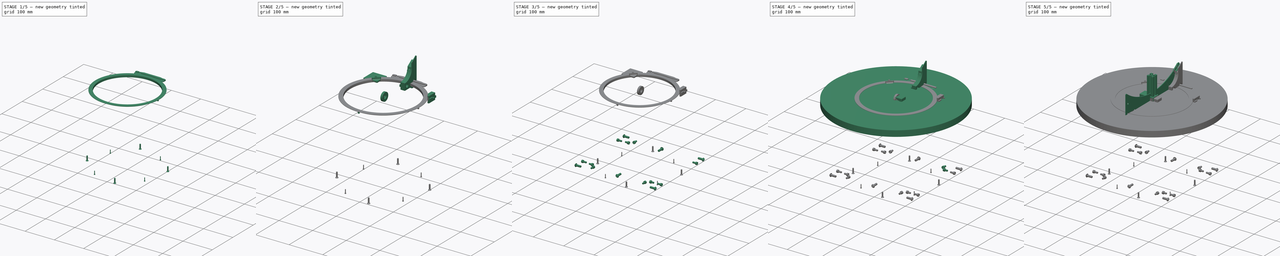
[diagram: build sequence overview — one tinted view per stage of 5, left to right]
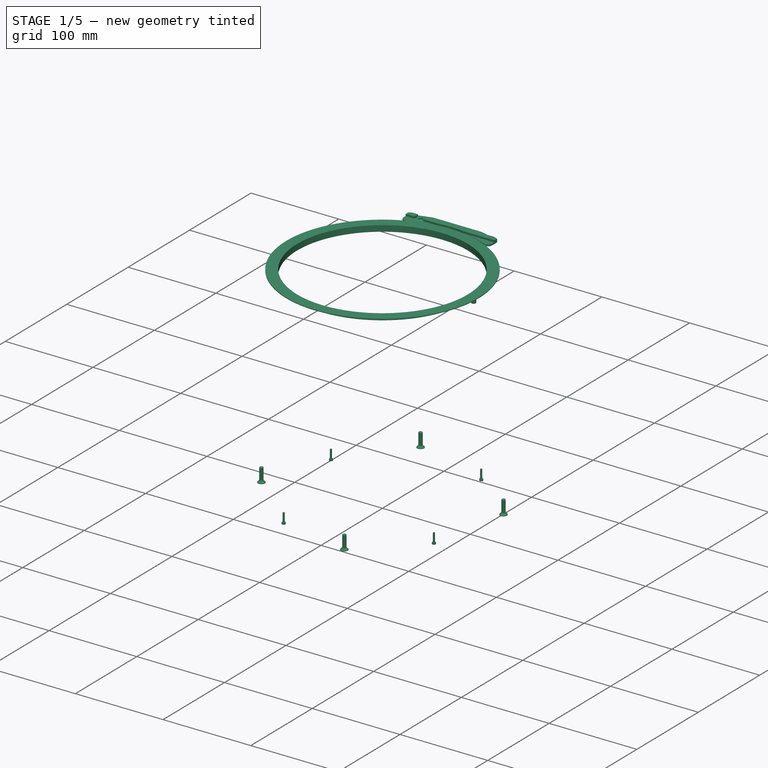
[diagram: stage 1 of 5 — iso view after this stage's code; geometry added in this stage tinted green]
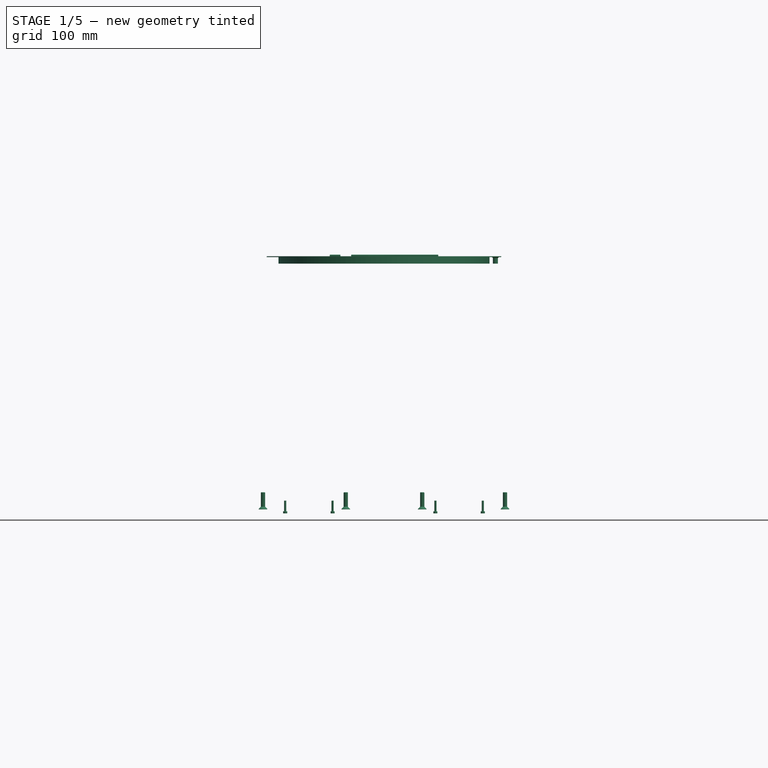
[diagram: stage 1 of 5 — front view after this stage's code; geometry added in this stage tinted green]
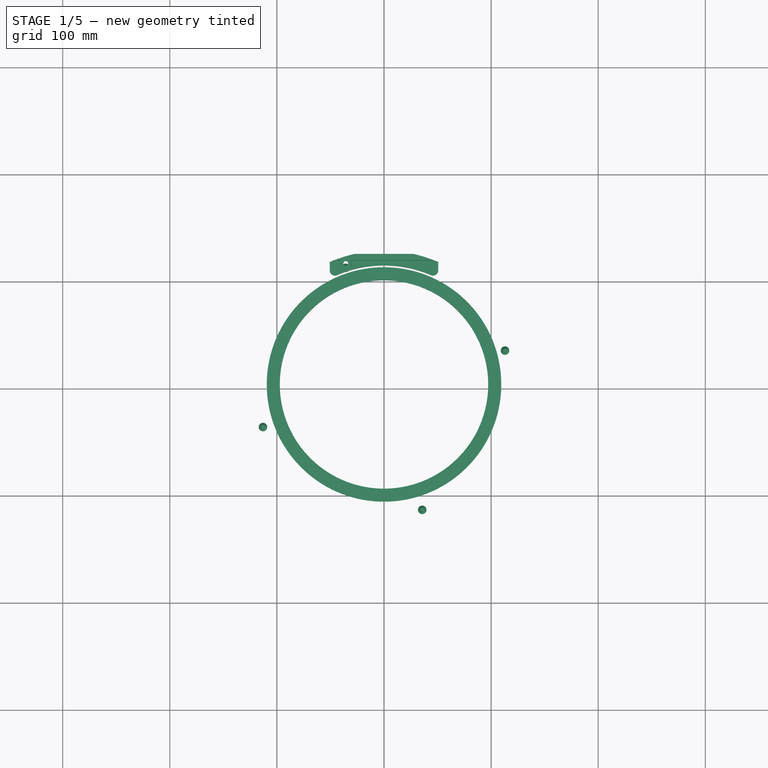
[diagram: stage 1 of 5 — top view after this stage's code; geometry added in this stage tinted green]
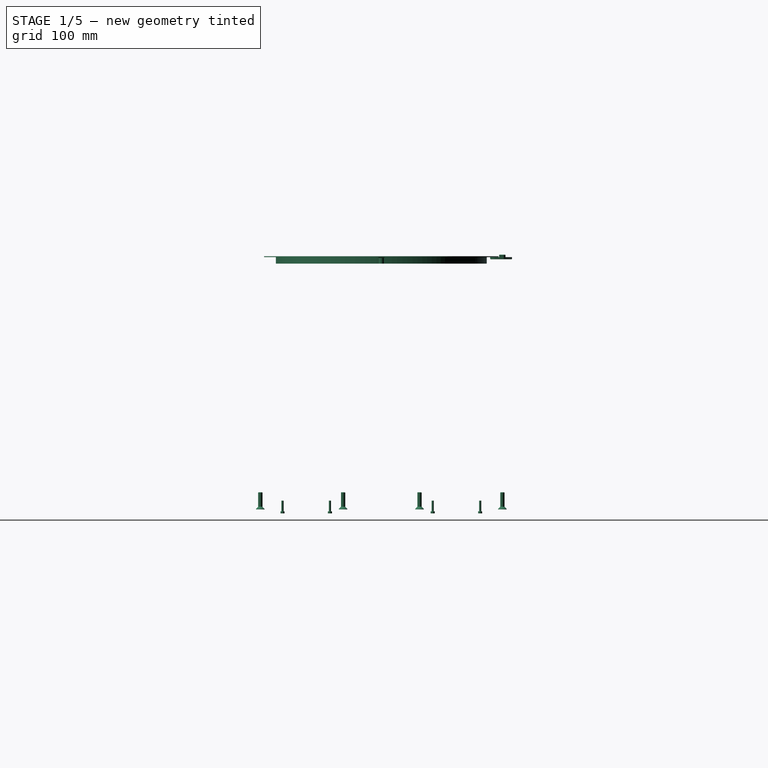
[diagram: stage 1 of 5 — right view after this stage's code; geometry added in this stage tinted green]
FCSTD DOCUMENT  (FreeCAD 0.21RUnknown)
Label: Base
License: All rights reserved
LicenseURL: http://en.wikipedia.org/wiki/All_rights_reserved
objects: Sketcher::SketchObject×75, PartDesign::CoordinateSystem×57, App::Link×40, PartDesign::Pocket×30, PartDesign::Pad×28, Part::FeaturePython×26, PartDesign::Body×23, PartDesign::Plane×11, PartDesign::Chamfer×7, PartDesign::Line×6, PartDesign::ShapeBinder×5, PartDesign::Hole×4, PartDesign::Fillet×4, PartDesign::Groove×4, App::DocumentObjectGroup×4, PartDesign::Revolution×3, PartDesign::FeatureBase×2, PartDesign::AdditiveCylinder×1, Part::Feature×1, PartDesign::SubShapeBinder×1, +4 more types
note: 371 computed .brp shape members not serialized (recipe doc carries the construction recipe); baked Part::Feature solids carry a one-line shape summary decoded from their .brp
EXTERNAL_REF file=Common.FCStd obj=Spreadsheet
EXTERNAL_REF file=Common.FCStd obj=Body022063
EXTERNAL_REF file=Common.FCStd obj=Local_CS097
EXTERNAL_REF file=Common.FCStd obj=Body038
EXTERNAL_REF file=Common.FCStd obj=Local_CS100
EXTERNAL_REF file=Common.FCStd obj=Local_CS108
EXTERNAL_REF file=Common.FCStd obj=Body039
EXTERNAL_REF file=Common.FCStd obj=Local_CS109
EXTERNAL_REF file=Common.FCStd obj=Local_CS098
EXTERNAL_REF file=Common.FCStd obj=Local_CS099

FEATURE [Sketcher::SketchObject] Sketch056  label="AFrame_C_Sketch"
  FullyConstrained = true
  MapMode = 5
  Placement = pos=(0,0,0) rot=(1,0,0;1.5708rad)
  Support = -> [XZ_Plane049]
  sketch-geometry (75):
    g0: LineSegment StartX=3 StartY=10 StartZ=0 EndX=3 EndY=8 EndZ=0
    g1: LineSegment StartX=3 StartY=8 StartZ=0 EndX=6 EndY=8 EndZ=0
    g2: LineSegment StartX=2.58579 StartY=4 StartZ=0 EndX=-2.58579 EndY=4 EndZ=0
    g3: LineSegment StartX=-6 StartY=8 StartZ=0 EndX=-3 EndY=8 EndZ=0
    g4: LineSegment StartX=-3 StartY=8 StartZ=0 EndX=-3 EndY=10 EndZ=0
    g5: Circle CenterX=0 CenterY=0 CenterZ=0 NormalX=0 NormalY=0 NormalZ=1 AngleXU=0 Radius=2.1
    g6: LineSegment StartX=-10 StartY=3 StartZ=0 EndX=-8 EndY=3 EndZ=0
    g7: LineSegment StartX=-8 StartY=3 StartZ=0 EndX=-8 EndY=6 EndZ=0
    g8: LineSegment StartX=-4 StartY=2.58579 StartZ=0 EndX=-4 EndY=-2.58579 EndZ=0
    g9: LineSegment StartX=-8 StartY=-6 StartZ=0 EndX=-8 EndY=-3 EndZ=0
    g10: LineSegment StartX=-8 StartY=-3 StartZ=0 EndX=-10 EndY=-3 EndZ=0
    g11: LineSegment StartX=-3 StartY=-10 StartZ=0 EndX=-3 EndY=-8 EndZ=0
    g12: LineSegment StartX=-3 StartY=-8 StartZ=0 EndX=-6 EndY=-8 EndZ=0
    g13: LineSegment StartX=-2.58579 StartY=-4 StartZ=0 EndX=2.58579 EndY=-4 EndZ=0
    g14: LineSegment StartX=6 StartY=-8 StartZ=0 EndX=3 EndY=-8 EndZ=0
    g15: LineSegment StartX=3 StartY=-8 StartZ=0 EndX=3 EndY=-10 EndZ=0
    g16: LineSegment StartX=10 StartY=-3 StartZ=0 EndX=8 EndY=-3 EndZ=0
    g17: LineSegment StartX=8 StartY=-3 StartZ=0 EndX=8 EndY=-6 EndZ=0
    g18: LineSegment StartX=8 StartY=-6 StartZ=0 EndX=7.41421 EndY=-6 EndZ=0
    g19: LineSegment StartX=7.41421 StartY=-6 StartZ=0 EndX=4 EndY=-2.58579 EndZ=0
    g20: LineSegment StartX=4 StartY=-2.58579 StartZ=0 EndX=4 EndY=2.58579 EndZ=0
    g21: LineSegment StartX=4 StartY=2.58579 StartZ=0 EndX=7.41421 EndY=6 EndZ=0
    g22: LineSegment StartX=7.41421 StartY=6 StartZ=0 EndX=8 EndY=6 EndZ=0
    g23: LineSegment StartX=8 StartY=6 StartZ=0 EndX=8 EndY=3 EndZ=0
    g24: LineSegment StartX=8 StartY=3 StartZ=0 EndX=10 EndY=3 EndZ=0
    g25: LineSegment StartX=6 StartY=8 StartZ=0 EndX=6 EndY=7.41421 EndZ=0
    g26: LineSegment StartX=6 StartY=7.41421 StartZ=0 EndX=2.58579 EndY=4 EndZ=0
    g27: LineSegment StartX=-2.58579 StartY=4 StartZ=0 EndX=-6 EndY=7.41421 EndZ=0
    g28: LineSegment StartX=-6 StartY=7.41421 StartZ=0 EndX=-6 EndY=8 EndZ=0
    g29: LineSegment StartX=-8 StartY=6 StartZ=0 EndX=-7.41421 EndY=6 EndZ=0
    g30: LineSegment StartX=-7.41421 StartY=6 StartZ=0 EndX=-4 EndY=2.58579 EndZ=0
    g31: LineSegment StartX=-4 StartY=-2.58579 StartZ=0 EndX=-7.41421 EndY=-6 EndZ=0
    g32: LineSegment StartX=-7.41421 StartY=-6 StartZ=0 EndX=-8 EndY=-6 EndZ=0
    g33: LineSegment StartX=-2.58579 StartY=-4 StartZ=0 EndX=-6 EndY=-7.41421 EndZ=0
    g34: LineSegment StartX=-6 StartY=-7.41421 StartZ=0 EndX=-6 EndY=-8 EndZ=0
    g35: LineSegment StartX=2.58579 StartY=-4 StartZ=0 EndX=6 EndY=-7.41421 EndZ=0
    g36: LineSegment StartX=6 StartY=-7.41421 StartZ=0 EndX=6 EndY=-8 EndZ=0
    g37: LineSegment StartX=-4 StartY=2.58579 StartZ=0 EndX=-2.58579 EndY=4 EndZ=0
    g38: LineSegment StartX=-7.41421 StartY=7.41421 StartZ=0 EndX=7.41421 EndY=7.41421 EndZ=0
    g39: LineSegment StartX=7.41421 StartY=7.41421 StartZ=0 EndX=7.41421 EndY=-7.41421 EndZ=0
    g40: LineSegment StartX=7.41421 StartY=-7.41421 StartZ=0 EndX=-7.41421 EndY=-7.41421 EndZ=0
    g41: LineSegment StartX=-7.41421 StartY=-7.41421 StartZ=0 EndX=-7.41421 EndY=7.41421 EndZ=0
    g42: LineSegment StartX=-10 StartY=10 StartZ=0 EndX=10 EndY=10 EndZ=0
    g43: LineSegment StartX=10 StartY=10 StartZ=0 EndX=10 EndY=-10 EndZ=0
    g44: LineSegment StartX=10 StartY=-10 StartZ=0 EndX=-10 EndY=-10 EndZ=0
    g45: LineSegment StartX=-10 StartY=-10 StartZ=0 EndX=-10 EndY=10 EndZ=0
    g46: LineSegment StartX=4 StartY=4 StartZ=0 EndX=-4 EndY=4 EndZ=0
    g47: LineSegment StartX=-4 StartY=4 StartZ=0 EndX=-4 EndY=-4 EndZ=0
    g48: LineSegment StartX=-4 StartY=-4 StartZ=0 EndX=4 EndY=-4 EndZ=0
    g49: LineSegment StartX=4 StartY=-4 StartZ=0 EndX=4 EndY=4 EndZ=0
    g50: LineSegment StartX=-10 StartY=-10 StartZ=0 EndX=10 EndY=10 EndZ=0
    g51: LineSegment StartX=-10 StartY=10 StartZ=0 EndX=10 EndY=-10 EndZ=0
    g52: LineSegment StartX=2.58579 StartY=4 StartZ=0 EndX=4 EndY=2.58579 EndZ=0
    g53: LineSegment StartX=2.58579 StartY=-4 StartZ=0 EndX=4 EndY=-2.58579 EndZ=0
    g54: LineSegment StartX=-4 StartY=-2.58579 StartZ=0 EndX=-2.58579 EndY=-4 EndZ=0
    g55: LineSegment StartX=10 StartY=3 StartZ=0 EndX=3 EndY=10 EndZ=0
    g56: LineSegment StartX=-3 StartY=10 StartZ=0 EndX=-10 EndY=3 EndZ=0
    g57: LineSegment StartX=-10 StartY=-3 StartZ=0 EndX=-3 EndY=-10 EndZ=0
    g58: LineSegment StartX=3 StartY=-10 StartZ=0 EndX=10 EndY=-3 EndZ=0
    g59: ArcOfCircle CenterX=-9 CenterY=9 CenterZ=0 NormalX=0 NormalY=0 NormalZ=1 AngleXU=0 Radius=1 StartAngle=1.57078 EndAngle=3.14161
    g60: ArcOfCircle CenterX=9 CenterY=9 CenterZ=0 NormalX=0 NormalY=0 NormalZ=1 AngleXU=0 Radius=1 StartAngle=6.28316 EndAngle=7.854
    g61: ArcOfCircle CenterX=9 CenterY=-9 CenterZ=0 NormalX=0 NormalY=0 NormalZ=1 AngleXU=0 Radius=1 StartAngle=4.71238 EndAngle=6.28319
    g62: ArcOfCircle CenterX=-9 CenterY=-9 CenterZ=0 NormalX=0 NormalY=0 NormalZ=1 AngleXU=0 Radius=1 StartAngle=3.14159 EndAngle=4.71241
    g63: LineSegment StartX=-10 StartY=-9 StartZ=0 EndX=10 EndY=-9 EndZ=0
    g64: LineSegment StartX=-10 StartY=8.99998 StartZ=0 EndX=10 EndY=8.99998 EndZ=0
    g65: LineSegment StartX=-8.99998 StartY=10 StartZ=0 EndX=-8.99998 EndY=-10 EndZ=0
    g66: LineSegment StartX=8.99999 StartY=10 StartZ=0 EndX=8.99999 EndY=-10 EndZ=0
    g67: LineSegment StartX=-10 StartY=8.99998 StartZ=0 EndX=-10 EndY=3 EndZ=0
    g68: LineSegment StartX=-10 StartY=-3 StartZ=0 EndX=-10 EndY=-9 EndZ=0
    g69: LineSegment StartX=-8.99998 StartY=10 StartZ=0 EndX=-3 EndY=10 EndZ=0
    g70: LineSegment StartX=8.99999 StartY=10 StartZ=0 EndX=3 EndY=10 EndZ=0
    g71: LineSegment StartX=10 StartY=8.99998 StartZ=0 EndX=10 EndY=3 EndZ=0
    g72: LineSegment StartX=10 StartY=-9 StartZ=0 EndX=10 EndY=-3 EndZ=0
    g73: LineSegment StartX=8.99999 StartY=-10 StartZ=0 EndX=3 EndY=-10 EndZ=0
    g74: LineSegment StartX=-8.99998 StartY=-10 StartZ=0 EndX=-3 EndY=-10 EndZ=0
  constraints (212):
    c: Diameter(g5) = 4.2
    c: Coincident(g42,g43)
    c: Coincident(g43,g44)
    c: Coincident(g44,g45)
    c: Coincident(g45,g42)
    c: Horizontal(g44)
    c: Vertical(g45)
    c: Symmetric(g42,g43,g-1)
    c: Symmetric(g42,g42,g-2)
    c: Coincident(g5,g-1)
    c: Coincident(g38,g41)
    c: Coincident(g7,g29)
    c: Coincident(g29,g30)
    c: Coincident(g27,g28)
    c: Coincident(g3,g28)
    c: Coincident(g3,g4)
    c: Coincident(g6,g7)
    c: Coincident(g2,g27)
    c: Coincident(g2,g37)
    c: Coincident(g8,g30)
    c: Coincident(g8,g37)
    c: Coincident(g8,g31)
    c: Coincident(g13,g33)
    c: Coincident(g9,g10)
    c: Coincident(g11,g12)
    c: Coincident(g12,g34)
    c: Coincident(g33,g34)
    c: Coincident(g40,g41)
    c: Coincident(g31,g32)
    c: Coincident(g9,g32)
    c: Coincident(g14,g36)
    c: Coincident(g17,g18)
    c: Coincident(g39,g40)
    c: Coincident(g18,g19)
    c: Coincident(g35,g36)
    c: Coincident(g13,g35)
    c: Coincident(g19,g20)
    c: Coincident(g16,g17)
    c: Coincident(g0,g1)
    c: Coincident(g1,g25)
    c: Coincident(g22,g23)
    c: Coincident(g23,g24)
    c: Coincident(g21,g22)
    c: Coincident(g38,g39)
    c: Coincident(g25,g26)
    c: Coincident(g2,g26)
    c: Coincident(g20,g21)
    c: Horizontal(g1)
    c: Horizontal(g3)
    c: Horizontal(g12)
    c: Horizontal(g14)
    c: Vertical(g34)
    c: Vertical(g11)
    c: Vertical(g15)
    c: Vertical(g36)
    c: Vertical(g4)
    c: Vertical(g0)
    c: Vertical(g28)
    c: Vertical(g25)
    c: Vertical(g7)
    c: Vertical(g9)
    c: Vertical(g23)
    c: Vertical(g17)
    c: Horizontal(g29)
    c: Horizontal(g6)
    c: Horizontal(g10)
    c: Horizontal(g32)
    c: Horizontal(g22)
    c: Horizontal(g24)
    c: Horizontal(g16)
    c: Horizontal(g18)
    c: Parallel(g30,g27)
    c: Parallel(g27,g35)
    c: Parallel(g35,g19)
    c: Parallel(g21,g26)
    c: Parallel(g31,g33)
    c: Coincident(g46,g47)
    c: Coincident(g47,g48)
    c: Coincident(g48,g49)
    c: Coincident(g49,g46)
    c: Horizontal(g46)
    c: Horizontal(g48)
    c: Vertical(g47)
    c: Vertical(g49)
    c: Horizontal(g2)
    c: Horizontal(g13)
    c: Vertical(g8)
    c: Vertical(g20)
    c: PointOnObject(g2,g46)
    c: PointOnObject(g19,g49)
    c: PointOnObject(g13,g48)
    c: PointOnObject(g8,g47)
    c: Coincident(g50,g44)
    c: Coincident(g50,g42)
    c: Coincident(g51,g42)
    c: Coincident(g51,g43)
    c: PointOnObject(g39,g51)
    c: PointOnObject(g38,g50)
    c: PointOnObject(g38,g51)
    c: Vertical(g39)
    c: Vertical(g41)
    c: Horizontal(g38)
    c: Horizontal(g40)
    c: PointOnObject(g46,g50)
    c: PointOnObject(g46,g51)
    c: PointOnObject(g48,g51)
    c: Parallel(g27,g51)
    c: Parallel(g26,g50)
    c: Perpendicular(g51,g37)
    c: Parallel(g31,g26)
    c: PointOnObject(g4,g42)
    c: PointOnObject(g24,g43)
    c: PointOnObject(g6,g45)
    c: PointOnObject(g10,g45)
    c: PointOnObject(g29,g41)
    c: PointOnObject(g31,g41)
    c: PointOnObject(g33,g40)
    c: PointOnObject(g35,g40)
    c: PointOnObject(g18,g39)
    c: PointOnObject(g21,g39)
    c: PointOnObject(g25,g38)
    c: PointOnObject(g27,g38)
    c: Coincident(g52,g2)
    c: Coincident(g52,g20)
    c: Coincident(g53,g13)
    c: Coincident(g53,g19)
    c: Coincident(g54,g8)
    c: Coincident(g54,g13)
    c: Perpendicular(g50,g54)
    c: Perpendicular(g51,g53)
    c: Perpendicular(g50,g52)
    c: Equal(g37,g52)
    c: Equal(g52,g53)
    c: Equal(g53,g54)
    c: Distance(g37) = 2
    c: Coincident(g14,g15)
    c: PointOnObject(g6,g24)
    c: PointOnObject(g9,g16)
    c: PointOnObject(g11,g4)
    c: PointOnObject(g14,g0)
    c: PointOnObject(g11,g44)
    c: PointOnObject(g15,g44)
    c: DistanceX(g42) = 10
    c: DistanceY(g49,g49) = 8
    c: DistanceY(g18,g21) = 12
    c: Coincident(g56,g4)
    c: Coincident(g57,g10)
    c: Coincident(g58,g15)
    c: Perpendicular(g51,g58)
    c: Perpendicular(g50,g55)
    c: Perpendicular(g51,g56)
    c: Equal(g58,g57)
    c: Equal(g57,g55)
    c: DistanceY(g16,g24) = 6
    c: Equal(g42,g43)
    c: Coincident(g55,g0)
    c: Coincident(g55,g24)
    c: Coincident(g56,g6)
    c: Coincident(g11,g57)
    c: Coincident(g16,g58)
    c: DistanceX(g6,g6) = 2
    c: Equal(g6,g10)
    c: Equal(g10,g24)
    c: Equal(g24,g16)
    c: Equal(g16,g15)
    c: Equal(g15,g11)
    c: Equal(g11,g4)
    c: Equal(g4,g0)
    c: PointOnObject(g59,g51)
    c: PointOnObject(g59,g45)
    c: PointOnObject(g59,g42)
    c: PointOnObject(g60,g42)
    c: PointOnObject(g60,g43)
    c: PointOnObject(g61,g51)
    c: PointOnObject(g61,g43)
    c: PointOnObject(g61,g44)
    c: PointOnObject(g62,g50)
    c: PointOnObject(g62,g44)
    c: PointOnObject(g62,g45)
    c: Radius(g62) = 1
    c: Equal(g62,g59)
    c: Equal(g59,g60)
    c: Equal(g60,g61)
    c: Coincident(g63,g62)
    c: Coincident(g63,g61)
    c: Horizontal(g63)
    c: Coincident(g64,g59)
    c: Coincident(g64,g60)
    c: Horizontal(g64)
    c: Coincident(g65,g59)
    c: Coincident(g65,g62)
    c: Vertical(g65)
    c: Coincident(g66,g60)
    c: Coincident(g66,g61)
    c: Vertical(g66)
    c: PointOnObject(g62,g63)
    c: Coincident(g67,g59)
    c: Coincident(g67,g6)
    c: Coincident(g68,g10)
    c: Coincident(g68,g62)
    c: Coincident(g69,g59)
    c: Coincident(g69,g4)
    c: Coincident(g70,g60)
    c: Coincident(g70,g0)
    c: Coincident(g71,g60)
    c: Coincident(g71,g24)
    c: Coincident(g72,g61)
    c: Coincident(g72,g16)
    c: Coincident(g73,g61)
    c: Coincident(g73,g15)
    c: Coincident(g74,g62)
    c: Coincident(g74,g11)
FEATURE [PartDesign::Pad] Pad028  label="AFrame_C_Pad"
  Direction = (0,-1,-2e-16)
  Length = 206
  Length2 = 100
  Midplane = true
  Placement = pos=(0,0,0) rot=(1,0,0;1.5708rad)
  Profile = -> Sketch056
  Type = 0
  expr: Length = <<Common>>#<<Parameters>>.boxsize_y - 40
FEATURE [Sketcher::SketchObject] Sketch057  label="AFrame_C_Hole_Sketch"
  FullyConstrained = true
  MapMode = 5
  Placement = pos=(0,-9e-16,-4) rot=(1,0,0;3.14159rad)
  Support = -> [Pad028]
  sketch-geometry (1):
    g0: Circle CenterX=0 CenterY=0 CenterZ=0 NormalX=0 NormalY=0 NormalZ=1 AngleXU=0 Radius=4.4
  constraints (2):
    c: Diameter(g0) = 8.8
    c: Coincident(g0,g-1)
FEATURE [PartDesign::Pocket] Pocket011  label="AFrame_C_Hole"
  BaseFeature = -> Pad028
  Direction = (0,-2e-16,1)
  Length = 5
  Length2 = 100
  Midplane = true
  Placement = pos=(0,0,0) rot=(1,0,0;1.5708rad)
  Profile = -> Sketch057
  Type = 1
FEATURE [PartDesign::CoordinateSystem] Local_CS222  label="LCS_AFrame_AF_BoltS"
  AttacherType = Attacher::AttachEngine3D
  MapMode = 11
  Placement = pos=(-123,5.51e-14,-3.4e-14) rot=(0.707107,0,0.707107;3.14159rad)
  Support = -> [Pocket012]
FEATURE [PartDesign::CoordinateSystem] Local_CS221  label="LCS_AFrame_AF_BoltP"
  AttacherType = Attacher::AttachEngine3D
  MapMode = 11
  Placement = pos=(123,-5.42e-14,3.4e-14) rot=(0.707107,0,-0.707107;3.14159rad)
  Support = -> [Pocket012]
FEATURE [PartDesign::Body] Body031  label="AFrame_AF"
  Group = -> [Sketch049,Pad026,Sketch058,Pocket012,Local_CS221,Local_CS222,Local_CS223]
  Origin = -> Origin045
  Placement = pos=(0,113,-132) rot=(0,0,1;0rad)
  Tip = -> Pocket012
  expr: .Placement.Base.y = <<Common>>#<<Parameters>>.boxsize_y / 2 - 10
  expr: .Placement.Base.z = <<Common>>#<<Parameters>>.datum_azbase
FEATURE [Part::Feature] Part__Feature  label="SlewBearing_Base"
  shape: bbox 250 x 250 x 12.5 mm, 40 faces, 2 solids (baked)
FEATURE [App::DocumentObjectGroup] Group004  label="Base"
  Group = -> [Part__Feature]
FEATURE [PartDesign::FeatureBase] BaseFeature  label="SlewBearing_BaseFeature"
  BaseFeature = -> Part__Feature
FEATURE [Sketcher::SketchObject] Sketch290  label="BaseBlock_Base_Sketch"
  FullyConstrained = true
  MapMode = 5
  Support = -> [XY_Plane115]
  expr: Constraints[0] = <<Common>>#<<Parameters>>.bolt_y
  sketch-geometry (12):
    g0: GeomPoint X=-35.6826 Y=113 Z=0
    g1: LineSegment StartX=-27.2213 StartY=122 StartZ=0 EndX=27.2213 EndY=122 EndZ=0
    g2: LineSegment StartX=50.6826 StartY=114.264 StartZ=0 EndX=50.6826 EndY=106.626 EndZ=0
    g3: LineSegment StartX=-50.6826 StartY=106.626 StartZ=0 EndX=-50.6826 EndY=114.264 EndZ=0
    g4: Circle CenterX=-35.6826 CenterY=113 CenterZ=0 NormalX=0 NormalY=0 NormalZ=1 AngleXU=0 Radius=2.25
    g5: ArcOfCircle CenterX=0 CenterY=0 CenterZ=0 NormalX=0 NormalY=0 NormalZ=1 AngleXU=0 Radius=125 StartAngle=1.79033 EndAngle=1.98828
    g6: ArcOfCircle CenterX=0 CenterY=0 CenterZ=0 NormalX=0 NormalY=0 NormalZ=1 AngleXU=0 Radius=125 StartAngle=1.15331 EndAngle=1.35127
    g7: ArcOfCircle CenterX=-45.6826 CenterY=106.626 CenterZ=0 NormalX=0 NormalY=0 NormalZ=1 AngleXU=0 Radius=5 StartAngle=3.14159 EndAngle=5.11717
    g8: ArcOfCircle CenterX=45.6826 CenterY=106.626 CenterZ=0 NormalX=0 NormalY=0 NormalZ=1 AngleXU=0 Radius=5 StartAngle=4.30761 EndAngle=6.28319
    g9: LineSegment StartX=-50.6826 StartY=114.264 StartZ=0 EndX=50.6826 EndY=114.264 EndZ=0
    g10: ArcOfCircle CenterX=0 CenterY=0 CenterZ=0 NormalX=0 NormalY=0 NormalZ=1 AngleXU=0 Radius=111 StartAngle=1.16602 EndAngle=1.97558
    g11: LineSegment StartX=-45.6826 StartY=106.626 StartZ=0 EndX=-45.6826 EndY=101.626 EndZ=0
  constraints (30):
    c: DistanceY(g0) = 113
    c: Vertical(g2)
    c: Vertical(g3)
    c: Symmetric(g1,g1,g-2)
    c: Equal(g2,g3)
    c: Coincident(g4,g0)
    c: Diameter(g4) = 4.5
    c: Distance(g-1,g4) = 118.5
    c: DistanceX(g3,g4) = 15
    c: Coincident(g5,g-1)
    c: Coincident(g5,g3)
    c: Coincident(g6,g5)
    c: Coincident(g6,g2)
    c: Coincident(g5,g1)
    c: Coincident(g6,g1)
    c: DistanceY(g4,g1) = 9
    c: Diameter(g6) = 250
    c: Equal(g8,g7)
    c: Tangent(g8,g2) = 1.5708
    c: Tangent(g7,g3) = 1.5708
    c: Coincident(g9,g3)
    c: Coincident(g9,g2)
    c: Coincident(g10,g5)
    c: Tangent(g10,g7) = 1.5708
    c: Tangent(g10,g8) = 1.5708
    c: Radius(g10) = 111
    c: Coincident(g11,g7)
    c: PointOnObject(g11,g7)
    c: Vertical(g11)
    c: Radius(g7) = 5
FEATURE [PartDesign::Pad] Pad  label="BaseBlock_Base"
  Direction = (0,0,1)
  Length = 2
  Length2 = 10
  Profile = -> Sketch290
  ReferenceAxis = -> Sketch290 [N_Axis]
  Reversed = true
  Type = 0
FEATURE [Sketcher::SketchObject] Sketch291  label="BaseBlock_Tab_Sketch"
  ExternalGeometry = -> [Sketch290]
  FullyConstrained = true
  MapMode = 5
  Support = -> [XY_Plane115]
  sketch-geometry (17):
    g0: LineSegment StartX=-46.5725 StartY=116 StartZ=0 EndX=-40.6826 EndY=116 EndZ=0
    g1: LineSegment StartX=-40.6826 StartY=116 StartZ=0 EndX=-40.6826 EndY=110 EndZ=0
    g2: LineSegment StartX=-40.6826 StartY=110 StartZ=0 EndX=-50.6826 EndY=110 EndZ=0
    g3: LineSegment StartX=-50.6826 StartY=110 StartZ=0 EndX=-50.6826 EndY=114.264 EndZ=0
    g4: LineSegment StartX=46.5725 StartY=116 StartZ=0 EndX=-30.6826 EndY=116 EndZ=0
    g5: LineSegment StartX=-30.6826 StartY=116 StartZ=0 EndX=-30.6826 EndY=110 EndZ=0
    g6: LineSegment StartX=50.6826 StartY=110 StartZ=0 EndX=50.6826 EndY=114.264 EndZ=0
    g7: LineSegment StartX=-35.6826 StartY=113 StartZ=0 EndX=0 EndY=113 EndZ=0
    g8: LineSegment StartX=-40.6826 StartY=116 StartZ=0 EndX=-35.6826 EndY=116 EndZ=0
    g9: LineSegment StartX=-35.6826 StartY=116 StartZ=0 EndX=-30.6826 EndY=116 EndZ=0
    g10: LineSegment StartX=-35.6826 StartY=116 StartZ=0 EndX=-35.6826 EndY=113 EndZ=0
    g11: LineSegment StartX=-40.6826 StartY=110 StartZ=0 EndX=-30.6826 EndY=110 EndZ=0
    g12: ArcOfCircle CenterX=0 CenterY=0 CenterZ=0 NormalX=0 NormalY=0 NormalZ=1 AngleXU=0 Radius=125 StartAngle=1.95258 EndAngle=1.98828
    g13: ArcOfCircle CenterX=0 CenterY=0 CenterZ=0 NormalX=0 NormalY=0 NormalZ=1 AngleXU=0 Radius=125 StartAngle=1.15331 EndAngle=1.18901
    g14: LineSegment StartX=-30.6826 StartY=110 StartZ=0 EndX=-14.8661 EndY=110 EndZ=0
    g15: LineSegment StartX=14.8661 StartY=110 StartZ=0 EndX=50.6826 EndY=110 EndZ=0
    g16: ArcOfCircle CenterX=0 CenterY=0 CenterZ=0 NormalX=0 NormalY=0 NormalZ=1 AngleXU=0 Radius=111 StartAngle=1.43646 EndAngle=1.70513
  constraints (45):
    c: Coincident(g0,g1)
    c: Coincident(g1,g2)
    c: Coincident(g2,g3)
    c: Horizontal(g0)
    c: Horizontal(g2)
    c: Coincident(g4,g5)
    c: Coincident(g5,g14)
    c: Horizontal(g4)
    c: Equal(g1,g5)
    c: PointOnObject(g7,g-2)
    c: Horizontal(g7)
    c: Symmetric(g4,g5,g7)
    c: Vertical(g1)
    c: Coincident(g8,g0)
    c: Horizontal(g8)
    c: Coincident(g9,g8)
    c: Coincident(g9,g4)
    c: Coincident(g10,g8)
    c: Coincident(g10,g7)
    c: Vertical(g10)
    c: Equal(g8,g9)
    c: DistanceX(g0,g4) = 10
    c: Coincident(g11,g1)
    c: Coincident(g11,g5)
    c: Horizontal(g11)
    c: Coincident(g3,g12)
    c: Coincident(g12,g0)
    c: Coincident(g6,g13)
    c: Coincident(g4,g13)
    c: Coincident(g6,g-4)
    c: Vertical(g6)
    c: Vertical(g3)
    c: Coincident(g3,g-3)
    c: Coincident(g15,g6)
    c: Coincident(g7,g-5)
    c: DistanceY(g5,g5) = 6
    c: Coincident(g13,g12)
    c: Coincident(g12,g-1)
    c: Horizontal(g14)
    c: Horizontal(g15)
    c: Horizontal(g6,g5)
    c: Coincident(g16,g12)
    c: Coincident(g16,g14)
    c: Coincident(g16,g15)
    c: Radius(g16) = 111
FEATURE [PartDesign::Pad] Pad074  label="BaseBlock_Tab"
  BaseFeature = -> Pad
  Direction = (0,0,1)
  Length = 2.4
  Length2 = 10
  Profile = -> Sketch291
  ReferenceAxis = -> Sketch291 [N_Axis]
  Type = 0
FEATURE [PartDesign::Chamfer] Chamfer005  label="BaseBlock-Chamfer"
  Angle = 45
  Base = -> Pad074 [Face6,Face24,Face18]
  BaseFeature = -> Pad074
  ChamferType = 0
  FlipDirection = false
  Size = 0.4
  Size2 = 1
  SupportTransform = false
  UseAllEdges = false
FEATURE [Sketcher::SketchObject] Sketch367  label="BasePadSide_Body_Sketch"
  FullyConstrained = true
  MapMode = 5
  Support = -> [XY_Plane117]
  expr: Constraints[19] = <<Common>>#<<Parameters>>.pri_fillet
  sketch-geometry (17):
    g0: Circle CenterX=-104 CenterY=0 CenterZ=0 NormalX=0 NormalY=0 NormalZ=1 AngleXU=0 Radius=2.5
    g1: ArcOfCircle CenterX=-130.75 CenterY=19.5 CenterZ=0 NormalX=0 NormalY=0 NormalZ=1 AngleXU=0 Radius=1.25 StartAngle=1.5708 EndAngle=3.14159
    g2: LineSegment StartX=-130.75 StartY=20.75 StartZ=0 EndX=-91.75 EndY=20.75 EndZ=0
    g3: ArcOfCircle CenterX=-91.75 CenterY=19.5 CenterZ=0 NormalX=0 NormalY=0 NormalZ=1 AngleXU=0 Radius=1.25 StartAngle=5.8458e-12 EndAngle=1.5708
    g4: LineSegment StartX=-90.5 StartY=19.5 StartZ=0 EndX=-90.5 EndY=-19.5 EndZ=0
    g5: ArcOfCircle CenterX=-91.75 CenterY=-19.5 CenterZ=0 NormalX=0 NormalY=0 NormalZ=1 AngleXU=0 Radius=1.25 StartAngle=4.71239 EndAngle=6.28319
    g6: LineSegment StartX=-91.75 StartY=-20.75 StartZ=0 EndX=-130.75 EndY=-20.75 EndZ=0
    g7: ArcOfCircle CenterX=-130.75 CenterY=-19.5 CenterZ=0 NormalX=0 NormalY=0 NormalZ=1 AngleXU=0 Radius=1.25 StartAngle=3.14159 EndAngle=4.71239
    g8: LineSegment StartX=-132 StartY=-19.5 StartZ=0 EndX=-132 EndY=19.5 EndZ=0
    g9: LineSegment StartX=-104 StartY=0 StartZ=0 EndX=0 EndY=0 EndZ=0
    g10: Circle CenterX=-118.5 CenterY=0 CenterZ=0 NormalX=0 NormalY=0 NormalZ=1 AngleXU=0 Radius=2.5
    g11: Circle CenterX=-104 CenterY=0 CenterZ=0 NormalX=0 NormalY=0 NormalZ=1 AngleXU=0 Radius=1
    g12: LineSegment StartX=-130.75 StartY=19.5 StartZ=0 EndX=-91.75 EndY=-19.5 EndZ=0
    g13: LineSegment StartX=-91.75 StartY=19.5 StartZ=0 EndX=-130.75 EndY=-19.5 EndZ=0
    g14: GeomPoint X=-111.25 Y=0 Z=0
    g15: LineSegment StartX=-118.5 StartY=0 StartZ=0 EndX=-111.25 EndY=0 EndZ=0
    g16: LineSegment StartX=-111.25 StartY=0 StartZ=0 EndX=-104 EndY=0 EndZ=0
  constraints (40):
    c: Distance(g-1,g0) = 104
    c: Diameter(g0) = 5
    c: Tangent(g1,g2) = 1.5708
    c: Tangent(g2,g3) = 1.5708
    c: Tangent(g3,g4) = 1.5708
    c: Tangent(g4,g5) = 1.5708
    c: Tangent(g5,g6) = 1.5708
    c: Tangent(g6,g7) = 1.5708
    c: Tangent(g7,g8) = 1.5708
    c: Tangent(g8,g1) = 1.5708
    c: Horizontal(g2)
    c: Horizontal(g6)
    c: Vertical(g4)
    c: Vertical(g8)
    c: Equal(g1,g3)
    c: Equal(g3,g5)
    c: Equal(g5,g7)
    c: Equal(g2,g8)
    c: Coincident(g9,g0)
    c: Diameter(g3) = 2.5
    c: DistanceX(g2,g2) = 39
    c: Coincident(g9,g-1)
    c: Equal(g10,g0)
    c: PointOnObject(g10,g9)
    c: Distance(g10,g9) = 118.5
    c: Coincident(g11,g0)
    c: Diameter(g11) = 2
    c: Coincident(g12,g1)
    c: Coincident(g12,g5)
    c: Coincident(g13,g3)
    c: Coincident(g13,g7)
    c: PointOnObject(g14,g12)
    c: PointOnObject(g14,g13)
    c: PointOnObject(g14,g9)
    c: Coincident(g15,g10)
    c: Coincident(g15,g14)
    c: Coincident(g16,g14)
    c: Coincident(g16,g11)
    c: Equal(g16,g15)
    c: Horizontal(g9)
FEATURE [PartDesign::Pad] Pad104  label="BasePadSide_Body"
  Direction = (0,0,1)
  Length = 2
  Length2 = 4
  Profile = -> Sketch367
  ReferenceAxis = -> Sketch367 [N_Axis]
  Type = 4
FEATURE [Sketcher::SketchObject] Sketch368  label="BasePadSide_Pillar_Sketch"
  ExternalGeometry = -> [Sketch367]
  FullyConstrained = true
  MapMode = 5
  Support = -> [XY_Plane117]
  sketch-geometry (2):
    g0: Circle CenterX=-104 CenterY=0 CenterZ=0 NormalX=0 NormalY=0 NormalZ=1 AngleXU=0 Radius=2.35
    g1: Circle CenterX=-104 CenterY=0 CenterZ=0 NormalX=0 NormalY=0 NormalZ=1 AngleXU=0 Radius=1.1
  constraints (4):
    c: Diameter(g0) = 4.7
    c: Coincident(g1,g0)
    c: Diameter(g1) = 2.2
    c: Coincident(g-3,g0)
FEATURE [Sketcher::SketchObject] Sketch369  label="BasePadSide_Hole_Sketch"
  FullyConstrained = true
  MapMode = 5
  Support = -> [XY_Plane117]
  sketch-geometry (2):
    g0: LineSegment StartX=0 StartY=0 StartZ=0 EndX=-73.5391 EndY=73.5391 EndZ=0
    g1: Circle CenterX=-73.5391 CenterY=73.5391 CenterZ=0 NormalX=0 NormalY=0 NormalZ=1 AngleXU=0 Radius=1
  constraints (5):
    c: Coincident(g0,g-1)
    c: Distance(g0) = 104
    c: Angle(g0) = 2.35619
    c: Coincident(g1,g0)
    c: Diameter(g1) = 2
FEATURE [Sketcher::SketchObject] Sketch370  label="BasePadSide_Cut_Sketch"
  FullyConstrained = true
  MapMode = 5
  Placement = pos=(0,0,0) rot=(1,0,0;1.5708rad)
  Support = -> [XZ_Plane117]
  sketch-geometry (18):
    g0: LineSegment StartX=-96.7 StartY=7 StartZ=0 EndX=-2.84e-14 EndY=7 EndZ=0
    g1: LineSegment StartX=-96.7 StartY=7 StartZ=0 EndX=-96.7 EndY=3 EndZ=0
    g2: LineSegment StartX=-93.7 StartY=3.6e-15 StartZ=0 EndX=-2.84e-14 EndY=3.6e-15 EndZ=0
    g3: LineSegment StartX=-2.84e-14 StartY=3.6e-15 StartZ=0 EndX=-2.84e-14 EndY=7 EndZ=0
    g4: ArcOfCircle CenterX=-93.7 CenterY=3 CenterZ=0 NormalX=0 NormalY=0 NormalZ=1 AngleXU=0 Radius=3 StartAngle=3.14159 EndAngle=4.71239
    g5: LineSegment StartX=-96.7 StartY=3 StartZ=0 EndX=-93.7 EndY=3 EndZ=0
    g6: LineSegment StartX=-93.7 StartY=3 StartZ=0 EndX=-93.7 EndY=3.6e-15 EndZ=0
    g7: LineSegment StartX=-165 StartY=7 StartZ=0 EndX=-98.5 EndY=7 EndZ=0
    g8: LineSegment StartX=-98.5 StartY=7 StartZ=0 EndX=-98.5 EndY=1.8e-15 EndZ=0
    g9: LineSegment StartX=-165 StartY=1.6e-15 StartZ=0 EndX=-165 EndY=7 EndZ=0
    g10: LineSegment StartX=-145.5 StartY=1.6e-15 StartZ=0 EndX=-165 EndY=1.6e-15 EndZ=0
    g11: LineSegment StartX=-98.5 StartY=1.6e-15 StartZ=0 EndX=-110 EndY=1.6e-15 EndZ=0
    g12: LineSegment StartX=-144.1 StartY=-1.4 StartZ=0 EndX=-145.5 EndY=1.6e-15 EndZ=0
    g13: LineSegment StartX=-110 StartY=1.6e-15 StartZ=0 EndX=-111.4 EndY=-1.4 EndZ=0
    g14: LineSegment StartX=-111.4 StartY=-1.4 StartZ=0 EndX=-144.1 EndY=-1.4 EndZ=0
    g15: GeomPoint X=-118.5 Y=1.6e-15 Z=0
    g16: LineSegment StartX=-145.5 StartY=1.6e-15 StartZ=0 EndX=-118.5 EndY=1.6e-15 EndZ=0
    g17: LineSegment StartX=-118.5 StartY=1.6e-15 StartZ=0 EndX=-110 EndY=1.6e-15 EndZ=0
  constraints (49):
    c: Horizontal(g0)
    c: Coincident(g1,g0)
    c: Vertical(g1)
    c: Horizontal(g2)
    c: Coincident(g3,g2)
    c: Coincident(g3,g0)
    c: Vertical(g3)
    c: Coincident(g4,g1)
    c: Coincident(g4,g2)
    c: Coincident(g5,g1)
    c: Coincident(g5,g4)
    c: Coincident(g6,g4)
    c: Coincident(g6,g2)
    c: Coincident(g7,g8)
    c: Coincident(g10,g9)
    c: Coincident(g9,g7)
    c: Horizontal(g7)
    c: Vertical(g8)
    c: Vertical(g9)
    c: Horizontal(g5)
    c: Vertical(g6)
    c: PointOnObject(g7,g0)
    c: DistanceY(g0) = 7
    c: Coincident(g2,g-1)
    c: DistanceY(g6,g6) = 3
    c: PointOnObject(g11,g-1)
    c: DistanceX(g7,g2) = 165
    c: DistanceX(g7,g2) = 98.5
    c: DistanceX(g7,g0) = 1.8
    c: Coincident(g11,g8)
    c: Coincident(g12,g10)
    c: Horizontal(g10)
    c: Coincident(g11,g13)
    c: Horizontal(g11)
    c: Coincident(g14,g12)
    c: Coincident(g13,g14)
    c: Horizontal(g14)
    c: DistanceY(g13,g13) = 1.4
    c: Coincident(g16,g10)
    c: Coincident(g16,g15)
    c: Coincident(g17,g15)
    c: Coincident(g17,g11)
    c: Horizontal(g17)
    c: Horizontal(g16)
    c: DistanceX(g15,g-1) = 118.5
    c: DistanceX(g15,g11) = 8.5
    c: DistanceX(g10,g2) = 145.5
    c: Angle(g14,g12) = 2.35619
    c: Angle(g13,g14) = 2.35619
FEATURE [PartDesign::Groove] Groove009  label="BasePadSide_Groove"
  Angle = 360
  Axis = (1e-16,1e-16,1)
  Base = (0,0,0)
  BaseFeature = -> Pad104
  Profile = -> Sketch370
  ReferenceAxis = -> Z_Axis117
  Reversed = true
FEATURE [PartDesign::Pad] Pad105  label="BasePadSide_Pillar"
  BaseFeature = -> Groove009
  Direction = (0,0,1)
  Length = 2
  Length2 = 10
  Profile = -> Sketch368
  ReferenceAxis = -> Sketch368 [N_Axis]
  Type = 0
FEATURE [Sketcher::SketchObject] Sketch371  label="BaseBearingTop_Profile_Sketch"
  FullyConstrained = true
  MapMode = 5
  Placement = pos=(0,0,0) rot=(1,0,0;1.5708rad)
  Support = -> [XZ_Plane132]
  sketch-geometry (6):
    g0: LineSegment StartX=-109.5 StartY=0.8 StartZ=0 EndX=-97.3 EndY=0.8 EndZ=0
    g1: LineSegment StartX=-98.5 StartY=0 StartZ=0 EndX=-109.5 EndY=0 EndZ=0
    g2: LineSegment StartX=-109.5 StartY=0 StartZ=0 EndX=-109.5 EndY=0.8 EndZ=0
    g3: LineSegment StartX=-97.3 StartY=0.8 StartZ=0 EndX=-97.3 EndY=-6 EndZ=0
    g4: LineSegment StartX=-97.3 StartY=-6 StartZ=0 EndX=-98.5 EndY=-6 EndZ=0
    g5: LineSegment StartX=-98.5 StartY=-6 StartZ=0 EndX=-98.5 EndY=0 EndZ=0
  constraints (18):
    c: Coincident(g1,g2)
    c: Coincident(g2,g0)
    c: Horizontal(g0)
    c: Horizontal(g1)
    c: Vertical(g2)
    c: Coincident(g3,g4)
    c: Coincident(g4,g5)
    c: Horizontal(g4)
    c: Vertical(g3)
    c: Vertical(g5)
    c: Coincident(g3,g0)
    c: DistanceY(g2,g2) = 0.8
    c: Coincident(g1,g5)
    c: DistanceX(g4,g4) = 1.2
    c: DistanceX(g1,g1) = 11
    c: DistanceY(g5,g5) = 6
    c: DistanceX(g1) = -98.5
    c: PointOnObject(g1,g-1)
FEATURE [PartDesign::Revolution] Revolution001  label="BaseBearingTop_Revolution"
  Angle = 360
  Axis = (1e-16,1e-16,1)
  Base = (0,0,0)
  Placement = pos=(0,0,0) rot=(1,0,0;1.5708rad)
  Profile = -> Sketch371
  ReferenceAxis = -> Z_Axis132
FEATURE [PartDesign::Line] DatumLine005  label="DatumLine_BaseBearingTop_Bolt"
  AttacherType = Attacher::AttachEngineLine
  AttachmentOffset = pos=(104,0,0) rot=(0,0,1;0rad)
  Length = 20
  MapMode = 29
  Placement = pos=(104,0,-1.15e-14) rot=(0,0,1;0rad)
  ResizeMode = 0
  Support = -> [Z_Axis132]
FEATURE [PartDesign::Plane] DatumPlane056  label="DatumPlane_BaseBearingTop_BoltCut"
  Length = 239.556
  MapMode = 3
  Placement = pos=(104,0,-1.15e-14) rot=(1,0,0;1.5708rad)
  ResizeMode = 0
  Support = -> [DatumLine005]
  Width = 70.9115
FEATURE [Sketcher::SketchObject] Sketch372  label="BaseBearingTop_BoltCut_Sketch"
  ExternalGeometry = -> [Revolution001]
  FullyConstrained = true
  MapMode = 5
  Placement = pos=(104,0,-1.15e-14) rot=(1,0,0;1.5708rad)
  Support = -> [DatumPlane056]
  sketch-geometry (5):
    g0: LineSegment StartX=2.35 StartY=-6 StartZ=0 EndX=2.35 EndY=-0.85 EndZ=0
    g1: LineSegment StartX=2.35 StartY=-0.85 StartZ=0 EndX=3.2 EndY=0 EndZ=0
    g2: LineSegment StartX=3.2 StartY=0 StartZ=0 EndX=0.925 EndY=0 EndZ=0
    g3: LineSegment StartX=0.925 StartY=0 StartZ=0 EndX=0.925 EndY=-6 EndZ=0
    g4: LineSegment StartX=0.925 StartY=-6 StartZ=0 EndX=2.35 EndY=-6 EndZ=0
  constraints (16):
    c: Vertical(g0)
    c: Coincident(g1,g0)
    c: Coincident(g2,g1)
    c: Vertical(g3)
    c: Coincident(g4,g3)
    c: Coincident(g4,g0)
    c: Horizontal(g4)
    c: DistanceX(g1) = 3.2
    c: Angle(g2,g1) = 0.785398
    c: DistanceX(g0) = 2.35
    c: Horizontal(g2)
    c: PointOnObject(g3,g-3)
    c: DistanceX(g3) = 0.925
    c: DistanceX(g4,g4) = 1.425
    c: Coincident(g2,g3)
    c: PointOnObject(g2,g-1)
FEATURE [PartDesign::Revolution] Revolution002  label="BaseBearingTop_BoltCut_Revolution"
  Angle = 360
  Axis = (1e-16,1e-16,1)
  Base = (104,0,-1.15e-14)
  BaseFeature = -> Revolution001
  Placement = pos=(0,0,0) rot=(1,0,0;1.5708rad)
  Profile = -> Sketch372
  ReferenceAxis = -> DatumLine005
  Reversed = true
FEATURE [Sketcher::SketchObject] Sketch373  label="BasePadSide_BoltHole_Sketch"
  ExternalGeometry = -> [Pad105]
  FullyConstrained = true
  MapMode = 5
  Placement = pos=(0,0,-4) rot=(1,0,0;3.14159rad)
  Support = -> [Pad105]
  sketch-geometry (1):
    g0: Circle CenterX=-104 CenterY=0 CenterZ=0 NormalX=0 NormalY=0 NormalZ=1 AngleXU=0 Radius=2.25
  constraints (2):
    c: Coincident(g0,g-3)
    c: Diameter(g0) = 4.5
FEATURE [PartDesign::Hole] Hole046  label="BasePadSide_BoltHole"
  BaseFeature = -> Pad105
  CustomThreadClearance = 0
  Depth = 119.394
  DepthType = 1
  Diameter = 2.2
  DrillForDepth = false
  DrillPoint = 1
  DrillPointAngle = 118
  HoleCutCountersinkAngle = 90
  HoleCutCustomValues = false
  HoleCutDepth = 2.2
  HoleCutDiameter = 4.4
  HoleCutType = 1
  ModelThread = false
  Profile = -> Sketch373
  Tapered = false
  TaperedAngle = 90
  ThreadClass = 0
  ThreadDepth = 119.394
  ThreadDepthType = 0
  ThreadDirection = 0
  ThreadFit = 0
  ThreadSize = 0
  ThreadType = 0
  Threaded = false
  UseCustomThreadClearance = false
FEATURE [Sketcher::SketchObject] Sketch374  label="BasePadSide_BHSupport_Sketch"
  ExternalGeometry = -> [Hole046]
  FullyConstrained = true
  MapMode = 5
  Placement = pos=(0,0,-1.8) rot=(1,0,0;3.14159rad)
  Support = -> [Hole046]
  sketch-geometry (5):
    g0: LineSegment StartX=-102.095 StartY=1.1 StartZ=0 EndX=-104 EndY=-2.2 EndZ=0
    g1: LineSegment StartX=-104 StartY=-2.2 StartZ=0 EndX=-105.905 EndY=1.1 EndZ=0
    g2: LineSegment StartX=-105.905 StartY=1.1 StartZ=0 EndX=-102.095 EndY=1.1 EndZ=0
    g3: LineSegment StartX=-104 StartY=0 StartZ=0 EndX=-104.953 EndY=-0.55 EndZ=0
    g4: LineSegment StartX=-104 StartY=0 StartZ=0 EndX=-103.047 EndY=-0.55 EndZ=0
  constraints (15):
    c: Horizontal(g2)
    c: Equal(g2,g1)
    c: Equal(g1,g0)
    c: Coincident(g2,g1)
    c: Coincident(g0,g2)
    c: Coincident(g1,g0)
    c: Coincident(g3,g-4)
    c: PointOnObject(g3,g1)
    c: Coincident(g4,g3)
    c: PointOnObject(g4,g0)
    c: Perpendicular(g0,g4)
    c: Perpendicular(g1,g3)
    c: PointOnObject(g0,g-4)
    c: PointOnObject(g1,g-4)
    c: PointOnObject(g0,g-4)
FEATURE [PartDesign::Pocket] Pocket205  label="BasePadSide_BHSupport"
  BaseFeature = -> Hole046
  Direction = (0,0,1)
  Length = 0.2
  Length2 = 5
  Profile = -> Sketch374
  ReferenceAxis = -> Sketch374 [N_Axis]
  Type = 0
FEATURE [PartDesign::Chamfer] Chamfer009  label="BasePadSide_Chamfer"
  Angle = 45
  Base = -> Pocket205 [Face2]
  BaseFeature = -> Pocket205
  ChamferType = 0
  FlipDirection = false
  Size = 0.4
  Size2 = 1
  SupportTransform = false
  UseAllEdges = false
FEATURE [PartDesign::Body] Body022063  label="BasePadCorner"
  Group = -> [Sketch297,Sketch298,Pad079,Sketch300,Sketch301,Groove008,Pad082,Chamfer003]
  Origin = -> Origin117
  Placement = pos=(0,0,-153) rot=(0,0,1;0rad)
  Tip = -> Chamfer003
  expr: .Placement.Base.z = <<Common>>#<<Parameters>>.datum_azbase - 10 - 11
FEATURE [PartDesign::CoordinateSystem] Local_CS262  label="LCS_BaseWheelBlockSB_MountHole"
  AttacherType = Attacher::AttachEngine3D
  MapMode = 11
  Placement = pos=(97.4,65.5,0) rot=(0.57735,0.57735,-0.57735;4.18879rad)
  Support = -> [Hole041]
FEATURE [PartDesign::CoordinateSystem] Local_CS263  label="LCS_BaseWheelBlocl_SB_BearingHole"
  AttacherType = Attacher::AttachEngine3D
  MapMode = 11
  Placement = pos=(94.6594,53.5366,0) rot=(0.381288,0.653689,-0.653689;3.87014rad)
  Support = -> [Hole041]
FEATURE [PartDesign::Body] Body022073  label="BaseWheelBlockSB"
  Group = -> [Sketch350,Pad097,Sketch351,Pad098,Sketch354,Hole,Sketch355,Hole041,Chamfer006,Local_CS262,Local_CS263]
  Origin = -> Origin128
  Placement = pos=(0,0,-132) rot=(0,0,1;0rad)
  Tip = -> Chamfer006
  expr: .Placement.Base.z = <<Common>>#<<Parameters>>.datum_azbase
FEATURE [PartDesign::CoordinateSystem] Local_CS264  label="LCS_BaseWheel_BearingSide"
  AttacherType = Attacher::AttachEngine3D
  MapMode = 11
  Placement = pos=(6,0,0) rot=(0.707107,0,0.707107;3.14159rad)
  Support = -> [Revolution]
FEATURE [PartDesign::Body] Body022076  label="BaseWheel"
  Group = -> [Sketch366,Revolution,Local_CS264]
  Origin = -> Origin131
  Placement = pos=(0,0,-132) rot=(0,0,1;0rad)
  Tip = -> Revolution
  expr: .Placement.Base.z = <<Common>>#<<Parameters>>.datum_azbase
FEATURE [PartDesign::CoordinateSystem] Local_CS265  label="LCS_BasePadSide_MountBolt"
  AttacherType = Attacher::AttachEngine3D
  MapMode = 11
  Placement = pos=(-104,0,-1.8) rot=(0.707107,0.707107,0;3.14159rad)
  Support = -> [Hole046]
FEATURE [PartDesign::CoordinateSystem] Local_CS266  label="LCS_BaseBearingTop_MountFlat"
  AttacherType = Attacher::AttachEngine3D
  AttachmentOffset = pos=(0,0,0) rot=(0,0,1;0.479532rad)
  MapMode = 11
  Placement = pos=(0,0,-1.22e-14) rot=(0,0,-1;1.09126rad)
  Support = -> [PolarPattern]
  expr: .AttachmentOffset.Rotation.Yaw = 45 deg - acos(<<Common>>#<<Parameters>>.bolt_y / 118.5)
FEATURE [PartDesign::Body] Body022078  label="BaseBearingTop"
  Group = -> [Sketch371,Revolution001,DatumLine005,DatumPlane056,Sketch372,Revolution002,PolarPattern,Local_CS266]
  Origin = -> Origin133
  Placement = pos=(0,0,-144.5) rot=(0,0,1;0rad)
  Tip = -> PolarPattern
  expr: .Placement.Base.z = <<Common>>#<<Parameters>>.datum_azbase - 10 - 2.5
FEATURE [PartDesign::CoordinateSystem] Local_CS267  label="LCS_SlewBearing_Top"
  AttacherType = Attacher::AttachEngine3D
  AttachmentOffset = pos=(0,0,0) rot=(0,0,-1;0.305866rad)
  MapMode = 11
  Placement = pos=(0,0,8.5) rot=(0,0,1;1.26493rad)
  Support = -> [BaseFeature]
  expr: .AttachmentOffset.Rotation.Yaw = -acos(<<Common>>#<<Parameters>>.bolt_y / 118.5)
FEATURE [App::Link] SlewBearing  label="SlewBearing001"
  AttachedBy = #Local_CS267
  AttachedTo = AFrame_C#Local_CS220
  AttachmentOffset = pos=(0,0,-12) rot=(0,0,1;0rad)
  LinkPlacement = pos=(0,0,-235.5) rot=(0,0,-1;1.26493rad)
  LinkedObject = -> Body
  Placement = pos=(0,0,-235.5) rot=(0,0,-1;1.26493rad)
  SolverId = Asm4EE
  expr: Placement = AFrame_C.Placement * Local_CS220.Placement * AttachmentOffset * Local_CS267.Placement ^ -1
FEATURE [PartDesign::CoordinateSystem] Local_CS268  label="LCS_BaseBlock_Slewbearing_Top"
  AttacherType = Attacher::AttachEngine3D
  AttachmentOffset = pos=(0,0,-2) rot=(0,0,1;0rad)
  MapMode = 5
  Placement = pos=(0,0,-2) rot=(0,0,1;0rad)
  Support = -> [XY_Plane115]
FEATURE [App::Link] BaseBlock_A
  AttachedBy = #Local_CS268
  AttachedTo = SlewBearing#Local_CS267
  LinkPlacement = pos=(0,0,-225) rot=(0,0,1;0rad)
  LinkedObject = -> Body022061
  Placement = pos=(0,0,-225) rot=(0,0,1;0rad)
  SolverId = Asm4EE
  expr: Placement = SlewBearing.Placement * Local_CS267.Placement * AttachmentOffset * Local_CS268.Placement ^ -1
FEATURE [App::Link] BaseBlock_F
  AttachedBy = #Local_CS268
  AttachedTo = SlewBearing#Local_CS267
  AttachmentOffset = pos=(0,0,0) rot=(0,0,1;3.14159rad)
  LinkPlacement = pos=(0,0,-225) rot=(0,0,1;3.14159rad)
  LinkedObject = -> Body022061
  Placement = pos=(0,0,-225) rot=(0,0,1;3.14159rad)
  SolverId = Asm4EE
  expr: Placement = SlewBearing.Placement * Local_CS267.Placement * AttachmentOffset * Local_CS268.Placement ^ -1
FEATURE [App::Link] BaseBlock_P
  AttachedBy = #Local_CS268
  AttachedTo = SlewBearing#Local_CS267
  AttachmentOffset = pos=(0,0,0) rot=(0,0,1;4.71239rad)
  LinkPlacement = pos=(0,0,-225) rot=(0,0,1;4.71239rad)
  LinkedObject = -> Body022061
  Placement = pos=(0,0,-225) rot=(0,0,1;4.71239rad)
  SolverId = Asm4EE
  expr: Placement = SlewBearing.Placement * Local_CS267.Placement * AttachmentOffset * Local_CS268.Placement ^ -1
FEATURE [App::Link] BaseBlock_S
  AttachedBy = #Local_CS268
  AttachedTo = SlewBearing#Local_CS267
  AttachmentOffset = pos=(0,0,0) rot=(0,0,-1;4.71239rad)
  LinkPlacement = pos=(0,0,-225) rot=(0,0,-1;4.71239rad)
  LinkedObject = -> Body022061
  Placement = pos=(0,0,-225) rot=(0,0,-1;4.71239rad)
  SolverId = Asm4EE
  expr: Placement = SlewBearing.Placement * Local_CS267.Placement * AttachmentOffset * Local_CS268.Placement ^ -1
FEATURE [App::Link] BaseBearingTop  label="BaseBearingTop001"
  AttachedBy = #Local_CS266
  AttachedTo = SlewBearing#Local_CS267
  LinkPlacement = pos=(0,0,-227) rot=(0,0,1;1.09126rad)
  LinkedObject = -> Body022078
  Placement = pos=(0,0,-227) rot=(0,0,1;1.09126rad)
  SolverId = Asm4EE
  expr: Placement = SlewBearing.Placement * Local_CS267.Placement * AttachmentOffset * Local_CS266.Placement ^ -1
FEATURE [PartDesign::CoordinateSystem] Local_CS269  label="LCS_SlewBearing_Base_1"
  AttacherType = Attacher::AttachEngine3D
  AttachmentOffset = pos=(0,0,0) rot=(0,0,1;0.785398rad)
  MapMode = 11
  Placement = pos=(-73.5391,73.5391,0) rot=(0.382683,-0.92388,0;3.14159rad)
  Support = -> [BaseFeature]
FEATURE [PartDesign::CoordinateSystem] Local_CS270  label="LCS_SlewBearing_Base_2"
  AttacherType = Attacher::AttachEngine3D
  AttachmentOffset = pos=(0,0,0) rot=(0,0,1;2.35619rad)
  MapMode = 11
  Placement = pos=(73.5391,73.5391,0) rot=(-0.382683,-0.92388,0;3.14159rad)
  Support = -> [BaseFeature]
FEATURE [PartDesign::CoordinateSystem] Local_CS271  label="LCS_SlewBearing_Base_3"
  AttacherType = Attacher::AttachEngine3D
  AttachmentOffset = pos=(0,0,0) rot=(0,0,-1;2.35619rad)
  MapMode = 11
  Placement = pos=(73.5391,-73.5391,0) rot=(0.92388,0.382683,0;3.14159rad)
  Support = -> [BaseFeature]
FEATURE [PartDesign::CoordinateSystem] Local_CS272  label="LCS_SlewBearing_Base_4"
  AttacherType = Attacher::AttachEngine3D
  AttachmentOffset = pos=(0,0,0) rot=(0,0,-1;0.785398rad)
  MapMode = 11
  Placement = pos=(-73.5391,-73.5391,0) rot=(0.92388,-0.382683,0;3.14159rad)
  Support = -> [BaseFeature]
FEATURE [PartDesign::CoordinateSystem] Local_CS273  label="LCS_BasePadSide_Pillar"
  AttacherType = Attacher::AttachEngine3D
  MapMode = 11
  Placement = pos=(-104,0,0) rot=(0.707107,-0.707107,0;3.14159rad)
  Support = -> [Hole046]
FEATURE [PartDesign::Body] Body022077  label="BasePadSide"
  Group = -> [Sketch367,Sketch368,Pad104,Sketch369,Sketch370,Groove009,Pad105,Sketch373,Hole046,Sketch374,Pocket205,Chamfer009,Local_CS265,Local_CS273]
  Origin = -> Origin132
  Placement = pos=(0,0,-153) rot=(0,0,1;0rad)
  Tip = -> Chamfer009
  expr: .Placement.Base.z = <<Common>>#<<Parameters>>.datum_azbase - 10 - 11
FEATURE [App::Link] BasePadSide_1
  AttachedBy = #Local_CS273
  AttachedTo = SlewBearing#Local_CS269
  LinkPlacement = pos=(3.055e-13,-9.095e-13,-235.5) rot=(0,0,-1;2.05033rad)
  LinkedObject = -> Body022077
  Placement = pos=(3.055e-13,-9.095e-13,-235.5) rot=(0,0,-1;2.05033rad)
  SolverId = Asm4EE
  expr: Placement = SlewBearing.Placement * Local_CS269.Placement * AttachmentOffset * Local_CS273.Placement ^ -1
FEATURE [App::Link] BasePadSide_2
  AttachedBy = #Local_CS273
  AttachedTo = SlewBearing#Local_CS270
  LinkPlacement = pos=(4.26e-14,-4.26e-14,-235.5) rot=(0,0,-1;3.62113rad)
  LinkedObject = -> Body022077
  Placement = pos=(4.26e-14,-4.26e-14,-235.5) rot=(0,0,-1;3.62113rad)
  SolverId = Asm4EE
  expr: Placement = SlewBearing.Placement * Local_CS270.Placement * AttachmentOffset * Local_CS273.Placement ^ -1
FEATURE [App::Link] BasePadSide_3
  AttachedBy = #Local_CS273
  AttachedTo = SlewBearing#Local_CS271
  LinkPlacement = pos=(9.45e-13,2.558e-13,-235.5) rot=(0,0,1;1.09126rad)
  LinkedObject = -> Body022077
  Placement = pos=(9.45e-13,2.558e-13,-235.5) rot=(0,0,1;1.09126rad)
  SolverId = Asm4EE
  expr: Placement = SlewBearing.Placement * Local_CS271.Placement * AttachmentOffset * Local_CS273.Placement ^ -1
FEATURE [App::Link] BasePadSide_4
  AttachedBy = #Local_CS273
  AttachedTo = SlewBearing#Local_CS272
  LinkPlacement = pos=(1.2079e-12,-6.395e-13,-235.5) rot=(0,0,-1;0.479532rad)
  LinkedObject = -> Body022077
  Placement = pos=(1.2079e-12,-6.395e-13,-235.5) rot=(0,0,-1;0.479532rad)
  SolverId = Asm4EE
  expr: Placement = SlewBearing.Placement * Local_CS272.Placement * AttachmentOffset * Local_CS273.Placement ^ -1
FEATURE [PartDesign::CoordinateSystem] Local_CS274  label="LCS_SlewBearing_Bolt_1"
  AttacherType = Attacher::AttachEngine3D
  MapMode = 11
  Placement = pos=(0,118.5,0) rot=(0.707107,0.707107,0;3.14159rad)
  Support = -> [BaseFeature]
FEATURE [PartDesign::CoordinateSystem] Local_CS275  label="LCS_SlewBearing_Bolt_2"
  AttacherType = Attacher::AttachEngine3D
  MapMode = 11
  Placement = pos=(118.5,0,0) rot=(0.707107,0.707107,0;3.14159rad)
  Support = -> [BaseFeature]
FEATURE [PartDesign::CoordinateSystem] Local_CS276  label="LCS_SlewBearing_Bolt_3"
  AttacherType = Attacher::AttachEngine3D
  MapMode = 11
  Placement = pos=(0,-118.5,0) rot=(0.707107,0.707107,0;3.14159rad)
  Support = -> [BaseFeature]
FEATURE [PartDesign::CoordinateSystem] Local_CS277  label="LCS_SlewBearing_Bolt_4"
  AttacherType = Attacher::AttachEngine3D
  MapMode = 11
  Placement = pos=(-118.5,0,0) rot=(0.707107,0.707107,0;3.14159rad)
  Support = -> [BaseFeature]
FEATURE [PartDesign::Body] Body  label="SlewBearing"
  BaseFeature = -> Part__Feature
  Group = -> [BaseFeature,Local_CS267,Local_CS269,Local_CS270,Local_CS271,Local_CS272,Local_CS274,Local_CS275,Local_CS276,Local_CS277]
  Origin = -> Origin
  Placement = pos=(0,0,-153) rot=(0,0,1;0.305866rad)
  Tip = -> BaseFeature
  expr: .Placement.Base.z = <<Common>>#<<Parameters>>.datum_azbase - 18.5 - 2.5
  expr: .Placement.Rotation.Yaw = acos(<<Common>>#<<Parameters>>.bolt_y / 118.5)
FEATURE [PartDesign::CoordinateSystem] Local_CS278  label="LCS_BaseBlock_TNut"
  AttacherType = Attacher::AttachEngine3D
  AttachmentOffset = pos=(0,0,0) rot=(0,0,1;1.5708rad)
  MapMode = 11
  Placement = pos=(-35.6826,113,0) rot=(0,-1,0;3.14159rad)
  Support = -> [Pad]
FEATURE [PartDesign::Body] Body022061  label="BaseBlock"
  Group = -> [Sketch290,Pad,Sketch291,Pad074,Chamfer005,Local_CS268,Local_CS278]
  Origin = -> Origin115
  Placement = pos=(0,0,-142) rot=(0,0,1;0rad)
  Tip = -> Chamfer005
  expr: .Placement.Base.z = <<Common>>#<<Parameters>>.datum_azbase - 10
FEATURE [App::DocumentObjectGroup] Parts
  Group = -> [Body018,Body020,Body029,Body035,Body022016,Body022017,Body022020,Body022022,Body022044,Body022056,Body022060,Body031,Body,Body022061,Body022063,Body022065,Body022066,Body022070,Body022071,Part__Mirroring,Body022073,Body022076,Body022077,Body022078]
FEATURE [App::Link] _020TNut_SB_A  label="2020TNut_SB_A"
  AttachedBy = #Local_CS100
  AttachedTo = BaseBlock_A#Local_CS278
  LinkPlacement = pos=(-35.6826,113,-223.8) rot=(1,0,0;3.14159rad)
  LinkedObject = -> <external Common.FCStd>#Body039
  Placement = pos=(-35.6826,113,-223.8) rot=(1,0,0;3.14159rad)
  SolverId = Asm4EE
  expr: Placement = BaseBlock_A.Placement * Local_CS278.Placement * AttachmentOffset * Common#Local_CS100.Placement ^ -1
FEATURE [App::Link] _020TNut_SB_F  label="2020TNut_SB_F"
  AttachedBy = #Local_CS100
  AttachedTo = BaseBlock_F#Local_CS278
  LinkPlacement = pos=(35.6826,-113,-223.8) rot=(0,1,0;3.14159rad)
  LinkedObject = -> <external Common.FCStd>#Body039
  Placement = pos=(35.6826,-113,-223.8) rot=(0,1,0;3.14159rad)
  SolverId = Asm4EE
  expr: Placement = BaseBlock_F.Placement * Local_CS278.Placement * AttachmentOffset * Common#Local_CS100.Placement ^ -1
FEATURE [App::Link] _020TNut_SB_P  label="2020TNut_SB_P"
  AttachedBy = #Local_CS100
  AttachedTo = BaseBlock_P#Local_CS278
  LinkPlacement = pos=(113,35.6826,-223.8) rot=(-0.707107,0.707107,0;3.14159rad)
  LinkedObject = -> <external Common.FCStd>#Body039
  Placement = pos=(113,35.6826,-223.8) rot=(-0.707107,0.707107,0;3.14159rad)
  SolverId = Asm4EE
  expr: Placement = BaseBlock_P.Placement * Local_CS278.Placement * AttachmentOffset * Common#Local_CS100.Placement ^ -1
FEATURE [App::Link] _020TNut_SB_S  label="2020TNut_SB_S"
  AttachedBy = #Local_CS100
  AttachedTo = BaseBlock_S#Local_CS278
  LinkPlacement = pos=(-113,-35.6826,-223.8) rot=(-0.707107,-0.707107,0;3.14159rad)
  LinkedObject = -> <external Common.FCStd>#Body039
  Placement = pos=(-113,-35.6826,-223.8) rot=(-0.707107,-0.707107,0;3.14159rad)
  SolverId = Asm4EE
  expr: Placement = BaseBlock_S.Placement * Local_CS278.Placement * AttachmentOffset * Common#Local_CS100.Placement ^ -1
FEATURE [Part::FeaturePython] Screw022  label="M4x16-Screw"  # Fasteners workbench fastener (typed FeaturePython)
  AttachedBy = Origin
  AttachedTo = SlewBearing#Local_CS274
  Placement = pos=(113,35.6826,-235.5) rot=(0.988329,0.152338,0;3.14159rad)
  SolverId = Asm4EE
  diameter = 4
  invert = false
  leftHanded = false
  length = 3
  lengthCustom = 16
  matchOuter = false
  offset = 0
  thread = false
  type = 29
  expr: Placement = SlewBearing.Placement * Local_CS274.Placement * AttachmentOffset
FEATURE [Part::FeaturePython] Screw023  label="M4x16-Screw003"  # Fasteners workbench fastener (typed FeaturePython)
  AttachedBy = Origin
  AttachedTo = SlewBearing#Local_CS275
  Placement = pos=(35.6826,-113,-235.5) rot=(0.988329,0.152338,0;3.14159rad)
  SolverId = Asm4EE
  diameter = 4
  invert = false
  leftHanded = false
  length = 3
  lengthCustom = 16
  matchOuter = false
  offset = 0
  thread = false
  type = 29
  expr: Placement = SlewBearing.Placement * Local_CS275.Placement * AttachmentOffset
FEATURE [Part::FeaturePython] Screw024  label="M4x16-Screw006"  # Fasteners workbench fastener (typed FeaturePython)
  AttachedBy = Origin
  AttachedTo = SlewBearing#Local_CS276
  Placement = pos=(-113,-35.6826,-235.5) rot=(0.988329,0.152338,0;3.14159rad)
  SolverId = Asm4EE
  diameter = 4
  invert = false
  leftHanded = false
  length = 3
  lengthCustom = 16
  matchOuter = false
  offset = 0
  thread = false
  type = 29
  expr: Placement = SlewBearing.Placement * Local_CS276.Placement * AttachmentOffset
FEATURE [Part::FeaturePython] Screw025  label="M4x16-Screw009"  # Fasteners workbench fastener (typed FeaturePython)
  AttachedBy = Origin
  AttachedTo = SlewBearing#Local_CS277
  Placement = pos=(-35.6826,113,-235.5) rot=(0.988329,0.152338,0;3.14159rad)
  SolverId = Asm4EE
  diameter = 4
  invert = false
  leftHanded = false
  length = 3
  lengthCustom = 16
  matchOuter = false
  offset = 0
  thread = false
  type = 29
  expr: Placement = SlewBearing.Placement * Local_CS277.Placement * AttachmentOffset
FEATURE [Part::FeaturePython] Screw026  label="M2x10-Screw"  # Fasteners workbench fastener (typed FeaturePython)
  AttachedBy = Origin
  AttachedTo = BasePadSide_1#Local_CS265
  Placement = pos=(47.9819,92.2699,-237.3) rot=(0.971394,-0.237475,0;3.14159rad)
  SolverId = Asm4EE
  diameter = 2
  invert = false
  leftHanded = false
  length = 5
  lengthCustom = 10
  matchOuter = false
  offset = 0
  thread = false
  type = 45
  expr: Placement = BasePadSide_1.Placement * Local_CS265.Placement * AttachmentOffset
FEATURE [Part::FeaturePython] Screw027  label="M2x10-Screw003"  # Fasteners workbench fastener (typed FeaturePython)
  AttachedBy = Origin
  AttachedTo = BasePadSide_2#Local_CS265
  Placement = pos=(92.2699,-47.9819,-237.3) rot=(-0.518959,0.854799,0;3.14159rad)
  SolverId = Asm4EE
  diameter = 2
  invert = false
  leftHanded = false
  length = 5
  lengthCustom = 10
  matchOuter = false
  offset = 0
  thread = false
  type = 45
  expr: Placement = BasePadSide_2.Placement * Local_CS265.Placement * AttachmentOffset
FEATURE [Part::FeaturePython] Screw028  label="M2x10-Screw006"  # Fasteners workbench fastener (typed FeaturePython)
  AttachedBy = Origin
  AttachedTo = BasePadSide_3#Local_CS265
  Placement = pos=(-47.9819,-92.2699,-237.3) rot=(0.237475,0.971394,0;3.14159rad)
  SolverId = Asm4EE
  diameter = 2
  invert = false
  leftHanded = false
  length = 5
  lengthCustom = 10
  matchOuter = false
  offset = 0
  thread = false
  type = 45
  expr: Placement = BasePadSide_3.Placement * Local_CS265.Placement * AttachmentOffset
FEATURE [Part::FeaturePython] Screw029  label="M2x10-Screw007"  # Fasteners workbench fastener (typed FeaturePython)
  AttachedBy = Origin
  AttachedTo = BasePadSide_4#Local_CS265
  Placement = pos=(-92.2699,47.9819,-237.3) rot=(0.854799,0.518959,0;3.14159rad)
  SolverId = Asm4EE
  diameter = 2
  invert = false
  leftHanded = false
  length = 5
  lengthCustom = 10
  matchOuter = false
  offset = 0
  thread = false
  type = 45
  expr: Placement = BasePadSide_4.Placement * Local_CS265.Placement * AttachmentOffset
FEATURE [App::Part] Assembly
  AssemblyType = Part::Link
  DrawingName = Base.FCStd
  Group = -> [LCS_Origin,Constraints,Variables,Configurations,AFrame_C,AFrame_A,AFrame_F,AFrame_P,AFrame_S,SideGuardPost_AP,SideGuardPost_FS,SideGuardPostAS,SideGuardPostFP,AzimuthBase,_020Bracket_BaseAP,_020Bracket_BaseAS,_020Bracket_BaseFP,_020Bracket_BaseFS,_020TNut_BaseAPA,_020TNut_BaseAPP,_020TNut_BaseASA,_020TNut_BaseASS,_020TNut_BaseFPF,_020TNut_BaseFPP,_020TNut_BaseFSF,_020TNut_BaseFSS,_020TNut_SideAP,+43 more]
  Origin = -> Origin125
  PartID = Base
  Type = Assembly

RESOLVED EXTERNAL PARTS (link-assembly join: the EXTERNAL_REF files above that resolve inside this repo's crawl, each included once):
---- part Common.FCStd = doc fcstd_f532bfd99702 (72826 chars; too large to inline — full recipe in that document) ----
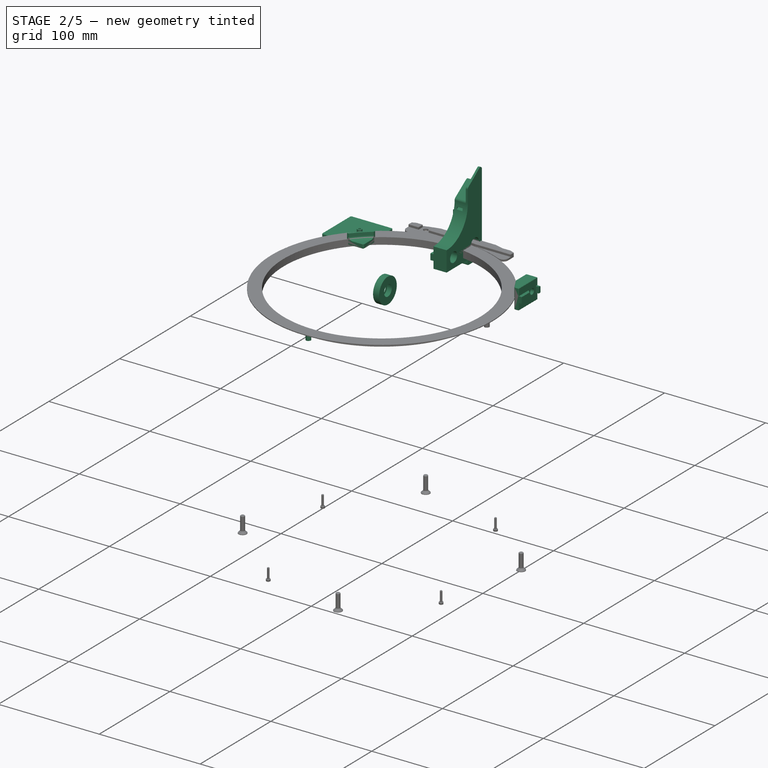
[diagram: stage 2 of 5 — iso view after this stage's code; geometry added in this stage tinted green]
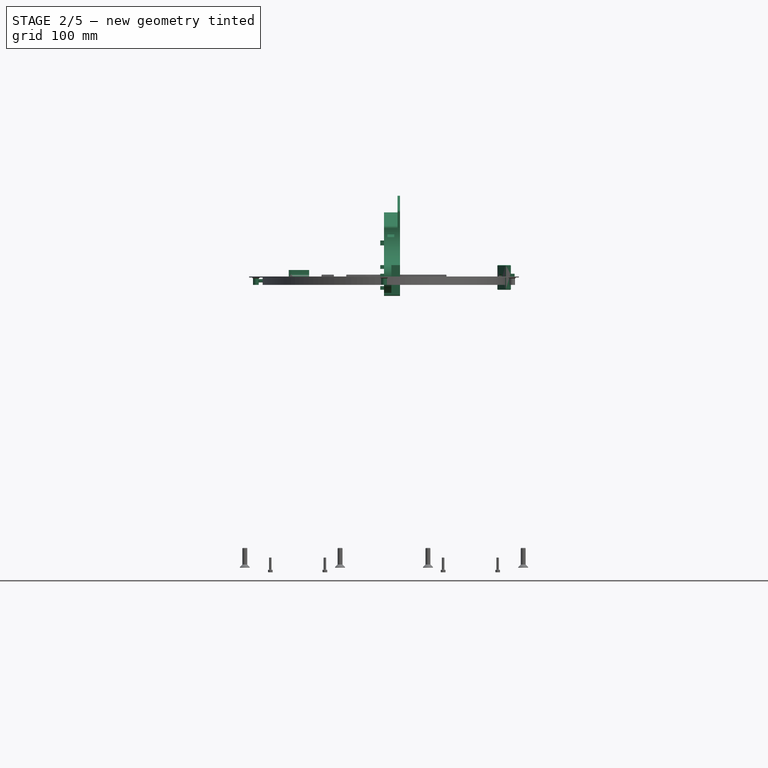
[diagram: stage 2 of 5 — front view after this stage's code; geometry added in this stage tinted green]
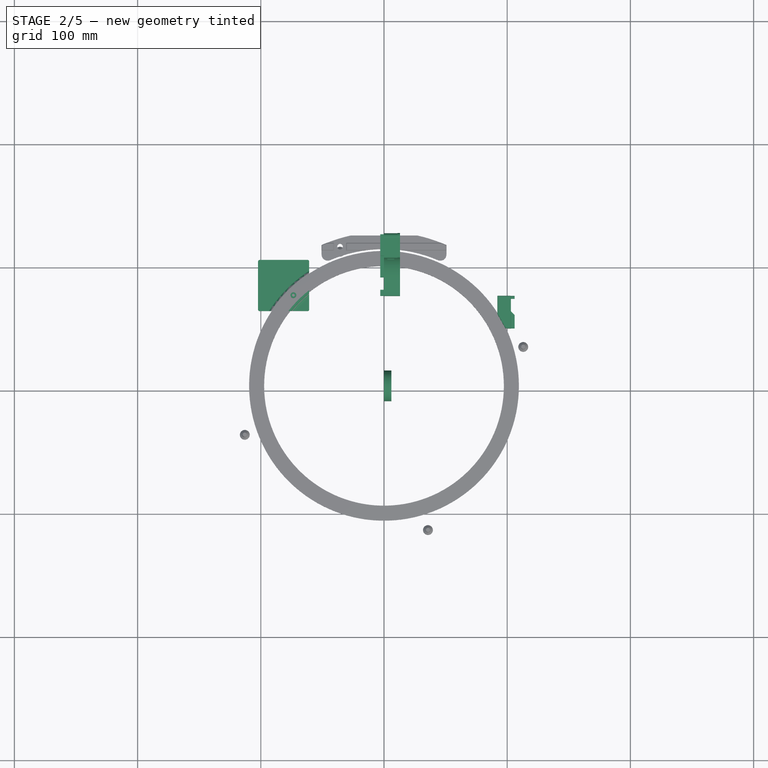
[diagram: stage 2 of 5 — top view after this stage's code; geometry added in this stage tinted green]
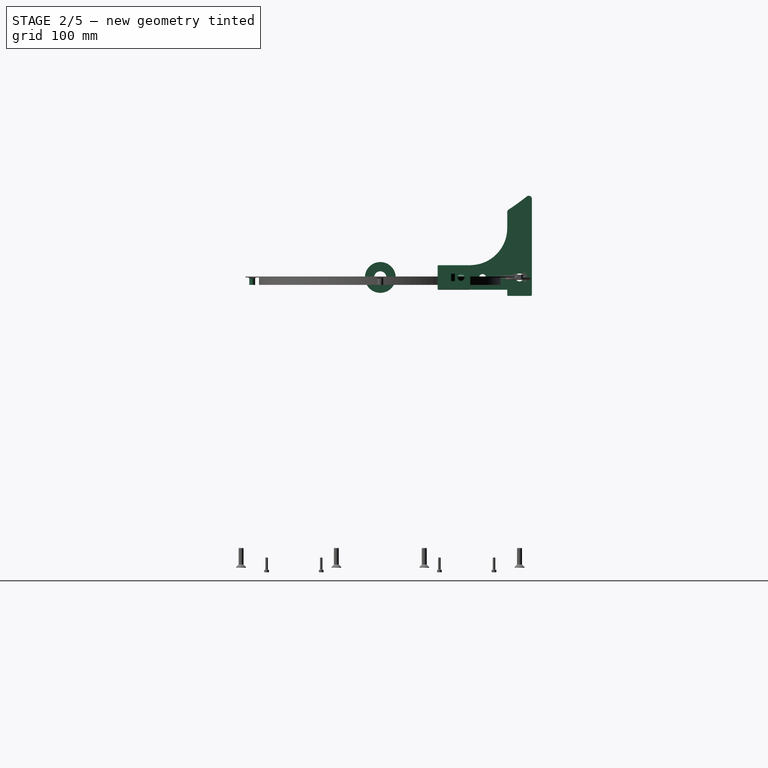
[diagram: stage 2 of 5 — right view after this stage's code; geometry added in this stage tinted green]
FEATURE [PartDesign::Body] Body022044  label="FullRetainer"
  Group = -> [Sketch201,Pad053,Sketch203,Sketch204,DatumLine,Sketch259,Sketch273,Groove,Pocket190,Sketch331,Pocket191,DatumPlane,Pocket192,Pocket193,Chamfer002,Fillet013]
  Origin = -> Origin097
  Placement = pos=(123,0,-82) rot=(0,0,1;0rad)
  Tip = -> Fillet013
  expr: .Placement.Base.x = <<Common>>#<<Parameters>>.boxsize_x / 2
  expr: .Placement.Base.z = <<Common>>#<<Parameters>>.datum_rocker_z - <<Common>>#<<Parameters>>.rail_dia / 2 + <<Common>>#<<Parameters>>.rail_height
FEATURE [PartDesign::Plane] DatumPlane054  label="SideGuardPost_DatumPlane_Outer"
  AttachmentOffset = pos=(0,0,11) rot=(0,0,1;0rad)
  Length = 171.251
  MapMode = 5
  Placement = pos=(11,-2.4e-15,2.4e-15) rot=(0.57735,0.57735,0.57735;2.0944rad)
  ResizeMode = 0
  Support = -> [YZ_Plane125]
  Width = 114.566
  expr: .AttachmentOffset.Base.z = <<Common>>#<<Parameters>>.rail_width + 1
FEATURE [PartDesign::ShapeBinder] ShapeBinder015  label="SideGuardPost_ShapeBinder_Rocker"
  Support = -> [Binder]
  TraceSupport = false
FEATURE [PartDesign::Line] DatumLine004  label="SideGuardPost_DatumLine_RockerPivot"
  AttacherType = Attacher::AttachEngineLine
  Length = 20
  MapMode = 19
  Placement = pos=(0,0,215) rot=(0.57735,0.57735,0.57735;2.0944rad)
  ResizeMode = 0
  Support = -> [ShapeBinder015]
FEATURE [Sketcher::SketchObject] Sketch338  label="SideGuardPost_Block_Sketch"
  ExternalGeometry = -> [ShapeBinder015]
  FullyConstrained = true
  MapMode = 5
  Placement = pos=(0,0,0) rot=(0.57735,0.57735,0.57735;2.0944rad)
  Support = -> [YZ_Plane125]
  sketch-geometry (21):
    g0: LineSegment StartX=123 StartY=-14 StartZ=0 EndX=123 EndY=50.2697 EndZ=0
    g1: LineSegment StartX=73 StartY=-10 StartZ=0 EndX=73 EndY=10 EndZ=0
    g2: ArcOfCircle CenterX=120.5 CenterY=50.2697 CenterZ=0 NormalX=0 NormalY=0 NormalZ=1 AngleXU=0 Radius=2.5 StartAngle=1e-15 EndAngle=2.17123
    g3: Circle CenterX=113 CenterY=30 CenterZ=0 NormalX=0 NormalY=0 NormalZ=1 AngleXU=0 Radius=2.75
    g4: Circle CenterX=83 CenterY=0 CenterZ=0 NormalX=0 NormalY=0 NormalZ=1 AngleXU=0 Radius=2.75
    g5: Circle CenterX=113 CenterY=0 CenterZ=0 NormalX=0 NormalY=0 NormalZ=1 AngleXU=0 Radius=3.25
    g6: ArcOfCircle CenterX=73 CenterY=40 CenterZ=0 NormalX=0 NormalY=0 NormalZ=1 AngleXU=0 Radius=30 StartAngle=4.71239 EndAngle=6.28313
    g7: ArcOfCircle CenterX=105.5 CenterY=39.9981 CenterZ=0 NormalX=0 NormalY=0 NormalZ=1 AngleXU=0 Radius=2.5 StartAngle=2.17123 EndAngle=3.14153
    g8: LineSegment StartX=0 StartY=215 StartZ=0 EndX=113 EndY=49.9818 EndZ=0
    g9: LineSegment StartX=103 StartY=43.1341 StartZ=0 EndX=123 EndY=56.8295 EndZ=0
    g10: LineSegment StartX=113 StartY=49.9818 StartZ=0 EndX=113.847 EndY=48.7442 EndZ=0
    g11: LineSegment StartX=104.087 StartY=42.0608 StartZ=0 EndX=119.087 EndY=52.3324 EndZ=0
    g12: LineSegment StartX=103 StartY=39.9982 StartZ=0 EndX=103 EndY=43.1341 EndZ=0
    g13: LineSegment StartX=123 StartY=56.8295 StartZ=0 EndX=123 EndY=50.2697 EndZ=0
    g14: LineSegment StartX=122 StartY=-15 StartZ=0 EndX=104 EndY=-15 EndZ=0
    g15: LineSegment StartX=103 StartY=-14 StartZ=0 EndX=103 EndY=-6 EndZ=0
    g16: ArcOfCircle CenterX=104 CenterY=-14 CenterZ=0 NormalX=0 NormalY=0 NormalZ=1 AngleXU=0 Radius=1 StartAngle=3.14159 EndAngle=4.71239
    g17: ArcOfCircle CenterX=122 CenterY=-14 CenterZ=0 NormalX=0 NormalY=0 NormalZ=1 AngleXU=0 Radius=1 StartAngle=4.71239 EndAngle=6.28319
    g18: LineSegment StartX=93 StartY=-10 StartZ=0 EndX=73 EndY=-10 EndZ=0
    g19: LineSegment StartX=103 StartY=-6 StartZ=0 EndX=97 EndY=-6 EndZ=0
    g20: LineSegment StartX=97 StartY=-6 StartZ=0 EndX=93 EndY=-10 EndZ=0
  constraints (57):
    c: Vertical(g0)
    c: Coincident(g1,g18)
    c: Vertical(g1)
    c: Tangent(g0,g2) = -1.5708
    c: Coincident(g3,g-5)
    c: PointOnObject(g4,g-1)
    c: Coincident(g5,g-6)
    c: Diameter(g5) = 6.5
    c: Diameter(g3) = 5.5
    c: Equal(g3,g4)
    c: DistanceX(g4,g5) = 30
    c: DistanceX(g18,g4) = 10
    c: Radius(g2) = 2.5
    c: DistanceY(g1,g1) = 20
    c: Coincident(g6,g1)
    c: Equal(g7,g2)
    c: PointOnObject(g6,g1)
    c: Tangent(g7,g6) = 1.5708
    c: PointOnObject(g8,g-3)
    c: PointOnObject(g8,g-6)
    c: DistanceX(g9,g9) = 20
    c: PointOnObject(g8,g9)
    c: Coincident(g10,g8)
    c: PointOnObject(g10,g11)
    c: Parallel(g10,g8)
    c: Perpendicular(g11,g10)
    c: Tangent(g11,g2) = 1.5708
    c: Tangent(g11,g7) = 1.5708
    c: Distance(g10) = 1.5
    c: Coincident(g8,g-3)
    c: Coincident(g12,g6)
    c: Coincident(g12,g9)
    c: Vertical(g12)
    c: Coincident(g13,g9)
    c: Coincident(g13,g0)
    c: Vertical(g13)
    c: Perpendicular(g8,g9)
    c: Coincident(g15,g19)
    c: Horizontal(g14)
    c: Vertical(g15)
    c: Tangent(g15,g16) = 1.5708
    c: Tangent(g14,g16) = 1.5708
    c: Tangent(g0,g17) = -1.5708
    c: Tangent(g14,g17) = 1.5708
    c: Equal(g17,g16)
    c: Radius(g17) = 1
    c: DistanceX(g19,g5) = 10
    c: DistanceX(g5,g0) = 10
    c: Coincident(g20,g18)
    c: Horizontal(g18)
    c: Coincident(g19,g20)
    c: Horizontal(g19)
    c: DistanceY(g14,g18) = 5
    c: DistanceY(g18,g5) = 10
    c: DistanceX(g19,g19) = 6
    c: DistanceY(g20,g20) = 4
    c: Angle(g20,g19) = 2.35619
FEATURE [PartDesign::Pad] Pad093  label="SideGuardPost_Block"
  Direction = (1,-2e-16,3e-16)
  Length = 11
  Length2 = 10
  Placement = pos=(0,0,0) rot=(0.57735,0.57735,0.57735;2.0944rad)
  Profile = -> Sketch338
  ReferenceAxis = -> Sketch338 [N_Axis]
  Type = 0
  expr: Length = <<Common>>#<<Parameters>>.rail_width + 1
FEATURE [PartDesign::Plane] DatumPlane053  label="SideGuardPost_DatumPlane_Channel"
  AttachmentOffset = pos=(0,0,0) rot=(1,0,0;1.5708rad)
  Length = 67.8305
  MapMode = 13
  Placement = pos=(3.66667,114.087,48.9085) rot=(0,0.88459,-0.466369;3.14159rad)
  ResizeMode = 0
  Support = -> [Pad093]
  Width = 176.794
FEATURE [Sketcher::SketchObject] Sketch337  label="SideGuardPost_Plate_Sketch"
  ExternalGeometry = -> [ShapeBinder015,Sketch338]
  FullyConstrained = true
  MapMode = 5
  Placement = pos=(11,-2.4e-15,2.4e-15) rot=(0.57735,0.57735,0.57735;2.0944rad)
  Support = -> [DatumPlane054]
  expr: Constraints[2] = <<Common>>#<<Parameters>>.pri_fillet
  sketch-geometry (19):
    g0: LineSegment StartX=103 StartY=-10 StartZ=0 EndX=73 EndY=-10 EndZ=0
    g1: LineSegment StartX=0 StartY=215 StartZ=0 EndX=122.939 EndY=57.2468 EndZ=0
    g2: GeomPoint X=118.942 Y=65.7703 Z=0
    g3: Circle CenterX=113 CenterY=1.13e-14 CenterZ=0 NormalX=0 NormalY=0 NormalZ=1 AngleXU=0 Radius=3.25
    g4: ArcOfCircle CenterX=105.5 CenterY=52.9914 CenterZ=0 NormalX=0 NormalY=0 NormalZ=1 AngleXU=0 Radius=2.5 StartAngle=2.14801 EndAngle=3.14159
    g5: ArcOfCircle CenterX=120.5 CenterY=63.8154 CenterZ=0 NormalX=0 NormalY=0 NormalZ=1 AngleXU=0 Radius=2.5 StartAngle=-9e-16 EndAngle=2.24373
    g6: LineSegment StartX=123 StartY=63.8154 StartZ=0 EndX=123 EndY=-14 EndZ=0
    g7: LineSegment StartX=73 StartY=-10 StartZ=0 EndX=73 EndY=10 EndZ=0
    g8: ArcOfCircle CenterX=0 CenterY=215 CenterZ=0 NormalX=0 NormalY=0 NormalZ=1 AngleXU=0 Radius=190.831 StartAngle=5.28961 EndAngle=5.38532
    g9: LineSegment StartX=103 StartY=52.9914 StartZ=0 EndX=103 EndY=39.9982 EndZ=0
    g10: ArcOfCircle CenterX=73.0018 CenterY=39.9982 CenterZ=0 NormalX=0 NormalY=0 NormalZ=1 AngleXU=0 Radius=29.9982 StartAngle=4.71233 EndAngle=6.28319
    g11: GeomPoint X=117.303 Y=64.4786 Z=0
    g12: Circle CenterX=113 CenterY=70 CenterZ=0 NormalX=0 NormalY=0 NormalZ=1 AngleXU=0 Radius=6
    g13: LineSegment StartX=103 StartY=-10 StartZ=0 EndX=103 EndY=-14 EndZ=0
    g14: LineSegment StartX=104 StartY=-15 StartZ=0 EndX=122 EndY=-15 EndZ=0
    g15: ArcOfCircle CenterX=104 CenterY=-14 CenterZ=0 NormalX=0 NormalY=0 NormalZ=1 AngleXU=0 Radius=1 StartAngle=3.14159 EndAngle=4.71239
    g16: ArcOfCircle CenterX=122 CenterY=-14 CenterZ=0 NormalX=0 NormalY=0 NormalZ=1 AngleXU=0 Radius=1 StartAngle=4.71239 EndAngle=6.28319
    g17: LineSegment StartX=122 StartY=-14 StartZ=0 EndX=122 EndY=-15 EndZ=0
    g18: LineSegment StartX=104 StartY=-14 StartZ=0 EndX=104 EndY=-15 EndZ=0
  constraints (44):
    c: Diameter(g3) = 6.5
    c: Equal(g5,g4)
    c: Radius(g5) = 2.5
    c: Vertical(g6)
    c: Tangent(g5,g6) = 1.5708
    c: Coincident(g8,g1)
    c: Tangent(g8,g5) = 1.5708
    c: Tangent(g8,g4) = 1.5708
    c: PointOnObject(g1,g-3)
    c: Coincident(g2,g5)
    c: Vertical(g9)
    c: Tangent(g9,g4) = -1.5708
    c: Tangent(g10,g9) = 1.5708
    c: Coincident(g8,g-3)
    c: Coincident(g3,g-4)
    c: PointOnObject(g-4,g1)
    c: PointOnObject(g11,g1)
    c: PointOnObject(g11,g8)
    c: Distance(g11,g-4) = 7
    c: Coincident(g12,g-4)
    c: Diameter(g12) = 12
    c: Horizontal(g14)
    c: Coincident(g0,g13)
    c: Coincident(g7,g0)
    c: Coincident(g7,g10)
    c: Coincident(g7,g-5)
    c: Coincident(g0,g-5)
    c: Coincident(g15,g13)
    c: Coincident(g16,g-6)
    c: Coincident(g16,g6)
    c: Coincident(g14,g16)
    c: Coincident(g15,g14)
    c: Equal(g15,g16)
    c: Coincident(g6,g-6)
    c: Coincident(g17,g16)
    c: Coincident(g17,g14)
    c: Coincident(g18,g15)
    c: Coincident(g18,g14)
    c: Vertical(g18)
    c: Vertical(g17)
    c: Coincident(g9,g-7)
    c: Horizontal(g0)
    c: Vertical(g13)
    c: Coincident(g13,g-8)
FEATURE [PartDesign::Pad] Pad094  label="SideGuardPost_Plate"
  BaseFeature = -> Pad093
  Direction = (1,-1e-16,1e-16)
  Length = 2
  Length2 = 10
  Placement = pos=(0,0,0) rot=(0.57735,0.57735,0.57735;2.0944rad)
  Profile = -> Sketch337
  ReferenceAxis = -> Sketch337 [N_Axis]
  Type = 0
  expr: Length = Common#<<Parameters>>.rocker_plate
FEATURE [Sketcher::SketchObject] Sketch339  label="SideGuardPost_SideRail_Sketch"
  ExternalGeometry = -> [ShapeBinder015]
  FullyConstrained = true
  MapMode = 5
  Placement = pos=(0,0,0) rot=(-0.57735,0.57735,0.57735;4.18879rad)
  Support = -> [YZ_Plane125]
  sketch-geometry (22):
    g0: LineSegment StartX=-88 StartY=3 StartZ=0 EndX=-106 EndY=3 EndZ=0
    g1: LineSegment StartX=-106 StartY=3 StartZ=0 EndX=-106 EndY=-3 EndZ=0
    g2: LineSegment StartX=-106 StartY=-3 StartZ=0 EndX=-88 EndY=-3 EndZ=0
    g3: LineSegment StartX=-88 StartY=-3 StartZ=0 EndX=-88 EndY=3 EndZ=0
    g4: LineSegment StartX=-73 StartY=3 StartZ=0 EndX=-78 EndY=3 EndZ=0
    g5: LineSegment StartX=-78 StartY=3 StartZ=0 EndX=-78 EndY=-3 EndZ=0
    g6: LineSegment StartX=-78 StartY=-3 StartZ=0 EndX=-73 EndY=-3 EndZ=0
    g7: LineSegment StartX=-73 StartY=-3 StartZ=0 EndX=-73 EndY=3 EndZ=0
    g8: LineSegment StartX=-88 StartY=0 StartZ=0 EndX=-83 EndY=0 EndZ=0
    g9: LineSegment StartX=-83 StartY=0 StartZ=0 EndX=-78 EndY=0 EndZ=0
    g10: LineSegment StartX=-123 StartY=3 StartZ=0 EndX=-120 EndY=3 EndZ=0
    g11: LineSegment StartX=-120 StartY=3 StartZ=0 EndX=-120 EndY=-3 EndZ=0
    g12: LineSegment StartX=-120 StartY=-3 StartZ=0 EndX=-123 EndY=-3 EndZ=0
    g13: LineSegment StartX=-123 StartY=-3 StartZ=0 EndX=-123 EndY=3 EndZ=0
    g14: LineSegment StartX=-116 StartY=10 StartZ=0 EndX=-110 EndY=10 EndZ=0
    g15: LineSegment StartX=-110 StartY=10 StartZ=0 EndX=-110 EndY=7 EndZ=0
    g16: LineSegment StartX=-110 StartY=7 StartZ=0 EndX=-116 EndY=7 EndZ=0
    g17: LineSegment StartX=-116 StartY=7 StartZ=0 EndX=-116 EndY=10 EndZ=0
    g18: LineSegment StartX=-116 StartY=-7 StartZ=0 EndX=-110 EndY=-7 EndZ=0
    g19: LineSegment StartX=-110 StartY=-7 StartZ=0 EndX=-110 EndY=-10 EndZ=0
    g20: LineSegment StartX=-110 StartY=-10 StartZ=0 EndX=-116 EndY=-10 EndZ=0
    g21: LineSegment StartX=-116 StartY=-10 StartZ=0 EndX=-116 EndY=-7 EndZ=0
  constraints (63):
    c: DistanceX(g-3,g8) = 30
    c: Coincident(g0,g1)
    c: Coincident(g2,g1)
    c: Coincident(g3,g2)
    c: Coincident(g0,g3)
    c: PointOnObject(g8,g3)
    c: Coincident(g8,g9)
    c: Coincident(g5,g6)
    c: Coincident(g6,g7)
    c: Coincident(g4,g7)
    c: Coincident(g4,g5)
    c: Equal(g8,g9)
    c: PointOnObject(g9,g5)
    c: Symmetric(g4,g6,g-1)
    c: DistanceY(g7,g7) = 6
    c: Vertical(g3)
    c: Vertical(g1)
    c: Coincident(g10,g11)
    c: Coincident(g11,g12)
    c: Coincident(g12,g13)
    c: Coincident(g13,g10)
    c: Horizontal(g10)
    c: Horizontal(g12)
    c: Vertical(g11)
    c: Vertical(g13)
    c: Coincident(g14,g15)
    c: Coincident(g15,g16)
    c: Coincident(g16,g17)
    c: Coincident(g17,g14)
    c: Horizontal(g16)
    c: Vertical(g15)
    c: Vertical(g17)
    c: Coincident(g18,g19)
    c: Coincident(g19,g20)
    c: Coincident(g20,g21)
    c: Coincident(g21,g18)
    c: Horizontal(g18)
    c: Horizontal(g20)
    c: Vertical(g19)
    c: Vertical(g21)
    c: Horizontal(g2)
    c: Horizontal(g0)
    c: Horizontal(g8)
    c: Horizontal(g9)
    c: PointOnObject(g9,g-1)
    c: Vertical(g5)
    c: Horizontal(g4)
    c: Horizontal(g6)
    c: Equal(g14,g13)
    c: Equal(g13,g20)
    c: Equal(g20,g3)
    c: Equal(g3,g7)
    c: DistanceX(g8,g4) = 10
    c: Equal(g12,g19)
    c: Equal(g19,g17)
    c: Symmetric(g14,g14,g-4)
    c: Symmetric(g14,g19,g-1)
    c: DistanceY(g20,g14) = 20
    c: PointOnObject(g4,g0)
    c: DistanceX(g10,g-4) = 10
    c: DistanceX(g8,g9) = 10
    c: Symmetric(g0,g10,g-4)
    c: DistanceY(g15,g15) = 3
FEATURE [PartDesign::Pad] Pad095  label="SideGuardPost_SideRail"
  BaseFeature = -> Pad094
  Direction = (-1,2e-16,-3e-16)
  Length = 3
  Length2 = 10
  Placement = pos=(0,0,0) rot=(0.57735,0.57735,0.57735;2.0944rad)
  Profile = -> Sketch339
  ReferenceAxis = -> Sketch339 [N_Axis]
  Type = 0
FEATURE [Sketcher::SketchObject] Sketch340  label="SideGuardPost_SideBolt_Sketch"
  AttachmentOffset = pos=(0,0,2) rot=(0,0,1;0rad)
  ExternalGeometry = -> [ShapeBinder015]
  FullyConstrained = true
  MapMode = 5
  Placement = pos=(13,-2.7e-15,2.7e-15) rot=(0.57735,0.57735,0.57735;2.0944rad)
  Support = -> [DatumPlane054]
  expr: .AttachmentOffset.Base.z = <<Common>>#<<Parameters>>.rocker_plate
  sketch-geometry (2):
    g0: Circle CenterX=83 CenterY=0 CenterZ=0 NormalX=0 NormalY=0 NormalZ=1 AngleXU=0 Radius=2.75
    g1: Circle CenterX=113 CenterY=0 CenterZ=0 NormalX=0 NormalY=0 NormalZ=1 AngleXU=0 Radius=3.25
  constraints (5):
    c: PointOnObject(g0,g-1)
    c: Diameter(g0) = 5.5
    c: Coincident(g1,g-3)
    c: Diameter(g1) = 6.5
    c: DistanceX(g0,g1) = 30
FEATURE [Sketcher::SketchObject] Sketch341  label="SideGuardPost_CounterBoreSide_Sketch"
  AttachmentOffset = pos=(0,0,2) rot=(0,0,1;0rad)
  ExternalGeometry = -> [Sketch340]
  FullyConstrained = true
  MapMode = 5
  Placement = pos=(13,-2.7e-15,2.7e-15) rot=(0.57735,0.57735,0.57735;2.0944rad)
  Support = -> [DatumPlane054]
  expr: .AttachmentOffset.Base.z = <<Common>>#<<Parameters>>.rocker_plate
  sketch-geometry (1):
    g0: Circle CenterX=83 CenterY=-9.3e-15 CenterZ=0 NormalX=0 NormalY=0 NormalZ=1 AngleXU=0 Radius=5
  constraints (2):
    c: Diameter(g0) = 10
    c: Coincident(g0,g-3)
FEATURE [Sketcher::SketchObject] Sketch342  label="SideGuardPost_CBSSupport_Sketch"
  AttachmentOffset = pos=(0,0,-7) rot=(0,0,1;0rad)
  ExternalGeometry = -> [Sketch340,Sketch341]
  FullyConstrained = true
  MapMode = 5
  Placement = pos=(4,-1.7e-15,1.7e-15) rot=(0.57735,0.57735,0.57735;2.0944rad)
  Support = -> [DatumPlane054]
  expr: .AttachmentOffset.Base.z = -(<<Common>>#<<Parameters>>.rail_width + 1 - 4)
  sketch-geometry (12):
    g0: LineSegment StartX=78.8242 StartY=2.75 StartZ=0 EndX=87.1758 EndY=2.75 EndZ=0
    g1: LineSegment StartX=87.4695 StartY=2.24137 StartZ=0 EndX=83.2937 EndY=-4.99137 EndZ=0
    g2: LineSegment StartX=82.7063 StartY=-4.99137 StartZ=0 EndX=78.5305 EndY=2.24137 EndZ=0
    g3: ArcOfCircle CenterX=83 CenterY=-9.2e-15 CenterZ=0 NormalX=0 NormalY=0 NormalZ=1 AngleXU=0 Radius=5 StartAngle=2.55923 EndAngle=2.67676
    g4: ArcOfCircle CenterX=83 CenterY=-9.2e-15 CenterZ=0 NormalX=0 NormalY=0 NormalZ=1 AngleXU=0 Radius=5 StartAngle=0.464833 EndAngle=0.582364
    g5: ArcOfCircle CenterX=83 CenterY=-9.2e-15 CenterZ=0 NormalX=0 NormalY=0 NormalZ=1 AngleXU=0 Radius=5 StartAngle=4.65362 EndAngle=4.77115
    g6: LineSegment StartX=83 StartY=-9.2e-15 StartZ=0 EndX=83 EndY=2.75 EndZ=0
    g7: LineSegment StartX=83 StartY=-9.2e-15 StartZ=0 EndX=85.3816 EndY=-1.375 EndZ=0
    g8: LineSegment StartX=83 StartY=-9.2e-15 StartZ=0 EndX=80.6184 EndY=-1.375 EndZ=0
    g9: LineSegment StartX=85.3816 StartY=-1.375 StartZ=0 EndX=80.6184 EndY=-1.375 EndZ=0
    g10: LineSegment StartX=80.6184 StartY=-1.375 StartZ=0 EndX=83 EndY=2.75 EndZ=0
    g11: LineSegment StartX=83 StartY=2.75 StartZ=0 EndX=85.3816 EndY=-1.375 EndZ=0
  constraints (33):
    c: Horizontal(g0)
    c: Coincident(g3,g2)
    c: Coincident(g3,g0)
    c: Coincident(g4,g3)
    c: Coincident(g4,g0)
    c: Coincident(g4,g1)
    c: Coincident(g5,g3)
    c: Coincident(g5,g1)
    c: Coincident(g5,g2)
    c: Coincident(g6,g3)
    c: PointOnObject(g6,g0)
    c: Vertical(g6)
    c: Coincident(g7,g3)
    c: Coincident(g8,g3)
    c: PointOnObject(g8,g2)
    c: Coincident(g9,g7)
    c: Coincident(g9,g8)
    c: Coincident(g10,g8)
    c: Coincident(g10,g6)
    c: Coincident(g11,g6)
    c: Coincident(g11,g7)
    c: Horizontal(g9)
    c: Equal(g11,g9)
    c: Perpendicular(g2,g8)
    c: Perpendicular(g1,g7)
    c: Equal(g10,g11)
    c: PointOnObject(g7,g1)
    c: PointOnObject(g0,g-4)
    c: PointOnObject(g2,g-4)
    c: PointOnObject(g0,g-4)
    c: PointOnObject(g6,g-3)
    c: PointOnObject(g7,g-3)
    c: Coincident(g3,g-4)
FEATURE [Sketcher::SketchObject] Sketch343  label="SideGuardPost_Channel_Sketch"
  ExternalGeometry = -> [Pad093]
  FullyConstrained = true
  MapMode = 5
  Placement = pos=(3.66667,114.087,48.9085) rot=(0,0.88459,-0.466369;3.14159rad)
  Support = -> [DatumPlane053]
  sketch-geometry (6):
    g0: LineSegment StartX=-4.63333 StartY=6.6 StartZ=0 EndX=0.966667 EndY=6.6 EndZ=0
    g1: LineSegment StartX=0.966667 StartY=6.6 StartZ=0 EndX=0.966667 EndY=5 EndZ=0
    g2: LineSegment StartX=0.966667 StartY=5 StartZ=0 EndX=-4.63333 EndY=5 EndZ=0
    g3: LineSegment StartX=-4.63333 StartY=5 StartZ=0 EndX=-4.63333 EndY=6.6 EndZ=0
    g4: LineSegment StartX=-4.63333 StartY=5 StartZ=0 EndX=-7.33333 EndY=5 EndZ=0
    g5: LineSegment StartX=0.966667 StartY=5 StartZ=0 EndX=3.66667 EndY=5 EndZ=0
  constraints (18):
    c: Coincident(g0,g1)
    c: Coincident(g1,g2)
    c: Coincident(g2,g3)
    c: Coincident(g3,g0)
    c: Horizontal(g0)
    c: Horizontal(g2)
    c: Vertical(g1)
    c: Vertical(g3)
    c: Coincident(g4,g2)
    c: Horizontal(g4)
    c: Coincident(g5,g1)
    c: Horizontal(g5)
    c: Equal(g4,g5)
    c: DistanceX(g2,g2) = 5.6
    c: DistanceY(g1,g1) = 1.6
    c: DistanceY(g-1,g1) = 5
    c: PointOnObject(g4,g-4)
    c: PointOnObject(g5,g-5)
FEATURE [Sketcher::SketchObject] Sketch344  label="SideGuardPost_UpperCatch_Sketch"
  ExternalGeometry = -> [ShapeBinder015]
  FullyConstrained = true
  MapMode = 5
  Placement = pos=(0,0,0) rot=(0.57735,0.57735,0.57735;2.0944rad)
  Support = -> [YZ_Plane125]
  sketch-geometry (4):
    g0: LineSegment StartX=105 StartY=30 StartZ=0 EndX=121 EndY=30 EndZ=0
    g1: LineSegment StartX=121 StartY=30 StartZ=0 EndX=121 EndY=26 EndZ=0
    g2: LineSegment StartX=121 StartY=26 StartZ=0 EndX=105 EndY=26 EndZ=0
    g3: LineSegment StartX=105 StartY=26 StartZ=0 EndX=105 EndY=30 EndZ=0
  constraints (11):
    c: Coincident(g0,g1)
    c: Coincident(g1,g2)
    c: Coincident(g2,g3)
    c: Coincident(g3,g0)
    c: Horizontal(g2)
    c: Vertical(g1)
    c: Vertical(g3)
    c: Symmetric(g0,g0,g-4)
    c: DistanceY(g1,g1) = 4
    c: DistanceX(g2,g2) = 16
    c: PointOnObject(g-3,g0)
FEATURE [PartDesign::Pad] Pad096  label="SideGuardPost_Catch"
  BaseFeature = -> Pad095
  Direction = (1,-2e-16,3e-16)
  Length = 3
  Length2 = 10
  Placement = pos=(0,0,0) rot=(0.57735,0.57735,0.57735;2.0944rad)
  Profile = -> Sketch344
  ReferenceAxis = -> Sketch344 [N_Axis]
  Reversed = true
  Type = 0
FEATURE [Sketcher::SketchObject] Sketch347  label="SideGuardPost_CornerBolt_Sketch"
  AttachmentOffset = pos=(0,0,2) rot=(0,0,1;0rad)
  ExternalGeometry = -> [ShapeBinder015]
  FullyConstrained = true
  MapMode = 5
  Placement = pos=(13,-2.7e-15,2.7e-15) rot=(0.57735,0.57735,0.57735;2.0944rad)
  Support = -> [DatumPlane054]
  expr: .AttachmentOffset.Base.z = <<Common>>#<<Parameters>>.rocker_plate
  sketch-geometry (1):
    g0: Circle CenterX=113 CenterY=0 CenterZ=0 NormalX=0 NormalY=0 NormalZ=1 AngleXU=0 Radius=3.25
  constraints (2):
    c: Coincident(g0,g-3)
    c: Diameter(g0) = 6.5
FEATURE [Sketcher::SketchObject] Sketch345  label="SideGuardPost_CounterBoreCorner_Sketch"
  AttachmentOffset = pos=(0,0,2) rot=(0,0,1;0rad)
  ExternalGeometry = -> [Sketch347]
  FullyConstrained = true
  MapMode = 5
  Placement = pos=(13,-2.7e-15,2.7e-15) rot=(0.57735,0.57735,0.57735;2.0944rad)
  Support = -> [DatumPlane054]
  expr: .AttachmentOffset.Base.z = <<Common>>#<<Parameters>>.rocker_plate
  sketch-geometry (1):
    g0: Circle CenterX=113 CenterY=-1.25e-14 CenterZ=0 NormalX=0 NormalY=0 NormalZ=1 AngleXU=0 Radius=6
  constraints (2):
    c: Diameter(g0) = 12
    c: Coincident(g0,g-3)
FEATURE [Sketcher::SketchObject] Sketch346  label="SideGuardPost_CBCSupport_Sketch"
  AttachmentOffset = pos=(0,0,-4) rot=(0,0,1;0rad)
  ExternalGeometry = -> [Sketch347,Sketch345]
  FullyConstrained = true
  MapMode = 5
  Placement = pos=(7,-2e-15,2e-15) rot=(0.57735,0.57735,0.57735;2.0944rad)
  Support = -> [DatumPlane054]
  expr: .AttachmentOffset.Base.z = <<Common>>#<<Parameters>>.rocker_plate - 6
  sketch-geometry (12):
    g0: LineSegment StartX=107.956 StartY=3.25 StartZ=0 EndX=118.044 EndY=3.25 EndZ=0
    g1: LineSegment StartX=118.336 StartY=2.74285 StartZ=0 EndX=113.293 EndY=-5.99285 EndZ=0
    g2: LineSegment StartX=112.707 StartY=-5.99285 StartZ=0 EndX=107.664 EndY=2.74285 EndZ=0
    g3: ArcOfCircle CenterX=113 CenterY=-2.51e-14 CenterZ=0 NormalX=0 NormalY=0 NormalZ=1 AngleXU=0 Radius=6 StartAngle=2.56917 EndAngle=2.66681
    g4: ArcOfCircle CenterX=113 CenterY=-2.51e-14 CenterZ=0 NormalX=0 NormalY=0 NormalZ=1 AngleXU=0 Radius=6 StartAngle=0.474779 EndAngle=0.572419
    g5: ArcOfCircle CenterX=113 CenterY=-2.51e-14 CenterZ=0 NormalX=0 NormalY=0 NormalZ=1 AngleXU=0 Radius=6 StartAngle=4.66357 EndAngle=4.76121
    g6: LineSegment StartX=113 StartY=-2.51e-14 StartZ=0 EndX=113 EndY=3.25 EndZ=0
    g7: LineSegment StartX=113 StartY=-2.51e-14 StartZ=0 EndX=110.185 EndY=-1.625 EndZ=0
    g8: LineSegment StartX=113 StartY=-2.51e-14 StartZ=0 EndX=115.815 EndY=-1.625 EndZ=0
    g9: LineSegment StartX=115.815 StartY=-1.625 StartZ=0 EndX=110.185 EndY=-1.625 EndZ=0
    g10: LineSegment StartX=110.185 StartY=-1.625 StartZ=0 EndX=113 EndY=3.25 EndZ=0
    g11: LineSegment StartX=113 StartY=3.25 StartZ=0 EndX=115.815 EndY=-1.625 EndZ=0
  constraints (33):
    c: Horizontal(g0)
    c: Coincident(g3,g2)
    c: Coincident(g3,g0)
    c: Coincident(g4,g3)
    c: Coincident(g4,g0)
    c: Coincident(g4,g1)
    c: Coincident(g5,g3)
    c: Coincident(g5,g1)
    c: Coincident(g5,g2)
    c: Coincident(g6,g3)
    c: PointOnObject(g6,g0)
    c: Vertical(g6)
    c: Coincident(g7,g3)
    c: PointOnObject(g7,g2)
    c: Coincident(g8,g3)
    c: PointOnObject(g8,g1)
    c: Coincident(g9,g8)
    c: Coincident(g9,g7)
    c: Perpendicular(g2,g7)
    c: Perpendicular(g1,g8)
    c: Coincident(g10,g7)
    c: Coincident(g10,g6)
    c: Coincident(g11,g6)
    c: Coincident(g11,g8)
    c: Equal(g10,g11)
    c: Equal(g11,g9)
    c: Horizontal(g9)
    c: PointOnObject(g0,g-4)
    c: PointOnObject(g2,g-4)
    c: PointOnObject(g1,g-4)
    c: Coincident(g3,g-4)
    c: PointOnObject(g8,g-3)
    c: PointOnObject(g6,g-3)
FEATURE [PartDesign::Pocket] Pocket196  label="SideGuardPost_Channel"
  BaseFeature = -> Pad096
  Direction = (0,0.825091,0.565)
  Length = 5
  Length2 = 5
  Midplane = true
  Placement = pos=(0,0,0) rot=(0.57735,0.57735,0.57735;2.0944rad)
  Profile = -> Sketch343
  ReferenceAxis = -> Sketch343 [N_Axis]
  Type = 1
FEATURE [Sketcher::SketchObject] Sketch348  label="SideGuardPost_LowerChannel_Sketch"
  AttachmentOffset = pos=(0,0,123) rot=(0,0,1;0rad)
  FullyConstrained = true
  MapMode = 5
  Placement = pos=(0,123,2.73e-14) rot=(0,0.707107,0.707107;3.14159rad)
  Support = -> [XZ_Plane124]
  expr: .AttachmentOffset.Base.z = <<Common>>#<<Parameters>>.boxsize_y / 2
  expr: Constraints[12] = <<Common>>#<<Parameters>>.rail_width + 1
  sketch-geometry (7):
    g0: LineSegment StartX=-2.7 StartY=-8.4 StartZ=0 EndX=-8.3 EndY=-8.4 EndZ=0
    g1: LineSegment StartX=-8.3 StartY=-8.4 StartZ=0 EndX=-8.3 EndY=-10 EndZ=0
    g2: LineSegment StartX=-8.3 StartY=-10 StartZ=0 EndX=-2.7 EndY=-10 EndZ=0
    g3: LineSegment StartX=-2.7 StartY=-10 StartZ=0 EndX=-2.7 EndY=-8.4 EndZ=0
    g4: LineSegment StartX=-11 StartY=0 StartZ=0 EndX=-11 EndY=-10 EndZ=0
    g5: LineSegment StartX=-11 StartY=-10 StartZ=0 EndX=-8.3 EndY=-10 EndZ=0
    g6: LineSegment StartX=-2.7 StartY=-10 StartZ=0 EndX=0 EndY=-10 EndZ=0
  constraints (21):
    c: Coincident(g0,g1)
    c: Coincident(g1,g2)
    c: Coincident(g2,g3)
    c: Coincident(g3,g0)
    c: Horizontal(g0)
    c: Horizontal(g2)
    c: Vertical(g1)
    c: Vertical(g3)
    c: PointOnObject(g4,g-1)
    c: Vertical(g4)
    c: DistanceX(g2,g2) = 5.6
    c: DistanceY(g1,g1) = 1.6
    c: DistanceX(g4,g-1) = 11
    c: Coincident(g5,g4)
    c: Coincident(g5,g1)
    c: Coincident(g6,g2)
    c: PointOnObject(g6,g-2)
    c: Horizontal(g6)
    c: Horizontal(g5)
    c: Equal(g5,g6)
    c: DistanceY(g6,g-1) = 10
FEATURE [PartDesign::Pocket] Pocket197  label="SideGuardPost_LowerChannel"
  BaseFeature = -> Pocket196
  Direction = (0,-1,-2e-16)
  Length = 5
  Length2 = 5
  Placement = pos=(0,0,0) rot=(0.57735,0.57735,0.57735;2.0944rad)
  Profile = -> Sketch348
  ReferenceAxis = -> Sketch348 [N_Axis]
  Type = 2
FEATURE [PartDesign::Pocket] Pocket198  label="SideGuardPost_CornerBolt"
  BaseFeature = -> Pocket197
  Direction = (-1,1e-16,-1e-16)
  Length = 5
  Length2 = 5
  Placement = pos=(0,0,0) rot=(0.57735,0.57735,0.57735;2.0944rad)
  Profile = -> Sketch347
  ReferenceAxis = -> Sketch347 [N_Axis]
  Type = 1
FEATURE [PartDesign::Pocket] Pocket199  label="SideGuardPost_SideBolt"
  BaseFeature = -> Pocket198
  Direction = (-1,1e-16,-1e-16)
  Length = 5
  Length2 = 5
  Placement = pos=(0,0,0) rot=(0.57735,0.57735,0.57735;2.0944rad)
  Profile = -> Sketch340
  ReferenceAxis = -> Sketch340 [N_Axis]
  Type = 1
FEATURE [PartDesign::Pocket] Pocket200  label="SideGuardPost_CounterBoreCorner"
  BaseFeature = -> Pocket199
  Direction = (-1,1e-16,-1e-16)
  Length = 6
  Length2 = 5
  Placement = pos=(0,0,0) rot=(0.57735,0.57735,0.57735;2.0944rad)
  Profile = -> Sketch345
  ReferenceAxis = -> Sketch345 [N_Axis]
  Type = 0
FEATURE [PartDesign::Pocket] Pocket201  label="SideGuardPost_CounterBoreSide"
  BaseFeature = -> Pocket200
  Direction = (-1,1e-16,-1e-16)
  Length = 9
  Length2 = 5
  Placement = pos=(0,0,0) rot=(0.57735,0.57735,0.57735;2.0944rad)
  Profile = -> Sketch341
  ReferenceAxis = -> Sketch341 [N_Axis]
  Type = 0
  expr: Length = <<Common>>#<<Parameters>>.rail_width + 1 + <<Common>>#<<Parameters>>.rocker_plate - 4
FEATURE [PartDesign::Pocket] Pocket202  label="SideGuardPost_CBCSupport"
  BaseFeature = -> Pocket201
  Direction = (-1,1e-16,-1e-16)
  Length = 0.2
  Length2 = 5
  Placement = pos=(0,0,0) rot=(0.57735,0.57735,0.57735;2.0944rad)
  Profile = -> Sketch346
  ReferenceAxis = -> Sketch346 [N_Axis]
  Type = 0
FEATURE [Sketcher::SketchObject] Sketch350  label="BaseWheelBlockSB_Body_Sketch"
  FullyConstrained = true
  MapMode = 5
  Support = -> [XY_Plane128]
  expr: Constraints[22] = <<Common>>#<<Parameters>>.bolt_y - 10 - 30
  expr: Constraints[32] = <<Common>>#<<Parameters>>.bolt_x - 10
  sketch-geometry (23):
    g0: ArcOfCircle CenterX=0 CenterY=0 CenterZ=0 NormalX=0 NormalY=0 NormalZ=1 AngleXU=0 Radius=104.75 StartAngle=0 EndAngle=1.5708
    g1: LineSegment StartX=88.1276 StartY=63.0542 StartZ=0 EndX=99.4503 EndY=43.0343 EndZ=0
    g2: LineSegment StartX=99.4503 StartY=43.0343 StartZ=0 EndX=93.3573 EndY=39.5883 EndZ=0
    g3: LineSegment StartX=93.3573 StartY=39.5883 StartZ=0 EndX=82.0346 EndY=59.6082 EndZ=0
    g4: LineSegment StartX=82.0346 StartY=59.6082 StartZ=0 EndX=88.1276 EndY=63.0542 EndZ=0
    g5: LineSegment StartX=91.1777 StartY=51.5674 StartZ=0 EndX=0 EndY=0 EndZ=0
    g6: LineSegment StartX=92 StartY=73 StartZ=0 EndX=103 EndY=73 EndZ=0
    g7: LineSegment StartX=103 StartY=73 StartZ=0 EndX=103 EndY=46.5731 EndZ=0
    g8: LineSegment StartX=92 StartY=58.2387 StartZ=0 EndX=92 EndY=73 EndZ=0
    g9: GeomPoint X=93.789 Y=53.0443 Z=0
    g10: GeomPoint X=94.6594 Y=53.5366 Z=0
    g11: LineSegment StartX=98.5977 StartY=46.5731 StartZ=0 EndX=92 EndY=58.2387 EndZ=0
    g12: LineSegment StartX=98.5977 StartY=46.5731 StartZ=0 EndX=103 EndY=46.5731 EndZ=0
    g13: GeomPoint X=87.6959 Y=49.5982 Z=0
    g14: LineSegment StartX=103 StartY=68 StartZ=0 EndX=99 EndY=68 EndZ=0
    g15: LineSegment StartX=99 StartY=68 StartZ=0 EndX=99 EndY=70.5 EndZ=0
    g16: LineSegment StartX=99 StartY=70.5 StartZ=0 EndX=85.0654 EndY=70.5 EndZ=0
    g17: LineSegment StartX=103 StartY=63 StartZ=0 EndX=99 EndY=63 EndZ=0
    g18: LineSegment StartX=99 StartY=63 StartZ=0 EndX=99 EndY=60.5 EndZ=0
    g19: LineSegment StartX=99 StartY=60.5 StartZ=0 EndX=90.7211 EndY=60.5 EndZ=0
    g20: LineSegment StartX=96.1363 StartY=50.9253 StartZ=0 EndX=100.488 EndY=53.3867 EndZ=0
    g21: LineSegment StartX=93.1825 StartY=56.1478 StartZ=0 EndX=97.5347 EndY=58.6093 EndZ=0
    g22: LineSegment StartX=97.5347 StartY=58.6093 StartZ=0 EndX=100.488 EndY=53.3867 EndZ=0
  constraints (70):
    c: Coincident(g0,g-1)
    c: PointOnObject(g0,g-2)
    c: PointOnObject(g0,g-1)
    c: DistanceY(g0) = 104.75
    c: Coincident(g2,g1)
    c: Coincident(g3,g2)
    c: Coincident(g4,g3)
    c: Coincident(g4,g1)
    c: PointOnObject(g5,g0)
    c: Coincident(g5,g0)
    c: Parallel(g2,g4)
    c: Parallel(g4,g5)
    c: Symmetric(g3,g2,g5)
    c: Parallel(g1,g3)
    c: Distance(g3) = 23
    c: Distance(g4) = 7
    c: Horizontal(g6)
    c: Coincident(g7,g6)
    c: Vertical(g7)
    c: Coincident(g8,g11)
    c: Coincident(g8,g6)
    c: Vertical(g8)
    c: DistanceY(g6) = 73
    c: PointOnObject(g9,g1)
    c: PointOnObject(g10,g5)
    c: PointOnObject(g9,g5)
    c: Distance(g9,g10) = 1
    c: Parallel(g11,g1)
    c: PointOnObject(g10,g11)
    c: Coincident(g12,g11)
    c: Coincident(g12,g7)
    c: Horizontal(g12)
    c: DistanceX(g6) = 103
    c: PointOnObject(g13,g3)
    c: PointOnObject(g13,g5)
    c: Distance(g13,g5) = 4
    c: PointOnObject(g14,g7)
    c: Horizontal(g14)
    c: Coincident(g15,g14)
    c: Vertical(g15)
    c: Coincident(g16,g15)
    c: Horizontal(g16)
    c: PointOnObject(g17,g7)
    c: Horizontal(g17)
    c: Coincident(g18,g17)
    c: Vertical(g18)
    c: Coincident(g19,g18)
    c: PointOnObject(g19,g11)
    c: Horizontal(g19)
    c: PointOnObject(g16,g11)
    c: Equal(g15,g18)
    c: Equal(g17,g14)
    c: DistanceY(g17,g14) = 5
    c: Distance(g10,g11) = 8
    c: Distance(g19,g10) = 8
    c: DistanceX(g14,g14) = 4
    c: DistanceX(g19,g19) = 8.27893
    c: DistanceY(g15,g6) = 2.5
    c: DistanceY(g18,g15) = 10
    c: PointOnObject(g20,g11)
    c: PointOnObject(g21,g11)
    c: Coincident(g22,g21)
    c: Coincident(g22,g20)
    c: Perpendicular(g11,g20)
    c: Perpendicular(g11,g21)
    c: Symmetric(g20,g21,g5)
    c: Distance(g22) = 6
    c: Distance(g20) = 5
    c: DistanceX(g8,g18) = 7
    c: DistanceY(g18,g6) = 12.5
FEATURE [PartDesign::Pad] Pad097  label="BaseWheelBlockSB_Body"
  Direction = (0,0,1)
  Length = 20
  Length2 = 10
  Midplane = true
  Profile = -> Sketch350
  ReferenceAxis = -> Sketch350 [N_Axis]
  Type = 0
FEATURE [Sketcher::SketchObject] Sketch351  label="BaseWheelBlockSB_Tab_Sketch"
  ExternalGeometry = -> [Sketch350]
  FullyConstrained = true
  MapMode = 5
  Support = -> [XY_Plane128]
  sketch-geometry (8):
    g0: LineSegment StartX=103 StartY=46.5731 StartZ=0 EndX=106 EndY=46.5731 EndZ=0
    g1: LineSegment StartX=106 StartY=46.5731 StartZ=0 EndX=106 EndY=57.5 EndZ=0
    g2: LineSegment StartX=106 StartY=57.5 StartZ=0 EndX=103 EndY=60.5 EndZ=0
    g3: LineSegment StartX=103 StartY=60.5 StartZ=0 EndX=103 EndY=46.5731 EndZ=0
    g4: LineSegment StartX=103 StartY=73 StartZ=0 EndX=106 EndY=73 EndZ=0
    g5: LineSegment StartX=106 StartY=73 StartZ=0 EndX=106 EndY=70.6 EndZ=0
    g6: LineSegment StartX=106 StartY=70.6 StartZ=0 EndX=103 EndY=70.6 EndZ=0
    g7: LineSegment StartX=103 StartY=70.6 StartZ=0 EndX=103 EndY=73 EndZ=0
  constraints (22):
    c: Coincident(g0,g1)
    c: Coincident(g1,g2)
    c: Coincident(g2,g3)
    c: Coincident(g3,g0)
    c: Horizontal(g0)
    c: Vertical(g1)
    c: Vertical(g3)
    c: Coincident(g0,g-3)
    c: Angle(g2,g1) = 2.35619
    c: DistanceX(g0,g0) = 3
    c: DistanceY(g2,g-4) = 12.5
    c: Coincident(g4,g5)
    c: Coincident(g5,g6)
    c: Coincident(g6,g7)
    c: Coincident(g7,g4)
    c: Horizontal(g4)
    c: Horizontal(g6)
    c: Vertical(g5)
    c: Vertical(g7)
    c: Coincident(g4,g-4)
    c: PointOnObject(g5,g1)
    c: DistanceY(g5,g5) = 2.4
FEATURE [PartDesign::Pad] Pad098  label="BaseWheelBlockSB_Tab"
  BaseFeature = -> Pad097
  Direction = (0,0,1)
  Length = 6
  Length2 = 10
  Midplane = true
  Profile = -> Sketch351
  ReferenceAxis = -> Sketch351 [N_Axis]
  Type = 0
FEATURE [Sketcher::SketchObject] Sketch354  label="BaseWheelBlockSB_MountHole_Sketch"
  ExternalGeometry = -> [Pad098]
  FullyConstrained = true
  MapMode = 5
  Placement = pos=(92,0,0) rot=(0.57735,-0.57735,-0.57735;2.0944rad)
  Support = -> [Pad098]
  sketch-geometry (1):
    g0: Circle CenterX=-65.5 CenterY=0 CenterZ=0 NormalX=0 NormalY=0 NormalZ=1 AngleXU=0 Radius=2.5
  constraints (3):
    c: PointOnObject(g0,g-1)
    c: Diameter(g0) = 5
    c: DistanceX(g-3,g0) = 7.5
FEATURE [PartDesign::Hole] Hole  label="BaseWheelBlockSB_MountHole"
  BaseFeature = -> Pad098
  CustomThreadClearance = 0
  Depth = 72.6746
  DepthType = 1
  Diameter = 5.5
  DrillForDepth = false
  DrillPoint = 1
  DrillPointAngle = 118
  HoleCutCountersinkAngle = 90
  HoleCutCustomValues = false
  HoleCutDepth = 5.4
  HoleCutDiameter = 10
  HoleCutType = 4
  ModelThread = false
  Profile = -> Sketch354
  Tapered = false
  TaperedAngle = 90
  ThreadClass = 0
  ThreadDepth = 72.6746
  ThreadDepthType = 0
  ThreadDirection = 0
  ThreadFit = 0
  ThreadSize = 13
  ThreadType = 1
  Threaded = false
  UseCustomThreadClearance = false
FEATURE [Sketcher::SketchObject] Sketch355  label="BaseWheelBlockSB_BearingHole_Sketch"
  ExternalGeometry = -> [Pad098]
  FullyConstrained = true
  MapMode = 5
  Placement = pos=(94.6594,53.5366,0) rot=(0.771415,-0.449955,-0.449955;1.82746rad)
  Support = -> [Pad098]
  sketch-geometry (1):
    g0: Circle CenterX=5.3e-15 CenterY=0 CenterZ=0 NormalX=0 NormalY=0 NormalZ=1 AngleXU=0 Radius=2
  constraints (3):
    c: DistanceX(g0,g-3) = 8
    c: Diameter(g0) = 4
    c: DistanceY(g0,g-1) = 0
FEATURE [PartDesign::Hole] Hole041  label="BaseWheelBlockSB_BearingHole"
  BaseFeature = -> Hole
  CustomThreadClearance = 0
  Depth = 7
  DepthType = 0
  Diameter = 4.5
  DrillForDepth = false
  DrillPoint = 1
  DrillPointAngle = 118
  HoleCutCountersinkAngle = 90
  HoleCutCustomValues = false
  HoleCutDepth = 4
  HoleCutDiameter = 5.6
  HoleCutType = 1
  ModelThread = false
  Profile = -> Sketch355
  Tapered = false
  TaperedAngle = 90
  ThreadClass = 0
  ThreadDepth = 7
  ThreadDepthType = 0
  ThreadDirection = 0
  ThreadFit = 0
  ThreadSize = 11
  ThreadType = 1
  Threaded = false
  UseCustomThreadClearance = false
  expr: HoleCutDiameter = <<Common>>#<<Parameters>>.acc_M4Bore
FEATURE [PartDesign::Chamfer] Chamfer006  label="BaseWheelBlockSB_Chamfer"
  Angle = 45
  Base = -> Hole041 [Face6,Edge29,Face5,Edge1,Edge19,Edge6,Edge5,Edge24,Edge23]
  BaseFeature = -> Hole041
  ChamferType = 0
  FlipDirection = false
  Size = 0.4
  Size2 = 1
  SupportTransform = false
  UseAllEdges = false
FEATURE [Sketcher::SketchObject] Sketch366  label="BaseWheel_Profile_Sketch"
  FullyConstrained = true
  MapMode = 5
  Support = -> [XY_Plane131]
  sketch-geometry (7):
    g0: LineSegment StartX=0 StartY=5 StartZ=0 EndX=0 EndY=12.5 EndZ=0
    g1: LineSegment StartX=0 StartY=12.5 StartZ=0 EndX=6 EndY=12.5 EndZ=0
    g2: LineSegment StartX=6 StartY=12.5 StartZ=0 EndX=6 EndY=5.46077 EndZ=0
    g3: LineSegment StartX=6 StartY=5.46077 StartZ=0 EndX=5.4 EndY=6.5 EndZ=0
    g4: LineSegment StartX=5.4 StartY=6.5 StartZ=0 EndX=0.6 EndY=6.5 EndZ=0
    g5: LineSegment StartX=0.6 StartY=6.5 StartZ=0 EndX=0.6 EndY=5 EndZ=0
    g6: LineSegment StartX=0.6 StartY=5 StartZ=0 EndX=0 EndY=5 EndZ=0
  constraints (21):
    c: PointOnObject(g0,g-2)
    c: Coincident(g1,g0)
    c: Horizontal(g1)
    c: Coincident(g2,g1)
    c: Vertical(g2)
    c: Coincident(g3,g2)
    c: Coincident(g4,g3)
    c: Horizontal(g4)
    c: Coincident(g5,g4)
    c: Vertical(g5)
    c: Coincident(g6,g5)
    c: Coincident(g6,g0)
    c: Vertical(g0)
    c: Horizontal(g6)
    c: DistanceX(g6,g6) = 0.6
    c: DistanceY(g4) = 6.5
    c: DistanceY(g5) = 5
    c: Angle(g4,g3) = 2.0944
    c: DistanceY(g0) = 12.5
    c: DistanceX(g3,g3) = 0.6
    c: DistanceX(g4,g2) = 5.4
FEATURE [PartDesign::Revolution] Revolution  label="BaseWheel_Revolution"
  Angle = 360
  Axis = (1,0,0)
  Base = (0,0,0)
  Profile = -> Sketch366
  ReferenceAxis = -> X_Axis131
FEATURE [PartDesign::PolarPattern] PolarPattern  label="BaseBearingTop_PolarPattern"
  Angle = 360
  Axis = -> Z_Axis132
  BaseFeature = -> Revolution002
  Occurrences = 4
  Originals = -> [Revolution002]
  Placement = pos=(0,0,0) rot=(1,0,0;1.5708rad)
FEATURE [Sketcher::SketchObject] Sketch297  label="BasePad_Body_Sketch297"
  FullyConstrained = true
  MapMode = 5
  Support = -> [XY_Plane117]
  expr: Constraints[24] = <<Common>>#<<Parameters>>.pri_fillet
  sketch-geometry (15):
    g0: Circle CenterX=-73.5391 CenterY=73.5391 CenterZ=0 NormalX=0 NormalY=0 NormalZ=1 AngleXU=0 Radius=2.5
    g1: ArcOfCircle CenterX=-100.992 CenterY=100.992 CenterZ=0 NormalX=0 NormalY=0 NormalZ=1 AngleXU=0 Radius=1.25 StartAngle=1.5708 EndAngle=3.14159
    g2: LineSegment StartX=-100.992 StartY=102.242 StartZ=0 EndX=-61.9916 EndY=102.242 EndZ=0
    g3: ArcOfCircle CenterX=-61.9916 CenterY=100.992 CenterZ=0 NormalX=0 NormalY=0 NormalZ=1 AngleXU=0 Radius=1.25 StartAngle=-3.6e-15 EndAngle=1.5708
    g4: LineSegment StartX=-60.7416 StartY=100.992 StartZ=0 EndX=-60.7416 EndY=61.9916 EndZ=0
    g5: ArcOfCircle CenterX=-61.9916 CenterY=61.9916 CenterZ=0 NormalX=0 NormalY=0 NormalZ=1 AngleXU=0 Radius=1.25 StartAngle=4.71239 EndAngle=6.28319
    g6: LineSegment StartX=-61.9916 StartY=60.7416 StartZ=0 EndX=-100.992 EndY=60.7416 EndZ=0
    g7: ArcOfCircle CenterX=-100.992 CenterY=61.9916 CenterZ=0 NormalX=0 NormalY=0 NormalZ=1 AngleXU=0 Radius=1.25 StartAngle=3.14159 EndAngle=4.71239
    g8: LineSegment StartX=-102.242 StartY=61.9916 StartZ=0 EndX=-102.242 EndY=100.992 EndZ=0
    g9: GeomPoint X=-102.242 Y=102.242 Z=0
    g10: GeomPoint X=-60.7416 Y=60.7416 Z=0
    g11: LineSegment StartX=-73.5391 StartY=73.5391 StartZ=0 EndX=0 EndY=0 EndZ=0
    g12: Circle CenterX=-83.7922 CenterY=83.7922 CenterZ=0 NormalX=0 NormalY=0 NormalZ=1 AngleXU=0 Radius=2.5
    g13: ArcOfCircle CenterX=0 CenterY=0 CenterZ=0 NormalX=0 NormalY=0 NormalZ=1 AngleXU=0 Radius=118.5 StartAngle=2.12132 EndAngle=2.59107
    g14: Circle CenterX=-73.5391 CenterY=73.5391 CenterZ=0 NormalX=0 NormalY=0 NormalZ=1 AngleXU=0 Radius=1
  constraints (36):
    c: Distance(g-1,g0) = 104
    c: Diameter(g0) = 5
    c: Tangent(g1,g2) = 1.5708
    c: Tangent(g2,g3) = 1.5708
    c: Tangent(g3,g4) = 1.5708
    c: Tangent(g4,g5) = 1.5708
    c: Tangent(g5,g6) = 1.5708
    c: Tangent(g6,g7) = 1.5708
    c: Tangent(g7,g8) = 1.5708
    c: Tangent(g8,g1) = 1.5708
    c: Horizontal(g2)
    c: Horizontal(g6)
    c: Vertical(g4)
    c: Vertical(g8)
    c: Equal(g1,g3)
    c: Equal(g3,g5)
    c: Equal(g5,g7)
    c: PointOnObject(g9,g2)
    c: PointOnObject(g9,g8)
    c: PointOnObject(g10,g4)
    c: PointOnObject(g10,g6)
    c: Equal(g2,g8)
    c: Coincident(g11,g0)
    c: Angle(g11) = -0.785398
    c: Diameter(g3) = 2.5
    c: DistanceX(g2,g2) = 39
    c: Coincident(g11,g-1)
    c: Equal(g12,g0)
    c: PointOnObject(g12,g11)
    c: Distance(g12,g11) = 118.5
    c: Coincident(g13,g11)
    c: Coincident(g13,g7)
    c: Coincident(g13,g3)
    c: PointOnObject(g12,g13)
    c: Coincident(g14,g0)
    c: Diameter(g14) = 2
FEATURE [Sketcher::SketchObject] Sketch298  label="BasePad_Pillar_Sketch"
  ExternalGeometry = -> [Sketch297]
  FullyConstrained = true
  MapMode = 5
  Support = -> [XY_Plane117]
  sketch-geometry (3):
    g0: LineSegment StartX=0 StartY=0 StartZ=0 EndX=-73.5391 EndY=73.5391 EndZ=0
    g1: Circle CenterX=-73.5391 CenterY=73.5391 CenterZ=0 NormalX=0 NormalY=0 NormalZ=1 AngleXU=0 Radius=2.35
    g2: Circle CenterX=-73.5391 CenterY=73.5391 CenterZ=0 NormalX=0 NormalY=0 NormalZ=1 AngleXU=0 Radius=1.1
  constraints (7):
    c: Coincident(g0,g-1)
    c: Coincident(g1,g0)
    c: Distance(g0) = 104
    c: Diameter(g1) = 4.7
    c: Angle(g0) = 2.35619
    c: Coincident(g2,g1)
    c: Diameter(g2) = 2.2
FEATURE [PartDesign::Pad] Pad079  label="BasePad_Body"
  Direction = (0,0,1)
  Length = 6
  Length2 = 4
  Profile = -> Sketch297
  ReferenceAxis = -> Sketch297 [N_Axis]
  Type = 4
FEATURE [Sketcher::SketchObject] Sketch300  label="BasePad_Hole_Sketch"
  FullyConstrained = true
  MapMode = 5
  Support = -> [XY_Plane117]
  sketch-geometry (2):
    g0: LineSegment StartX=0 StartY=0 StartZ=0 EndX=-73.5391 EndY=73.5391 EndZ=0
    g1: Circle CenterX=-73.5391 CenterY=73.5391 CenterZ=0 NormalX=0 NormalY=0 NormalZ=1 AngleXU=0 Radius=1
  constraints (5):
    c: Coincident(g0,g-1)
    c: Distance(g0) = 104
    c: Angle(g0) = 2.35619
    c: Coincident(g1,g0)
    c: Diameter(g1) = 2
FEATURE [Sketcher::SketchObject] Sketch301  label="BasePad_Cut_Sketch"
  FullyConstrained = true
  MapMode = 5
  Placement = pos=(0,0,0) rot=(1,0,0;1.5708rad)
  Support = -> [XZ_Plane117]
  sketch-geometry (18):
    g0: LineSegment StartX=-96.7 StartY=7 StartZ=0 EndX=-2.84e-14 EndY=7 EndZ=0
    g1: LineSegment StartX=-96.7 StartY=7 StartZ=0 EndX=-96.7 EndY=3 EndZ=0
    g2: LineSegment StartX=-93.7 StartY=3.1e-15 StartZ=0 EndX=-2.84e-14 EndY=3.1e-15 EndZ=0
    g3: LineSegment StartX=-2.84e-14 StartY=3.1e-15 StartZ=0 EndX=-2.84e-14 EndY=7 EndZ=0
    g4: ArcOfCircle CenterX=-93.7 CenterY=3 CenterZ=0 NormalX=0 NormalY=0 NormalZ=1 AngleXU=0 Radius=3 StartAngle=3.14159 EndAngle=4.71239
    g5: LineSegment StartX=-96.7 StartY=3 StartZ=0 EndX=-93.7 EndY=3 EndZ=0
    g6: LineSegment StartX=-93.7 StartY=3 StartZ=0 EndX=-93.7 EndY=3.1e-15 EndZ=0
    g7: LineSegment StartX=-165 StartY=7 StartZ=0 EndX=-98.5 EndY=7 EndZ=0
    g8: LineSegment StartX=-98.5 StartY=7 StartZ=0 EndX=-98.5 EndY=1.8e-15 EndZ=0
    g9: LineSegment StartX=-165 StartY=1.6e-15 StartZ=0 EndX=-165 EndY=7 EndZ=0
    g10: LineSegment StartX=-145.5 StartY=1.6e-15 StartZ=0 EndX=-165 EndY=1.6e-15 EndZ=0
    g11: LineSegment StartX=-98.5 StartY=1.6e-15 StartZ=0 EndX=-110 EndY=1.6e-15 EndZ=0
    g12: LineSegment StartX=-144.1 StartY=-1.4 StartZ=0 EndX=-145.5 EndY=1.6e-15 EndZ=0
    g13: LineSegment StartX=-110 StartY=1.6e-15 StartZ=0 EndX=-111.4 EndY=-1.4 EndZ=0
    g14: LineSegment StartX=-111.4 StartY=-1.4 StartZ=0 EndX=-144.1 EndY=-1.4 EndZ=0
    g15: GeomPoint X=-118.5 Y=1.6e-15 Z=0
    g16: LineSegment StartX=-145.5 StartY=1.6e-15 StartZ=0 EndX=-118.5 EndY=1.6e-15 EndZ=0
    g17: LineSegment StartX=-118.5 StartY=1.6e-15 StartZ=0 EndX=-110 EndY=1.6e-15 EndZ=0
  constraints (49):
    c: Horizontal(g0)
    c: Coincident(g1,g0)
    c: Vertical(g1)
    c: Horizontal(g2)
    c: Coincident(g3,g2)
    c: Coincident(g3,g0)
    c: Vertical(g3)
    c: Coincident(g4,g1)
    c: Coincident(g4,g2)
    c: Coincident(g5,g1)
    c: Coincident(g5,g4)
    c: Coincident(g6,g4)
    c: Coincident(g6,g2)
    c: Coincident(g7,g8)
    c: Coincident(g10,g9)
    c: Coincident(g9,g7)
    c: Horizontal(g7)
    c: Vertical(g8)
    c: Vertical(g9)
    c: Horizontal(g5)
    c: Vertical(g6)
    c: PointOnObject(g7,g0)
    c: DistanceY(g0) = 7
    c: Coincident(g2,g-1)
    c: DistanceY(g6,g6) = 3
    c: PointOnObject(g11,g-1)
    c: DistanceX(g7,g2) = 165
    c: DistanceX(g7,g2) = 98.5
    c: DistanceX(g7,g0) = 1.8
    c: Coincident(g11,g8)
    c: Coincident(g12,g10)
    c: Horizontal(g10)
    c: Coincident(g11,g13)
    c: Horizontal(g11)
    c: Coincident(g14,g12)
    c: Coincident(g13,g14)
    c: Horizontal(g14)
    c: DistanceY(g13,g13) = 1.4
    c: Coincident(g16,g10)
    c: Coincident(g16,g15)
    c: Coincident(g17,g15)
    c: Coincident(g17,g11)
    c: Horizontal(g17)
    c: Horizontal(g16)
    c: DistanceX(g15,g-1) = 118.5
    c: DistanceX(g15,g11) = 8.5
    c: DistanceX(g10,g2) = 145.5
    c: Angle(g14,g12) = 2.35619
    c: Angle(g13,g14) = 2.35619
FEATURE [PartDesign::Groove] Groove008  label="BasePad_Groove"
  Angle = 360
  Axis = (1e-16,1e-16,1)
  Base = (0,0,0)
  BaseFeature = -> Pad079
  Profile = -> Sketch301
  ReferenceAxis = -> Z_Axis117
  Reversed = true
FEATURE [PartDesign::Pad] Pad082  label="BasePad_Pillar"
  BaseFeature = -> Groove008
  Direction = (0,0,1)
  Length = 6
  Length2 = 10
  Profile = -> Sketch298
  ReferenceAxis = -> Sketch298 [N_Axis]
  Type = 0
FEATURE [PartDesign::Chamfer] Chamfer003  label="BasePad_Chamfer"
  Angle = 45
  Base = -> Pad082 [Face2,Edge25,Edge37]
  BaseFeature = -> Pad082
  ChamferType = 0
  FlipDirection = false
  Size = 0.4
  Size2 = 1
  SupportTransform = false
  UseAllEdges = false
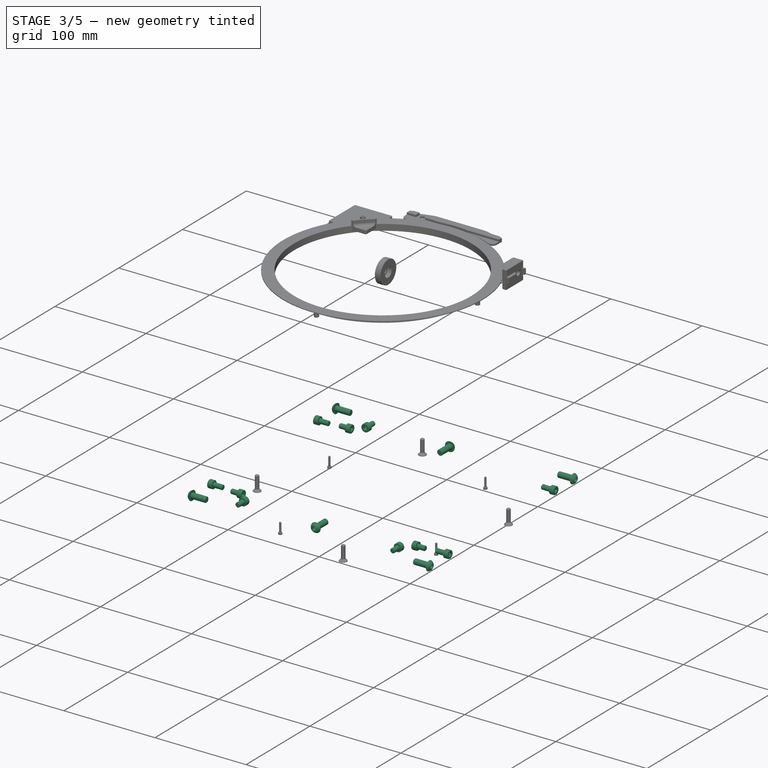
[diagram: stage 3 of 5 — iso view after this stage's code; geometry added in this stage tinted green]
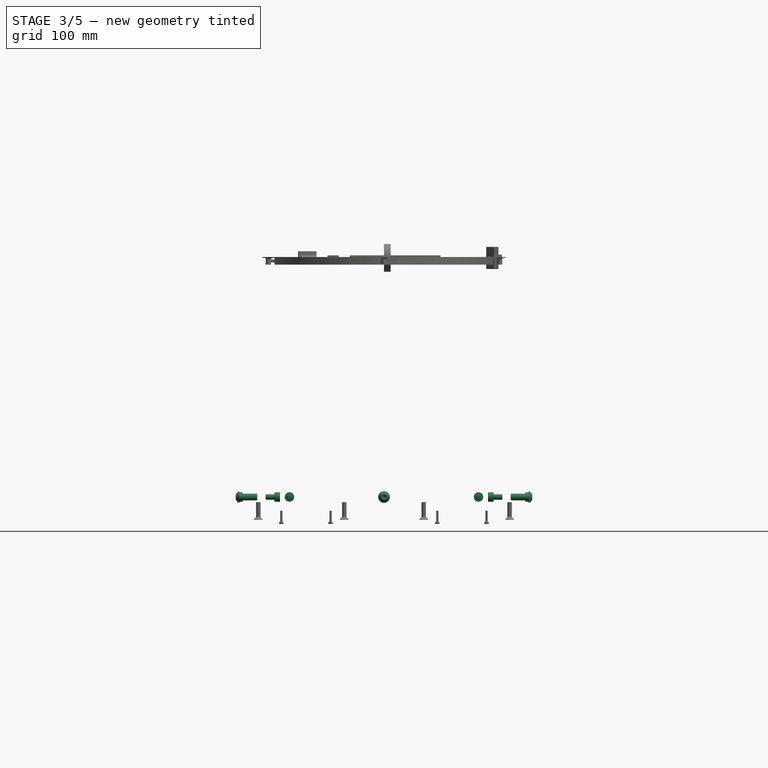
[diagram: stage 3 of 5 — front view after this stage's code; geometry added in this stage tinted green]
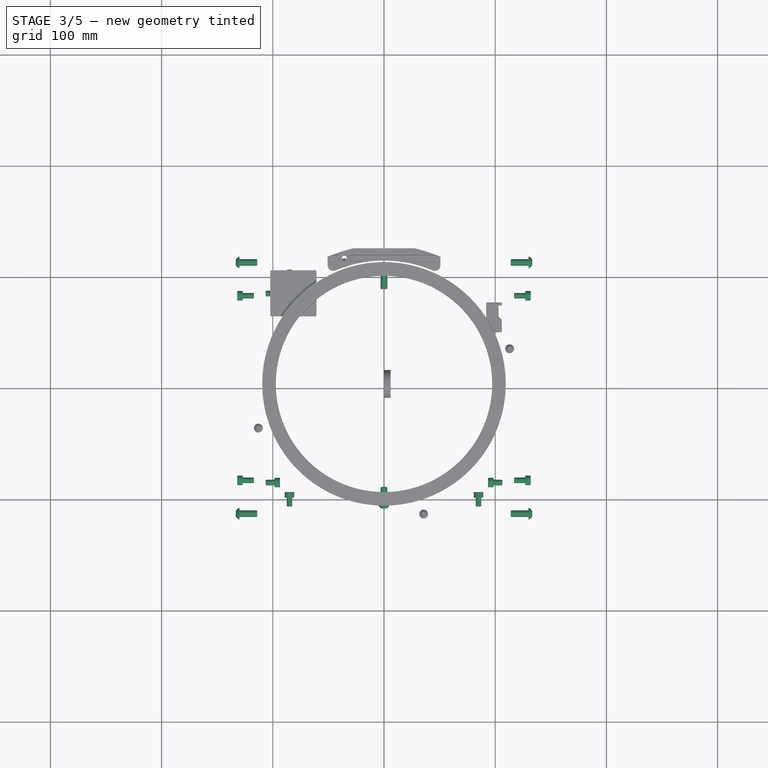
[diagram: stage 3 of 5 — top view after this stage's code; geometry added in this stage tinted green]
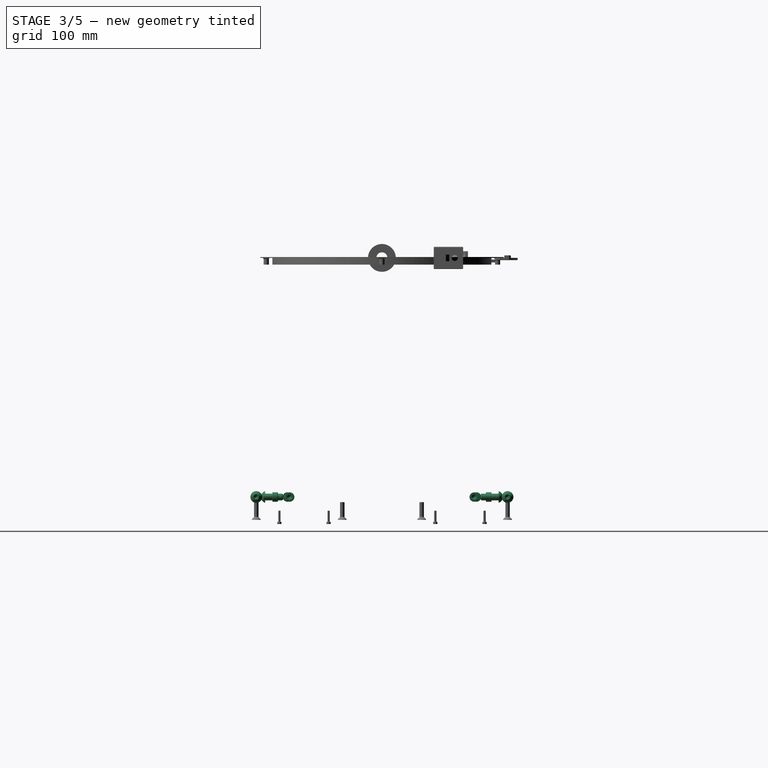
[diagram: stage 3 of 5 — right view after this stage's code; geometry added in this stage tinted green]
FEATURE [Sketcher::SketchObject] Sketch048  label="AFrame_PS_Sketch"
  FullyConstrained = true
  MapMode = 5
  Placement = pos=(0,0,0) rot=(1,0,0;1.5708rad)
  Support = -> [XZ_Plane043]
  sketch-geometry (75):
    g0: LineSegment StartX=3 StartY=10 StartZ=0 EndX=3 EndY=8 EndZ=0
    g1: LineSegment StartX=3 StartY=8 StartZ=0 EndX=6 EndY=8 EndZ=0
    g2: LineSegment StartX=2.58579 StartY=4 StartZ=0 EndX=-2.58579 EndY=4 EndZ=0
    g3: LineSegment StartX=-6 StartY=8 StartZ=0 EndX=-3 EndY=8 EndZ=0
    g4: LineSegment StartX=-3 StartY=8 StartZ=0 EndX=-3 EndY=10 EndZ=0
    g5: Circle CenterX=0 CenterY=0 CenterZ=0 NormalX=0 NormalY=0 NormalZ=1 AngleXU=0 Radius=2.1
    g6: LineSegment StartX=-10 StartY=3 StartZ=0 EndX=-8 EndY=3 EndZ=0
    g7: LineSegment StartX=-8 StartY=3 StartZ=0 EndX=-8 EndY=6 EndZ=0
    g8: LineSegment StartX=-4 StartY=2.58579 StartZ=0 EndX=-4 EndY=-2.58579 EndZ=0
    g9: LineSegment StartX=-8 StartY=-6 StartZ=0 EndX=-8 EndY=-3 EndZ=0
    g10: LineSegment StartX=-8 StartY=-3 StartZ=0 EndX=-10 EndY=-3 EndZ=0
    g11: LineSegment StartX=-3 StartY=-10 StartZ=0 EndX=-3 EndY=-8 EndZ=0
    g12: LineSegment StartX=-3 StartY=-8 StartZ=0 EndX=-6 EndY=-8 EndZ=0
    g13: LineSegment StartX=-2.58579 StartY=-4 StartZ=0 EndX=2.58579 EndY=-4 EndZ=0
    g14: LineSegment StartX=6 StartY=-8 StartZ=0 EndX=3 EndY=-8 EndZ=0
    g15: LineSegment StartX=3 StartY=-8 StartZ=0 EndX=3 EndY=-10 EndZ=0
    g16: LineSegment StartX=10 StartY=-3 StartZ=0 EndX=8 EndY=-3 EndZ=0
    g17: LineSegment StartX=8 StartY=-3 StartZ=0 EndX=8 EndY=-6 EndZ=0
    g18: LineSegment StartX=8 StartY=-6 StartZ=0 EndX=7.41421 EndY=-6 EndZ=0
    g19: LineSegment StartX=7.41421 StartY=-6 StartZ=0 EndX=4 EndY=-2.58579 EndZ=0
    g20: LineSegment StartX=4 StartY=-2.58579 StartZ=0 EndX=4 EndY=2.58579 EndZ=0
    g21: LineSegment StartX=4 StartY=2.58579 StartZ=0 EndX=7.41421 EndY=6 EndZ=0
    g22: LineSegment StartX=7.41421 StartY=6 StartZ=0 EndX=8 EndY=6 EndZ=0
    g23: LineSegment StartX=8 StartY=6 StartZ=0 EndX=8 EndY=3 EndZ=0
    g24: LineSegment StartX=8 StartY=3 StartZ=0 EndX=10 EndY=3 EndZ=0
    g25: LineSegment StartX=6 StartY=8 StartZ=0 EndX=6 EndY=7.41421 EndZ=0
    g26: LineSegment StartX=6 StartY=7.41421 StartZ=0 EndX=2.58579 EndY=4 EndZ=0
    g27: LineSegment StartX=-2.58579 StartY=4 StartZ=0 EndX=-6 EndY=7.41421 EndZ=0
    g28: LineSegment StartX=-6 StartY=7.41421 StartZ=0 EndX=-6 EndY=8 EndZ=0
    g29: LineSegment StartX=-8 StartY=6 StartZ=0 EndX=-7.41421 EndY=6 EndZ=0
    g30: LineSegment StartX=-7.41421 StartY=6 StartZ=0 EndX=-4 EndY=2.58579 EndZ=0
    g31: LineSegment StartX=-4 StartY=-2.58579 StartZ=0 EndX=-7.41421 EndY=-6 EndZ=0
    g32: LineSegment StartX=-7.41421 StartY=-6 StartZ=0 EndX=-8 EndY=-6 EndZ=0
    g33: LineSegment StartX=-2.58579 StartY=-4 StartZ=0 EndX=-6 EndY=-7.41421 EndZ=0
    g34: LineSegment StartX=-6 StartY=-7.41421 StartZ=0 EndX=-6 EndY=-8 EndZ=0
    g35: LineSegment StartX=2.58579 StartY=-4 StartZ=0 EndX=6 EndY=-7.41421 EndZ=0
    g36: LineSegment StartX=6 StartY=-7.41421 StartZ=0 EndX=6 EndY=-8 EndZ=0
    g37: LineSegment StartX=-4 StartY=2.58579 StartZ=0 EndX=-2.58579 EndY=4 EndZ=0
    g38: LineSegment StartX=-7.41421 StartY=7.41421 StartZ=0 EndX=7.41421 EndY=7.41421 EndZ=0
    g39: LineSegment StartX=7.41421 StartY=7.41421 StartZ=0 EndX=7.41421 EndY=-7.41421 EndZ=0
    g40: LineSegment StartX=7.41421 StartY=-7.41421 StartZ=0 EndX=-7.41421 EndY=-7.41421 EndZ=0
    g41: LineSegment StartX=-7.41421 StartY=-7.41421 StartZ=0 EndX=-7.41421 EndY=7.41421 EndZ=0
    g42: LineSegment StartX=-10 StartY=10 StartZ=0 EndX=10 EndY=10 EndZ=0
    g43: LineSegment StartX=10 StartY=10 StartZ=0 EndX=10 EndY=-10 EndZ=0
    g44: LineSegment StartX=10 StartY=-10 StartZ=0 EndX=-10 EndY=-10 EndZ=0
    g45: LineSegment StartX=-10 StartY=-10 StartZ=0 EndX=-10 EndY=10 EndZ=0
    g46: LineSegment StartX=4 StartY=4 StartZ=0 EndX=-4 EndY=4 EndZ=0
    g47: LineSegment StartX=-4 StartY=4 StartZ=0 EndX=-4 EndY=-4 EndZ=0
    g48: LineSegment StartX=-4 StartY=-4 StartZ=0 EndX=4 EndY=-4 EndZ=0
    g49: LineSegment StartX=4 StartY=-4 StartZ=0 EndX=4 EndY=4 EndZ=0
    g50: LineSegment StartX=-10 StartY=-10 StartZ=0 EndX=10 EndY=10 EndZ=0
    g51: LineSegment StartX=-10 StartY=10 StartZ=0 EndX=10 EndY=-10 EndZ=0
    g52: LineSegment StartX=2.58579 StartY=4 StartZ=0 EndX=4 EndY=2.58579 EndZ=0
    g53: LineSegment StartX=2.58579 StartY=-4 StartZ=0 EndX=4 EndY=-2.58579 EndZ=0
    g54: LineSegment StartX=-4 StartY=-2.58579 StartZ=0 EndX=-2.58579 EndY=-4 EndZ=0
    g55: LineSegment StartX=10 StartY=3 StartZ=0 EndX=3 EndY=10 EndZ=0
    g56: LineSegment StartX=-3 StartY=10 StartZ=0 EndX=-10 EndY=3 EndZ=0
    g57: LineSegment StartX=-10 StartY=-3 StartZ=0 EndX=-3 EndY=-10 EndZ=0
    g58: LineSegment StartX=3 StartY=-10 StartZ=0 EndX=10 EndY=-3 EndZ=0
    g59: ArcOfCircle CenterX=-9 CenterY=9 CenterZ=0 NormalX=0 NormalY=0 NormalZ=1 AngleXU=0 Radius=1 StartAngle=1.57078 EndAngle=3.14161
    g60: ArcOfCircle CenterX=9 CenterY=9 CenterZ=0 NormalX=0 NormalY=0 NormalZ=1 AngleXU=0 Radius=1 StartAngle=6.28316 EndAngle=7.854
    g61: ArcOfCircle CenterX=9 CenterY=-9 CenterZ=0 NormalX=0 NormalY=0 NormalZ=1 AngleXU=0 Radius=1 StartAngle=4.71238 EndAngle=6.28319
    g62: ArcOfCircle CenterX=-9 CenterY=-9 CenterZ=0 NormalX=0 NormalY=0 NormalZ=1 AngleXU=0 Radius=1 StartAngle=3.14159 EndAngle=4.71241
    g63: LineSegment StartX=-10 StartY=-9 StartZ=0 EndX=10 EndY=-9 EndZ=0
    g64: LineSegment StartX=-10 StartY=8.99998 StartZ=0 EndX=10 EndY=8.99998 EndZ=0
    g65: LineSegment StartX=-8.99998 StartY=10 StartZ=0 EndX=-8.99998 EndY=-10 EndZ=0
    g66: LineSegment StartX=8.99999 StartY=10 StartZ=0 EndX=8.99999 EndY=-10 EndZ=0
    g67: LineSegment StartX=-10 StartY=8.99998 StartZ=0 EndX=-10 EndY=3 EndZ=0
    g68: LineSegment StartX=-10 StartY=-3 StartZ=0 EndX=-10 EndY=-9 EndZ=0
    g69: LineSegment StartX=-8.99998 StartY=10 StartZ=0 EndX=-3 EndY=10 EndZ=0
    g70: LineSegment StartX=8.99999 StartY=10 StartZ=0 EndX=3 EndY=10 EndZ=0
    g71: LineSegment StartX=10 StartY=8.99998 StartZ=0 EndX=10 EndY=3 EndZ=0
    g72: LineSegment StartX=10 StartY=-9 StartZ=0 EndX=10 EndY=-3 EndZ=0
    g73: LineSegment StartX=8.99999 StartY=-10 StartZ=0 EndX=3 EndY=-10 EndZ=0
    g74: LineSegment StartX=-8.99998 StartY=-10 StartZ=0 EndX=-3 EndY=-10 EndZ=0
  constraints (212):
    c: Diameter(g5) = 4.2
    c: Coincident(g42,g43)
    c: Coincident(g43,g44)
    c: Coincident(g44,g45)
    c: Coincident(g45,g42)
    c: Horizontal(g44)
    c: Vertical(g45)
    c: Symmetric(g42,g43,g-1)
    c: Symmetric(g42,g42,g-2)
    c: Coincident(g5,g-1)
    c: Coincident(g38,g41)
    c: Coincident(g7,g29)
    c: Coincident(g29,g30)
    c: Coincident(g27,g28)
    c: Coincident(g3,g28)
    c: Coincident(g3,g4)
    c: Coincident(g6,g7)
    c: Coincident(g2,g27)
    c: Coincident(g2,g37)
    c: Coincident(g8,g30)
    c: Coincident(g8,g37)
    c: Coincident(g8,g31)
    c: Coincident(g13,g33)
    c: Coincident(g9,g10)
    c: Coincident(g11,g12)
    c: Coincident(g12,g34)
    c: Coincident(g33,g34)
    c: Coincident(g40,g41)
    c: Coincident(g31,g32)
    c: Coincident(g9,g32)
    c: Coincident(g14,g36)
    c: Coincident(g17,g18)
    c: Coincident(g39,g40)
    c: Coincident(g18,g19)
    c: Coincident(g35,g36)
    c: Coincident(g13,g35)
    c: Coincident(g19,g20)
    c: Coincident(g16,g17)
    c: Coincident(g0,g1)
    c: Coincident(g1,g25)
    c: Coincident(g22,g23)
    c: Coincident(g23,g24)
    c: Coincident(g21,g22)
    c: Coincident(g38,g39)
    c: Coincident(g25,g26)
    c: Coincident(g2,g26)
    c: Coincident(g20,g21)
    c: Horizontal(g1)
    c: Horizontal(g3)
    c: Horizontal(g12)
    c: Horizontal(g14)
    c: Vertical(g34)
    c: Vertical(g11)
    c: Vertical(g15)
    c: Vertical(g36)
    c: Vertical(g4)
    c: Vertical(g0)
    c: Vertical(g28)
    c: Vertical(g25)
    c: Vertical(g7)
    c: Vertical(g9)
    c: Vertical(g23)
    c: Vertical(g17)
    c: Horizontal(g29)
    c: Horizontal(g6)
    c: Horizontal(g10)
    c: Horizontal(g32)
    c: Horizontal(g22)
    c: Horizontal(g24)
    c: Horizontal(g16)
    c: Horizontal(g18)
    c: Parallel(g30,g27)
    c: Parallel(g27,g35)
    c: Parallel(g35,g19)
    c: Parallel(g21,g26)
    c: Parallel(g31,g33)
    c: Coincident(g46,g47)
    c: Coincident(g47,g48)
    c: Coincident(g48,g49)
    c: Coincident(g49,g46)
    c: Horizontal(g46)
    c: Horizontal(g48)
    c: Vertical(g47)
    c: Vertical(g49)
    c: Horizontal(g2)
    c: Horizontal(g13)
    c: Vertical(g8)
    c: Vertical(g20)
    c: PointOnObject(g2,g46)
    c: PointOnObject(g19,g49)
    c: PointOnObject(g13,g48)
    c: PointOnObject(g8,g47)
    c: Coincident(g50,g44)
    c: Coincident(g50,g42)
    c: Coincident(g51,g42)
    c: Coincident(g51,g43)
    c: PointOnObject(g39,g51)
    c: PointOnObject(g38,g50)
    c: PointOnObject(g38,g51)
    c: Vertical(g39)
    c: Vertical(g41)
    c: Horizontal(g38)
    c: Horizontal(g40)
    c: PointOnObject(g46,g50)
    c: PointOnObject(g46,g51)
    c: PointOnObject(g48,g51)
    c: Parallel(g27,g51)
    c: Parallel(g26,g50)
    c: Perpendicular(g51,g37)
    c: Parallel(g31,g26)
    c: PointOnObject(g4,g42)
    c: PointOnObject(g24,g43)
    c: PointOnObject(g6,g45)
    c: PointOnObject(g10,g45)
    c: PointOnObject(g29,g41)
    c: PointOnObject(g31,g41)
    c: PointOnObject(g33,g40)
    c: PointOnObject(g35,g40)
    c: PointOnObject(g18,g39)
    c: PointOnObject(g21,g39)
    c: PointOnObject(g25,g38)
    c: PointOnObject(g27,g38)
    c: Coincident(g52,g2)
    c: Coincident(g52,g20)
    c: Coincident(g53,g13)
    c: Coincident(g53,g19)
    c: Coincident(g54,g8)
    c: Coincident(g54,g13)
    c: Perpendicular(g50,g54)
    c: Perpendicular(g51,g53)
    c: Perpendicular(g50,g52)
    c: Equal(g37,g52)
    c: Equal(g52,g53)
    c: Equal(g53,g54)
    c: Distance(g37) = 2
    c: Coincident(g14,g15)
    c: PointOnObject(g6,g24)
    c: PointOnObject(g9,g16)
    c: PointOnObject(g11,g4)
    c: PointOnObject(g14,g0)
    c: PointOnObject(g11,g44)
    c: PointOnObject(g15,g44)
    c: DistanceX(g42) = 10
    c: DistanceY(g49,g49) = 8
    c: DistanceY(g18,g21) = 12
    c: Coincident(g56,g4)
    c: Coincident(g57,g10)
    c: Coincident(g58,g15)
    c: Perpendicular(g51,g58)
    c: Perpendicular(g50,g55)
    c: Perpendicular(g51,g56)
    c: Equal(g58,g57)
    c: Equal(g57,g55)
    c: DistanceY(g16,g24) = 6
    c: Equal(g42,g43)
    c: Coincident(g55,g0)
    c: Coincident(g55,g24)
    c: Coincident(g56,g6)
    c: Coincident(g11,g57)
    c: Coincident(g16,g58)
    c: DistanceX(g6,g6) = 2
    c: Equal(g6,g10)
    c: Equal(g10,g24)
    c: Equal(g24,g16)
    c: Equal(g16,g15)
    c: Equal(g15,g11)
    c: Equal(g11,g4)
    c: Equal(g4,g0)
    c: PointOnObject(g59,g51)
    c: PointOnObject(g59,g45)
    c: PointOnObject(g59,g42)
    c: PointOnObject(g60,g42)
    c: PointOnObject(g60,g43)
    c: PointOnObject(g61,g51)
    c: PointOnObject(g61,g43)
    c: PointOnObject(g61,g44)
    c: PointOnObject(g62,g50)
    c: PointOnObject(g62,g44)
    c: PointOnObject(g62,g45)
    c: Radius(g62) = 1
    c: Equal(g62,g59)
    c: Equal(g59,g60)
    c: Equal(g60,g61)
    c: Coincident(g63,g62)
    c: Coincident(g63,g61)
    c: Horizontal(g63)
    c: Coincident(g64,g59)
    c: Coincident(g64,g60)
    c: Horizontal(g64)
    c: Coincident(g65,g59)
    c: Coincident(g65,g62)
    c: Vertical(g65)
    c: Coincident(g66,g60)
    c: Coincident(g66,g61)
    c: Vertical(g66)
    c: PointOnObject(g62,g63)
    c: Coincident(g67,g59)
    c: Coincident(g67,g6)
    c: Coincident(g68,g10)
    c: Coincident(g68,g62)
    c: Coincident(g69,g59)
    c: Coincident(g69,g4)
    c: Coincident(g70,g60)
    c: Coincident(g70,g0)
    c: Coincident(g71,g60)
    c: Coincident(g71,g24)
    c: Coincident(g72,g61)
    c: Coincident(g72,g16)
    c: Coincident(g73,g61)
    c: Coincident(g73,g15)
    c: Coincident(g74,g62)
    c: Coincident(g74,g11)
FEATURE [PartDesign::Pad] Pad025  label="AFrame_PS_Pad"
  Direction = (0,-1,-2e-16)
  Length = 206
  Length2 = 100
  Midplane = true
  Placement = pos=(0,0,0) rot=(1,0,0;1.5708rad)
  Profile = -> Sketch048
  Type = 0
  expr: Length = <<Common>>#<<Parameters>>.boxsize_y - 40
FEATURE [PartDesign::Body] Body022056  label="FullRetainerNoKnob"
  Group = -> [Sketch256,Pad063,Sketch257,Sketch258,DatumLine001,Groove007,Pocket173,Fillet011]
  Origin = -> Origin110
  Placement = pos=(137,0,-82) rot=(0,0,1;0rad)
  Tip = -> Fillet011
  expr: .Placement.Base.x = <<Common>>#<<Parameters>>.boxsize_x / 2 + <<Common>>#<<Parameters>>.rail_width + 2 + <<Common>>#<<Parameters>>.rocker_plate
  expr: .Placement.Base.z = <<Common>>#<<Parameters>>.datum_rocker_z - <<Common>>#<<Parameters>>.rail_dia / 2 + <<Common>>#<<Parameters>>.rail_height
FEATURE [Sketcher::SketchObject] Sketch274  label="RockerSide_MasterSketch"
  FullyConstrained = true
  MapMode = 5
  Placement = pos=(0,0,0) rot=(0.57735,0.57735,0.57735;2.0944rad)
  Support = -> [YZ_Plane032]
  expr: Constraints[12] = <<Common>>#<<Parameters>>.datum_lowercell - <<Common>>#<<Parameters>>.datum_rocker_z
  expr: Constraints[13] = <<Common>>#<<Parameters>>.bolt_y
  expr: Constraints[1] = <<Common>>#<<Parameters>>.rail_dia
  expr: Constraints[2] = <<Common>>#<<Parameters>>.datum_rocker_z - <<Common>>#<<Parameters>>.datum_azbase
  expr: Constraints[33] = <<Common>>#<<Parameters>>.rail_dia - <<Common>>#<<Parameters>>.rail_height * 2
  expr: Constraints[6] = <<Common>>#<<Parameters>>.bolt_y
  sketch-geometry (14):
    g0: Circle CenterX=0 CenterY=215 CenterZ=0 NormalX=0 NormalY=0 NormalZ=1 AngleXU=0 Radius=200
    g1: Circle CenterX=0 CenterY=0 CenterZ=0 NormalX=0 NormalY=0 NormalZ=1 AngleXU=0 Radius=2.5
    g2: Circle CenterX=-113 CenterY=0 CenterZ=0 NormalX=0 NormalY=0 NormalZ=1 AngleXU=0 Radius=3
    g3: Circle CenterX=113 CenterY=0 CenterZ=0 NormalX=0 NormalY=0 NormalZ=1 AngleXU=0 Radius=3
    g4: Circle CenterX=113 CenterY=30 CenterZ=0 NormalX=0 NormalY=0 NormalZ=1 AngleXU=0 Radius=2.5
    g5: Circle CenterX=-113 CenterY=30 CenterZ=0 NormalX=0 NormalY=0 NormalZ=1 AngleXU=0 Radius=2.5
    g6: Circle CenterX=-113 CenterY=70 CenterZ=0 NormalX=0 NormalY=0 NormalZ=1 AngleXU=0 Radius=2.5
    g7: Circle CenterX=0 CenterY=31.1686 CenterZ=0 NormalX=0 NormalY=0 NormalZ=1 AngleXU=0 Radius=2.5
    g8: Circle CenterX=113 CenterY=70 CenterZ=0 NormalX=0 NormalY=0 NormalZ=1 AngleXU=0 Radius=2.5
    g9: Circle CenterX=0 CenterY=215 CenterZ=0 NormalX=0 NormalY=0 NormalZ=1 AngleXU=0 Radius=183.831
    g10: GeomPoint X=113 Y=70 Z=0
    g11: LineSegment StartX=-113 StartY=0 StartZ=0 EndX=-113 EndY=70 EndZ=0
    g12: LineSegment StartX=113 StartY=0 StartZ=0 EndX=113 EndY=70 EndZ=0
    g13: Circle CenterX=0 CenterY=215 CenterZ=0 NormalX=0 NormalY=0 NormalZ=1 AngleXU=0 Radius=165
  constraints (34):
    c: PointOnObject(g0,g-2)
    c: Diameter(g0) = 400
    c: DistanceY(g0) = 215
    c: Coincident(g1,g-1)
    c: PointOnObject(g3,g-1)
    c: PointOnObject(g7,g-2)
    c: DistanceX(g3) = 113
    c: Symmetric(g3,g2,g-2)
    c: Diameter(g2) = 6
    c: Equal(g2,g3)
    c: Coincident(g9,g0)
    c: PointOnObject(g10,g9)
    c: DistanceY(g0,g10) = -145
    c: DistanceX(g0,g10) = 113
    c: Diameter(g1) = 5
    c: Coincident(g11,g2)
    c: PointOnObject(g11,g9)
    c: Coincident(g12,g3)
    c: PointOnObject(g12,g9)
    c: Vertical(g12)
    c: Vertical(g11)
    c: PointOnObject(g5,g11)
    c: Coincident(g6,g11)
    c: PointOnObject(g7,g9)
    c: Coincident(g8,g12)
    c: Equal(g4,g8)
    c: Equal(g8,g7)
    c: Equal(g7,g6)
    c: Equal(g6,g5)
    c: Equal(g5,g1)
    c: Symmetric(g4,g5,g-2)
    c: DistanceY(g4) = 30
    c: Coincident(g13,g0)
    c: Diameter(g13) = 330
FEATURE [PartDesign::CoordinateSystem] Local_CS  label="LCS_AFrame_PS_Corner_FS"
  AttacherType = Attacher::AttachEngine3D
  AttachmentOffset = pos=(10,-103,0) rot=(0,0,1;0rad)
  MapMode = 5
  Placement = pos=(10,-103,0) rot=(0,0,1;0rad)
  Support = -> [XY_Plane043]
  expr: .AttachmentOffset.Base.y = -(<<Common>>#<<Parameters>>.boxsize_y / 2 - 20)
FEATURE [PartDesign::CoordinateSystem] Local_CS257  label="LCS_AFrame_PS_Corner_AS"
  AttacherType = Attacher::AttachEngine3D
  AttachmentOffset = pos=(10,103,0) rot=(0,0,-1;1.5708rad)
  MapMode = 5
  Placement = pos=(10,103,0) rot=(0,0,-1;1.5708rad)
  Support = -> [XY_Plane043]
  expr: .AttachmentOffset.Base.y = <<Common>>#<<Parameters>>.boxsize_y / 2 - 20
FEATURE [PartDesign::Body] Body029  label="AFrame_PS"
  Group = -> [Sketch048,Pad025,Local_CS104,Local_CS105,Local_CS,Local_CS257]
  Origin = -> Origin043
  Placement = pos=(113,0,-132) rot=(0,0,1;0rad)
  Tip = -> Pad025
  expr: .Placement.Base.x = <<Common>>#<<Parameters>>.bolt_x
  expr: .Placement.Base.z = <<Common>>#<<Parameters>>.datum_azbase
FEATURE [PartDesign::CoordinateSystem] Local_CS223  label="LCS_AFrame_AF_BoltC"
  AttacherType = Attacher::AttachEngine3D
  MapMode = 5
  Placement = pos=(0,0,0) rot=(1,0,0;1.5708rad)
  Support = -> [XZ_Plane045]
FEATURE [Sketcher::SketchObject] Sketch049  label="AFrame_AF_Sketch"
  FullyConstrained = true
  MapMode = 5
  Placement = pos=(0,0,0) rot=(0.57735,0.57735,0.57735;2.0944rad)
  Support = -> [YZ_Plane045]
  sketch-geometry (75):
    g0: LineSegment StartX=3 StartY=10 StartZ=0 EndX=3 EndY=8 EndZ=0
    g1: LineSegment StartX=3 StartY=8 StartZ=0 EndX=6 EndY=8 EndZ=0
    g2: LineSegment StartX=2.58579 StartY=4 StartZ=0 EndX=-2.58579 EndY=4 EndZ=0
    g3: LineSegment StartX=-6 StartY=8 StartZ=0 EndX=-3 EndY=8 EndZ=0
    g4: LineSegment StartX=-3 StartY=8 StartZ=0 EndX=-3 EndY=10 EndZ=0
    g5: Circle CenterX=0 CenterY=0 CenterZ=0 NormalX=0 NormalY=0 NormalZ=1 AngleXU=0 Radius=2.1
    g6: LineSegment StartX=-10 StartY=3 StartZ=0 EndX=-8 EndY=3 EndZ=0
    g7: LineSegment StartX=-8 StartY=3 StartZ=0 EndX=-8 EndY=6 EndZ=0
    g8: LineSegment StartX=-4 StartY=2.58579 StartZ=0 EndX=-4 EndY=-2.58579 EndZ=0
    g9: LineSegment StartX=-8 StartY=-6 StartZ=0 EndX=-8 EndY=-3 EndZ=0
    g10: LineSegment StartX=-8 StartY=-3 StartZ=0 EndX=-10 EndY=-3 EndZ=0
    g11: LineSegment StartX=-3 StartY=-10 StartZ=0 EndX=-3 EndY=-8 EndZ=0
    g12: LineSegment StartX=-3 StartY=-8 StartZ=0 EndX=-6 EndY=-8 EndZ=0
    g13: LineSegment StartX=-2.58579 StartY=-4 StartZ=0 EndX=2.58579 EndY=-4 EndZ=0
    g14: LineSegment StartX=6 StartY=-8 StartZ=0 EndX=3 EndY=-8 EndZ=0
    g15: LineSegment StartX=3 StartY=-8 StartZ=0 EndX=3 EndY=-10 EndZ=0
    g16: LineSegment StartX=10 StartY=-3 StartZ=0 EndX=8 EndY=-3 EndZ=0
    g17: LineSegment StartX=8 StartY=-3 StartZ=0 EndX=8 EndY=-6 EndZ=0
    g18: LineSegment StartX=8 StartY=-6 StartZ=0 EndX=7.41421 EndY=-6 EndZ=0
    g19: LineSegment StartX=7.41421 StartY=-6 StartZ=0 EndX=4 EndY=-2.58579 EndZ=0
    g20: LineSegment StartX=4 StartY=-2.58579 StartZ=0 EndX=4 EndY=2.58579 EndZ=0
    g21: LineSegment StartX=4 StartY=2.58579 StartZ=0 EndX=7.41421 EndY=6 EndZ=0
    g22: LineSegment StartX=7.41421 StartY=6 StartZ=0 EndX=8 EndY=6 EndZ=0
    g23: LineSegment StartX=8 StartY=6 StartZ=0 EndX=8 EndY=3 EndZ=0
    g24: LineSegment StartX=8 StartY=3 StartZ=0 EndX=10 EndY=3 EndZ=0
    g25: LineSegment StartX=6 StartY=8 StartZ=0 EndX=6 EndY=7.41421 EndZ=0
    g26: LineSegment StartX=6 StartY=7.41421 StartZ=0 EndX=2.58579 EndY=4 EndZ=0
    g27: LineSegment StartX=-2.58579 StartY=4 StartZ=0 EndX=-6 EndY=7.41421 EndZ=0
    g28: LineSegment StartX=-6 StartY=7.41421 StartZ=0 EndX=-6 EndY=8 EndZ=0
    g29: LineSegment StartX=-8 StartY=6 StartZ=0 EndX=-7.41421 EndY=6 EndZ=0
    g30: LineSegment StartX=-7.41421 StartY=6 StartZ=0 EndX=-4 EndY=2.58579 EndZ=0
    g31: LineSegment StartX=-4 StartY=-2.58579 StartZ=0 EndX=-7.41421 EndY=-6 EndZ=0
    g32: LineSegment StartX=-7.41421 StartY=-6 StartZ=0 EndX=-8 EndY=-6 EndZ=0
    g33: LineSegment StartX=-2.58579 StartY=-4 StartZ=0 EndX=-6 EndY=-7.41421 EndZ=0
    g34: LineSegment StartX=-6 StartY=-7.41421 StartZ=0 EndX=-6 EndY=-8 EndZ=0
    g35: LineSegment StartX=2.58579 StartY=-4 StartZ=0 EndX=6 EndY=-7.41421 EndZ=0
    g36: LineSegment StartX=6 StartY=-7.41421 StartZ=0 EndX=6 EndY=-8 EndZ=0
    g37: LineSegment StartX=-4 StartY=2.58579 StartZ=0 EndX=-2.58579 EndY=4 EndZ=0
    g38: LineSegment StartX=-7.41421 StartY=7.41421 StartZ=0 EndX=7.41421 EndY=7.41421 EndZ=0
    g39: LineSegment StartX=7.41421 StartY=7.41421 StartZ=0 EndX=7.41421 EndY=-7.41421 EndZ=0
    g40: LineSegment StartX=7.41421 StartY=-7.41421 StartZ=0 EndX=-7.41421 EndY=-7.41421 EndZ=0
    g41: LineSegment StartX=-7.41421 StartY=-7.41421 StartZ=0 EndX=-7.41421 EndY=7.41421 EndZ=0
    g42: LineSegment StartX=-10 StartY=10 StartZ=0 EndX=10 EndY=10 EndZ=0
    g43: LineSegment StartX=10 StartY=10 StartZ=0 EndX=10 EndY=-10 EndZ=0
    g44: LineSegment StartX=10 StartY=-10 StartZ=0 EndX=-10 EndY=-10 EndZ=0
    g45: LineSegment StartX=-10 StartY=-10 StartZ=0 EndX=-10 EndY=10 EndZ=0
    g46: LineSegment StartX=4 StartY=4 StartZ=0 EndX=-4 EndY=4 EndZ=0
    g47: LineSegment StartX=-4 StartY=4 StartZ=0 EndX=-4 EndY=-4 EndZ=0
    g48: LineSegment StartX=-4 StartY=-4 StartZ=0 EndX=4 EndY=-4 EndZ=0
    g49: LineSegment StartX=4 StartY=-4 StartZ=0 EndX=4 EndY=4 EndZ=0
    g50: LineSegment StartX=-10 StartY=-10 StartZ=0 EndX=10 EndY=10 EndZ=0
    g51: LineSegment StartX=-10 StartY=10 StartZ=0 EndX=10 EndY=-10 EndZ=0
    g52: LineSegment StartX=2.58579 StartY=4 StartZ=0 EndX=4 EndY=2.58579 EndZ=0
    g53: LineSegment StartX=2.58579 StartY=-4 StartZ=0 EndX=4 EndY=-2.58579 EndZ=0
    g54: LineSegment StartX=-4 StartY=-2.58579 StartZ=0 EndX=-2.58579 EndY=-4 EndZ=0
    g55: LineSegment StartX=10 StartY=3 StartZ=0 EndX=3 EndY=10 EndZ=0
    g56: LineSegment StartX=-3 StartY=10 StartZ=0 EndX=-10 EndY=3 EndZ=0
    g57: LineSegment StartX=-10 StartY=-3 StartZ=0 EndX=-3 EndY=-10 EndZ=0
    g58: LineSegment StartX=3 StartY=-10 StartZ=0 EndX=10 EndY=-3 EndZ=0
    g59: ArcOfCircle CenterX=-9 CenterY=9 CenterZ=0 NormalX=0 NormalY=0 NormalZ=1 AngleXU=0 Radius=1 StartAngle=1.57078 EndAngle=3.14161
    g60: ArcOfCircle CenterX=9 CenterY=9 CenterZ=0 NormalX=0 NormalY=0 NormalZ=1 AngleXU=0 Radius=1 StartAngle=6.28316 EndAngle=7.854
    g61: ArcOfCircle CenterX=9 CenterY=-9 CenterZ=0 NormalX=0 NormalY=0 NormalZ=1 AngleXU=0 Radius=1 StartAngle=4.71238 EndAngle=6.28319
    g62: ArcOfCircle CenterX=-9 CenterY=-9 CenterZ=0 NormalX=0 NormalY=0 NormalZ=1 AngleXU=0 Radius=1 StartAngle=3.14159 EndAngle=4.71241
    g63: LineSegment StartX=-10 StartY=-9 StartZ=0 EndX=10 EndY=-9 EndZ=0
    g64: LineSegment StartX=-10 StartY=8.99998 StartZ=0 EndX=10 EndY=8.99998 EndZ=0
    g65: LineSegment StartX=-8.99998 StartY=10 StartZ=0 EndX=-8.99998 EndY=-10 EndZ=0
    g66: LineSegment StartX=8.99999 StartY=10 StartZ=0 EndX=8.99999 EndY=-10 EndZ=0
    g67: LineSegment StartX=-10 StartY=8.99998 StartZ=0 EndX=-10 EndY=3 EndZ=0
    g68: LineSegment StartX=-10 StartY=-3 StartZ=0 EndX=-10 EndY=-9 EndZ=0
    g69: LineSegment StartX=-8.99998 StartY=10 StartZ=0 EndX=-3 EndY=10 EndZ=0
    g70: LineSegment StartX=8.99999 StartY=10 StartZ=0 EndX=3 EndY=10 EndZ=0
    g71: LineSegment StartX=10 StartY=8.99998 StartZ=0 EndX=10 EndY=3 EndZ=0
    g72: LineSegment StartX=10 StartY=-9 StartZ=0 EndX=10 EndY=-3 EndZ=0
    g73: LineSegment StartX=8.99999 StartY=-10 StartZ=0 EndX=3 EndY=-10 EndZ=0
    g74: LineSegment StartX=-8.99998 StartY=-10 StartZ=0 EndX=-3 EndY=-10 EndZ=0
  constraints (212):
    c: Diameter(g5) = 4.2
    c: Coincident(g42,g43)
    c: Coincident(g43,g44)
    c: Coincident(g44,g45)
    c: Coincident(g45,g42)
    c: Horizontal(g44)
    c: Vertical(g45)
    c: Symmetric(g42,g43,g-1)
    c: Symmetric(g42,g42,g-2)
    c: Coincident(g5,g-1)
    c: Coincident(g38,g41)
    c: Coincident(g7,g29)
    c: Coincident(g29,g30)
    c: Coincident(g27,g28)
    c: Coincident(g3,g28)
    c: Coincident(g3,g4)
    c: Coincident(g6,g7)
    c: Coincident(g2,g27)
    c: Coincident(g2,g37)
    c: Coincident(g8,g30)
    c: Coincident(g8,g37)
    c: Coincident(g8,g31)
    c: Coincident(g13,g33)
    c: Coincident(g9,g10)
    c: Coincident(g11,g12)
    c: Coincident(g12,g34)
    c: Coincident(g33,g34)
    c: Coincident(g40,g41)
    c: Coincident(g31,g32)
    c: Coincident(g9,g32)
    c: Coincident(g14,g36)
    c: Coincident(g17,g18)
    c: Coincident(g39,g40)
    c: Coincident(g18,g19)
    c: Coincident(g35,g36)
    c: Coincident(g13,g35)
    c: Coincident(g19,g20)
    c: Coincident(g16,g17)
    c: Coincident(g0,g1)
    c: Coincident(g1,g25)
    c: Coincident(g22,g23)
    c: Coincident(g23,g24)
    c: Coincident(g21,g22)
    c: Coincident(g38,g39)
    c: Coincident(g25,g26)
    c: Coincident(g2,g26)
    c: Coincident(g20,g21)
    c: Horizontal(g1)
    c: Horizontal(g3)
    c: Horizontal(g12)
    c: Horizontal(g14)
    c: Vertical(g34)
    c: Vertical(g11)
    c: Vertical(g15)
    c: Vertical(g36)
    c: Vertical(g4)
    c: Vertical(g0)
    c: Vertical(g28)
    c: Vertical(g25)
    c: Vertical(g7)
    c: Vertical(g9)
    c: Vertical(g23)
    c: Vertical(g17)
    c: Horizontal(g29)
    c: Horizontal(g6)
    c: Horizontal(g10)
    c: Horizontal(g32)
    c: Horizontal(g22)
    c: Horizontal(g24)
    c: Horizontal(g16)
    c: Horizontal(g18)
    c: Parallel(g30,g27)
    c: Parallel(g27,g35)
    c: Parallel(g35,g19)
    c: Parallel(g21,g26)
    c: Parallel(g31,g33)
    c: Coincident(g46,g47)
    c: Coincident(g47,g48)
    c: Coincident(g48,g49)
    c: Coincident(g49,g46)
    c: Horizontal(g46)
    c: Horizontal(g48)
    c: Vertical(g47)
    c: Vertical(g49)
    c: Horizontal(g2)
    c: Horizontal(g13)
    c: Vertical(g8)
    c: Vertical(g20)
    c: PointOnObject(g2,g46)
    c: PointOnObject(g19,g49)
    c: PointOnObject(g13,g48)
    c: PointOnObject(g8,g47)
    c: Coincident(g50,g44)
    c: Coincident(g50,g42)
    c: Coincident(g51,g42)
    c: Coincident(g51,g43)
    c: PointOnObject(g39,g51)
    c: PointOnObject(g38,g50)
    c: PointOnObject(g38,g51)
    c: Vertical(g39)
    c: Vertical(g41)
    c: Horizontal(g38)
    c: Horizontal(g40)
    c: PointOnObject(g46,g50)
    c: PointOnObject(g46,g51)
    c: PointOnObject(g48,g51)
    c: Parallel(g27,g51)
    c: Parallel(g26,g50)
    c: Perpendicular(g51,g37)
    c: Parallel(g31,g26)
    c: PointOnObject(g4,g42)
    c: PointOnObject(g24,g43)
    c: PointOnObject(g6,g45)
    c: PointOnObject(g10,g45)
    c: PointOnObject(g29,g41)
    c: PointOnObject(g31,g41)
    c: PointOnObject(g33,g40)
    c: PointOnObject(g35,g40)
    c: PointOnObject(g18,g39)
    c: PointOnObject(g21,g39)
    c: PointOnObject(g25,g38)
    c: PointOnObject(g27,g38)
    c: Coincident(g52,g2)
    c: Coincident(g52,g20)
    c: Coincident(g53,g13)
    c: Coincident(g53,g19)
    c: Coincident(g54,g8)
    c: Coincident(g54,g13)
    c: Perpendicular(g50,g54)
    c: Perpendicular(g51,g53)
    c: Perpendicular(g50,g52)
    c: Equal(g37,g52)
    c: Equal(g52,g53)
    c: Equal(g53,g54)
    c: Distance(g37) = 2
    c: Coincident(g14,g15)
    c: PointOnObject(g6,g24)
    c: PointOnObject(g9,g16)
    c: PointOnObject(g11,g4)
    c: PointOnObject(g14,g0)
    c: PointOnObject(g11,g44)
    c: PointOnObject(g15,g44)
    c: DistanceX(g42) = 10
    c: DistanceY(g49,g49) = 8
    c: DistanceY(g18,g21) = 12
    c: Coincident(g56,g4)
    c: Coincident(g57,g10)
    c: Coincident(g58,g15)
    c: Perpendicular(g51,g58)
    c: Perpendicular(g50,g55)
    c: Perpendicular(g51,g56)
    c: Equal(g58,g57)
    c: Equal(g57,g55)
    c: DistanceY(g16,g24) = 6
    c: Equal(g42,g43)
    c: Coincident(g55,g0)
    c: Coincident(g55,g24)
    c: Coincident(g56,g6)
    c: Coincident(g11,g57)
    c: Coincident(g16,g58)
    c: DistanceX(g6,g6) = 2
    c: Equal(g6,g10)
    c: Equal(g10,g24)
    c: Equal(g24,g16)
    c: Equal(g16,g15)
    c: Equal(g15,g11)
    c: Equal(g11,g4)
    c: Equal(g4,g0)
    c: PointOnObject(g59,g51)
    c: PointOnObject(g59,g45)
    c: PointOnObject(g59,g42)
    c: PointOnObject(g60,g42)
    c: PointOnObject(g60,g43)
    c: PointOnObject(g61,g51)
    c: PointOnObject(g61,g43)
    c: PointOnObject(g61,g44)
    c: PointOnObject(g62,g50)
    c: PointOnObject(g62,g44)
    c: PointOnObject(g62,g45)
    c: Radius(g62) = 1
    c: Equal(g62,g59)
    c: Equal(g59,g60)
    c: Equal(g60,g61)
    c: Coincident(g63,g62)
    c: Coincident(g63,g61)
    c: Horizontal(g63)
    c: Coincident(g64,g59)
    c: Coincident(g64,g60)
    c: Horizontal(g64)
    c: Coincident(g65,g59)
    c: Coincident(g65,g62)
    c: Vertical(g65)
    c: Coincident(g66,g60)
    c: Coincident(g66,g61)
    c: Vertical(g66)
    c: PointOnObject(g62,g63)
    c: Coincident(g67,g59)
    c: Coincident(g67,g6)
    c: Coincident(g68,g10)
    c: Coincident(g68,g62)
    c: Coincident(g69,g59)
    c: Coincident(g69,g4)
    c: Coincident(g70,g60)
    c: Coincident(g70,g0)
    c: Coincident(g71,g60)
    c: Coincident(g71,g24)
    c: Coincident(g72,g61)
    c: Coincident(g72,g16)
    c: Coincident(g73,g61)
    c: Coincident(g73,g15)
    c: Coincident(g74,g62)
    c: Coincident(g74,g11)
FEATURE [PartDesign::Pad] Pad026  label="AFrame_AF_Pad"
  Direction = (1,-2e-16,3e-16)
  Length = 246
  Length2 = 100
  Midplane = true
  Placement = pos=(0,0,0) rot=(0.57735,0.57735,0.57735;2.0944rad)
  Profile = -> Sketch049
  Type = 0
  expr: Length = <<Common>>#<<Parameters>>.boxsize_x
FEATURE [Sketcher::SketchObject] Sketch058  label="AFrame_AF_Hole_Sketch"
  FullyConstrained = true
  MapMode = 5
  Placement = pos=(0,0,0) rot=(1,0,0;1.5708rad)
  Support = -> [XZ_Plane045]
  sketch-geometry (1):
    g0: Circle CenterX=0 CenterY=0 CenterZ=0 NormalX=0 NormalY=0 NormalZ=1 AngleXU=0 Radius=2.5
  constraints (2):
    c: Coincident(g0,g-1)
    c: Diameter(g0) = 5
FEATURE [PartDesign::Pocket] Pocket012  label="AFrame_AF_Hole"
  BaseFeature = -> Pad026
  Direction = (0,1,2e-16)
  Length = 5
  Length2 = 100
  Midplane = true
  Placement = pos=(0,0,0) rot=(0.57735,0.57735,0.57735;2.0944rad)
  Profile = -> Sketch058
  Type = 1
FEATURE [PartDesign::Pocket] Pocket203  label="SideGuardPost_CBSSupport"
  BaseFeature = -> Pocket202
  Direction = (-1,1e-16,-1e-16)
  Length = 0.2
  Length2 = 5
  Placement = pos=(0,0,0) rot=(0.57735,0.57735,0.57735;2.0944rad)
  Profile = -> Sketch342
  ReferenceAxis = -> Sketch342 [N_Axis]
  Type = 0
FEATURE [PartDesign::Chamfer] Chamfer004  label="SideGuardPost_Chamfer"
  Angle = 45
  Base = -> Pocket203 [Face51]
  BaseFeature = -> Pocket203
  ChamferType = 0
  FlipDirection = false
  Placement = pos=(0,0,0) rot=(0.57735,0.57735,0.57735;2.0944rad)
  Size = 0.4
  Size2 = 1
  SupportTransform = false
  UseAllEdges = false
FEATURE [PartDesign::CoordinateSystem] LCS_Origin
  AttacherType = Attacher::AttachEngine3D
  MapMode = 2
  Support = -> [X_Axis125]
FEATURE [App::DocumentObjectGroup] Constraints
FEATURE [App::FeaturePython] Variables  # WARN: FeaturePython — macro-defined, semantics opaque (R4)
  Type = App::PropertyContainer
FEATURE [App::DocumentObjectGroup] Configurations
FEATURE [App::Link] AFrame_C  label="AFrame_C001"
  AttachedBy = #Local_CS219
  AttachedTo = Parent Assembly#LCS_Origin
  LinkPlacement = pos=(0,0,-215) rot=(0,0,1;0rad)
  LinkedObject = -> Body035
  Placement = pos=(0,0,-215) rot=(0,0,1;0rad)
  SolverId = Asm4EE
  expr: Placement = LCS_Origin.Placement * AttachmentOffset * Local_CS219.Placement ^ -1
FEATURE [App::Link] AFrame_A
  AttachedBy = #Local_CS223
  AttachedTo = AFrame_C#Local_CS101
  AttachmentOffset = pos=(0,0,10) rot=(0,0,1;4.71239rad)
  LinkPlacement = pos=(-1.1e-15,113,-215) rot=(1,0,0;3.14159rad)
  LinkedObject = -> Body031
  Placement = pos=(-1.1e-15,113,-215) rot=(1,0,0;3.14159rad)
  SolverId = Asm4EE
  expr: Placement = AFrame_C.Placement * Local_CS101.Placement * AttachmentOffset * Local_CS223.Placement ^ -1
FEATURE [App::Link] AFrame_F  label="AFrame_F001"
  AttachedBy = #Local_CS223
  AttachedTo = AFrame_C#Local_CS102
  AttachmentOffset = pos=(0,0,10) rot=(0,0,1;4.71239rad)
  LinkPlacement = pos=(-1.1e-15,-113,-215) rot=(0,0,1;0rad)
  LinkedObject = -> Body031
  Placement = pos=(-1.1e-15,-113,-215) rot=(0,0,1;0rad)
  SolverId = Asm4EE
  expr: Placement = AFrame_C.Placement * Local_CS102.Placement * AttachmentOffset * Local_CS223.Placement ^ -1
FEATURE [App::Link] AFrame_P
  AttachedBy = #Local_CS104
  AttachedTo = AFrame_F#Local_CS221
  AttachmentOffset = pos=(0,-10,0) rot=(-0.57735,0.57735,-0.57735;2.0944rad)
  LinkPlacement = pos=(113,-8.53e-14,-215) rot=(0,-1,0;3.14159rad)
  LinkedObject = -> Body029
  Placement = pos=(113,-8.53e-14,-215) rot=(0,-1,0;3.14159rad)
  SolverId = Asm4EE
  expr: Placement = AFrame_F.Placement * Local_CS221.Placement * AttachmentOffset * Local_CS104.Placement ^ -1
FEATURE [App::Link] AFrame_S  label="AFrame_S001"
  AttachedBy = #Local_CS
  AttachedTo = AFrame_F#Local_CS222
  AttachmentOffset = pos=(0,-10,0) rot=(0.707107,0,-0.707107;3.14159rad)
  LinkPlacement = pos=(-113,8.53e-14,-215) rot=(0,-1,0;3.14159rad)
  LinkedObject = -> Body029
  Placement = pos=(-113,8.53e-14,-215) rot=(0,-1,0;3.14159rad)
  SolverId = Asm4EE
  expr: Placement = AFrame_F.Placement * Local_CS222.Placement * AttachmentOffset * Local_CS.Placement ^ -1
FEATURE [Part::Mirroring] Part__Mirroring  label="SideGuardPost_Chamfer (Mirror #1)"
  Base = (0,0,0)
  Normal = (1,0,0)
  Source = -> Chamfer004
FEATURE [PartDesign::FeatureBase] BaseFeature001  label="SideGuardPost_Mirror_BaseFeature"
  BaseFeature = -> Part__Mirroring
FEATURE [Part::FeaturePython] Screw006  label="M5x8-Screw079"  # Fasteners workbench fastener (typed FeaturePython)
  AttachedBy = Origin
  AttachedTo = _020Bracket_BaseAS#Local_CS098
  Placement = pos=(-98.5,85,-215) rot=(0.57735,-0.57735,0.57735;4.18879rad)
  SolverId = Asm4EE
  diameter = 6
  invert = false
  leftHanded = false
  length = 0
  lengthCustom = 8
  matchOuter = false
  offset = 0
  thread = false
  type = 45
  expr: Placement = _020Bracket_BaseAS.Placement * Common#Local_CS098.Placement * AttachmentOffset
FEATURE [Part::FeaturePython] Screw007  label="M5x8-Screw080"  # Fasteners workbench fastener (typed FeaturePython)
  AttachedBy = Origin
  AttachedTo = _020Bracket_BaseAS#Local_CS099
  Placement = pos=(-85,98.5,-215) rot=(0.57735,-0.57735,0.57735;2.0944rad)
  SolverId = Asm4EE
  diameter = 6
  invert = false
  leftHanded = false
  length = 0
  lengthCustom = 8
  matchOuter = false
  offset = 0
  thread = false
  type = 45
  expr: Placement = _020Bracket_BaseAS.Placement * Common#Local_CS099.Placement * AttachmentOffset
FEATURE [Part::FeaturePython] Screw008  label="M5x8-Screw081"  # Fasteners workbench fastener (typed FeaturePython)
  AttachedBy = Origin
  AttachedTo = _020Bracket_BaseFP#Local_CS098
  Placement = pos=(98.5,-85,-215) rot=(0.57735,0.57735,-0.57735;4.18879rad)
  SolverId = Asm4EE
  diameter = 6
  invert = false
  leftHanded = false
  length = 0
  lengthCustom = 8
  matchOuter = false
  offset = 0
  thread = false
  type = 45
  expr: Placement = _020Bracket_BaseFP.Placement * Common#Local_CS098.Placement * AttachmentOffset
FEATURE [Part::FeaturePython] Screw009  label="M5x8-Screw082"  # Fasteners workbench fastener (typed FeaturePython)
  AttachedBy = Origin
  AttachedTo = _020Bracket_BaseFP#Local_CS099
  Placement = pos=(85,-98.5,-215) rot=(0.57735,0.57735,0.57735;4.18879rad)
  SolverId = Asm4EE
  diameter = 6
  invert = false
  leftHanded = false
  length = 0
  lengthCustom = 8
  matchOuter = false
  offset = 0
  thread = false
  type = 45
  expr: Placement = _020Bracket_BaseFP.Placement * Common#Local_CS099.Placement * AttachmentOffset
FEATURE [Part::FeaturePython] Screw010  label="M5x8-Screw083"  # Fasteners workbench fastener (typed FeaturePython)
  AttachedBy = Origin
  AttachedTo = _020Bracket_BaseFS#Local_CS098
  Placement = pos=(-85,-98.5,-215) rot=(-1,0,0;1.5708rad)
  SolverId = Asm4EE
  diameter = 6
  invert = false
  leftHanded = false
  length = 0
  lengthCustom = 8
  matchOuter = false
  offset = 0
  thread = false
  type = 45
  expr: Placement = _020Bracket_BaseFS.Placement * Common#Local_CS098.Placement * AttachmentOffset
FEATURE [Part::FeaturePython] Screw011  label="M5x8-Screw084"  # Fasteners workbench fastener (typed FeaturePython)
  AttachedBy = Origin
  AttachedTo = _020Bracket_BaseFS#Local_CS099
  Placement = pos=(-98.5,-85,-215) rot=(0.707107,0,0.707107;3.14159rad)
  SolverId = Asm4EE
  diameter = 6
  invert = false
  leftHanded = false
  length = 0
  lengthCustom = 8
  matchOuter = false
  offset = 0
  thread = false
  type = 45
  expr: Placement = _020Bracket_BaseFS.Placement * Common#Local_CS099.Placement * AttachmentOffset
FEATURE [Part::FeaturePython] Screw012  label="M5x10-Screw"  # Fasteners workbench fastener (typed FeaturePython)
  AttachedBy = Origin
  AttachedTo = SideGuardPost_AP#Local_CS259
  AttachmentOffset = pos=(0,0,4) rot=(0,0,1;0rad)
  Placement = pos=(127,83,-215) rot=(0.57735,-0.57735,0.57735;4.18879rad)
  SolverId = Asm4EE
  diameter = 6
  invert = false
  leftHanded = false
  length = 1
  lengthCustom = 10
  matchOuter = false
  offset = 0
  thread = false
  type = 45
  expr: Placement = SideGuardPost_AP.Placement * Local_CS259.Placement * AttachmentOffset
FEATURE [Part::FeaturePython] Screw013  label="M5x10-Screw050"  # Fasteners workbench fastener (typed FeaturePython)
  AttachedBy = Origin
  AttachedTo = SideGuardPost_FS#Local_CS259
  AttachmentOffset = pos=(0,0,4) rot=(0,0,1;0rad)
  Placement = pos=(-127,-83,-215) rot=(0.57735,0.57735,-0.57735;4.18879rad)
  SolverId = Asm4EE
  diameter = 6
  invert = false
  leftHanded = false
  length = 1
  lengthCustom = 10
  matchOuter = false
  offset = 0
  thread = false
  type = 45
  expr: Placement = SideGuardPost_FS.Placement * Local_CS259.Placement * AttachmentOffset
FEATURE [Part::FeaturePython] Screw014  label="M5x10-Screw051"  # Fasteners workbench fastener (typed FeaturePython)
  AttachedBy = Origin
  AttachedTo = SideGuardPostAS#Local_CS261
  AttachmentOffset = pos=(0,0,4) rot=(0,0,1;0rad)
  Placement = pos=(-127,83,-215) rot=(0.57735,-0.57735,-0.57735;2.0944rad)
  SolverId = Asm4EE
  diameter = 6
  invert = false
  leftHanded = false
  length = 1
  lengthCustom = 10
  matchOuter = false
  offset = 0
  thread = false
  type = 45
  expr: Placement = SideGuardPostAS.Placement * Local_CS261.Placement * AttachmentOffset
FEATURE [Part::FeaturePython] Screw015  label="M5x10-Screw052"  # Fasteners workbench fastener (typed FeaturePython)
  AttachedBy = Origin
  AttachedTo = SideGuardPostFP#Local_CS261
  AttachmentOffset = pos=(0,0,4) rot=(0,0,1;0rad)
  Placement = pos=(127,-83,-215) rot=(0.57735,0.57735,0.57735;2.0944rad)
  SolverId = Asm4EE
  diameter = 6
  invert = false
  leftHanded = false
  length = 1
  lengthCustom = 10
  matchOuter = false
  offset = 0
  thread = false
  type = 45
  expr: Placement = SideGuardPostFP.Placement * Local_CS261.Placement * AttachmentOffset
FEATURE [Part::FeaturePython] Screw016  label="M6x16-Screw"  # Fasteners workbench fastener (typed FeaturePython)
  AttachedBy = Origin
  AttachedTo = AFrame_C#Local_CS101
  AttachmentOffset = pos=(0,0,2) rot=(0,0,1;0rad)
  Placement = pos=(0,105,-215) rot=(0.57735,-0.57735,-0.57735;4.18879rad)
  SolverId = Asm4EE
  diameter = 4
  invert = false
  leftHanded = false
  length = 3
  lengthCustom = 16
  matchOuter = false
  offset = 0
  thread = false
  type = 51
  expr: Placement = AFrame_C.Placement * Local_CS101.Placement * AttachmentOffset
FEATURE [Part::FeaturePython] Screw017  label="M6x16-Screw061"  # Fasteners workbench fastener (typed FeaturePython)
  AttachedBy = Origin
  AttachedTo = AFrame_C#Local_CS102
  AttachmentOffset = pos=(0,0,2) rot=(0,0,1;0rad)
  Placement = pos=(0,-105,-215) rot=(0.57735,-0.57735,0.57735;2.0944rad)
  SolverId = Asm4EE
  diameter = 4
  invert = false
  leftHanded = false
  length = 3
  lengthCustom = 16
  matchOuter = false
  offset = 0
  thread = false
  type = 51
  expr: Placement = AFrame_C.Placement * Local_CS102.Placement * AttachmentOffset
FEATURE [Part::FeaturePython] Screw018  label="M6x16-Screw062"  # Fasteners workbench fastener (typed FeaturePython)
  AttachedBy = Origin
  AttachedTo = SideGuardPost_AP#Local_CS258
  AttachmentOffset = pos=(0,0,7) rot=(0,0,1;0rad)
  Placement = pos=(130,113,-215) rot=(0.707107,0,0.707107;3.14159rad)
  SolverId = Asm4EE
  diameter = 4
  invert = false
  leftHanded = false
  length = 3
  lengthCustom = 16
  matchOuter = false
  offset = 0
  thread = false
  type = 51
  expr: Placement = SideGuardPost_AP.Placement * Local_CS258.Placement * AttachmentOffset
FEATURE [Part::FeaturePython] Screw019  label="M6x16-Screw063"  # Fasteners workbench fastener (typed FeaturePython)
  AttachedBy = Origin
  AttachedTo = SideGuardPostAS#Local_CS260
  AttachmentOffset = pos=(0,0,7) rot=(0,0,1;0rad)
  Placement = pos=(-130,113,-215) rot=(-0.707107,0,0.707107;3.14159rad)
  SolverId = Asm4EE
  diameter = 4
  invert = false
  leftHanded = false
  length = 3
  lengthCustom = 16
  matchOuter = false
  offset = 0
  thread = false
  type = 51
  expr: Placement = SideGuardPostAS.Placement * Local_CS260.Placement * AttachmentOffset
FEATURE [Part::FeaturePython] Screw020  label="M6x16-Screw064"  # Fasteners workbench fastener (typed FeaturePython)
  AttachedBy = Origin
  AttachedTo = SideGuardPostFP#Local_CS260
  AttachmentOffset = pos=(0,0,7) rot=(0,0,1;0rad)
  Placement = pos=(130,-113,-215) rot=(0,1,0;1.5708rad)
  SolverId = Asm4EE
  diameter = 4
  invert = false
  leftHanded = false
  length = 3
  lengthCustom = 16
  matchOuter = false
  offset = 0
  thread = false
  type = 51
  expr: Placement = SideGuardPostFP.Placement * Local_CS260.Placement * AttachmentOffset
FEATURE [Part::FeaturePython] Screw021  label="M6x16-Screw065"  # Fasteners workbench fastener (typed FeaturePython)
  AttachedBy = Origin
  AttachedTo = SideGuardPost_FS#Local_CS258
  AttachmentOffset = pos=(0,0,7) rot=(0,0,1;0rad)
  Placement = pos=(-130,-113,-215) rot=(0,-1,0;1.5708rad)
  SolverId = Asm4EE
  diameter = 4
  invert = false
  leftHanded = false
  length = 3
  lengthCustom = 16
  matchOuter = false
  offset = 0
  thread = false
  type = 51
  expr: Placement = SideGuardPost_FS.Placement * Local_CS258.Placement * AttachmentOffset
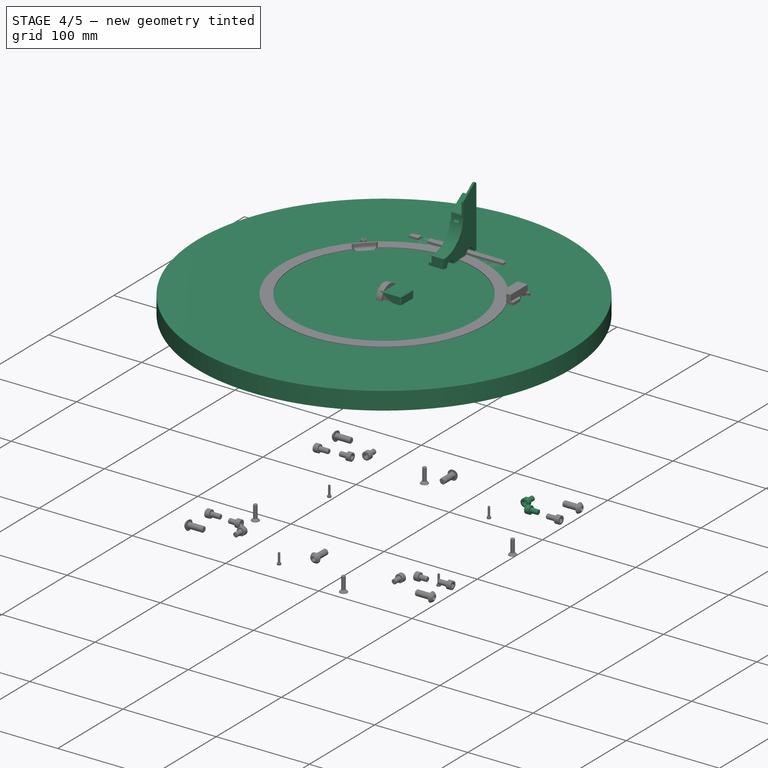
[diagram: stage 4 of 5 — iso view after this stage's code; geometry added in this stage tinted green]
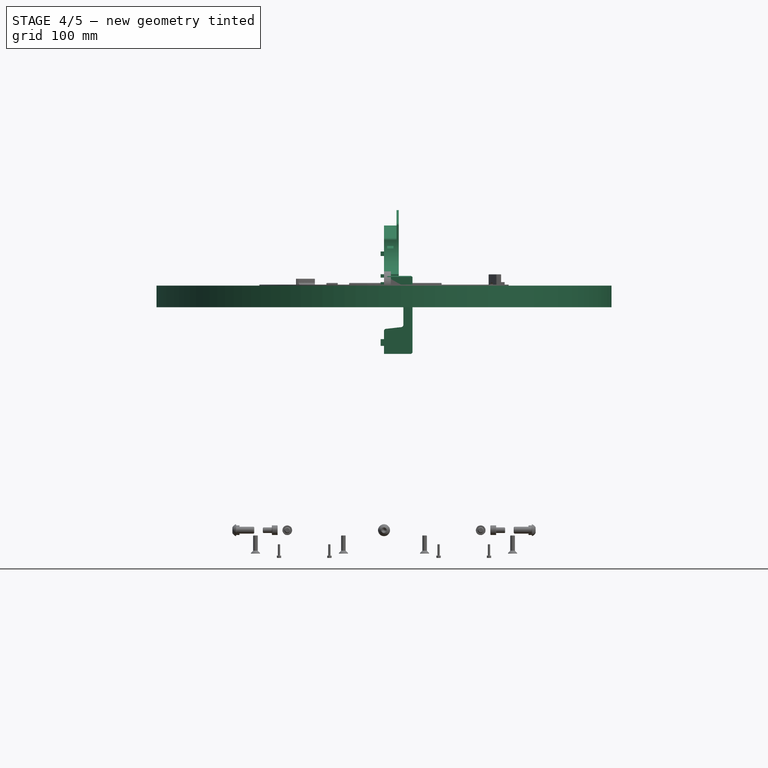
[diagram: stage 4 of 5 — front view after this stage's code; geometry added in this stage tinted green]
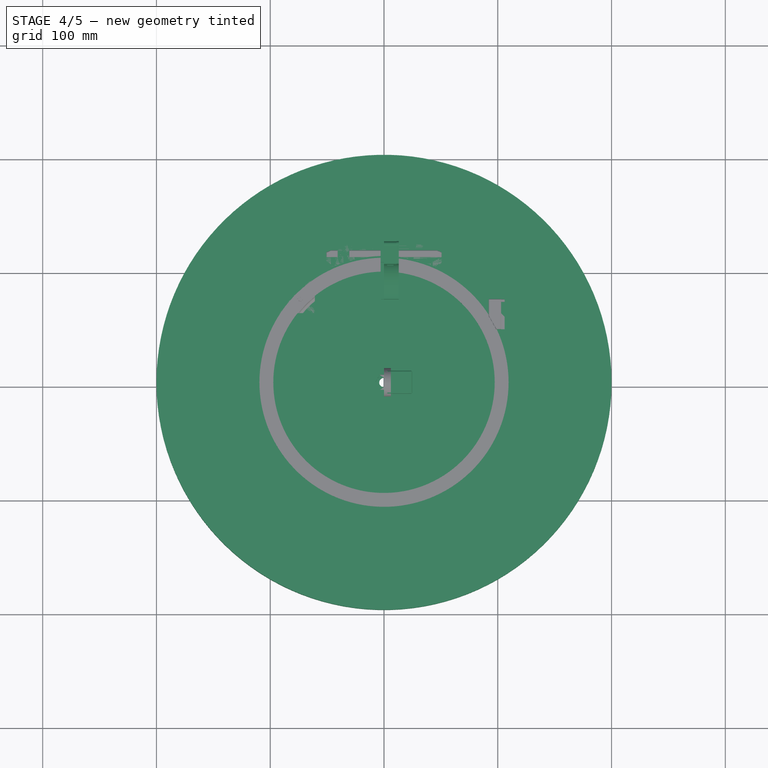
[diagram: stage 4 of 5 — top view after this stage's code; geometry added in this stage tinted green]
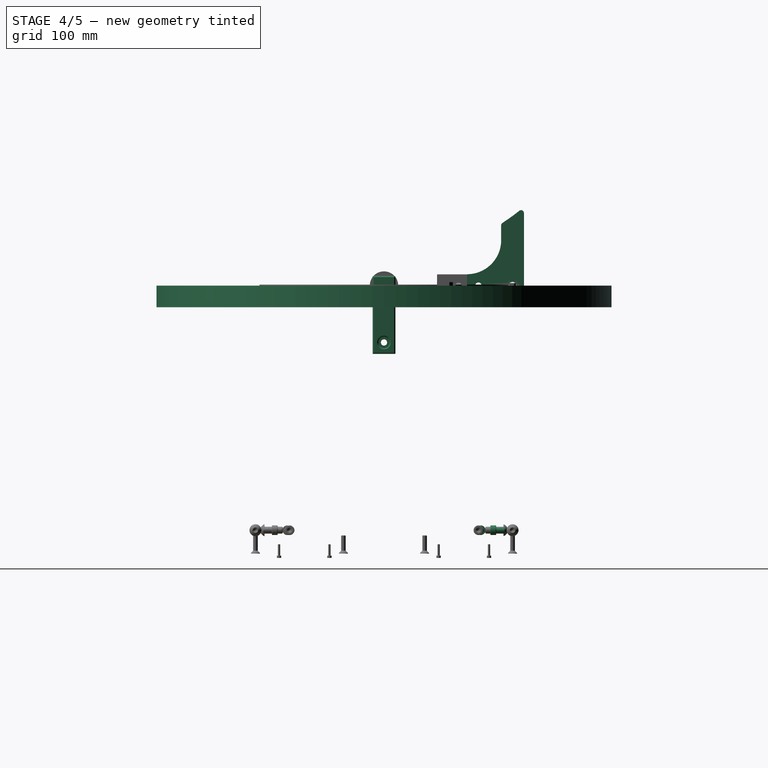
[diagram: stage 4 of 5 — right view after this stage's code; geometry added in this stage tinted green]
FEATURE [PartDesign::AdditiveCylinder] Cylinder006  label="AzimuthBaseCylinder"
  Angle = 360
  AttacherType = Attacher::AttachEngine3D
  AttachmentOffset = pos=(0,0,-19.05) rot=(0,0,1;0rad)
  FirstAngle = 0
  Height = 19.05
  MapMode = 5
  Placement = pos=(0,0,-19.05) rot=(0,0,1;0rad)
  Radius = 200
  SecondAngle = 0
  Support = -> [XY_Plane073]
  expr: Radius = max(<<Common>>#<<Parameters>>.rail_dia; <<Common>>#<<Parameters>>.azi_basesize) / 2
FEATURE [Sketcher::SketchObject] Sketch105  label="AzimuthBase_Nut_Sketch"
  FullyConstrained = true
  MapMode = 5
  Placement = pos=(0,0,3.6e-15) rot=(0,0,1;0rad)
  Support = -> [Cylinder006]
  sketch-geometry (9):
    g0: LineSegment StartX=3.81051 StartY=-6.6 StartZ=0 EndX=7.62102 EndY=0 EndZ=0
    g1: LineSegment StartX=7.62102 StartY=0 StartZ=0 EndX=3.81051 EndY=6.6 EndZ=0
    g2: LineSegment StartX=3.81051 StartY=6.6 StartZ=0 EndX=-3.81051 EndY=6.6 EndZ=0
    g3: LineSegment StartX=-3.81051 StartY=6.6 StartZ=0 EndX=-7.62102 EndY=0 EndZ=0
    g4: LineSegment StartX=-7.62102 StartY=0 StartZ=0 EndX=-3.81051 EndY=-6.6 EndZ=0
    g5: LineSegment StartX=-3.81051 StartY=-6.6 StartZ=0 EndX=3.81051 EndY=-6.6 EndZ=0
    g6: Circle CenterX=0 CenterY=0 CenterZ=0 NormalX=0 NormalY=0 NormalZ=1 AngleXU=0 Radius=7.62102
    g7: LineSegment StartX=-3.81051 StartY=6.6 StartZ=0 EndX=3.81051 EndY=-6.6 EndZ=0
    g8: LineSegment StartX=3.81051 StartY=6.6 StartZ=0 EndX=-3.81051 EndY=-6.6 EndZ=0
  constraints (20):
    c: Coincident(g0,g1)
    c: Coincident(g1,g2)
    c: Coincident(g2,g3)
    c: Coincident(g3,g4)
    c: Coincident(g4,g5)
    c: Coincident(g5,g0)
    c: Equal(g0, g1-g5) x5
    c: PointOnObject(g0,g6)
    c: PointOnObject(g1,g6)
    c: PointOnObject(g2,g6)
    c: PointOnObject(g3,g6)
    c: PointOnObject(g4,g6)
    c: PointOnObject(g5,g6)
    c: Coincident(g6,g-1)
    c: PointOnObject(g0,g-1)
    c: Coincident(g7,g2)
    c: Coincident(g7,g0)
    c: Coincident(g8,g1)
    c: Coincident(g8,g4)
    c: DistanceY(g8,g8) = 13.2
FEATURE [PartDesign::Pocket] Pocket045  label="AzimuthBase_Nut"
  BaseFeature = -> Cylinder006
  Direction = (0,0,-1)
  Length = 8
  Length2 = 100
  Placement = pos=(0,0,-19.05) rot=(0,0,1;0rad)
  Profile = -> Sketch105
  Type = 0
FEATURE [Sketcher::SketchObject] Sketch106  label="AzimuthBase_Shaft_Sketch"
  FullyConstrained = true
  MapMode = 5
  Placement = pos=(0,0,-8) rot=(0,0,1;0rad)
  Support = -> [Pocket045]
  sketch-geometry (1):
    g0: Circle CenterX=0 CenterY=0 CenterZ=0 NormalX=0 NormalY=0 NormalZ=1 AngleXU=0 Radius=4.4
  constraints (2):
    c: Coincident(g0,g-1)
    c: Diameter(g0) = 8.8
FEATURE [PartDesign::Hole] Hole037  label="AzimuthBase_Shaft"
  BaseFeature = -> Pocket045
  CustomThreadClearance = 0
  Depth = 25
  DepthType = 1
  Diameter = 8.4
  DrillForDepth = false
  DrillPoint = 1
  DrillPointAngle = 118
  HoleCutCountersinkAngle = 90
  HoleCutCustomValues = false
  HoleCutDepth = 0
  HoleCutDiameter = 6.1
  HoleCutType = 0
  ModelThread = false
  Placement = pos=(0,0,-19.05) rot=(0,0,1;0rad)
  Profile = -> Sketch106
  Tapered = false
  TaperedAngle = 90
  ThreadClass = 0
  ThreadDepth = 23.5
  ThreadDepthType = 0
  ThreadDirection = 0
  ThreadFit = 1
  ThreadSize = 16
  ThreadType = 1
  Threaded = false
  UseCustomThreadClearance = false
FEATURE [Sketcher::SketchObject] Sketch201  label="FullRetainer_BaseProfile_Sketch"
  FullyConstrained = true
  MapMode = 5
  Placement = pos=(0,0,0) rot=(1,0,0;1.5708rad)
  Support = -> [XZ_Plane097]
  expr: Constraints[19] = <<Common>>#<<Parameters>>.datum_rocker_z - <<Common>>#<<Parameters>>.datum_azbase + 10 - <<Common>>#<<Parameters>>.rail_dia / 2 + <<Common>>#<<Parameters>>.rail_height
  expr: Constraints[22] = <<Common>>#<<Parameters>>.pri_tol
  expr: Constraints[45] = <<Common>>#<<Parameters>>.rail_width + 5
  expr: Constraints[48] = <<Common>>#<<Parameters>>.rail_height
  sketch-geometry (17):
    g0: LineSegment StartX=2 StartY=8.5 StartZ=0 EndX=25 EndY=8.5 EndZ=0
    g1: LineSegment StartX=25 StartY=8.5 StartZ=0 EndX=25 EndY=-60 EndZ=0
    g2: LineSegment StartX=25 StartY=-60 StartZ=0 EndX=0 EndY=-60 EndZ=0
    g3: LineSegment StartX=1.77462 StartY=-38.0127 StartZ=0 EndX=15.2254 EndY=-36.4873 EndZ=0
    g4: LineSegment StartX=15 StartY=0.5 StartZ=0 EndX=2 EndY=0.5 EndZ=0
    g5: LineSegment StartX=2 StartY=0.5 StartZ=0 EndX=2 EndY=8.5 EndZ=0
    g6: LineSegment StartX=0 StartY=-40 StartZ=0 EndX=0 EndY=-47 EndZ=0
    g7: LineSegment StartX=0 StartY=-47 StartZ=0 EndX=-3 EndY=-47 EndZ=0
    g8: LineSegment StartX=-3 StartY=-47 StartZ=0 EndX=-3 EndY=-53 EndZ=0
    g9: LineSegment StartX=-3 StartY=-53 StartZ=0 EndX=0 EndY=-53 EndZ=0
    g10: LineSegment StartX=0 StartY=-53 StartZ=0 EndX=0 EndY=-60 EndZ=0
    g11: LineSegment StartX=17 StartY=-1.5 StartZ=0 EndX=17 EndY=-34.5 EndZ=0
    g12: ArcOfCircle CenterX=15 CenterY=-1.5 CenterZ=0 NormalX=0 NormalY=0 NormalZ=1 AngleXU=0 Radius=2 StartAngle=0 EndAngle=1.5708
    g13: LineSegment StartX=15 StartY=-1.5 StartZ=0 EndX=15 EndY=0.5 EndZ=0
    g14: LineSegment StartX=15 StartY=-1.5 StartZ=0 EndX=17 EndY=-1.5 EndZ=0
    g15: ArcOfCircle CenterX=2 CenterY=-40 CenterZ=0 NormalX=0 NormalY=0 NormalZ=1 AngleXU=0 Radius=2 StartAngle=1.68373 EndAngle=3.14159
    g16: ArcOfCircle CenterX=15 CenterY=-34.5 CenterZ=0 NormalX=0 NormalY=0 NormalZ=1 AngleXU=0 Radius=2 StartAngle=4.82532 EndAngle=6.28319
  constraints (49):
    c: Horizontal(g0)
    c: Coincident(g1,g0)
    c: Vertical(g1)
    c: Coincident(g2,g1)
    c: Horizontal(g2)
    c: Coincident(g5,g0)
    c: Coincident(g5,g4)
    c: Vertical(g5)
    c: Horizontal(g4)
    c: Horizontal(g7)
    c: Coincident(g8,g7)
    c: Vertical(g8)
    c: Coincident(g9,g8)
    c: Horizontal(g9)
    c: Coincident(g10,g9)
    c: Coincident(g10,g2)
    c: DistanceY(g8,g8) = 6
    c: DistanceX(g9,g9) = 3
    c: DistanceY(g2,g9) = 7
    c: DistanceY(g1,g-1) = 60
    c: Coincident(g6,g7)
    c: Vertical(g11)
    c: DistanceY(g-1,g4) = 0.5
    c: DistanceY(g5,g5) = 8
    c: DistanceX(g2,g1) = 25
    c: Vertical(g10)
    c: PointOnObject(g6,g10)
    c: Vertical(g6)
    c: PointOnObject(g2,g-2)
    c: Coincident(g12,g4)
    c: Coincident(g12,g11)
    c: Coincident(g13,g12)
    c: Coincident(g13,g4)
    c: Coincident(g14,g12)
    c: Coincident(g14,g11)
    c: Horizontal(g14)
    c: Vertical(g13)
    c: DistanceX(g-1,g4) = 2
    c: Tangent(g6,g15) = -1.5708
    c: Tangent(g3,g15) = 1.5708
    c: Tangent(g3,g16) = -1.5708
    c: Tangent(g11,g16) = 1.5708
    c: DistanceY(g2,g6) = 20
    c: Equal(g15,g16)
    c: Equal(g16,g12)
    c: DistanceX(g4) = 15
    c: DistanceX(g11,g0) = 8
    c: Radius(g12) = 2
    c: DistanceY(g11,g4) = 35
FEATURE [PartDesign::Pad] Pad053  label="FullRetainer_Base"
  Direction = (0,-1,-2e-16)
  Length = 20
  Length2 = 10
  Midplane = true
  Placement = pos=(0,0,0) rot=(1,0,0;1.5708rad)
  Profile = -> Sketch201
  Type = 0
FEATURE [Sketcher::SketchObject] Sketch  label="SideGuard_Block_Sketch"
  ExternalGeometry = -> [ShapeBinder013]
  FullyConstrained = true
  MapMode = 5
  Placement = pos=(0,0,0) rot=(0.57735,0.57735,0.57735;2.0944rad)
  Support = -> [YZ_Plane114]
  expr: Constraints[3] = <<Common>>#<<Parameters>>.rocker_zspace
  expr: Constraints[8] = <<Common>>#<<Parameters>>.pri_fillet
  sketch-geometry (7):
    g0: LineSegment StartX=123 StartY=-15 StartZ=0 EndX=103 EndY=-15 EndZ=0
    g1: Circle CenterX=113 CenterY=0 CenterZ=0 NormalX=0 NormalY=0 NormalZ=1 AngleXU=0 Radius=3.25
    g2: ArcOfCircle CenterX=105.5 CenterY=42.1532 CenterZ=0 NormalX=0 NormalY=0 NormalZ=1 AngleXU=0 Radius=2.5 StartAngle=2.1188 EndAngle=3.14159
    g3: ArcOfCircle CenterX=120.5 CenterY=52.2548 CenterZ=0 NormalX=0 NormalY=0 NormalZ=1 AngleXU=0 Radius=2.5 StartAngle=-9e-16 EndAngle=2.20814
    g4: LineSegment StartX=123 StartY=52.2548 StartZ=0 EndX=123 EndY=-15 EndZ=0
    g5: LineSegment StartX=103 StartY=-15 StartZ=0 EndX=103 EndY=42.1532 EndZ=0
    g6: ArcOfCircle CenterX=0 CenterY=215 CenterZ=0 NormalX=0 NormalY=0 NormalZ=1 AngleXU=0 Radius=200 StartAngle=5.2604 EndAngle=5.34973
  constraints (17):
    c: Coincident(g0,g4)
    c: Symmetric(g4,g0,g-4)
    c: DistanceX(g0,g0) = 20
    c: DistanceY(g4,g-4) = 15
    c: Coincident(g1,g-4)
    c: Diameter(g1) = 6.5
    c: Coincident(g5,g0)
    c: Equal(g3,g2)
    c: Radius(g3) = 2.5
    c: Vertical(g4)
    c: Vertical(g5)
    c: Coincident(g6,g-3)
    c: PointOnObject(g6,g-3)
    c: Tangent(g5,g2) = 1.5708
    c: Tangent(g2,g6) = 1.5708
    c: Tangent(g3,g6) = 1.5708
    c: Tangent(g4,g3) = 1.5708
FEATURE [PartDesign::Line] DatumLine002  label="SideGuard_DatumLine_RockerPivot"
  AttacherType = Attacher::AttachEngineLine
  Length = 20
  MapMode = 19
  Placement = pos=(0,0,215) rot=(0.57735,0.57735,0.57735;2.0944rad)
  ResizeMode = 0
  Support = -> [ShapeBinder013]
FEATURE [Sketcher::SketchObject] Sketch307  label="SideGuard_SidePins_Sketch"
  AttachmentOffset = pos=(0,0,12) rot=(0,0,1;0rad)
  ExternalGeometry = -> [ShapeBinder013]
  FullyConstrained = true
  MapMode = 5
  Placement = pos=(-12,2.7e-15,-2.7e-15) rot=(-0.57735,0.57735,0.57735;4.18879rad)
  Support = -> [YZ_Plane114]
  expr: .AttachmentOffset.Base.z = <<Common>>#<<Parameters>>.rail_width + 2
  sketch-geometry (19):
    g0: LineSegment StartX=-116 StartY=10 StartZ=0 EndX=-110 EndY=10 EndZ=0
    g1: LineSegment StartX=-110 StartY=10 StartZ=0 EndX=-110 EndY=7 EndZ=0
    g2: LineSegment StartX=-110 StartY=7 StartZ=0 EndX=-116 EndY=7 EndZ=0
    g3: LineSegment StartX=-116 StartY=7 StartZ=0 EndX=-116 EndY=10 EndZ=0
    g4: LineSegment StartX=-123 StartY=3 StartZ=0 EndX=-120 EndY=3 EndZ=0
    g5: LineSegment StartX=-120 StartY=3 StartZ=0 EndX=-120 EndY=-3 EndZ=0
    g6: LineSegment StartX=-120 StartY=-3 StartZ=0 EndX=-123 EndY=-3 EndZ=0
    g7: LineSegment StartX=-123 StartY=-3 StartZ=0 EndX=-123 EndY=3 EndZ=0
    g8: LineSegment StartX=-106 StartY=3 StartZ=0 EndX=-103 EndY=3 EndZ=0
    g9: LineSegment StartX=-103 StartY=3 StartZ=0 EndX=-103 EndY=-3 EndZ=0
    g10: LineSegment StartX=-103 StartY=-3 StartZ=0 EndX=-106 EndY=-3 EndZ=0
    g11: LineSegment StartX=-106 StartY=-3 StartZ=0 EndX=-106 EndY=3 EndZ=0
    g12: LineSegment StartX=-116 StartY=-7 StartZ=0 EndX=-110 EndY=-7 EndZ=0
    g13: LineSegment StartX=-110 StartY=-7 StartZ=0 EndX=-110 EndY=-10 EndZ=0
    g14: LineSegment StartX=-110 StartY=-10 StartZ=0 EndX=-116 EndY=-10 EndZ=0
    g15: LineSegment StartX=-116 StartY=-10 StartZ=0 EndX=-116 EndY=-7 EndZ=0
    g16: LineSegment StartX=-113 StartY=10 StartZ=0 EndX=-113 EndY=-10 EndZ=0
    g17: LineSegment StartX=-120 StartY=3 StartZ=0 EndX=-106 EndY=3 EndZ=0
    g18: LineSegment StartX=-116 StartY=7 StartZ=0 EndX=-116 EndY=-7 EndZ=0
  constraints (52):
    c: Coincident(g0,g1)
    c: Coincident(g1,g2)
    c: Coincident(g2,g3)
    c: Coincident(g3,g0)
    c: Horizontal(g2)
    c: Vertical(g1)
    c: Vertical(g3)
    c: Coincident(g4,g5)
    c: Coincident(g5,g6)
    c: Coincident(g6,g7)
    c: Coincident(g7,g4)
    c: Horizontal(g4)
    c: Horizontal(g6)
    c: Vertical(g5)
    c: Coincident(g8,g9)
    c: Coincident(g9,g10)
    c: Coincident(g10,g11)
    c: Coincident(g11,g8)
    c: Horizontal(g8)
    c: Horizontal(g10)
    c: Vertical(g9)
    c: Vertical(g11)
    c: Coincident(g12,g13)
    c: Coincident(g13,g14)
    c: Coincident(g14,g15)
    c: Coincident(g15,g12)
    c: Horizontal(g12)
    c: Horizontal(g14)
    c: Vertical(g13)
    c: Vertical(g15)
    c: PointOnObject(g16,g0)
    c: PointOnObject(g16,g14)
    c: Vertical(g16)
    c: Symmetric(g4,g6,g-1)
    c: Symmetric(g0,g0,g16)
    c: Equal(g0,g7)
    c: Equal(g7,g14)
    c: Equal(g14,g9)
    c: Equal(g3,g6)
    c: Equal(g6,g13)
    c: Equal(g13,g8)
    c: DistanceX(g0,g0) = 6
    c: DistanceY(g3,g3) = 3
    c: Coincident(g17,g4)
    c: Coincident(g18,g2)
    c: Coincident(g18,g12)
    c: Coincident(g17,g8)
    c: PointOnObject(g-3,g16)
    c: Equal(g17,g18)
    c: Symmetric(g4,g8,g16)
    c: Symmetric(g2,g12,g-1)
    c: DistanceY(g14,g0) = 20
FEATURE [PartDesign::Body] Body022060  label="SideGuard"
  Group = -> [ShapeBinder013,Sketch275,Pad067,Sketch288,Pad073,Sketch,DatumLine002,Sketch307]
  Origin = -> Origin114
  Placement = pos=(135,0,-132) rot=(0,0,1;0rad)
  Tip = -> Pad073
  expr: .Placement.Base.x = <<Common>>#<<Parameters>>.boxsize_x / 2 + <<Common>>#<<Parameters>>.rail_width + 2
  expr: .Placement.Base.z = <<Common>>#<<Parameters>>.datum_azbase
FEATURE [PartDesign::ShapeBinder] ShapeBinder014  label="SideGuardOut_ShapeBinder_Rocker"
  Support = -> [Binder]
  TraceSupport = false
FEATURE [PartDesign::Line] DatumLine003  label="SideGuardOut_DatumLine_RockerPivot"
  AttacherType = Attacher::AttachEngineLine
  Length = 20
  MapMode = 19
  Placement = pos=(0,0,215) rot=(0.57735,0.57735,0.57735;2.0944rad)
  ResizeMode = 0
  Support = -> [ShapeBinder014]
FEATURE [Sketcher::SketchObject] Sketch309  label="SideGuardOut_Block_Sketch"
  ExternalGeometry = -> [ShapeBinder014]
  FullyConstrained = true
  MapMode = 5
  Placement = pos=(0,0,0) rot=(0.57735,0.57735,0.57735;2.0944rad)
  Support = -> [YZ_Plane120]
  sketch-geometry (15):
    g0: LineSegment StartX=123 StartY=-10 StartZ=0 EndX=123 EndY=50.2697 EndZ=0
    g1: LineSegment StartX=123 StartY=-10 StartZ=0 EndX=73 EndY=-10 EndZ=0
    g2: LineSegment StartX=73 StartY=-10 StartZ=0 EndX=73 EndY=10 EndZ=0
    g3: ArcOfCircle CenterX=120.5 CenterY=50.2697 CenterZ=0 NormalX=0 NormalY=0 NormalZ=1 AngleXU=0 Radius=2.5 StartAngle=-9e-16 EndAngle=2.17123
    g4: Circle CenterX=113 CenterY=30 CenterZ=0 NormalX=0 NormalY=0 NormalZ=1 AngleXU=0 Radius=2.75
    g5: Circle CenterX=83 CenterY=0 CenterZ=0 NormalX=0 NormalY=0 NormalZ=1 AngleXU=0 Radius=2.75
    g6: Circle CenterX=113 CenterY=0 CenterZ=0 NormalX=0 NormalY=0 NormalZ=1 AngleXU=0 Radius=3.25
    g7: ArcOfCircle CenterX=73 CenterY=40 CenterZ=0 NormalX=0 NormalY=0 NormalZ=1 AngleXU=0 Radius=30 StartAngle=4.71239 EndAngle=6.28313
    g8: ArcOfCircle CenterX=105.5 CenterY=39.9981 CenterZ=0 NormalX=0 NormalY=0 NormalZ=1 AngleXU=0 Radius=2.5 StartAngle=2.17123 EndAngle=3.14153
    g9: LineSegment StartX=0 StartY=215 StartZ=0 EndX=113 EndY=49.9818 EndZ=0
    g10: LineSegment StartX=103 StartY=43.1341 StartZ=0 EndX=123 EndY=56.8295 EndZ=0
    g11: LineSegment StartX=113 StartY=49.9818 StartZ=0 EndX=113.847 EndY=48.7442 EndZ=0
    g12: LineSegment StartX=104.087 StartY=42.0608 StartZ=0 EndX=119.088 EndY=52.3324 EndZ=0
    g13: LineSegment StartX=103 StartY=39.9982 StartZ=0 EndX=103 EndY=43.1341 EndZ=0
    g14: LineSegment StartX=123 StartY=56.8295 StartZ=0 EndX=123 EndY=50.2697 EndZ=0
  constraints (41):
    c: Vertical(g0)
    c: Coincident(g1,g0)
    c: Horizontal(g1)
    c: Coincident(g2,g1)
    c: Vertical(g2)
    c: DistanceY(g0,g-6) = 10
    c: DistanceX(g-6,g0) = 10
    c: Tangent(g0,g3) = -1.5708
    c: Coincident(g4,g-5)
    c: PointOnObject(g5,g-1)
    c: Coincident(g6,g-6)
    c: Diameter(g6) = 6.5
    c: Diameter(g4) = 5.5
    c: Equal(g4,g5)
    c: DistanceX(g5,g6) = 30
    c: DistanceX(g1,g5) = 10
    c: Radius(g3) = 2.5
    c: DistanceY(g2,g2) = 20
    c: Coincident(g7,g2)
    c: Equal(g8,g3)
    c: PointOnObject(g7,g2)
    c: Tangent(g8,g7) = 1.5708
    c: PointOnObject(g9,g-3)
    c: PointOnObject(g9,g-6)
    c: DistanceX(g10,g10) = 20
    c: PointOnObject(g9,g10)
    c: Coincident(g11,g9)
    c: PointOnObject(g11,g12)
    c: Parallel(g11,g9)
    c: Perpendicular(g12,g11)
    c: Tangent(g12,g3) = 1.5708
    c: Tangent(g12,g8) = 1.5708
    c: Distance(g11) = 1.5
    c: Coincident(g9,g-3)
    c: Coincident(g13,g7)
    c: Coincident(g13,g10)
    c: Vertical(g13)
    c: Coincident(g14,g10)
    c: Coincident(g14,g0)
    c: Vertical(g14)
    c: Perpendicular(g9,g10)
FEATURE [Sketcher::SketchObject] Sketch308  label="SideGuardOut_Plate_Sketch"
  ExternalGeometry = -> [ShapeBinder014,Sketch309]
  FullyConstrained = true
  MapMode = 5
  Placement = pos=(11,-2.4e-15,2.4e-15) rot=(0.57735,0.57735,0.57735;2.0944rad)
  Support = -> [DatumPlane051]
  expr: Constraints[3] = <<Common>>#<<Parameters>>.pri_fillet
  sketch-geometry (13):
    g0: LineSegment StartX=123 StartY=-10 StartZ=0 EndX=73 EndY=-10 EndZ=0
    g1: LineSegment StartX=4.77e-14 StartY=215 StartZ=0 EndX=122.939 EndY=57.2468 EndZ=0
    g2: GeomPoint X=118.942 Y=65.7703 Z=0
    g3: Circle CenterX=113 CenterY=3.2e-14 CenterZ=0 NormalX=0 NormalY=0 NormalZ=1 AngleXU=0 Radius=3.25
    g4: ArcOfCircle CenterX=105.5 CenterY=52.9914 CenterZ=0 NormalX=0 NormalY=0 NormalZ=1 AngleXU=0 Radius=2.5 StartAngle=2.14801 EndAngle=3.14159
    g5: ArcOfCircle CenterX=120.5 CenterY=63.8154 CenterZ=0 NormalX=0 NormalY=0 NormalZ=1 AngleXU=0 Radius=2.5 StartAngle=-9e-16 EndAngle=2.24373
    g6: LineSegment StartX=123 StartY=63.8154 StartZ=0 EndX=123 EndY=-10 EndZ=0
    g7: LineSegment StartX=73 StartY=-10 StartZ=0 EndX=73 EndY=10 EndZ=0
    g8: ArcOfCircle CenterX=4.77e-14 CenterY=215 CenterZ=0 NormalX=0 NormalY=0 NormalZ=1 AngleXU=0 Radius=190.831 StartAngle=5.28961 EndAngle=5.38532
    g9: LineSegment StartX=103 StartY=52.9914 StartZ=0 EndX=103 EndY=40 EndZ=0
    g10: ArcOfCircle CenterX=73 CenterY=40 CenterZ=0 NormalX=0 NormalY=0 NormalZ=1 AngleXU=0 Radius=30 StartAngle=4.71239 EndAngle=6.28319
    g11: GeomPoint X=117.303 Y=64.4786 Z=0
    g12: Circle CenterX=113 CenterY=70 CenterZ=0 NormalX=0 NormalY=0 NormalZ=1 AngleXU=0 Radius=6
  constraints (29):
    c: Diameter(g3) = 6.5
    c: Coincident(g7,g0)
    c: Equal(g5,g4)
    c: Radius(g5) = 2.5
    c: Vertical(g6)
    c: Tangent(g5,g6) = 1.5708
    c: Vertical(g7)
    c: Coincident(g6,g0)
    c: Horizontal(g0)
    c: Coincident(g8,g1)
    c: Tangent(g8,g5) = 1.5708
    c: Tangent(g8,g4) = 1.5708
    c: PointOnObject(g1,g-3)
    c: Coincident(g2,g5)
    c: Vertical(g9)
    c: Tangent(g9,g4) = -1.5708
    c: Coincident(g10,g7)
    c: Tangent(g10,g9) = 1.5708
    c: Coincident(g8,g-3)
    c: Coincident(g3,g-4)
    c: Coincident(g-5,g10)
    c: Coincident(g7,g-5)
    c: Coincident(g0,g-6)
    c: PointOnObject(g-4,g1)
    c: PointOnObject(g11,g1)
    c: PointOnObject(g11,g8)
    c: Distance(g11,g-4) = 7
    c: Coincident(g12,g-4)
    c: Diameter(g12) = 12
FEATURE [Sketcher::SketchObject] Sketch310  label="SideGuardOut_SideRail_Sketch"
  ExternalGeometry = -> [ShapeBinder014]
  FullyConstrained = true
  MapMode = 5
  Placement = pos=(0,0,0) rot=(-0.57735,0.57735,0.57735;4.18879rad)
  Support = -> [YZ_Plane120]
  sketch-geometry (22):
    g0: LineSegment StartX=-88 StartY=3 StartZ=0 EndX=-106 EndY=3 EndZ=0
    g1: LineSegment StartX=-106 StartY=3 StartZ=0 EndX=-106 EndY=-3 EndZ=0
    g2: LineSegment StartX=-106 StartY=-3 StartZ=0 EndX=-88 EndY=-3 EndZ=0
    g3: LineSegment StartX=-88 StartY=-3 StartZ=0 EndX=-88 EndY=3 EndZ=0
    g4: LineSegment StartX=-73 StartY=3 StartZ=0 EndX=-78 EndY=3 EndZ=0
    g5: LineSegment StartX=-78 StartY=3 StartZ=0 EndX=-78 EndY=-3 EndZ=0
    g6: LineSegment StartX=-78 StartY=-3 StartZ=0 EndX=-73 EndY=-3 EndZ=0
    g7: LineSegment StartX=-73 StartY=-3 StartZ=0 EndX=-73 EndY=3 EndZ=0
    g8: LineSegment StartX=-88 StartY=0 StartZ=0 EndX=-83 EndY=0 EndZ=0
    g9: LineSegment StartX=-83 StartY=0 StartZ=0 EndX=-78 EndY=0 EndZ=0
    g10: LineSegment StartX=-123 StartY=3 StartZ=0 EndX=-120 EndY=3 EndZ=0
    g11: LineSegment StartX=-120 StartY=3 StartZ=0 EndX=-120 EndY=-3 EndZ=0
    g12: LineSegment StartX=-120 StartY=-3 StartZ=0 EndX=-123 EndY=-3 EndZ=0
    g13: LineSegment StartX=-123 StartY=-3 StartZ=0 EndX=-123 EndY=3 EndZ=0
    g14: LineSegment StartX=-116 StartY=10 StartZ=0 EndX=-110 EndY=10 EndZ=0
    g15: LineSegment StartX=-110 StartY=10 StartZ=0 EndX=-110 EndY=7 EndZ=0
    g16: LineSegment StartX=-110 StartY=7 StartZ=0 EndX=-116 EndY=7 EndZ=0
    g17: LineSegment StartX=-116 StartY=7 StartZ=0 EndX=-116 EndY=10 EndZ=0
    g18: LineSegment StartX=-116 StartY=-7 StartZ=0 EndX=-110 EndY=-7 EndZ=0
    g19: LineSegment StartX=-110 StartY=-7 StartZ=0 EndX=-110 EndY=-10 EndZ=0
    g20: LineSegment StartX=-110 StartY=-10 StartZ=0 EndX=-116 EndY=-10 EndZ=0
    g21: LineSegment StartX=-116 StartY=-10 StartZ=0 EndX=-116 EndY=-7 EndZ=0
  constraints (63):
    c: DistanceX(g-3,g8) = 30
    c: Coincident(g0,g1)
    c: Coincident(g2,g1)
    c: Coincident(g3,g2)
    c: Coincident(g0,g3)
    c: PointOnObject(g8,g3)
    c: Coincident(g8,g9)
    c: Coincident(g5,g6)
    c: Coincident(g6,g7)
    c: Coincident(g4,g7)
    c: Coincident(g4,g5)
    c: Equal(g8,g9)
    c: PointOnObject(g9,g5)
    c: Symmetric(g4,g6,g-1)
    c: DistanceY(g7,g7) = 6
    c: Vertical(g3)
    c: Vertical(g1)
    c: Coincident(g10,g11)
    c: Coincident(g11,g12)
    c: Coincident(g12,g13)
    c: Coincident(g13,g10)
    c: Horizontal(g10)
    c: Horizontal(g12)
    c: Vertical(g11)
    c: Vertical(g13)
    c: Coincident(g14,g15)
    c: Coincident(g15,g16)
    c: Coincident(g16,g17)
    c: Coincident(g17,g14)
    c: Horizontal(g16)
    c: Vertical(g15)
    c: Vertical(g17)
    c: Coincident(g18,g19)
    c: Coincident(g19,g20)
    c: Coincident(g20,g21)
    c: Coincident(g21,g18)
    c: Horizontal(g18)
    c: Horizontal(g20)
    c: Vertical(g19)
    c: Vertical(g21)
    c: Horizontal(g2)
    c: Horizontal(g0)
    c: Horizontal(g8)
    c: Horizontal(g9)
    c: PointOnObject(g9,g-1)
    c: Vertical(g5)
    c: Horizontal(g4)
    c: Horizontal(g6)
    c: Equal(g14,g13)
    c: Equal(g13,g20)
    c: Equal(g20,g3)
    c: Equal(g3,g7)
    c: DistanceX(g8,g4) = 10
    c: Equal(g12,g19)
    c: Equal(g19,g17)
    c: Symmetric(g14,g14,g-4)
    c: Symmetric(g14,g19,g-1)
    c: DistanceY(g20,g14) = 20
    c: PointOnObject(g4,g0)
    c: DistanceX(g10,g-4) = 10
    c: DistanceX(g8,g9) = 10
    c: Symmetric(g0,g10,g-4)
    c: DistanceY(g15,g15) = 3
FEATURE [PartDesign::Pad] Pad084  label="SideGuardOut_Block"
  Direction = (1,-2e-16,3e-16)
  Length = 11
  Length2 = 10
  Placement = pos=(0,0,0) rot=(0.57735,0.57735,0.57735;2.0944rad)
  Profile = -> Sketch309
  ReferenceAxis = -> Sketch309 [N_Axis]
  Type = 0
  expr: Length = <<Common>>#<<Parameters>>.rail_width + 1
FEATURE [PartDesign::Plane] DatumPlane050  label="SideGuardOut_DatumPlane_Channel"
  AttachmentOffset = pos=(0,0,0) rot=(1,0,0;1.5708rad)
  Length = 67.8305
  MapMode = 13
  Placement = pos=(3.66667,114.087,48.9085) rot=(0,0.88459,-0.466369;3.14159rad)
  ResizeMode = 0
  Support = -> [Pad084]
  Width = 176.794
FEATURE [PartDesign::Pad] Pad085  label="SideGuardOut_Plate"
  BaseFeature = -> Pad084
  Direction = (1,-1e-16,1e-16)
  Length = 2
  Length2 = 10
  Placement = pos=(0,0,0) rot=(0.57735,0.57735,0.57735;2.0944rad)
  Profile = -> Sketch308
  ReferenceAxis = -> Sketch308 [N_Axis]
  Type = 0
  expr: Length = Common#<<Parameters>>.rocker_plate
FEATURE [PartDesign::Pad] Pad086  label="SideGuardOut_SideRail"
  BaseFeature = -> Pad085
  Direction = (-1,2e-16,-3e-16)
  Length = 3
  Length2 = 10
  Placement = pos=(0,0,0) rot=(0.57735,0.57735,0.57735;2.0944rad)
  Profile = -> Sketch310
  ReferenceAxis = -> Sketch310 [N_Axis]
  Type = 0
FEATURE [Sketcher::SketchObject] Sketch314  label="SideGuardOut_SideBolt_Sketch"
  AttachmentOffset = pos=(0,0,2) rot=(0,0,1;0rad)
  ExternalGeometry = -> [ShapeBinder014]
  FullyConstrained = true
  MapMode = 5
  Placement = pos=(13,-2.7e-15,2.7e-15) rot=(0.57735,0.57735,0.57735;2.0944rad)
  Support = -> [DatumPlane051]
  expr: .AttachmentOffset.Base.z = <<Common>>#<<Parameters>>.rocker_plate
  sketch-geometry (2):
    g0: Circle CenterX=83 CenterY=0 CenterZ=0 NormalX=0 NormalY=0 NormalZ=1 AngleXU=0 Radius=2.75
    g1: Circle CenterX=113 CenterY=0 CenterZ=0 NormalX=0 NormalY=0 NormalZ=1 AngleXU=0 Radius=3.25
  constraints (5):
    c: PointOnObject(g0,g-1)
    c: Diameter(g0) = 5.5
    c: Coincident(g1,g-3)
    c: Diameter(g1) = 6.5
    c: DistanceX(g0,g1) = 30
FEATURE [Sketcher::SketchObject] Sketch315  label="SideGuardOut_CounterBoreSide_Sketch"
  AttachmentOffset = pos=(0,0,2) rot=(0,0,1;0rad)
  ExternalGeometry = -> [Sketch314]
  FullyConstrained = true
  MapMode = 5
  Placement = pos=(13,-2.7e-15,2.7e-15) rot=(0.57735,0.57735,0.57735;2.0944rad)
  Support = -> [DatumPlane051]
  expr: .AttachmentOffset.Base.z = <<Common>>#<<Parameters>>.rocker_plate
  sketch-geometry (1):
    g0: Circle CenterX=83 CenterY=-9.3e-15 CenterZ=0 NormalX=0 NormalY=0 NormalZ=1 AngleXU=0 Radius=5
  constraints (2):
    c: Diameter(g0) = 10
    c: Coincident(g0,g-3)
FEATURE [Sketcher::SketchObject] Sketch316  label="SideGuardOut_CBSSupport_Sketch"
  AttachmentOffset = pos=(0,0,-7) rot=(0,0,1;0rad)
  ExternalGeometry = -> [Sketch314,Sketch315]
  FullyConstrained = true
  MapMode = 5
  Placement = pos=(4,-1.7e-15,1.7e-15) rot=(0.57735,0.57735,0.57735;2.0944rad)
  Support = -> [DatumPlane051]
  expr: .AttachmentOffset.Base.z = -(<<Common>>#<<Parameters>>.rail_width + 1 - 4)
  sketch-geometry (12):
    g0: LineSegment StartX=78.8242 StartY=2.75 StartZ=0 EndX=87.1758 EndY=2.75 EndZ=0
    g1: LineSegment StartX=87.4695 StartY=2.24137 StartZ=0 EndX=83.2937 EndY=-4.99137 EndZ=0
    g2: LineSegment StartX=82.7063 StartY=-4.99137 StartZ=0 EndX=78.5305 EndY=2.24137 EndZ=0
    g3: ArcOfCircle CenterX=83 CenterY=-9.2e-15 CenterZ=0 NormalX=0 NormalY=0 NormalZ=1 AngleXU=0 Radius=5 StartAngle=2.55923 EndAngle=2.67676
    g4: ArcOfCircle CenterX=83 CenterY=-9.2e-15 CenterZ=0 NormalX=0 NormalY=0 NormalZ=1 AngleXU=0 Radius=5 StartAngle=0.464833 EndAngle=0.582364
    g5: ArcOfCircle CenterX=83 CenterY=-9.2e-15 CenterZ=0 NormalX=0 NormalY=0 NormalZ=1 AngleXU=0 Radius=5 StartAngle=4.65362 EndAngle=4.77115
    g6: LineSegment StartX=83 StartY=-9.2e-15 StartZ=0 EndX=83 EndY=2.75 EndZ=0
    g7: LineSegment StartX=83 StartY=-9.2e-15 StartZ=0 EndX=85.3816 EndY=-1.375 EndZ=0
    g8: LineSegment StartX=83 StartY=-9.2e-15 StartZ=0 EndX=80.6184 EndY=-1.375 EndZ=0
    g9: LineSegment StartX=85.3816 StartY=-1.375 StartZ=0 EndX=80.6184 EndY=-1.375 EndZ=0
    g10: LineSegment StartX=80.6184 StartY=-1.375 StartZ=0 EndX=83 EndY=2.75 EndZ=0
    g11: LineSegment StartX=83 StartY=2.75 StartZ=0 EndX=85.3816 EndY=-1.375 EndZ=0
  constraints (33):
    c: Horizontal(g0)
    c: Coincident(g3,g2)
    c: Coincident(g3,g0)
    c: Coincident(g4,g3)
    c: Coincident(g4,g0)
    c: Coincident(g4,g1)
    c: Coincident(g5,g3)
    c: Coincident(g5,g1)
    c: Coincident(g5,g2)
    c: Coincident(g6,g3)
    c: PointOnObject(g6,g0)
    c: Vertical(g6)
    c: Coincident(g7,g3)
    c: Coincident(g8,g3)
    c: PointOnObject(g8,g2)
    c: Coincident(g9,g7)
    c: Coincident(g9,g8)
    c: Coincident(g10,g8)
    c: Coincident(g10,g6)
    c: Coincident(g11,g6)
    c: Coincident(g11,g7)
    c: Horizontal(g9)
    c: Equal(g11,g9)
    c: Perpendicular(g2,g8)
    c: Perpendicular(g1,g7)
    c: Equal(g10,g11)
    c: PointOnObject(g7,g1)
    c: PointOnObject(g0,g-4)
    c: PointOnObject(g2,g-4)
    c: PointOnObject(g0,g-4)
    c: PointOnObject(g6,g-3)
    c: PointOnObject(g7,g-3)
    c: Coincident(g3,g-4)
FEATURE [Sketcher::SketchObject] Sketch317  label="SideGuardOut_Channel_Sketch"
  ExternalGeometry = -> [Pad084]
  FullyConstrained = true
  MapMode = 5
  Placement = pos=(3.66667,114.087,48.9085) rot=(0,0.88459,-0.466369;3.14159rad)
  Support = -> [DatumPlane050]
  sketch-geometry (6):
    g0: LineSegment StartX=-4.63333 StartY=6.6 StartZ=0 EndX=0.966667 EndY=6.6 EndZ=0
    g1: LineSegment StartX=0.966667 StartY=6.6 StartZ=0 EndX=0.966667 EndY=5 EndZ=0
    g2: LineSegment StartX=0.966667 StartY=5 StartZ=0 EndX=-4.63333 EndY=5 EndZ=0
    g3: LineSegment StartX=-4.63333 StartY=5 StartZ=0 EndX=-4.63333 EndY=6.6 EndZ=0
    g4: LineSegment StartX=-4.63333 StartY=5 StartZ=0 EndX=-7.33333 EndY=5 EndZ=0
    g5: LineSegment StartX=0.966667 StartY=5 StartZ=0 EndX=3.66667 EndY=5 EndZ=0
  constraints (18):
    c: Coincident(g0,g1)
    c: Coincident(g1,g2)
    c: Coincident(g2,g3)
    c: Coincident(g3,g0)
    c: Horizontal(g0)
    c: Horizontal(g2)
    c: Vertical(g1)
    c: Vertical(g3)
    c: Coincident(g4,g2)
    c: Horizontal(g4)
    c: Coincident(g5,g1)
    c: Horizontal(g5)
    c: Equal(g4,g5)
    c: DistanceX(g2,g2) = 5.6
    c: DistanceY(g1,g1) = 1.6
    c: DistanceY(g-1,g1) = 5
    c: PointOnObject(g4,g-3)
    c: PointOnObject(g5,g-4)
FEATURE [PartDesign::Body] Body022066  label="RockerSide_Dummy"
  Group = -> [Binder]
  Origin = -> Origin120
  Placement = pos=(135,0,-132) rot=(0,0,1;0rad)
  expr: .Placement.Base.x = <<Common>>#<<Parameters>>.boxsize_x / 2 + <<Common>>#<<Parameters>>.rail_width + 2
  expr: .Placement.Base.z = <<Common>>#<<Parameters>>.datum_azbase
FEATURE [Sketcher::SketchObject] Sketch318  label="SideGuardOut_UpperCatch_Sketch"
  ExternalGeometry = -> [ShapeBinder014]
  FullyConstrained = true
  MapMode = 5
  Placement = pos=(0,0,0) rot=(0.57735,0.57735,0.57735;2.0944rad)
  Support = -> [YZ_Plane120]
  sketch-geometry (4):
    g0: LineSegment StartX=105 StartY=30 StartZ=0 EndX=121 EndY=30 EndZ=0
    g1: LineSegment StartX=121 StartY=30 StartZ=0 EndX=121 EndY=26 EndZ=0
    g2: LineSegment StartX=121 StartY=26 StartZ=0 EndX=105 EndY=26 EndZ=0
    g3: LineSegment StartX=105 StartY=26 StartZ=0 EndX=105 EndY=30 EndZ=0
  constraints (11):
    c: Coincident(g0,g1)
    c: Coincident(g1,g2)
    c: Coincident(g2,g3)
    c: Coincident(g3,g0)
    c: Horizontal(g2)
    c: Vertical(g1)
    c: Vertical(g3)
    c: Symmetric(g0,g0,g-4)
    c: DistanceY(g1,g1) = 4
    c: DistanceX(g2,g2) = 16
    c: PointOnObject(g-3,g0)
FEATURE [PartDesign::Pad] Pad087  label="SideGuardOut_Catch"
  BaseFeature = -> Pad086
  Direction = (1,-2e-16,3e-16)
  Length = 3
  Length2 = 10
  Placement = pos=(0,0,0) rot=(0.57735,0.57735,0.57735;2.0944rad)
  Profile = -> Sketch318
  ReferenceAxis = -> Sketch318 [N_Axis]
  Reversed = true
  Type = 0
FEATURE [Sketcher::SketchObject] Sketch321  label="SideGuardOut_CornerBolt_Sketch"
  AttachmentOffset = pos=(0,0,2) rot=(0,0,1;0rad)
  ExternalGeometry = -> [ShapeBinder014]
  FullyConstrained = true
  MapMode = 5
  Placement = pos=(13,-2.7e-15,2.7e-15) rot=(0.57735,0.57735,0.57735;2.0944rad)
  Support = -> [DatumPlane051]
  expr: .AttachmentOffset.Base.z = <<Common>>#<<Parameters>>.rocker_plate
  sketch-geometry (1):
    g0: Circle CenterX=113 CenterY=0 CenterZ=0 NormalX=0 NormalY=0 NormalZ=1 AngleXU=0 Radius=3.25
  constraints (2):
    c: Coincident(g0,g-3)
    c: Diameter(g0) = 6.5
FEATURE [Sketcher::SketchObject] Sketch319  label="SideGuardOut_CounterBoreCorner_Sketch"
  AttachmentOffset = pos=(0,0,2) rot=(0,0,1;0rad)
  ExternalGeometry = -> [Sketch321]
  FullyConstrained = true
  MapMode = 5
  Placement = pos=(13,-2.7e-15,2.7e-15) rot=(0.57735,0.57735,0.57735;2.0944rad)
  Support = -> [DatumPlane051]
  expr: .AttachmentOffset.Base.z = <<Common>>#<<Parameters>>.rocker_plate
  sketch-geometry (1):
    g0: Circle CenterX=113 CenterY=-1.25e-14 CenterZ=0 NormalX=0 NormalY=0 NormalZ=1 AngleXU=0 Radius=6
  constraints (2):
    c: Diameter(g0) = 12
    c: Coincident(g0,g-3)
FEATURE [Sketcher::SketchObject] Sketch320  label="SideGuardOut_CBCSupport_Sketch"
  AttachmentOffset = pos=(0,0,-3) rot=(0,0,1;0rad)
  ExternalGeometry = -> [Sketch321,Sketch319]
  FullyConstrained = true
  MapMode = 5
  Placement = pos=(8,-2.1e-15,2.1e-15) rot=(0.57735,0.57735,0.57735;2.0944rad)
  Support = -> [DatumPlane051]
  expr: .AttachmentOffset.Base.z = <<Common>>#<<Parameters>>.rocker_plate - 5
  sketch-geometry (12):
    g0: LineSegment StartX=107.956 StartY=3.25 StartZ=0 EndX=118.044 EndY=3.25 EndZ=0
    g1: LineSegment StartX=118.336 StartY=2.74285 StartZ=0 EndX=113.293 EndY=-5.99285 EndZ=0
    g2: LineSegment StartX=112.707 StartY=-5.99285 StartZ=0 EndX=107.664 EndY=2.74285 EndZ=0
    g3: ArcOfCircle CenterX=113 CenterY=-2.51e-14 CenterZ=0 NormalX=0 NormalY=0 NormalZ=1 AngleXU=0 Radius=6 StartAngle=2.56917 EndAngle=2.66681
    g4: ArcOfCircle CenterX=113 CenterY=-2.51e-14 CenterZ=0 NormalX=0 NormalY=0 NormalZ=1 AngleXU=0 Radius=6 StartAngle=0.474779 EndAngle=0.572419
    g5: ArcOfCircle CenterX=113 CenterY=-2.51e-14 CenterZ=0 NormalX=0 NormalY=0 NormalZ=1 AngleXU=0 Radius=6 StartAngle=4.66357 EndAngle=4.76121
    g6: LineSegment StartX=113 StartY=-2.51e-14 StartZ=0 EndX=113 EndY=3.25 EndZ=0
    g7: LineSegment StartX=113 StartY=-2.51e-14 StartZ=0 EndX=110.185 EndY=-1.625 EndZ=0
    g8: LineSegment StartX=113 StartY=-2.51e-14 StartZ=0 EndX=115.815 EndY=-1.625 EndZ=0
    g9: LineSegment StartX=115.815 StartY=-1.625 StartZ=0 EndX=110.185 EndY=-1.625 EndZ=0
    g10: LineSegment StartX=110.185 StartY=-1.625 StartZ=0 EndX=113 EndY=3.25 EndZ=0
    g11: LineSegment StartX=113 StartY=3.25 StartZ=0 EndX=115.815 EndY=-1.625 EndZ=0
  constraints (33):
    c: Horizontal(g0)
    c: Coincident(g3,g2)
    c: Coincident(g3,g0)
    c: Coincident(g4,g3)
    c: Coincident(g4,g0)
    c: Coincident(g4,g1)
    c: Coincident(g5,g3)
    c: Coincident(g5,g1)
    c: Coincident(g5,g2)
    c: Coincident(g6,g3)
    c: PointOnObject(g6,g0)
    c: Vertical(g6)
    c: Coincident(g7,g3)
    c: PointOnObject(g7,g2)
    c: Coincident(g8,g3)
    c: PointOnObject(g8,g1)
    c: Coincident(g9,g8)
    c: Coincident(g9,g7)
    c: Perpendicular(g2,g7)
    c: Perpendicular(g1,g8)
    c: Coincident(g10,g7)
    c: Coincident(g10,g6)
    c: Coincident(g11,g6)
    c: Coincident(g11,g8)
    c: Equal(g10,g11)
    c: Equal(g11,g9)
    c: Horizontal(g9)
    c: PointOnObject(g0,g-4)
    c: PointOnObject(g2,g-4)
    c: PointOnObject(g1,g-4)
    c: Coincident(g3,g-4)
    c: PointOnObject(g8,g-3)
    c: PointOnObject(g6,g-3)
FEATURE [PartDesign::Pocket] Pocket  label="SideGuardOut_CornerBolt"
  BaseFeature = -> Pad087
  Direction = (-1,1e-16,-1e-16)
  Length = 5
  Length2 = 5
  Midplane = true
  Placement = pos=(0,0,0) rot=(0.57735,0.57735,0.57735;2.0944rad)
  Profile = -> Sketch321
  ReferenceAxis = -> Sketch321 [N_Axis]
  Type = 1
FEATURE [PartDesign::Pocket] Pocket181  label="SideGuardOut_CounterBoreCorner"
  BaseFeature = -> Pocket
  Direction = (-1,1e-16,-1e-16)
  Length = 5
  Length2 = 5
  Placement = pos=(0,0,0) rot=(0.57735,0.57735,0.57735;2.0944rad)
  Profile = -> Sketch319
  ReferenceAxis = -> Sketch319 [N_Axis]
  Type = 0
FEATURE [PartDesign::Pocket] Pocket182  label="SudeGuardOut_SideBolt"
  BaseFeature = -> Pocket181
  Direction = (-1,1e-16,-1e-16)
  Length = 5
  Length2 = 5
  Midplane = true
  Placement = pos=(0,0,0) rot=(0.57735,0.57735,0.57735;2.0944rad)
  Profile = -> Sketch314
  ReferenceAxis = -> Sketch314 [N_Axis]
  Type = 1
FEATURE [PartDesign::Pocket] Pocket183  label="SideGuardOut_CountreBoreSide"
  BaseFeature = -> Pocket182
  Direction = (-1,1e-16,-1e-16)
  Length = 9
  Length2 = 5
  Placement = pos=(0,0,0) rot=(0.57735,0.57735,0.57735;2.0944rad)
  Profile = -> Sketch315
  ReferenceAxis = -> Sketch315 [N_Axis]
  Type = 0
  expr: Length = <<Common>>#<<Parameters>>.rail_width + 1 + <<Common>>#<<Parameters>>.rocker_plate - 4
FEATURE [PartDesign::Pocket] Pocket184  label="SideGuardOut_Channel"
  BaseFeature = -> Pocket183
  Direction = (0,0.825091,0.565)
  Length = 5
  Length2 = 5
  Midplane = true
  Placement = pos=(0,0,0) rot=(0.57735,0.57735,0.57735;2.0944rad)
  Profile = -> Sketch317
  ReferenceAxis = -> Sketch317 [N_Axis]
  Type = 1
FEATURE [PartDesign::Body] Body022065  label="SideGuardOut"
  Group = -> [ShapeBinder014,Sketch309,Sketch310,Sketch308,DatumLine003,DatumPlane050,Pad084,Pad085,Pad086,Sketch314,Sketch315,Sketch316,DatumPlane051,Sketch317,Sketch318,Sketch319,Sketch320,Pad087,Sketch321,Pocket,Pocket181,Pocket182,Pocket183,Pocket184,Fillet012,Chamfer,Pocket185,Pocket186]
  Origin = -> Origin119
  Placement = pos=(123,0,-132) rot=(0,0,1;0rad)
  Tip = -> Pocket186
  expr: .Placement.Base.x = <<Common>>#<<Parameters>>.boxsize_x / 2
  expr: .Placement.Base.z = <<Common>>#<<Parameters>>.datum_azbase
FEATURE [PartDesign::Groove] Groove  label="FUllRetainer_ArcCut"
  Angle = 360
  Axis = (1,0,0)
  Base = (0,0,165.5)
  BaseFeature = -> Pad053
  Placement = pos=(0,0,0) rot=(1,0,0;1.5708rad)
  Profile = -> Sketch204
  ReferenceAxis = -> DatumLine
FEATURE [PartDesign::Pocket] Pocket190  label="FullRetainer_Shaft"
  BaseFeature = -> Groove
  Direction = (-1,2e-16,-3e-16)
  Length = 5
  Length2 = 5
  Midplane = true
  Placement = pos=(0,0,0) rot=(1,0,0;1.5708rad)
  Profile = -> Sketch203
  ReferenceAxis = -> Sketch203 [N_Axis]
  Type = 1
FEATURE [Sketcher::SketchObject] Sketch331  label="FullRetainer_Notch_Sketch"
  FullyConstrained = true
  MapMode = 5
  Support = -> [XY_Plane096]
  sketch-geometry (4):
    g0: LineSegment StartX=-6 StartY=5 StartZ=0 EndX=0 EndY=5 EndZ=0
    g1: LineSegment StartX=0 StartY=5 StartZ=0 EndX=0 EndY=-5 EndZ=0
    g2: LineSegment StartX=0 StartY=-5 StartZ=0 EndX=-6 EndY=-5 EndZ=0
    g3: LineSegment StartX=-6 StartY=-5 StartZ=0 EndX=-6 EndY=5 EndZ=0
  constraints (11):
    c: Coincident(g0,g1)
    c: Coincident(g1,g2)
    c: Coincident(g2,g3)
    c: Coincident(g3,g0)
    c: Horizontal(g0)
    c: Horizontal(g2)
    c: Vertical(g3)
    c: PointOnObject(g1,g-2)
    c: Symmetric(g1,g0,g-1)
    c: DistanceY(g3,g3) = 10
    c: DistanceX(g0,g0) = 6
FEATURE [PartDesign::Pocket] Pocket191  label="FullRetainer_Notch"
  BaseFeature = -> Pocket190
  Direction = (0,0,-1)
  Length = 5
  Length2 = 5
  Midplane = true
  Placement = pos=(0,0,0) rot=(1,0,0;1.5708rad)
  Profile = -> Sketch331
  ReferenceAxis = -> Sketch331 [N_Axis]
  Type = 1
FEATURE [PartDesign::Plane] DatumPlane  label="DatumPlane_FullRetainer_Outer"
  Length = 246.737
  MapMode = 11
  Placement = pos=(25,-3.91e-14,-50) rot=(0.707107,0,0.707107;3.14159rad)
  ResizeMode = 0
  Support = -> [Pocket191]
  Width = 71.2368
FEATURE [Sketcher::SketchObject] Sketch259  label="FullRetainer_CounterBore_Sketch"
  FullyConstrained = true
  MapMode = 5
  Placement = pos=(25,-3.91e-14,-50) rot=(0.707107,0,0.707107;3.14159rad)
  Support = -> [DatumPlane]
  sketch-geometry (1):
    g0: Circle CenterX=0 CenterY=0 CenterZ=0 NormalX=0 NormalY=0 NormalZ=1 AngleXU=0 Radius=5
  constraints (2):
    c: Diameter(g0) = 10
    c: Coincident(g0,g-1)
FEATURE [Sketcher::SketchObject] Sketch273  label="FullRetainer_CounterBore_Support_Sketch"
  ExternalGeometry = -> [Sketch259,Sketch203]
  FullyConstrained = true
  MapMode = 5
  Placement = pos=(25,-3.91e-14,-50) rot=(0.707107,0,0.707107;3.14159rad)
  Support = -> [DatumPlane]
  sketch-geometry (11):
    g0: LineSegment StartX=-2.24137 StartY=4.46948 StartZ=0 EndX=4.99137 EndY=0.293658 EndZ=0
    g1: LineSegment StartX=4.99137 StartY=-0.293658 StartZ=0 EndX=-2.24137 EndY=-4.46948 EndZ=0
    g2: LineSegment StartX=-2.75 StartY=-4.17582 StartZ=0 EndX=-2.75 EndY=4.17582 EndZ=0
    g3: ArcOfCircle CenterX=0 CenterY=2e-16 CenterZ=0 NormalX=0 NormalY=0 NormalZ=1 AngleXU=0 Radius=5 StartAngle=6.22442 EndAngle=6.34195
    g4: ArcOfCircle CenterX=0 CenterY=2e-16 CenterZ=0 NormalX=0 NormalY=0 NormalZ=1 AngleXU=0 Radius=5 StartAngle=4.13002 EndAngle=4.24756
    g5: ArcOfCircle CenterX=0 CenterY=2e-16 CenterZ=0 NormalX=0 NormalY=0 NormalZ=1 AngleXU=0 Radius=5 StartAngle=2.03563 EndAngle=2.15316
    g6: LineSegment StartX=0 StartY=2e-16 StartZ=0 EndX=1.375 EndY=2.38157 EndZ=0
    g7: LineSegment StartX=0 StartY=2e-16 StartZ=0 EndX=1.375 EndY=-2.38157 EndZ=0
    g8: GeomPoint X=-2.75 Y=0 Z=0
    g9: LineSegment StartX=1.375 StartY=2.38157 StartZ=0 EndX=-2.75 EndY=0 EndZ=0
    g10: LineSegment StartX=1.375 StartY=2.38157 StartZ=0 EndX=1.375 EndY=-2.38157 EndZ=0
  constraints (30):
    c: PointOnObject(g0,g-3)
    c: PointOnObject(g1,g-3)
    c: PointOnObject(g2,g-3)
    c: Coincident(g3,g-4)
    c: Coincident(g3,g1)
    c: Coincident(g3,g0)
    c: Coincident(g4,g3)
    c: Coincident(g4,g1)
    c: Coincident(g4,g2)
    c: Coincident(g5,g3)
    c: Coincident(g5,g2)
    c: Coincident(g5,g0)
    c: Vertical(g2)
    c: Coincident(g6,g3)
    c: Coincident(g7,g3)
    c: Equal(g1,g2)
    c: Equal(g2,g0)
    c: Perpendicular(g1,g7)
    c: Perpendicular(g0,g6)
    c: PointOnObject(g8,g2)
    c: PointOnObject(g8,g-4)
    c: PointOnObject(g8,g-1)
    c: Coincident(g9,g6)
    c: Coincident(g9,g8)
    c: Coincident(g10,g6)
    c: Coincident(g10,g7)
    c: Vertical(g10)
    c: Equal(g10,g9)
    c: PointOnObject(g7,g-4)
    c: PointOnObject(g6,g-4)
FEATURE [PartDesign::Pocket] Pocket192  label="FullRetainer_CounterBore"
  BaseFeature = -> Pocket191
  Direction = (-1,2e-16,-2e-16)
  Length = 10
  Length2 = 5
  Placement = pos=(0,0,0) rot=(1,0,0;1.5708rad)
  Profile = -> Sketch259
  ReferenceAxis = -> Sketch259 [N_Axis]
  Type = 0
FEATURE [PartDesign::Pocket] Pocket193  label="FullRetainer_CounterBore_Support"
  BaseFeature = -> Pocket192
  Direction = (-1,2e-16,-2e-16)
  Length = 10.2
  Length2 = 5
  Placement = pos=(0,0,0) rot=(1,0,0;1.5708rad)
  Profile = -> Sketch273
  ReferenceAxis = -> Sketch273 [N_Axis]
  Type = 0
FEATURE [PartDesign::Chamfer] Chamfer002
  Angle = 45
  Base = -> Pocket193 [Face21]
  BaseFeature = -> Pocket193
  ChamferType = 0
  FlipDirection = false
  Placement = pos=(0,0,0) rot=(1,0,0;1.5708rad)
  Size = 1
  Size2 = 1
  SupportTransform = false
  UseAllEdges = false
FEATURE [PartDesign::Fillet] Fillet013
  Base = -> Chamfer002 [Face7,Face5]
  BaseFeature = -> Chamfer002
  Placement = pos=(0,0,0) rot=(1,0,0;1.5708rad)
  Radius = 1
  SupportTransform = false
  UseAllEdges = false
FEATURE [PartDesign::CoordinateSystem] Local_CS258  label="LCS_SideGuardPostA_Corner"
  AttacherType = Attacher::AttachEngine3D
  MapMode = 11
  Placement = pos=(1.78e-14,113,-3.93e-14) rot=(0.707107,0,0.707107;3.14159rad)
  Support = -> [Chamfer004]
FEATURE [PartDesign::CoordinateSystem] Local_CS259  label="LCS_SideGuardPostA_Side"
  AttacherType = Attacher::AttachEngine3D
  AttachmentOffset = pos=(0,0,0) rot=(0,0,1;1.5708rad)
  MapMode = 11
  Placement = pos=(-3.55e-14,83,-2.93e-14) rot=(0.57735,-0.57735,0.57735;4.18879rad)
  Support = -> [Chamfer004]
FEATURE [PartDesign::Body] Body022070  label="SideGuardPostA"
  Group = -> [ShapeBinder015,Sketch338,Sketch339,Sketch337,DatumLine004,DatumPlane053,Pad093,Pad094,Pad095,Sketch340,Sketch341,Sketch342,DatumPlane054,Sketch343,Sketch344,Sketch345,Sketch346,Pad096,Sketch347,Pocket196,Sketch348,Pocket197,Pocket198,Pocket199,Pocket200,Pocket201,Pocket202,Pocket203,Chamfer004,Local_CS258,Local_CS259]
  Origin = -> Origin124
  Placement = pos=(123,0,-132) rot=(0,0,1;0rad)
  Tip = -> Chamfer004
  expr: .Placement.Base.x = <<Common>>#<<Parameters>>.boxsize_x / 2
  expr: .Placement.Base.z = <<Common>>#<<Parameters>>.datum_azbase
FEATURE [PartDesign::CoordinateSystem] Local_CS260  label="LCS_SideGuardPostB_Corner"
  AttacherType = Attacher::AttachEngine3D
  MapMode = 11
  Placement = pos=(-2.059e-13,113,-1.773e-13) rot=(-0.707107,0,0.707107;3.14159rad)
  Support = -> [BaseFeature001]
FEATURE [PartDesign::CoordinateSystem] Local_CS261  label="LCS_SideGuardPostB_Side"
  AttacherType = Attacher::AttachEngine3D
  AttachmentOffset = pos=(0,0,0) rot=(0,0,1;1.5708rad)
  MapMode = 11
  Placement = pos=(-7.51e-14,83,-1.122e-13) rot=(-0.57735,0.57735,0.57735;4.18879rad)
  Support = -> [BaseFeature001]
FEATURE [PartDesign::Body] Body022071  label="SideGuardPostB"
  BaseFeature = -> Part__Mirroring
  Group = -> [BaseFeature001,Local_CS260,Local_CS261]
  Origin = -> Origin126
  Tip = -> BaseFeature001
FEATURE [App::Link] SideGuardPost_AP  label="SideGuardPostAP"
  AttachedBy = #Local_CS258
  AttachedTo = AFrame_A#Local_CS221
  AttachmentOffset = pos=(0,0,0) rot=(1,0,0;3.14159rad)
  LinkPlacement = pos=(123,-7.11e-14,-215) rot=(0,0,1;0rad)
  LinkedObject = -> Body022070
  Placement = pos=(123,-7.11e-14,-215) rot=(0,0,1;0rad)
  SolverId = Asm4EE
  expr: Placement = AFrame_A.Placement * Local_CS221.Placement * AttachmentOffset * Local_CS258.Placement ^ -1
FEATURE [App::Link] SideGuardPost_FS  label="SideGuardPostFS"
  AttachedBy = #Local_CS258
  AttachedTo = AFrame_F#Local_CS222
  AttachmentOffset = pos=(0,0,0) rot=(1,0,0;3.14159rad)
  LinkPlacement = pos=(-123,2.416e-13,-215) rot=(0,0,-1;3.14159rad)
  LinkedObject = -> Body022070
  Placement = pos=(-123,2.416e-13,-215) rot=(0,0,-1;3.14159rad)
  SolverId = Asm4EE
  expr: Placement = AFrame_F.Placement * Local_CS222.Placement * AttachmentOffset * Local_CS258.Placement ^ -1
FEATURE [App::Link] SideGuardPostAS
  AttachedBy = #Local_CS260
  AttachedTo = AFrame_A#Local_CS222
  AttachmentOffset = pos=(0,0,0) rot=(-1,0,0;3.14159rad)
  LinkPlacement = pos=(-123,-4.974e-13,-215) rot=(0,0,1;0rad)
  LinkedObject = -> Body022071
  Placement = pos=(-123,-4.974e-13,-215) rot=(0,0,1;0rad)
  SolverId = Asm4EE
  expr: Placement = AFrame_A.Placement * Local_CS222.Placement * AttachmentOffset * Local_CS260.Placement ^ -1
FEATURE [App::Link] SideGuardPostFP
  AttachedBy = #Local_CS260
  AttachedTo = AFrame_F#Local_CS221
  AttachmentOffset = pos=(0,0,0) rot=(-1,0,0;3.14159rad)
  LinkPlacement = pos=(123,3.268e-13,-215) rot=(0,0,1;3.14159rad)
  LinkedObject = -> Body022071
  Placement = pos=(123,3.268e-13,-215) rot=(0,0,1;3.14159rad)
  SolverId = Asm4EE
  expr: Placement = AFrame_F.Placement * Local_CS221.Placement * AttachmentOffset * Local_CS260.Placement ^ -1
FEATURE [App::Link] AzimuthBase  label="AzimuthBase001"
  AttachedBy = #Local_CS208
  AttachedTo = AFrame_C#Local_CS220
  AttachmentOffset = pos=(0,0,-16) rot=(0,0,1;0rad)
  LinkPlacement = pos=(8e-16,8e-16,-250.05) rot=(-0.707107,0.707107,0;3.14159rad)
  LinkedObject = -> Body022020
  Placement = pos=(8e-16,8e-16,-250.05) rot=(-0.707107,0.707107,0;3.14159rad)
  SolverId = Asm4EE
  expr: Placement = AFrame_C.Placement * Local_CS220.Placement * AttachmentOffset * Local_CS208.Placement ^ -1
FEATURE [App::Link] _020Bracket_BaseAP  label="2020Bracket_BaseAP"
  AttachedBy = #Local_CS097
  AttachedTo = AFrame_P#Local_CS257
  LinkPlacement = pos=(103,103,-215) rot=(0.707107,-0.707107,0;3.14159rad)
  LinkedObject = -> <external Common.FCStd>#Body038
  Placement = pos=(103,103,-215) rot=(0.707107,-0.707107,0;3.14159rad)
  SolverId = Asm4EE
  expr: Placement = AFrame_P.Placement * Local_CS257.Placement * AttachmentOffset * Common#Local_CS097.Placement ^ -1
FEATURE [App::Link] _020Bracket_BaseAS  label="2020Bracket_BaseAS"
  AttachedBy = #Local_CS097
  AttachedTo = AFrame_S#Local_CS105
  LinkPlacement = pos=(-103,103,-215) rot=(-1,0,0;3.14159rad)
  LinkedObject = -> <external Common.FCStd>#Body038
  Placement = pos=(-103,103,-215) rot=(-1,0,0;3.14159rad)
  SolverId = Asm4EE
  expr: Placement = AFrame_S.Placement * Local_CS105.Placement * AttachmentOffset * Common#Local_CS097.Placement ^ -1
FEATURE [App::Link] _020Bracket_BaseFP  label="2020Bracket_BaseFP"
  AttachedBy = #Local_CS097
  AttachedTo = AFrame_P#Local_CS
  LinkPlacement = pos=(103,-103,-215) rot=(0,-1,0;3.14159rad)
  LinkedObject = -> <external Common.FCStd>#Body038
  Placement = pos=(103,-103,-215) rot=(0,-1,0;3.14159rad)
  SolverId = Asm4EE
  expr: Placement = AFrame_P.Placement * Local_CS.Placement * AttachmentOffset * Common#Local_CS097.Placement ^ -1
FEATURE [App::Link] _020Bracket_BaseFS  label="2020Bracket_BaseFS"
  AttachedBy = #Local_CS097
  AttachedTo = AFrame_S#Local_CS104
  LinkPlacement = pos=(-103,-103,-215) rot=(-0.707107,-0.707107,0;3.14159rad)
  LinkedObject = -> <external Common.FCStd>#Body038
  Placement = pos=(-103,-103,-215) rot=(-0.707107,-0.707107,0;3.14159rad)
  SolverId = Asm4EE
  expr: Placement = AFrame_S.Placement * Local_CS104.Placement * AttachmentOffset * Common#Local_CS097.Placement ^ -1
FEATURE [App::Link] _020TNut_BaseAPA  label="2020TNut_BaseAPA"
  AttachedBy = #Local_CS100
  AttachedTo = _020Bracket_BaseAP#Local_CS108
  LinkPlacement = pos=(85,104.2,-215) rot=(1,0,0;1.5708rad)
  LinkedObject = -> <external Common.FCStd>#Body039
  Placement = pos=(85,104.2,-215) rot=(1,0,0;1.5708rad)
  SolverId = Asm4EE
  expr: Placement = _020Bracket_BaseAP.Placement * Common#Local_CS108.Placement * AttachmentOffset * Common#Local_CS100.Placement ^ -1
FEATURE [App::Link] _020TNut_BaseAPP  label="2020TNut_BaseAPP"
  AttachedBy = #Local_CS100
  AttachedTo = _020Bracket_BaseAP#Local_CS109
  LinkPlacement = pos=(104.2,85,-215) rot=(0.57735,-0.57735,-0.57735;2.0944rad)
  LinkedObject = -> <external Common.FCStd>#Body039
  Placement = pos=(104.2,85,-215) rot=(0.57735,-0.57735,-0.57735;2.0944rad)
  SolverId = Asm4EE
  expr: Placement = _020Bracket_BaseAP.Placement * Common#Local_CS109.Placement * AttachmentOffset * Common#Local_CS100.Placement ^ -1
FEATURE [App::Link] _020TNut_BaseASA  label="2020TNut_BaseASA"
  AttachedBy = #Local_CS100
  AttachedTo = _020Bracket_BaseAS#Local_CS109
  LinkPlacement = pos=(-85,104.2,-215) rot=(-1,0,0;4.71239rad)
  LinkedObject = -> <external Common.FCStd>#Body039
  Placement = pos=(-85,104.2,-215) rot=(-1,0,0;4.71239rad)
  SolverId = Asm4EE
  expr: Placement = _020Bracket_BaseAS.Placement * Common#Local_CS109.Placement * AttachmentOffset * Common#Local_CS100.Placement ^ -1
FEATURE [App::Link] _020TNut_BaseASS  label="2020TNut_BaseASS"
  AttachedBy = #Local_CS100
  AttachedTo = _020Bracket_BaseAS#Local_CS108
  LinkPlacement = pos=(-104.2,85,-215) rot=(-0.57735,-0.57735,-0.57735;4.18879rad)
  LinkedObject = -> <external Common.FCStd>#Body039
  Placement = pos=(-104.2,85,-215) rot=(-0.57735,-0.57735,-0.57735;4.18879rad)
  SolverId = Asm4EE
  expr: Placement = _020Bracket_BaseAS.Placement * Common#Local_CS108.Placement * AttachmentOffset * Common#Local_CS100.Placement ^ -1
FEATURE [App::Link] _020TNut_BaseFPF  label="2020TNut_BaseFPF"
  AttachedBy = #Local_CS100
  AttachedTo = _020Bracket_BaseFP#Local_CS109
  LinkPlacement = pos=(85,-104.2,-215) rot=(0,-0.707107,-0.707107;3.14159rad)
  LinkedObject = -> <external Common.FCStd>#Body039
  Placement = pos=(85,-104.2,-215) rot=(0,-0.707107,-0.707107;3.14159rad)
  SolverId = Asm4EE
  expr: Placement = _020Bracket_BaseFP.Placement * Common#Local_CS109.Placement * AttachmentOffset * Common#Local_CS100.Placement ^ -1
FEATURE [App::Link] _020TNut_BaseFPP  label="2020TNut_BaseFPP"
  AttachedBy = #Local_CS100
  AttachedTo = _020Bracket_BaseFP#Local_CS108
  LinkPlacement = pos=(104.2,-85,-215) rot=(0.57735,-0.57735,-0.57735;2.0944rad)
  LinkedObject = -> <external Common.FCStd>#Body039
  Placement = pos=(104.2,-85,-215) rot=(0.57735,-0.57735,-0.57735;2.0944rad)
  SolverId = Asm4EE
  expr: Placement = _020Bracket_BaseFP.Placement * Common#Local_CS108.Placement * AttachmentOffset * Common#Local_CS100.Placement ^ -1
FEATURE [App::Link] _020TNut_BaseFSF  label="2020TNut_BaseFSF"
  AttachedBy = #Local_CS100
  AttachedTo = _020Bracket_BaseFS#Local_CS108
  LinkPlacement = pos=(-85,-104.2,-215) rot=(0,-0.707107,-0.707107;3.14159rad)
  LinkedObject = -> <external Common.FCStd>#Body039
  Placement = pos=(-85,-104.2,-215) rot=(0,-0.707107,-0.707107;3.14159rad)
  SolverId = Asm4EE
  expr: Placement = _020Bracket_BaseFS.Placement * Common#Local_CS108.Placement * AttachmentOffset * Common#Local_CS100.Placement ^ -1
FEATURE [App::Link] _020TNut_BaseFSS  label="2020TNut_BaseFSS"
  AttachedBy = #Local_CS100
  AttachedTo = _020Bracket_BaseFS#Local_CS109
  LinkPlacement = pos=(-104.2,-85,-215) rot=(-0.57735,-0.57735,-0.57735;4.18879rad)
  LinkedObject = -> <external Common.FCStd>#Body039
  Placement = pos=(-104.2,-85,-215) rot=(-0.57735,-0.57735,-0.57735;4.18879rad)
  SolverId = Asm4EE
  expr: Placement = _020Bracket_BaseFS.Placement * Common#Local_CS109.Placement * AttachmentOffset * Common#Local_CS100.Placement ^ -1
FEATURE [App::Link] _020TNut_SideAP  label="2020TNut_SideAP"
  AttachedBy = #Local_CS100
  AttachedTo = SideGuardPost_AP#Local_CS259
  LinkPlacement = pos=(121.8,83,-215) rot=(-0.57735,-0.57735,-0.57735;4.18879rad)
  LinkedObject = -> <external Common.FCStd>#Body039
  Placement = pos=(121.8,83,-215) rot=(-0.57735,-0.57735,-0.57735;4.18879rad)
  SolverId = Asm4EE
  expr: Placement = SideGuardPost_AP.Placement * Local_CS259.Placement * AttachmentOffset * Common#Local_CS100.Placement ^ -1
FEATURE [App::Link] _020TNut_SideAS  label="2020TNut_SideAS"
  AttachedBy = #Local_CS100
  AttachedTo = SideGuardPostAS#Local_CS261
  LinkPlacement = pos=(-121.8,83,-215) rot=(0.57735,0.57735,-0.57735;4.18879rad)
  LinkedObject = -> <external Common.FCStd>#Body039
  Placement = pos=(-121.8,83,-215) rot=(0.57735,0.57735,-0.57735;4.18879rad)
  SolverId = Asm4EE
  expr: Placement = SideGuardPostAS.Placement * Local_CS261.Placement * AttachmentOffset * Common#Local_CS100.Placement ^ -1
FEATURE [App::Link] _020TNut_SideFP  label="2020TNut_SideFP"
  AttachedBy = #Local_CS100
  AttachedTo = SideGuardPostFP#Local_CS261
  LinkPlacement = pos=(121.8,-83,-215) rot=(0.57735,-0.57735,0.57735;4.18879rad)
  LinkedObject = -> <external Common.FCStd>#Body039
  Placement = pos=(121.8,-83,-215) rot=(0.57735,-0.57735,0.57735;4.18879rad)
  SolverId = Asm4EE
  expr: Placement = SideGuardPostFP.Placement * Local_CS261.Placement * AttachmentOffset * Common#Local_CS100.Placement ^ -1
FEATURE [App::Link] _020TNut_SideFS  label="2020TNut_SideFS"
  AttachedBy = #Local_CS100
  AttachedTo = SideGuardPost_FS#Local_CS259
  LinkPlacement = pos=(-121.8,-83,-215) rot=(0.57735,-0.57735,-0.57735;2.0944rad)
  LinkedObject = -> <external Common.FCStd>#Body039
  Placement = pos=(-121.8,-83,-215) rot=(0.57735,-0.57735,-0.57735;2.0944rad)
  SolverId = Asm4EE
  expr: Placement = SideGuardPost_FS.Placement * Local_CS259.Placement * AttachmentOffset * Common#Local_CS100.Placement ^ -1
FEATURE [Part::FeaturePython] Screw004  label="M5x8-Screw"  # Fasteners workbench fastener (typed FeaturePython)
  AttachedBy = Origin
  AttachedTo = _020Bracket_BaseAP#Local_CS098
  Placement = pos=(85,98.5,-215) rot=(0,0.707107,-0.707107;3.14159rad)
  SolverId = Asm4EE
  diameter = 6
  invert = false
  leftHanded = false
  length = 0
  lengthCustom = 8
  matchOuter = false
  offset = 0
  thread = false
  type = 45
  expr: Placement = _020Bracket_BaseAP.Placement * Common#Local_CS098.Placement * AttachmentOffset
FEATURE [Part::FeaturePython] Screw005  label="M5x8-Screw078"  # Fasteners workbench fastener (typed FeaturePython)
  AttachedBy = Origin
  AttachedTo = _020Bracket_BaseAP#Local_CS099
  Placement = pos=(98.5,85,-215) rot=(0,-1,0;1.5708rad)
  SolverId = Asm4EE
  diameter = 6
  invert = false
  leftHanded = false
  length = 0
  lengthCustom = 8
  matchOuter = false
  offset = 0
  thread = false
  type = 45
  expr: Placement = _020Bracket_BaseAP.Placement * Common#Local_CS099.Placement * AttachmentOffset
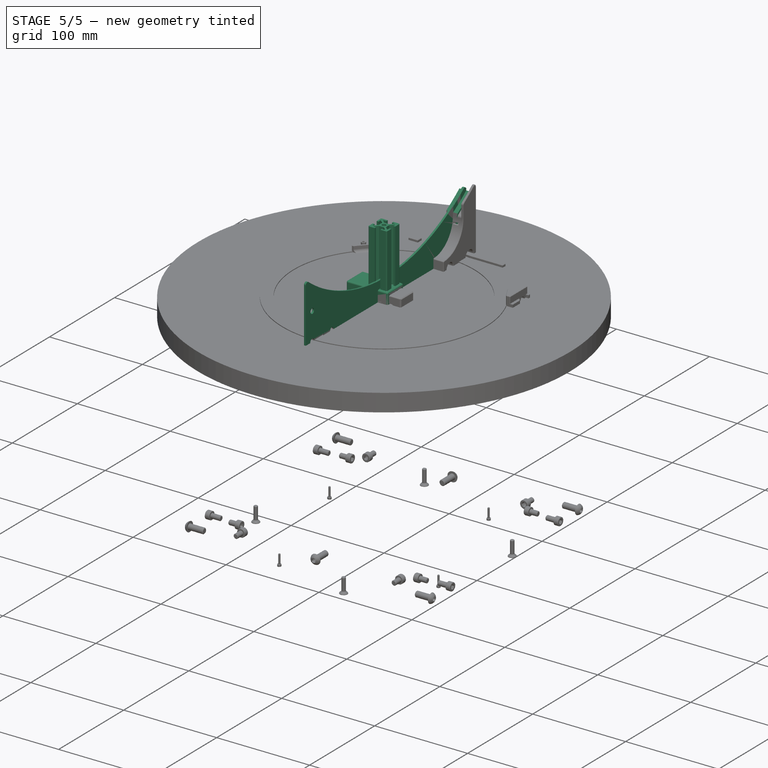
[diagram: stage 5 of 5 — iso view after this stage's code; geometry added in this stage tinted green]
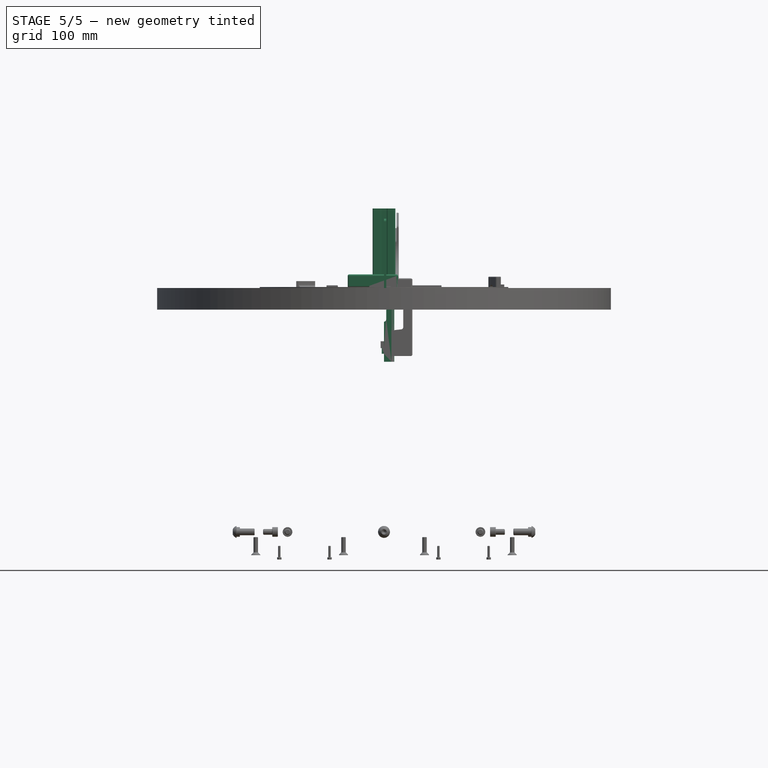
[diagram: stage 5 of 5 — front view after this stage's code; geometry added in this stage tinted green]
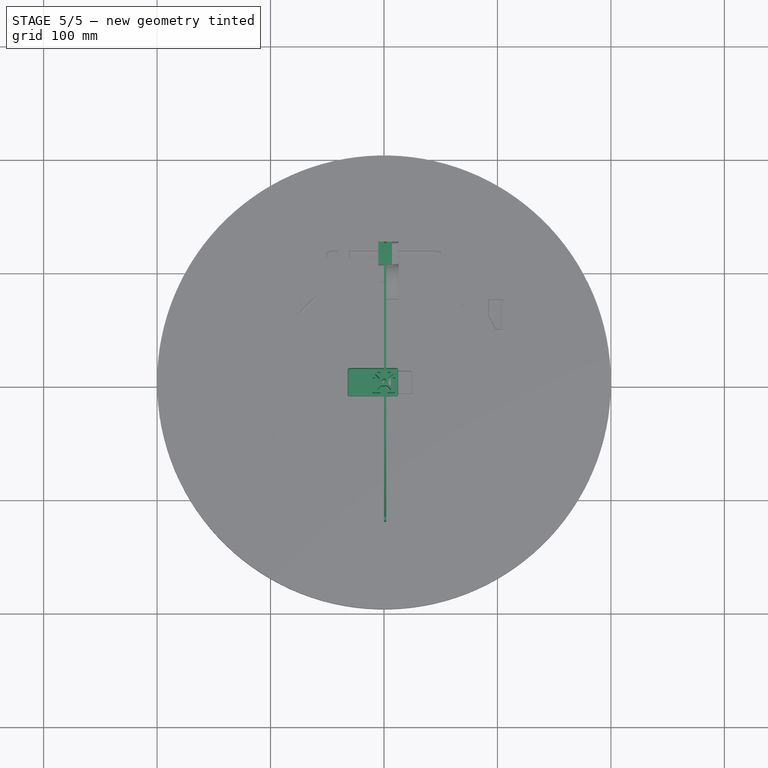
[diagram: stage 5 of 5 — top view after this stage's code; geometry added in this stage tinted green]
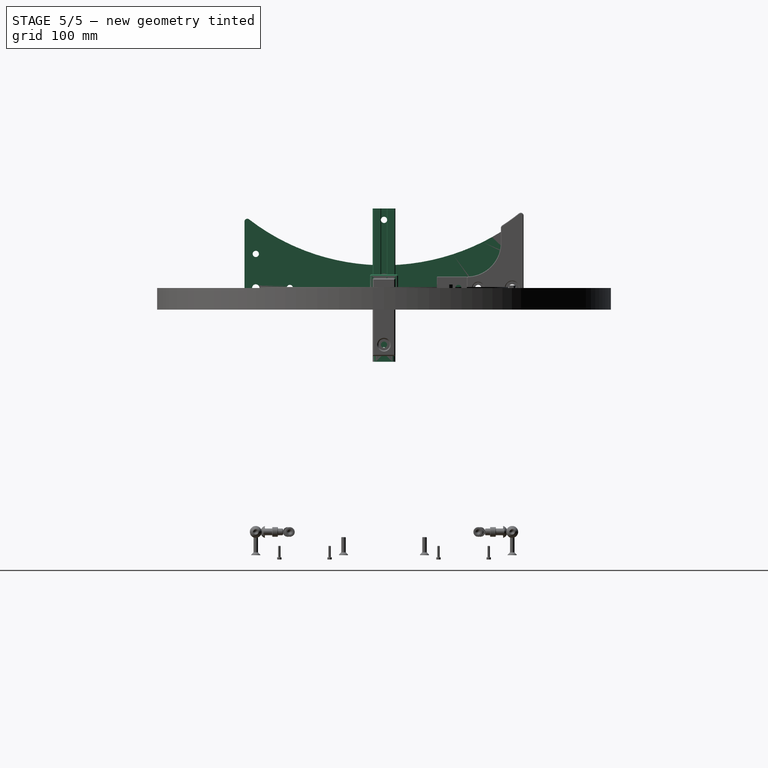
[diagram: stage 5 of 5 — right view after this stage's code; geometry added in this stage tinted green]
FEATURE [PartDesign::CoordinateSystem] Local_CS101  label="LCS_AFrame_C_BoltA"
  AttacherType = Attacher::AttachEngine3D
  MapMode = 11
  Placement = pos=(0,103,-2.29e-14) rot=(0.57735,-0.57735,-0.57735;4.18879rad)
  Support = -> [Pocket011]
FEATURE [PartDesign::CoordinateSystem] Local_CS102  label="LCS_AFrame_C_BoltF"
  AttacherType = Attacher::AttachEngine3D
  MapMode = 11
  Placement = pos=(0,-103,2.29e-14) rot=(0.57735,-0.57735,0.57735;2.0944rad)
  Support = -> [Pocket011]
FEATURE [PartDesign::CoordinateSystem] Local_CS104  label="LCS_AFrame_PS_Corner_FP"
  AttacherType = Attacher::AttachEngine3D
  AttachmentOffset = pos=(-10,-103,0) rot=(0,0,1;1.5708rad)
  MapMode = 5
  Placement = pos=(-10,-103,0) rot=(0,0,1;1.5708rad)
  Support = -> [XY_Plane043]
  expr: .AttachmentOffset.Base.y = -(<<Common>>#<<Parameters>>.boxsize_y / 2 - 20)
FEATURE [PartDesign::CoordinateSystem] Local_CS105  label="LCS_AFrame_PS_Corner_AP"
  AttacherType = Attacher::AttachEngine3D
  AttachmentOffset = pos=(-10,103,0) rot=(0,0,1;3.14159rad)
  MapMode = 5
  Placement = pos=(-10,103,0) rot=(0,0,1;3.14159rad)
  Support = -> [XY_Plane043]
  expr: .AttachmentOffset.Base.y = <<Common>>#<<Parameters>>.boxsize_y / 2 - 20
FEATURE [Sketcher::SketchObject] Sketch096  label="ArmSpacer_Sketch"
  FullyConstrained = true
  MapMode = 5
  Support = -> [XY_Plane069]
  expr: .Constraints.SpacerThick = <<Common>>#<<Parameters>>.alt_sideclamp
  sketch-geometry (12):
    g0: LineSegment StartX=-2 StartY=10 StartZ=0 EndX=11 EndY=10 EndZ=0
    g1: LineSegment StartX=11 StartY=10 StartZ=0 EndX=11 EndY=3 EndZ=0
    g2: LineSegment StartX=11 StartY=3 StartZ=0 EndX=12.5 EndY=3 EndZ=0
    g3: LineSegment StartX=12.5 StartY=3 StartZ=0 EndX=12.5 EndY=-3 EndZ=0
    g4: LineSegment StartX=12.5 StartY=-3 StartZ=0 EndX=11 EndY=-3 EndZ=0
    g5: LineSegment StartX=11 StartY=-3 StartZ=0 EndX=11 EndY=-10 EndZ=0
    g6: LineSegment StartX=11 StartY=-10 StartZ=0 EndX=-2 EndY=-10 EndZ=0
    g7: LineSegment StartX=-2 StartY=10 StartZ=0 EndX=-2 EndY=3 EndZ=0
    g8: LineSegment StartX=-2 StartY=3 StartZ=0 EndX=0 EndY=3 EndZ=0
    g9: LineSegment StartX=0 StartY=3 StartZ=0 EndX=0 EndY=-3 EndZ=0
    g10: LineSegment StartX=0 StartY=-3 StartZ=0 EndX=-2 EndY=-3 EndZ=0
    g11: LineSegment StartX=-2 StartY=-3 StartZ=0 EndX=-2 EndY=-10 EndZ=0
  constraints (35):
    c: Horizontal(g0)
    c: Vertical(g1)
    c: Coincident(g2,g1)
    c: Horizontal(g2)
    c: Coincident(g3,g2)
    c: Coincident(g4,g3)
    c: Coincident(g5,g4)
    c: Vertical(g5)
    c: Coincident(g6,g5)
    c: Horizontal(g6)
    c: Coincident(g0,g1)
    c: DistanceY(g3,g3) = 6
    c: Horizontal(g4)
    c: Equal(g6,g0)
    c: Symmetric(g2,g3,g-1)
    c: DistanceX(g1) = 11  'SpacerThick'
    c: DistanceX(g2,g2) = 1.5
    c: DistanceY(g5,g0) = 20
    c: Equal(g1,g5)
    c: Coincident(g7,g0)
    c: Vertical(g7)
    c: Coincident(g8,g7)
    c: PointOnObject(g8,g-2)
    c: Coincident(g9,g8)
    c: PointOnObject(g9,g-2)
    c: Coincident(g10,g9)
    c: Horizontal(g10)
    c: Coincident(g11,g10)
    c: Coincident(g11,g6)
    c: Vertical(g11)
    c: PointOnObject(g10,g7)
    c: DistanceX(g0,g-1) = 2
    c: PointOnObject(g8,g2)
    c: PointOnObject(g9,g4)
    c: Horizontal(g8)
FEATURE [PartDesign::Pad] Pad035  label="ArmSpacer_Base"
  Direction = (0,0,1)
  Length = 20
  Length2 = 100
  Midplane = true
  Profile = -> Sketch096
  Type = 0
FEATURE [Sketcher::SketchObject] Sketch097  label="ArmSpacer_Tab_Sketch"
  ExternalGeometry = -> [Pad035]
  FullyConstrained = true
  MapMode = 5
  Placement = pos=(0,0,0) rot=(1,0,0;1.5708rad)
  Support = -> [XZ_Plane069]
  sketch-geometry (14):
    g0: LineSegment StartX=0 StartY=-3 StartZ=0 EndX=0 EndY=-10 EndZ=0
    g1: LineSegment StartX=0 StartY=-10 StartZ=0 EndX=-2 EndY=-10 EndZ=0
    g2: LineSegment StartX=-2 StartY=-10 StartZ=0 EndX=-2 EndY=-3 EndZ=0
    g3: LineSegment StartX=-2 StartY=-3 StartZ=0 EndX=0 EndY=-3 EndZ=0
    g4: LineSegment StartX=-2 StartY=10 StartZ=0 EndX=0 EndY=10 EndZ=0
    g5: LineSegment StartX=0 StartY=10 StartZ=0 EndX=0 EndY=3 EndZ=0
    g6: LineSegment StartX=0 StartY=3 StartZ=0 EndX=-2 EndY=3 EndZ=0
    g7: LineSegment StartX=-2 StartY=3 StartZ=0 EndX=-2 EndY=10 EndZ=0
    g8: LineSegment StartX=11 StartY=3 StartZ=0 EndX=12.5 EndY=3 EndZ=0
    g9: LineSegment StartX=12.5 StartY=3 StartZ=0 EndX=12.5 EndY=-3 EndZ=0
    g10: LineSegment StartX=12.5 StartY=-3 StartZ=0 EndX=11 EndY=-3 EndZ=0
    g11: LineSegment StartX=11 StartY=-3 StartZ=0 EndX=11 EndY=3 EndZ=0
    g12: LineSegment StartX=0 StartY=3 StartZ=0 EndX=11 EndY=3 EndZ=0
    g13: LineSegment StartX=0 StartY=-3 StartZ=0 EndX=11 EndY=-3 EndZ=0
  constraints (37):
    c: PointOnObject(g0,g-2)
    c: PointOnObject(g0,g-2)
    c: Coincident(g1,g0)
    c: Coincident(g1,g-3)
    c: Coincident(g2,g1)
    c: PointOnObject(g2,g-3)
    c: Coincident(g3,g2)
    c: Coincident(g3,g0)
    c: Coincident(g4,g5)
    c: Coincident(g5,g6)
    c: Coincident(g6,g7)
    c: Coincident(g7,g4)
    c: Horizontal(g4)
    c: Horizontal(g6)
    c: Vertical(g5)
    c: Vertical(g7)
    c: Coincident(g4,g-3)
    c: PointOnObject(g5,g-2)
    c: Coincident(g8,g9)
    c: Coincident(g9,g10)
    c: Coincident(g10,g11)
    c: Coincident(g11,g8)
    c: Vertical(g9)
    c: PointOnObject(g8,g-4)
    c: PointOnObject(g9,g-5)
    c: Symmetric(g8,g10,g-1)
    c: DistanceY(g11,g11) = 6
    c: Coincident(g12,g5)
    c: Coincident(g12,g8)
    c: Coincident(g13,g0)
    c: Coincident(g13,g10)
    c: Horizontal(g13)
    c: Horizontal(g12)
    c: Horizontal(g1)
    c: Horizontal(g3)
    c: Parallel(g8,g10)
    c: Perpendicular(g-4,g8)
FEATURE [Sketcher::SketchObject] Sketch098  label="ArmSpacer_Hole_Sketch"
  FullyConstrained = true
  MapMode = 5
  Placement = pos=(0,0,0) rot=(0.57735,0.57735,0.57735;2.0944rad)
  Support = -> [YZ_Plane069]
  sketch-geometry (1):
    g0: Circle CenterX=0 CenterY=0 CenterZ=0 NormalX=0 NormalY=0 NormalZ=1 AngleXU=0 Radius=2.75
  constraints (2):
    c: Coincident(g0,g-1)
    c: Diameter(g0) = 5.5
FEATURE [Sketcher::SketchObject] Sketch099  label="ArmPost_Sketch"
  FullyConstrained = true
  MapMode = 5
  Support = -> [XY_Plane070]
  sketch-geometry (75):
    g0: LineSegment StartX=3 StartY=10 StartZ=0 EndX=3 EndY=8 EndZ=0
    g1: LineSegment StartX=3 StartY=8 StartZ=0 EndX=6 EndY=8 EndZ=0
    g2: LineSegment StartX=2.58579 StartY=4 StartZ=0 EndX=-2.58579 EndY=4 EndZ=0
    g3: LineSegment StartX=-6 StartY=8 StartZ=0 EndX=-3 EndY=8 EndZ=0
    g4: LineSegment StartX=-3 StartY=8 StartZ=0 EndX=-3 EndY=10 EndZ=0
    g5: Circle CenterX=0 CenterY=0 CenterZ=0 NormalX=0 NormalY=0 NormalZ=1 AngleXU=0 Radius=2.1
    g6: LineSegment StartX=-10 StartY=3 StartZ=0 EndX=-8 EndY=3 EndZ=0
    g7: LineSegment StartX=-8 StartY=3 StartZ=0 EndX=-8 EndY=6 EndZ=0
    g8: LineSegment StartX=-4 StartY=2.58579 StartZ=0 EndX=-4 EndY=-2.58579 EndZ=0
    g9: LineSegment StartX=-8 StartY=-6 StartZ=0 EndX=-8 EndY=-3 EndZ=0
    g10: LineSegment StartX=-8 StartY=-3 StartZ=0 EndX=-10 EndY=-3 EndZ=0
    g11: LineSegment StartX=-3 StartY=-10 StartZ=0 EndX=-3 EndY=-8 EndZ=0
    g12: LineSegment StartX=-3 StartY=-8 StartZ=0 EndX=-6 EndY=-8 EndZ=0
    g13: LineSegment StartX=-2.58579 StartY=-4 StartZ=0 EndX=2.58579 EndY=-4 EndZ=0
    g14: LineSegment StartX=6 StartY=-8 StartZ=0 EndX=3 EndY=-8 EndZ=0
    g15: LineSegment StartX=3 StartY=-8 StartZ=0 EndX=3 EndY=-10 EndZ=0
    g16: LineSegment StartX=10 StartY=-3 StartZ=0 EndX=8 EndY=-3 EndZ=0
    g17: LineSegment StartX=8 StartY=-3 StartZ=0 EndX=8 EndY=-6 EndZ=0
    g18: LineSegment StartX=8 StartY=-6 StartZ=0 EndX=7.41421 EndY=-6 EndZ=0
    g19: LineSegment StartX=7.41421 StartY=-6 StartZ=0 EndX=4 EndY=-2.58579 EndZ=0
    g20: LineSegment StartX=4 StartY=-2.58579 StartZ=0 EndX=4 EndY=2.58579 EndZ=0
    g21: LineSegment StartX=4 StartY=2.58579 StartZ=0 EndX=7.41421 EndY=6 EndZ=0
    g22: LineSegment StartX=7.41421 StartY=6 StartZ=0 EndX=8 EndY=6 EndZ=0
    g23: LineSegment StartX=8 StartY=6 StartZ=0 EndX=8 EndY=3 EndZ=0
    g24: LineSegment StartX=8 StartY=3 StartZ=0 EndX=10 EndY=3 EndZ=0
    g25: LineSegment StartX=6 StartY=8 StartZ=0 EndX=6 EndY=7.41421 EndZ=0
    g26: LineSegment StartX=6 StartY=7.41421 StartZ=0 EndX=2.58579 EndY=4 EndZ=0
    g27: LineSegment StartX=-2.58579 StartY=4 StartZ=0 EndX=-6 EndY=7.41421 EndZ=0
    g28: LineSegment StartX=-6 StartY=7.41421 StartZ=0 EndX=-6 EndY=8 EndZ=0
    g29: LineSegment StartX=-8 StartY=6 StartZ=0 EndX=-7.41421 EndY=6 EndZ=0
    g30: LineSegment StartX=-7.41421 StartY=6 StartZ=0 EndX=-4 EndY=2.58579 EndZ=0
    g31: LineSegment StartX=-4 StartY=-2.58579 StartZ=0 EndX=-7.41421 EndY=-6 EndZ=0
    g32: LineSegment StartX=-7.41421 StartY=-6 StartZ=0 EndX=-8 EndY=-6 EndZ=0
    g33: LineSegment StartX=-2.58579 StartY=-4 StartZ=0 EndX=-6 EndY=-7.41421 EndZ=0
    g34: LineSegment StartX=-6 StartY=-7.41421 StartZ=0 EndX=-6 EndY=-8 EndZ=0
    g35: LineSegment StartX=2.58579 StartY=-4 StartZ=0 EndX=6 EndY=-7.41421 EndZ=0
    g36: LineSegment StartX=6 StartY=-7.41421 StartZ=0 EndX=6 EndY=-8 EndZ=0
    g37: LineSegment StartX=-4 StartY=2.58579 StartZ=0 EndX=-2.58579 EndY=4 EndZ=0
    g38: LineSegment StartX=-7.41421 StartY=7.41421 StartZ=0 EndX=7.41421 EndY=7.41421 EndZ=0
    g39: LineSegment StartX=7.41421 StartY=7.41421 StartZ=0 EndX=7.41421 EndY=-7.41421 EndZ=0
    g40: LineSegment StartX=7.41421 StartY=-7.41421 StartZ=0 EndX=-7.41421 EndY=-7.41421 EndZ=0
    g41: LineSegment StartX=-7.41421 StartY=-7.41421 StartZ=0 EndX=-7.41421 EndY=7.41421 EndZ=0
    g42: LineSegment StartX=-10 StartY=10 StartZ=0 EndX=10 EndY=10 EndZ=0
    g43: LineSegment StartX=10 StartY=10 StartZ=0 EndX=10 EndY=-10 EndZ=0
    g44: LineSegment StartX=10 StartY=-10 StartZ=0 EndX=-10 EndY=-10 EndZ=0
    g45: LineSegment StartX=-10 StartY=-10 StartZ=0 EndX=-10 EndY=10 EndZ=0
    g46: LineSegment StartX=4 StartY=4 StartZ=0 EndX=-4 EndY=4 EndZ=0
    g47: LineSegment StartX=-4 StartY=4 StartZ=0 EndX=-4 EndY=-4 EndZ=0
    g48: LineSegment StartX=-4 StartY=-4 StartZ=0 EndX=4 EndY=-4 EndZ=0
    g49: LineSegment StartX=4 StartY=-4 StartZ=0 EndX=4 EndY=4 EndZ=0
    g50: LineSegment StartX=-10 StartY=-10 StartZ=0 EndX=10 EndY=10 EndZ=0
    g51: LineSegment StartX=-10 StartY=10 StartZ=0 EndX=10 EndY=-10 EndZ=0
    g52: LineSegment StartX=2.58579 StartY=4 StartZ=0 EndX=4 EndY=2.58579 EndZ=0
    g53: LineSegment StartX=2.58579 StartY=-4 StartZ=0 EndX=4 EndY=-2.58579 EndZ=0
    g54: LineSegment StartX=-4 StartY=-2.58579 StartZ=0 EndX=-2.58579 EndY=-4 EndZ=0
    g55: LineSegment StartX=10 StartY=3 StartZ=0 EndX=3 EndY=10 EndZ=0
    g56: LineSegment StartX=-3 StartY=10 StartZ=0 EndX=-10 EndY=3 EndZ=0
    g57: LineSegment StartX=-10 StartY=-3 StartZ=0 EndX=-3 EndY=-10 EndZ=0
    g58: LineSegment StartX=3 StartY=-10 StartZ=0 EndX=10 EndY=-3 EndZ=0
    g59: ArcOfCircle CenterX=-9 CenterY=9 CenterZ=0 NormalX=0 NormalY=0 NormalZ=1 AngleXU=0 Radius=1 StartAngle=1.57078 EndAngle=3.14161
    g60: ArcOfCircle CenterX=9 CenterY=9 CenterZ=0 NormalX=0 NormalY=0 NormalZ=1 AngleXU=0 Radius=1 StartAngle=6.28316 EndAngle=7.854
    g61: ArcOfCircle CenterX=9 CenterY=-9 CenterZ=0 NormalX=0 NormalY=0 NormalZ=1 AngleXU=0 Radius=1 StartAngle=4.71238 EndAngle=6.28319
    g62: ArcOfCircle CenterX=-9 CenterY=-9 CenterZ=0 NormalX=0 NormalY=0 NormalZ=1 AngleXU=0 Radius=1 StartAngle=3.14159 EndAngle=4.71241
    g63: LineSegment StartX=-10 StartY=-9 StartZ=0 EndX=10 EndY=-9 EndZ=0
    g64: LineSegment StartX=-10 StartY=8.99998 StartZ=0 EndX=10 EndY=8.99998 EndZ=0
    g65: LineSegment StartX=-8.99998 StartY=10 StartZ=0 EndX=-8.99998 EndY=-10 EndZ=0
    g66: LineSegment StartX=8.99999 StartY=10 StartZ=0 EndX=8.99999 EndY=-10 EndZ=0
    g67: LineSegment StartX=-10 StartY=8.99998 StartZ=0 EndX=-10 EndY=3 EndZ=0
    g68: LineSegment StartX=-10 StartY=-3 StartZ=0 EndX=-10 EndY=-9 EndZ=0
    g69: LineSegment StartX=-8.99998 StartY=10 StartZ=0 EndX=-3 EndY=10 EndZ=0
    g70: LineSegment StartX=8.99999 StartY=10 StartZ=0 EndX=3 EndY=10 EndZ=0
    g71: LineSegment StartX=10 StartY=8.99998 StartZ=0 EndX=10 EndY=3 EndZ=0
    g72: LineSegment StartX=10 StartY=-9 StartZ=0 EndX=10 EndY=-3 EndZ=0
    g73: LineSegment StartX=8.99999 StartY=-10 StartZ=0 EndX=3 EndY=-10 EndZ=0
    g74: LineSegment StartX=-8.99998 StartY=-10 StartZ=0 EndX=-3 EndY=-10 EndZ=0
  constraints (212):
    c: Diameter(g5) = 4.2
    c: Coincident(g42,g43)
    c: Coincident(g43,g44)
    c: Coincident(g44,g45)
    c: Coincident(g45,g42)
    c: Horizontal(g44)
    c: Vertical(g45)
    c: Symmetric(g42,g43,g-1)
    c: Symmetric(g42,g42,g-2)
    c: Coincident(g5,g-1)
    c: Coincident(g38,g41)
    c: Coincident(g7,g29)
    c: Coincident(g29,g30)
    c: Coincident(g27,g28)
    c: Coincident(g3,g28)
    c: Coincident(g3,g4)
    c: Coincident(g6,g7)
    c: Coincident(g2,g27)
    c: Coincident(g2,g37)
    c: Coincident(g8,g30)
    c: Coincident(g8,g37)
    c: Coincident(g8,g31)
    c: Coincident(g13,g33)
    c: Coincident(g9,g10)
    c: Coincident(g11,g12)
    c: Coincident(g12,g34)
    c: Coincident(g33,g34)
    c: Coincident(g40,g41)
    c: Coincident(g31,g32)
    c: Coincident(g9,g32)
    c: Coincident(g14,g36)
    c: Coincident(g17,g18)
    c: Coincident(g39,g40)
    c: Coincident(g18,g19)
    c: Coincident(g35,g36)
    c: Coincident(g13,g35)
    c: Coincident(g19,g20)
    c: Coincident(g16,g17)
    c: Coincident(g0,g1)
    c: Coincident(g1,g25)
    c: Coincident(g22,g23)
    c: Coincident(g23,g24)
    c: Coincident(g21,g22)
    c: Coincident(g38,g39)
    c: Coincident(g25,g26)
    c: Coincident(g2,g26)
    c: Coincident(g20,g21)
    c: Horizontal(g1)
    c: Horizontal(g3)
    c: Horizontal(g12)
    c: Horizontal(g14)
    c: Vertical(g34)
    c: Vertical(g11)
    c: Vertical(g15)
    c: Vertical(g36)
    c: Vertical(g4)
    c: Vertical(g0)
    c: Vertical(g28)
    c: Vertical(g25)
    c: Vertical(g7)
    c: Vertical(g9)
    c: Vertical(g23)
    c: Vertical(g17)
    c: Horizontal(g29)
    c: Horizontal(g6)
    c: Horizontal(g10)
    c: Horizontal(g32)
    c: Horizontal(g22)
    c: Horizontal(g24)
    c: Horizontal(g16)
    c: Horizontal(g18)
    c: Parallel(g30,g27)
    c: Parallel(g27,g35)
    c: Parallel(g35,g19)
    c: Parallel(g21,g26)
    c: Parallel(g31,g33)
    c: Coincident(g46,g47)
    c: Coincident(g47,g48)
    c: Coincident(g48,g49)
    c: Coincident(g49,g46)
    c: Horizontal(g46)
    c: Horizontal(g48)
    c: Vertical(g47)
    c: Vertical(g49)
    c: Horizontal(g2)
    c: Horizontal(g13)
    c: Vertical(g8)
    c: Vertical(g20)
    c: PointOnObject(g2,g46)
    c: PointOnObject(g19,g49)
    c: PointOnObject(g13,g48)
    c: PointOnObject(g8,g47)
    c: Coincident(g50,g44)
    c: Coincident(g50,g42)
    c: Coincident(g51,g42)
    c: Coincident(g51,g43)
    c: PointOnObject(g39,g51)
    c: PointOnObject(g38,g50)
    c: PointOnObject(g38,g51)
    c: Vertical(g39)
    c: Vertical(g41)
    c: Horizontal(g38)
    c: Horizontal(g40)
    c: PointOnObject(g46,g50)
    c: PointOnObject(g46,g51)
    c: PointOnObject(g48,g51)
    c: Parallel(g27,g51)
    c: Parallel(g26,g50)
    c: Perpendicular(g51,g37)
    c: Parallel(g31,g26)
    c: PointOnObject(g4,g42)
    c: PointOnObject(g24,g43)
    c: PointOnObject(g6,g45)
    c: PointOnObject(g10,g45)
    c: PointOnObject(g29,g41)
    c: PointOnObject(g31,g41)
    c: PointOnObject(g33,g40)
    c: PointOnObject(g35,g40)
    c: PointOnObject(g18,g39)
    c: PointOnObject(g21,g39)
    c: PointOnObject(g25,g38)
    c: PointOnObject(g27,g38)
    c: Coincident(g52,g2)
    c: Coincident(g52,g20)
    c: Coincident(g53,g13)
    c: Coincident(g53,g19)
    c: Coincident(g54,g8)
    c: Coincident(g54,g13)
    c: Perpendicular(g50,g54)
    c: Perpendicular(g51,g53)
    c: Perpendicular(g50,g52)
    c: Equal(g37,g52)
    c: Equal(g52,g53)
    c: Equal(g53,g54)
    c: Distance(g37) = 2
    c: Coincident(g14,g15)
    c: PointOnObject(g6,g24)
    c: PointOnObject(g9,g16)
    c: PointOnObject(g11,g4)
    c: PointOnObject(g14,g0)
    c: PointOnObject(g11,g44)
    c: PointOnObject(g15,g44)
    c: DistanceX(g42) = 10
    c: DistanceY(g49,g49) = 8
    c: DistanceY(g18,g21) = 12
    c: Coincident(g56,g4)
    c: Coincident(g57,g10)
    c: Coincident(g58,g15)
    c: Perpendicular(g51,g58)
    c: Perpendicular(g50,g55)
    c: Perpendicular(g51,g56)
    c: Equal(g58,g57)
    c: Equal(g57,g55)
    c: DistanceY(g16,g24) = 6
    c: Equal(g42,g43)
    c: Coincident(g55,g0)
    c: Coincident(g55,g24)
    c: Coincident(g56,g6)
    c: Coincident(g11,g57)
    c: Coincident(g16,g58)
    c: DistanceX(g6,g6) = 2
    c: Equal(g6,g10)
    c: Equal(g10,g24)
    c: Equal(g24,g16)
    c: Equal(g16,g15)
    c: Equal(g15,g11)
    c: Equal(g11,g4)
    c: Equal(g4,g0)
    c: PointOnObject(g59,g51)
    c: PointOnObject(g59,g45)
    c: PointOnObject(g59,g42)
    c: PointOnObject(g60,g42)
    c: PointOnObject(g60,g43)
    c: PointOnObject(g61,g51)
    c: PointOnObject(g61,g43)
    c: PointOnObject(g61,g44)
    c: PointOnObject(g62,g50)
    c: PointOnObject(g62,g44)
    c: PointOnObject(g62,g45)
    c: Radius(g62) = 1
    c: Equal(g62,g59)
    c: Equal(g59,g60)
    c: Equal(g60,g61)
    c: Coincident(g63,g62)
    c: Coincident(g63,g61)
    c: Horizontal(g63)
    c: Coincident(g64,g59)
    c: Coincident(g64,g60)
    c: Horizontal(g64)
    c: Coincident(g65,g59)
    c: Coincident(g65,g62)
    c: Vertical(g65)
    c: Coincident(g66,g60)
    c: Coincident(g66,g61)
    c: Vertical(g66)
    c: PointOnObject(g62,g63)
    c: Coincident(g67,g59)
    c: Coincident(g67,g6)
    c: Coincident(g68,g10)
    c: Coincident(g68,g62)
    c: Coincident(g69,g59)
    c: Coincident(g69,g4)
    c: Coincident(g70,g60)
    c: Coincident(g70,g0)
    c: Coincident(g71,g60)
    c: Coincident(g71,g24)
    c: Coincident(g72,g61)
    c: Coincident(g72,g16)
    c: Coincident(g73,g61)
    c: Coincident(g73,g15)
    c: Coincident(g74,g62)
    c: Coincident(g74,g11)
FEATURE [PartDesign::Pad] Pad037  label="ArmPost_Pad"
  Direction = (0,0,1)
  Length = 70
  Length2 = 100
  Profile = -> Sketch099
  Type = 0
  expr: Length = <<Common>>#<<Parameters>>.datum_rocker_z - <<Common>>#<<Parameters>>.datum_azbase + 15 - <<Common>>#<<Parameters>>.rail_dia / 2 + <<Common>>#<<Parameters>>.rail_height + 5
FEATURE [Sketcher::SketchObject] Sketch100  label="ArmPost_Hole_Sketch"
  ExternalGeometry = -> [Pad037]
  FullyConstrained = true
  MapMode = 5
  Placement = pos=(4,0,0) rot=(0.57735,0.57735,0.57735;2.0944rad)
  Support = -> [Pad037]
  sketch-geometry (2):
    g0: Circle CenterX=0 CenterY=10 CenterZ=0 NormalX=0 NormalY=0 NormalZ=1 AngleXU=0 Radius=2.75
    g1: Circle CenterX=0 CenterY=60 CenterZ=0 NormalX=0 NormalY=0 NormalZ=1 AngleXU=0 Radius=2.75
  constraints (6):
    c: PointOnObject(g0,g-2)
    c: PointOnObject(g1,g-2)
    c: Diameter(g1) = 5.5
    c: Equal(g1,g0)
    c: DistanceY(g0) = 10
    c: DistanceY(g1,g-3) = 10
FEATURE [PartDesign::Pocket] Pocket039  label="ArmPost_Hole"
  BaseFeature = -> Pad037
  Direction = (-1,0,0)
  Length = 5
  Length2 = 100
  Midplane = true
  Profile = -> Sketch100
  Type = 1
FEATURE [PartDesign::CoordinateSystem] Local_CS207  label="LCS_AzimuthBase_Nut"
  AttacherType = Attacher::AttachEngine3D
  MapMode = 11
  Placement = pos=(0,0,-8) rot=(0,0,1;1.5708rad)
  Support = -> [Hole037]
FEATURE [PartDesign::CoordinateSystem] Local_CS208  label="LCS_AzimuthBase_Top"
  AttacherType = Attacher::AttachEngine3D
  MapMode = 11
  Placement = pos=(0,0,-19.05) rot=(0.707107,-0.707107,0;3.14159rad)
  Support = -> [Hole037]
FEATURE [PartDesign::Body] Body022020  label="AzimuthBase"
  Group = -> [Cylinder006,Sketch105,Pocket045,Sketch106,Hole037,Local_CS207,Local_CS208]
  Origin = -> Origin073
  Placement = pos=(0,0,-147) rot=(0,0,1;0rad)
  Tip = -> Hole037
  expr: .Placement.Base.z = <<Common>>#<<Parameters>>.datum_azbase - 15
FEATURE [Sketcher::SketchObject] Sketch107  label="TopRetainer_Shaft_Sketch"
  AttachmentOffset = pos=(0,0,13) rot=(0,0,1;0rad)
  FullyConstrained = true
  MapMode = 5
  Placement = pos=(13,-2.9e-15,2.9e-15) rot=(0.57735,0.57735,0.57735;2.0944rad)
  Support = -> [YZ_Plane075]
  expr: .AttachmentOffset.Base.z = 10 + <<Common>>#<<Parameters>>.sec_fthick
  sketch-geometry (1):
    g0: Circle CenterX=0 CenterY=0 CenterZ=0 NormalX=0 NormalY=0 NormalZ=1 AngleXU=0 Radius=2.75
  constraints (2):
    c: Coincident(g0,g-1)
    c: Diameter(g0) = 5.5
FEATURE [Sketcher::SketchObject] Sketch108  label="TopRetainer_BaseProfile"
  FullyConstrained = true
  MapMode = 5
  Support = -> [XY_Plane075]
  expr: Constraints[7] = 10 + <<Common>>#<<Parameters>>.alt_sideclamp + <<Common>>#<<Parameters>>.rocker_plate + <<Common>>#<<Parameters>>.rail_width - 1
  sketch-geometry (7):
    g0: LineSegment StartX=-32 StartY=12.4 StartZ=0 EndX=12.4 EndY=12.4 EndZ=0
    g1: LineSegment StartX=12.4 StartY=12.4 StartZ=0 EndX=12.4 EndY=-12.4 EndZ=0
    g2: LineSegment StartX=12.4 StartY=-12.4 StartZ=0 EndX=-32 EndY=-12.4 EndZ=0
    g3: LineSegment StartX=-32 StartY=-12.4 StartZ=0 EndX=-32 EndY=12.4 EndZ=0
    g4: GeomPoint X=12.4 Y=12.4 Z=0
    g5: GeomPoint X=12.4 Y=-12.4 Z=0
    g6: Circle CenterX=0 CenterY=0 CenterZ=0 NormalX=0 NormalY=0 NormalZ=1 AngleXU=0 Radius=3
  constraints (17):
    c: Coincident(g2,g3)
    c: Coincident(g3,g0)
    c: Horizontal(g0)
    c: Horizontal(g2)
    c: Vertical(g3)
    c: DistanceY(g4) = 12.4
    c: Symmetric(g4,g5,g-1)
    c: DistanceX(g0,g-1) = 32
    c: PointOnObject(g4,g0)
    c: PointOnObject(g4,g1)
    c: PointOnObject(g5,g1)
    c: PointOnObject(g5,g2)
    c: Coincident(g0,g1)
    c: Coincident(g2,g1)
    c: DistanceX(g0) = 12.4
    c: Coincident(g6,g-1)
    c: Diameter(g6) = 6
FEATURE [PartDesign::Pad] Pad039  label="TopRetainer_Base"
  Direction = (0,0,1)
  Length = 12
  Length2 = 5
  Midplane = true
  Profile = -> Sketch108
  Type = 4
FEATURE [PartDesign::Plane] DatumPlane028  label="DatumPlane_TopRetainer_RailSide"
  AttachmentOffset = pos=(0,0,32) rot=(0,0,1;0rad)
  Length = 60
  MapMode = 5
  Placement = pos=(-32,7.1e-15,-7.1e-15) rot=(-0.57735,0.57735,0.57735;4.18879rad)
  ResizeMode = 0
  Support = -> [YZ_Plane075]
  Width = 60
  expr: .AttachmentOffset.Base.z = 10 + <<Common>>#<<Parameters>>.alt_sideclamp + <<Common>>#<<Parameters>>.rocker_plate + <<Common>>#<<Parameters>>.rail_width - 1
FEATURE [Sketcher::SketchObject] Sketch109  label="TopRetainer_ArcCut_Sketch"
  FullyConstrained = true
  MapMode = 5
  Placement = pos=(-32,7.1e-15,-7.1e-15) rot=(-0.57735,0.57735,0.57735;4.18879rad)
  Support = -> [DatumPlane028]
  expr: Constraints[2] = <<Common>>#<<Parameters>>.rail_dia - <<Common>>#<<Parameters>>.rail_height * 2 - 1.5
  expr: Constraints[4] = <<Common>>#<<Parameters>>.rail_dia
  sketch-geometry (2):
    g0: Circle CenterX=0 CenterY=164.25 CenterZ=0 NormalX=0 NormalY=0 NormalZ=1 AngleXU=0 Radius=164.25
    g1: Circle CenterX=0 CenterY=164.25 CenterZ=0 NormalX=0 NormalY=0 NormalZ=1 AngleXU=0 Radius=200
  constraints (5):
    c: PointOnObject(g0,g-2)
    c: PointOnObject(g-1,g0)
    c: Diameter(g0) = 328.5
    c: Coincident(g1,g0)
    c: Diameter(g1) = 400
FEATURE [PartDesign::CoordinateSystem] Local_CS214  label="LCS_ArmPole_Upper"
  AttacherType = Attacher::AttachEngine3D
  AttachmentOffset = pos=(0,0,-10) rot=(-0.57735,-0.57735,-0.57735;2.0944rad)
  MapMode = 11
  Placement = pos=(0,0,60) rot=(0,-1,0;1.5708rad)
  Support = -> [Pocket039]
FEATURE [PartDesign::CoordinateSystem] Local_CS215  label="LCS_ArmPole_Lower"
  AttacherType = Attacher::AttachEngine3D
  AttachmentOffset = pos=(0,0,10) rot=(-0.57735,-0.57735,-0.57735;2.0944rad)
  MapMode = 11
  Placement = pos=(0,0,10) rot=(0,-1,0;1.5708rad)
  Support = -> [Pocket039]
FEATURE [PartDesign::Body] Body022017  label="ArmPost"
  Group = -> [Sketch099,Pad037,Sketch100,Pocket039,Local_CS214,Local_CS215]
  Origin = -> Origin070
  Placement = pos=(158,0,-142) rot=(0,0,1;0rad)
  Tip = -> Pocket039
  expr: .Placement.Base.x = <<Common>>#<<Parameters>>.bolt_x + <<Common>>#<<Parameters>>.rail_width + <<Common>>#<<Parameters>>.alt_sideclamp + 2 + <<Common>>#<<Parameters>>.rocker_plate + 20
  expr: .Placement.Base.z = <<Common>>#<<Parameters>>.datum_azbase - 10
FEATURE [PartDesign::CoordinateSystem] Local_CS217  label="LCS_SidePlate_ArmSlot"
  AttacherType = Attacher::AttachEngine3D
  AttachmentOffset = pos=(0,-5,1) rot=(0,0,1;1.5708rad)
  MapMode = 5
  Placement = pos=(1,-1.3e-15,-5) rot=(0.707107,0,0.707107;3.14159rad)
  Support = -> [YZ_Plane032]
  expr: .AttachmentOffset.Base.z = <<Common>>#<<Parameters>>.rocker_plate / 2
FEATURE [PartDesign::Plane] DatumPlane029  label="SidePlate_DatumPlane_P"
  AttachmentOffset = pos=(0,0,2) rot=(0,0,1;0rad)
  Length = 275.092
  MapMode = 5
  Placement = pos=(2,-4e-16,4e-16) rot=(0.57735,0.57735,0.57735;2.0944rad)
  ResizeMode = 0
  Support = -> [YZ_Plane032]
  Width = 115.103
  expr: .AttachmentOffset.Base.z = <<Common>>#<<Parameters>>.rocker_plate
FEATURE [PartDesign::CoordinateSystem] Local_CS059  label="LCS_SidePlate_PostAP"
  AttacherType = Attacher::AttachEngine3D
  AttachmentOffset = pos=(113,-5,0) rot=(0,0,1;1.5708rad)
  MapMode = 5
  Placement = pos=(2,113,-5) rot=(0.707107,0,0.707107;3.14159rad)
  Support = -> [DatumPlane029]
  expr: .AttachmentOffset.Base.x = <<Common>>#<<Parameters>>.bolt_y
FEATURE [PartDesign::CoordinateSystem] Local_CS063  label="LCS_SidePlate_PostFP"
  AttacherType = Attacher::AttachEngine3D
  AttachmentOffset = pos=(-113,-5,0) rot=(0,0,1;1.5708rad)
  MapMode = 5
  Placement = pos=(2,-113,-5) rot=(0.707107,0,0.707107;3.14159rad)
  Support = -> [DatumPlane029]
  expr: .AttachmentOffset.Base.x = -<<Common>>#<<Parameters>>.bolt_y
FEATURE [PartDesign::CoordinateSystem] Local_CS110  label="LCS_SidePlate_BraceAP"
  AttacherType = Attacher::AttachEngine3D
  AttachmentOffset = pos=(83,-5,0) rot=(0,0,1;1.5708rad)
  MapMode = 5
  Placement = pos=(2,83,-5) rot=(0.707107,0,0.707107;3.14159rad)
  Support = -> [DatumPlane029]
  expr: .AttachmentOffset.Base.x = <<Common>>#<<Parameters>>.bolt_y - 30
FEATURE [PartDesign::CoordinateSystem] Local_CS112  label="LCS_SidePlate_BraceFP"
  AttacherType = Attacher::AttachEngine3D
  AttachmentOffset = pos=(-83,-5,0) rot=(0,0,1;1.5708rad)
  MapMode = 5
  Placement = pos=(2,-83,-5) rot=(0.707107,0,0.707107;3.14159rad)
  Support = -> [DatumPlane029]
  expr: .AttachmentOffset.Base.x = -<<Common>>#<<Parameters>>.bolt_y + 30
FEATURE [PartDesign::CoordinateSystem] Local_CS182  label="LCS_SidePlate_PBrace_AP"
  AttacherType = Attacher::AttachEngine3D
  AttachmentOffset = pos=(113,25,0) rot=(0,0,1;1.5708rad)
  MapMode = 5
  Placement = pos=(2,113,25) rot=(0.707107,0,0.707107;3.14159rad)
  Support = -> [DatumPlane029]
  expr: .AttachmentOffset.Base.x = <<Common>>#<<Parameters>>.bolt_y
FEATURE [PartDesign::CoordinateSystem] Local_CS184  label="LCS_SidePlate_PBrace_FP"
  AttacherType = Attacher::AttachEngine3D
  AttachmentOffset = pos=(-113,25,0) rot=(0,0,1;1.5708rad)
  MapMode = 5
  Placement = pos=(2,-113,25) rot=(0.707107,0,0.707107;3.14159rad)
  Support = -> [DatumPlane029]
  expr: .AttachmentOffset.Base.x = -<<Common>>#<<Parameters>>.bolt_y
FEATURE [PartDesign::Plane] DatumPlane030  label="SidePlate_DatumPlane_S"
  Length = 275.092
  MapMode = 5
  Placement = pos=(0,0,0) rot=(0.57735,0.57735,0.57735;2.0944rad)
  ResizeMode = 0
  Support = -> [YZ_Plane032]
  Width = 115.103
FEATURE [PartDesign::CoordinateSystem] Local_CS061  label="LCS_SidePlate_PostAS"
  AttacherType = Attacher::AttachEngine3D
  AttachmentOffset = pos=(-113,-5,0) rot=(0,0,1;1.5708rad)
  MapMode = 5
  Placement = pos=(1.31e-14,113,-5) rot=(0,1,0;4.71239rad)
  Support = -> [DatumPlane030]
  expr: .AttachmentOffset.Base.x = -<<Common>>#<<Parameters>>.bolt_y
FEATURE [PartDesign::CoordinateSystem] Local_CS065  label="LCS_SidePlate_PostFS"
  AttacherType = Attacher::AttachEngine3D
  AttachmentOffset = pos=(113,-5,0) rot=(0,0,1;1.5708rad)
  MapMode = 5
  Placement = pos=(-1.2e-14,-113,-5) rot=(0,1,0;4.71239rad)
  Support = -> [DatumPlane030]
  expr: .AttachmentOffset.Base.x = <<Common>>#<<Parameters>>.bolt_y
FEATURE [PartDesign::CoordinateSystem] Local_CS111  label="LCS_SidePlate_BraceAS"
  AttacherType = Attacher::AttachEngine3D
  AttachmentOffset = pos=(-83,-5,0) rot=(0,0,1;1.5708rad)
  MapMode = 5
  Placement = pos=(9.8e-15,83,-5) rot=(0,1,0;4.71239rad)
  Support = -> [DatumPlane030]
  expr: .AttachmentOffset.Base.x = -<<Common>>#<<Parameters>>.bolt_y + 30
FEATURE [PartDesign::CoordinateSystem] Local_CS113  label="LCS_SidePlate_BraceFS"
  AttacherType = Attacher::AttachEngine3D
  AttachmentOffset = pos=(83,-5,0) rot=(0,0,1;1.5708rad)
  MapMode = 5
  Placement = pos=(-8.7e-15,-83,-5) rot=(0,1,0;4.71239rad)
  Support = -> [DatumPlane030]
  expr: .AttachmentOffset.Base.x = <<Common>>#<<Parameters>>.bolt_y - 30
FEATURE [PartDesign::CoordinateSystem] Local_CS183  label="LCS_SidePlate_PBrace_AS"
  AttacherType = Attacher::AttachEngine3D
  AttachmentOffset = pos=(-113,25,0) rot=(0,0,1;1.5708rad)
  MapMode = 5
  Placement = pos=(9.8e-15,113,25) rot=(0,1,0;4.71239rad)
  Support = -> [DatumPlane030]
  expr: .AttachmentOffset.Base.x = -<<Common>>#<<Parameters>>.bolt_y
FEATURE [PartDesign::CoordinateSystem] Local_CS185  label="LCS_SidePlate_PBrace_FS"
  AttacherType = Attacher::AttachEngine3D
  AttachmentOffset = pos=(113,25,0) rot=(0,0,1;1.5708rad)
  MapMode = 5
  Placement = pos=(-1.53e-14,-113,25) rot=(0,1,0;4.71239rad)
  Support = -> [DatumPlane030]
  expr: .AttachmentOffset.Base.x = <<Common>>#<<Parameters>>.bolt_y
FEATURE [PartDesign::CoordinateSystem] Local_CS219  label="LCS_AFrame_C_Pivot"
  AttacherType = Attacher::AttachEngine3D
  AttachmentOffset = pos=(0,0,215) rot=(0,0,1;0rad)
  MapMode = 5
  Placement = pos=(0,0,215) rot=(0,0,1;0rad)
  Support = -> [XY_Plane049]
  expr: .AttachmentOffset.Base.z = <<Common>>#<<Parameters>>.datum_rocker_z - <<Common>>#<<Parameters>>.datum_azbase
FEATURE [PartDesign::CoordinateSystem] Local_CS220  label="LCS_AFrame_C_BaseHub"
  AttacherType = Attacher::AttachEngine3D
  MapMode = 5
  Support = -> [XY_Plane049]
FEATURE [PartDesign::Body] Body035  label="AFrame_C"
  Group = -> [Sketch056,Pad028,Sketch057,Pocket011,Local_CS101,Local_CS102,Local_CS219,Local_CS220]
  Origin = -> Origin049
  Placement = pos=(0,0,-132) rot=(0,0,1;0rad)
  Tip = -> Pocket011
  expr: .Placement.Base.z = <<Common>>#<<Parameters>>.datum_azbase
FEATURE [PartDesign::Pocket] Pocket055  label="ArmSpacer_Tab"
  BaseFeature = -> Pad035
  Direction = (0,1,2e-16)
  Length = 5
  Length2 = 100
  Midplane = true
  Profile = -> Sketch097
  Type = 1
FEATURE [PartDesign::Pocket] Pocket056  label="ArmSpacer_Hole"
  BaseFeature = -> Pocket055
  Direction = (-1,2e-16,-3e-16)
  Length = 5
  Length2 = 100
  Midplane = true
  Profile = -> Sketch098
  Type = 1
FEATURE [PartDesign::CoordinateSystem] Local_CS212  label="LCS_ArmSpacer_I"
  AttacherType = Attacher::AttachEngine3D
  MapMode = 11
  Placement = pos=(0,0,1.8e-15) rot=(0.707107,0,0.707107;3.14159rad)
  Support = -> [Pocket056]
FEATURE [PartDesign::CoordinateSystem] Local_CS213  label="LCS_ArmSpacer_O"
  AttacherType = Attacher::AttachEngine3D
  MapMode = 11
  Placement = pos=(11,-2.2e-15,4.2e-15) rot=(0.707107,0,0.707107;3.14159rad)
  Support = -> [Pocket056]
FEATURE [PartDesign::Body] Body022016  label="ArmSpacer"
  Group = -> [Sketch096,Pad035,Sketch097,Sketch098,Local_CS212,Local_CS213,Pocket055,Pocket056]
  Origin = -> Origin069
  Placement = pos=(137,0,-132) rot=(0,0,1;0rad)
  Tip = -> Pocket056
  expr: .Placement.Base.x = <<Common>>#<<Parameters>>.bolt_x + <<Common>>#<<Parameters>>.rail_width + 12 + <<Common>>#<<Parameters>>.rocker_plate
  expr: .Placement.Base.z = <<Common>>#<<Parameters>>.datum_azbase
FEATURE [PartDesign::Plane] DatumPlane048  label="DatumPlane_TopRetainer_LowerSide"
  AttachmentOffset = pos=(0,0,10) rot=(0,0,1;0rad)
  Length = 67.6771
  MapMode = 5
  Placement = pos=(0,0,-10) rot=(0,1,0;3.14159rad)
  ResizeMode = 0
  Support = -> [XY_Plane075]
  Width = 60.6771
FEATURE [Sketcher::SketchObject] Sketch110  label="TopRetainer_PostCut_Sketch"
  FullyConstrained = true
  MapMode = 5
  Placement = pos=(0,0,-10) rot=(0,1,0;3.14159rad)
  Support = -> [DatumPlane048]
  sketch-geometry (24):
    g0: LineSegment StartX=-10.2 StartY=10.2 StartZ=0 EndX=-3 EndY=10.2 EndZ=0
    g1: LineSegment StartX=-3 StartY=10.2 StartZ=0 EndX=-3 EndY=8.2 EndZ=0
    g2: LineSegment StartX=-3 StartY=8.2 StartZ=0 EndX=3 EndY=8.2 EndZ=0
    g3: LineSegment StartX=3 StartY=8.2 StartZ=0 EndX=3 EndY=10.2 EndZ=0
    g4: LineSegment StartX=3 StartY=10.2 StartZ=0 EndX=10.2 EndY=10.2 EndZ=0
    g5: LineSegment StartX=10.2 StartY=10.2 StartZ=0 EndX=10.2 EndY=3 EndZ=0
    g6: LineSegment StartX=10.2 StartY=3 StartZ=0 EndX=8.2 EndY=3 EndZ=0
    g7: LineSegment StartX=8.2 StartY=3 StartZ=0 EndX=8.2 EndY=-3 EndZ=0
    g8: LineSegment StartX=8.2 StartY=-3 StartZ=0 EndX=10.2 EndY=-3 EndZ=0
    g9: LineSegment StartX=10.2 StartY=-3 StartZ=0 EndX=10.2 EndY=-10.2 EndZ=0
    g10: LineSegment StartX=10.2 StartY=-10.2 StartZ=0 EndX=3 EndY=-10.2 EndZ=0
    g11: LineSegment StartX=3 StartY=-10.2 StartZ=0 EndX=3 EndY=-8.2 EndZ=0
    g12: LineSegment StartX=3 StartY=-8.2 StartZ=0 EndX=-3 EndY=-8.2 EndZ=0
    g13: LineSegment StartX=-3 StartY=-8.2 StartZ=0 EndX=-3 EndY=-10.2 EndZ=0
    g14: LineSegment StartX=-3 StartY=-10.2 StartZ=0 EndX=-10.2 EndY=-10.2 EndZ=0
    g15: LineSegment StartX=-10.2 StartY=-10.2 StartZ=0 EndX=-10.2 EndY=-3 EndZ=0
    g16: LineSegment StartX=-10.2 StartY=-3 StartZ=0 EndX=-9.2 EndY=-3 EndZ=0
    g17: LineSegment StartX=-9.2 StartY=-3 StartZ=0 EndX=-9.2 EndY=3 EndZ=0
    g18: LineSegment StartX=-9.2 StartY=3 StartZ=0 EndX=-10.2 EndY=3 EndZ=0
    g19: LineSegment StartX=-10.2 StartY=3 StartZ=0 EndX=-10.2 EndY=10.2 EndZ=0
    g20: LineSegment StartX=-10.2 StartY=10.2 StartZ=0 EndX=10.2 EndY=10.2 EndZ=0
    g21: LineSegment StartX=10.2 StartY=10.2 StartZ=0 EndX=10.2 EndY=-10.2 EndZ=0
    g22: LineSegment StartX=10.2 StartY=-10.2 StartZ=0 EndX=-10.2 EndY=-10.2 EndZ=0
    g23: LineSegment StartX=-10.2 StartY=-10.2 StartZ=0 EndX=-10.2 EndY=10.2 EndZ=0
  constraints (62):
    c: Horizontal(g0)
    c: Coincident(g1,g0)
    c: Coincident(g2,g1)
    c: Vertical(g5)
    c: Coincident(g6,g5)
    c: Coincident(g8,g7)
    c: Coincident(g9,g8)
    c: Coincident(g10,g9)
    c: Horizontal(g10)
    c: Coincident(g11,g10)
    c: Coincident(g12,g11)
    c: Coincident(g13,g12)
    c: Coincident(g14,g13)
    c: Horizontal(g14)
    c: Coincident(g15,g14)
    c: Vertical(g15)
    c: Coincident(g16,g15)
    c: Coincident(g19,g18)
    c: Coincident(g19,g0)
    c: Coincident(g3,g4)
    c: Coincident(g6,g7)
    c: Coincident(g16,g17)
    c: Vertical(g19)
    c: Vertical(g13)
    c: Vertical(g11)
    c: Vertical(g9)
    c: Vertical(g1)
    c: Vertical(g3)
    c: Horizontal(g4)
    c: Horizontal(g6)
    c: Horizontal(g18)
    c: Horizontal(g16)
    c: Horizontal(g8)
    c: Coincident(g18,g17)
    c: Equal(g17,g2)
    c: Equal(g2,g7)
    c: Equal(g7,g12)
    c: DistanceY(g7,g7) = 6
    c: Coincident(g20,g21)
    c: Coincident(g21,g22)
    c: Coincident(g22,g23)
    c: Coincident(g23,g20)
    c: Horizontal(g20)
    c: Vertical(g23)
    c: Symmetric(g22,g21,g-2)
    c: Symmetric(g20,g21,g-1)
    c: Equal(g21,g22)
    c: DistanceY(g21,g21) = 20.4
    c: Coincident(g0,g20)
    c: Coincident(g5,g4)
    c: Coincident(g5,g20)
    c: Coincident(g9,g21)
    c: Coincident(g14,g22)
    c: Equal(g11,g8)
    c: Coincident(g2,g3)
    c: DistanceY(g1,g1) = 2
    c: Symmetric(g16,g17,g-1)
    c: Symmetric(g6,g7,g-1)
    c: Symmetric(g1,g2,g-2)
    c: Symmetric(g12,g11,g-2)
    c: Equal(g1,g6)
    c: DistanceX(g18,g18) = 1
FEATURE [PartDesign::Pocket] Pocket131  label="TopRetainer_ArcCut"
  BaseFeature = -> Pad039
  Direction = (1,-4e-16,2e-16)
  Length = 19
  Length2 = 5
  Profile = -> Sketch109
  Type = 0
  expr: Length = <<Common>>#<<Parameters>>.alt_sideclamp + <<Common>>#<<Parameters>>.rocker_plate + <<Common>>#<<Parameters>>.rail_width - 1 - <<Common>>#<<Parameters>>.sec_fthick
FEATURE [PartDesign::Pocket] Pocket132  label="TopRetainer_PostCut"
  BaseFeature = -> Pocket131
  Direction = (0,0,1)
  Length = 20
  Length2 = 5
  Profile = -> Sketch110
  Type = 0
FEATURE [PartDesign::Pocket] Pocket133  label="TopRetainer_Shaft"
  BaseFeature = -> Pocket132
  Direction = (-1,2e-16,-3e-16)
  Length = 13
  Length2 = 5
  Profile = -> Sketch107
  Type = 0
  expr: Length = 10 + <<Common>>#<<Parameters>>.sec_fthick
FEATURE [PartDesign::Fillet] Fillet005  label="TopRetainer_Fillet"
  Base = -> Pocket133 [Edge1,Edge40,Edge8,Edge38,Edge6,Edge5,Edge37,Edge34,Edge4,Edge35,Edge7]
  BaseFeature = -> Pocket133
  Radius = 1.5
  SupportTransform = false
  UseAllEdges = false
  expr: Radius = 1.5
FEATURE [Sketcher::SketchObject] Sketch203  label="FullRetainer_Shaft_Sketch"
  FullyConstrained = true
  MapMode = 5
  Placement = pos=(0,0,0) rot=(0.57735,0.57735,0.57735;2.0944rad)
  Support = -> [YZ_Plane097]
  expr: Constraints[2] = <<Common>>#<<Parameters>>.datum_rocker_z - <<Common>>#<<Parameters>>.datum_azbase + 10 - <<Common>>#<<Parameters>>.rail_dia / 2 + <<Common>>#<<Parameters>>.rail_height - 10
  sketch-geometry (1):
    g0: Circle CenterX=0 CenterY=-50 CenterZ=0 NormalX=0 NormalY=0 NormalZ=1 AngleXU=0 Radius=2.75
  constraints (3):
    c: PointOnObject(g0,g-2)
    c: Diameter(g0) = 5.5
    c: DistanceY(g0,g-1) = 50
FEATURE [Sketcher::SketchObject] Sketch204  label="FullRetainer_ArcCut_Sketch"
  ExternalGeometry = -> [Sketch201]
  FullyConstrained = true
  MapMode = 5
  Placement = pos=(0,0,0) rot=(1,0,0;1.5708rad)
  Support = -> [XZ_Plane097]
  sketch-geometry (5):
    g0: LineSegment StartX=0 StartY=0.5 StartZ=0 EndX=0 EndY=-34.5 EndZ=0
    g1: LineSegment StartX=0 StartY=-34.5 StartZ=0 EndX=17 EndY=-34.5 EndZ=0
    g2: ArcOfCircle CenterX=15 CenterY=-1.5 CenterZ=0 NormalX=0 NormalY=0 NormalZ=1 AngleXU=0 Radius=2 StartAngle=0 EndAngle=1.5708
    g3: LineSegment StartX=0 StartY=0.5 StartZ=0 EndX=15 EndY=0.5 EndZ=0
    g4: LineSegment StartX=17 StartY=-1.5 StartZ=0 EndX=17 EndY=-34.5 EndZ=0
  constraints (13):
    c: Vertical(g0)
    c: Coincident(g1,g0)
    c: Horizontal(g1)
    c: Coincident(g3,g0)
    c: Coincident(g3,g2)
    c: Coincident(g4,g2)
    c: Coincident(g4,g1)
    c: Coincident(g2,g-5)
    c: Coincident(g2,g-5)
    c: Equal(g2,g-5)
    c: PointOnObject(g0,g-2)
    c: Horizontal(g3)
    c: Coincident(g1,g-4)
FEATURE [PartDesign::Line] DatumLine  label="DatumLine_FullRetainer_Pivot"
  AttacherType = Attacher::AttachEngineLine
  AttachmentOffset = pos=(0,165.5,0) rot=(0,0,1;0rad)
  Length = 20
  MapMode = 29
  Placement = pos=(0,0,165.5) rot=(0.57735,0.57735,0.57735;2.0944rad)
  ResizeMode = 0
  Support = -> [X_Axis097]
  expr: .AttachmentOffset.Base.y = <<Common>>#<<Parameters>>.rail_dia / 2 - <<Common>>#<<Parameters>>.rail_height + <<Common>>#<<Parameters>>.pri_tol
FEATURE [PartDesign::CoordinateSystem] Local_CS256  label="LCS_TopRetainer_Attachment"
  AttacherType = Attacher::AttachEngine3D
  MapMode = 5
  Support = -> [XY_Plane075]
FEATURE [PartDesign::Body] Body022022  label="TopRetainer"
  Group = -> [Sketch108,Pad039,Sketch109,Sketch107,Sketch110,DatumPlane028,DatumPlane048,Pocket131,Pocket132,Pocket133,Fillet005,Local_CS256]
  Origin = -> Origin075
  Placement = pos=(158,0,-82) rot=(0,0,1;0rad)
  Tip = -> Fillet005
  expr: .Placement.Base.x = <<Common>>#<<Parameters>>.bolt_x + <<Common>>#<<Parameters>>.rail_width + <<Common>>#<<Parameters>>.alt_sideclamp + 2 + <<Common>>#<<Parameters>>.rocker_plate + 20
  expr: .Placement.Base.z = <<Common>>#<<Parameters>>.datum_rocker_z - <<Common>>#<<Parameters>>.rail_dia / 2 + <<Common>>#<<Parameters>>.rail_height
FEATURE [Sketcher::SketchObject] Sketch256  label="FullRetainerNoKnob_BaseProfile_Sketch"
  FullyConstrained = true
  MapMode = 5
  Placement = pos=(0,0,0) rot=(1,0,0;1.5708rad)
  Support = -> [XZ_Plane110]
  expr: Constraints[24] = <<Common>>#<<Parameters>>.rocker_plate
  expr: Constraints[26] = <<Common>>#<<Parameters>>.datum_rocker_z - <<Common>>#<<Parameters>>.datum_azbase + 15 - <<Common>>#<<Parameters>>.rail_dia / 2 + <<Common>>#<<Parameters>>.rail_height
  expr: Constraints[27] = <<Common>>#<<Parameters>>.rocker_plate + <<Common>>#<<Parameters>>.rail_width
  expr: Constraints[29] = <<Common>>#<<Parameters>>.rail_height - 5
  expr: Constraints[30] = <<Common>>#<<Parameters>>.rail_dia / 2 - <<Common>>#<<Parameters>>.rail_height - sqrt((<<Common>>#<<Parameters>>.datum_rocker_z - <<Common>>#<<Parameters>>.datum_lowercell) ^ 2 + <<Common>>#<<Parameters>>.bolt_y ^ 2) - 10
  expr: Constraints[36] = <<Common>>#<<Parameters>>.pri_tol
  sketch-geometry (13):
    g0: LineSegment StartX=-12 StartY=8.5 StartZ=0 EndX=9 EndY=8.5 EndZ=0
    g1: LineSegment StartX=9 StartY=8.5 StartZ=0 EndX=9 EndY=-65 EndZ=0
    g2: LineSegment StartX=9 StartY=-65 StartZ=0 EndX=0 EndY=-65 EndZ=0
    g3: LineSegment StartX=0 StartY=-30 StartZ=0 EndX=2 EndY=-28.8314 EndZ=0
    g4: LineSegment StartX=-2 StartY=0.5 StartZ=0 EndX=-12 EndY=0.5 EndZ=0
    g5: LineSegment StartX=-12 StartY=0.5 StartZ=0 EndX=-12 EndY=8.5 EndZ=0
    g6: LineSegment StartX=0 StartY=-30 StartZ=0 EndX=0 EndY=-52 EndZ=0
    g7: LineSegment StartX=0 StartY=-52 StartZ=0 EndX=-2 EndY=-52 EndZ=0
    g8: LineSegment StartX=-2 StartY=-52 StartZ=0 EndX=-2 EndY=-58 EndZ=0
    g9: LineSegment StartX=-2 StartY=-58 StartZ=0 EndX=0 EndY=-58 EndZ=0
    g10: LineSegment StartX=0 StartY=-58 StartZ=0 EndX=0 EndY=-65 EndZ=0
    g11: LineSegment StartX=-2 StartY=0.5 StartZ=0 EndX=2 EndY=-3.5 EndZ=0
    g12: LineSegment StartX=2 StartY=-3.5 StartZ=0 EndX=2 EndY=-28.8314 EndZ=0
  constraints (40):
    c: Horizontal(g0)
    c: Coincident(g1,g0)
    c: Vertical(g1)
    c: Coincident(g2,g1)
    c: PointOnObject(g2,g-2)
    c: Horizontal(g2)
    c: PointOnObject(g3,g-2)
    c: Coincident(g5,g0)
    c: Coincident(g5,g4)
    c: Vertical(g5)
    c: Horizontal(g4)
    c: DistanceX(g3,g3) = 2
    c: Coincident(g6,g3)
    c: PointOnObject(g6,g-2)
    c: Horizontal(g7)
    c: Coincident(g8,g7)
    c: Vertical(g8)
    c: Coincident(g9,g8)
    c: PointOnObject(g9,g-2)
    c: Horizontal(g9)
    c: Coincident(g10,g9)
    c: Coincident(g10,g2)
    c: DistanceX(g3,g1) = 7
    c: DistanceY(g8,g8) = 6
    c: DistanceX(g9,g9) = 2
    c: DistanceY(g2,g9) = 7
    c: DistanceY(g1,g-1) = 65
    c: DistanceX(g4,g-1) = 12
    c: Coincident(g6,g7)
    c: DistanceY(g3,g-1) = 30
    c: DistanceY(g3) = -28.8314
    c: Coincident(g11,g4)
    c: Coincident(g12,g11)
    c: Coincident(g12,g3)
    c: Vertical(g12)
    c: Angle(g11,g12) = 2.35619
    c: DistanceY(g-1,g4) = 0.5
    c: DistanceY(g5,g5) = 8
    c: DistanceX(g2,g1) = 9
    c: DistanceX(g4,g4) = 10
FEATURE [PartDesign::Pad] Pad063  label="FullRetainerNoKnob_Base"
  Direction = (0,-1,-2e-16)
  Length = 20
  Length2 = 10
  Midplane = true
  Placement = pos=(0,0,0) rot=(1,0,0;1.5708rad)
  Profile = -> Sketch256
  Type = 0
FEATURE [Sketcher::SketchObject] Sketch257  label="FullRetainerNoKnob_Shaft_Sketch"
  FullyConstrained = true
  MapMode = 5
  Placement = pos=(0,0,0) rot=(0.57735,0.57735,0.57735;2.0944rad)
  Support = -> [YZ_Plane110]
  expr: Constraints[2] = <<Common>>#<<Parameters>>.datum_rocker_z - <<Common>>#<<Parameters>>.datum_azbase + 15 - <<Common>>#<<Parameters>>.rail_dia / 2 + <<Common>>#<<Parameters>>.rail_height - 10
  sketch-geometry (1):
    g0: Circle CenterX=0 CenterY=-55 CenterZ=0 NormalX=0 NormalY=0 NormalZ=1 AngleXU=0 Radius=2.75
  constraints (3):
    c: PointOnObject(g0,g-2)
    c: Diameter(g0) = 5.5
    c: DistanceY(g0,g-1) = 55
FEATURE [Sketcher::SketchObject] Sketch258  label="FullRetainer_ArcCut_Sketch001"
  ExternalGeometry = -> [Pad063]
  FullyConstrained = true
  MapMode = 5
  Placement = pos=(0,0,0) rot=(1,0,0;1.5708rad)
  Support = -> [XZ_Plane110]
  sketch-geometry (6):
    g0: LineSegment StartX=-12 StartY=0.5 StartZ=0 EndX=-12 EndY=-8.5 EndZ=0
    g1: LineSegment StartX=-12 StartY=-8.5 StartZ=0 EndX=2 EndY=-8.5 EndZ=0
    g2: ArcOfCircle CenterX=-2 CenterY=-3.5 CenterZ=0 NormalX=0 NormalY=0 NormalZ=1 AngleXU=0 Radius=4 StartAngle=0 EndAngle=1.5708
    g3: LineSegment StartX=-12 StartY=0.5 StartZ=0 EndX=-2 EndY=0.5 EndZ=0
    g4: LineSegment StartX=2 StartY=-3.5 StartZ=0 EndX=2 EndY=-8.5 EndZ=0
    g5: LineSegment StartX=0 StartY=-3.5 StartZ=0 EndX=2 EndY=-3.5 EndZ=0
  constraints (16):
    c: Vertical(g0)
    c: Coincident(g1,g0)
    c: Horizontal(g1)
    c: Coincident(g3,g0)
    c: Coincident(g3,g2)
    c: Coincident(g0,g-3)
    c: Coincident(g2,g-3)
    c: Coincident(g2,g-4)
    c: Coincident(g4,g2)
    c: Coincident(g4,g1)
    c: PointOnObject(g1,g-4)
    c: PointOnObject(g5,g-2)
    c: Coincident(g5,g2)
    c: Horizontal(g5)
    c: PointOnObject(g2,g5)
    c: DistanceY(g4,g4) = 5
FEATURE [PartDesign::Line] DatumLine001  label="DatumLine_FullRetainerNoKnob_Pivot"
  AttacherType = Attacher::AttachEngineLine
  AttachmentOffset = pos=(0,165.5,0) rot=(0,0,1;0rad)
  Length = 20
  MapMode = 29
  Placement = pos=(0,0,165.5) rot=(0.57735,0.57735,0.57735;2.0944rad)
  ResizeMode = 0
  Support = -> [X_Axis110]
  expr: .AttachmentOffset.Base.y = <<Common>>#<<Parameters>>.rail_dia / 2 - <<Common>>#<<Parameters>>.rail_height + <<Common>>#<<Parameters>>.pri_tol
FEATURE [PartDesign::Groove] Groove007  label="FullRetainerNoKnob_ArcCut"
  Angle = 360
  Axis = (1,0,0)
  Base = (0,0,165.5)
  BaseFeature = -> Pad063
  Placement = pos=(0,0,0) rot=(1,0,0;1.5708rad)
  Profile = -> Sketch258
  ReferenceAxis = -> DatumLine001
  Reversed = true
FEATURE [PartDesign::Pocket] Pocket173  label="FullRetainerNoKnob_Shaft"
  BaseFeature = -> Groove007
  Direction = (-1,2e-16,-3e-16)
  Length = 5
  Length2 = 5
  Midplane = true
  Placement = pos=(0,0,0) rot=(1,0,0;1.5708rad)
  Profile = -> Sketch257
  Type = 1
FEATURE [PartDesign::Fillet] Fillet011  label="FullRetainerNoKnob_Fillet"
  Base = -> Pocket173 [Edge4,Edge5,Edge24,Edge22,Edge25,Edge21,Edge36,Edge53,Edge35,Edge20,Edge44]
  BaseFeature = -> Pocket173
  Placement = pos=(0,0,0) rot=(1,0,0;1.5708rad)
  Radius = 2.5
  SupportTransform = false
  UseAllEdges = false
  expr: Radius = <<Common>>#<<Parameters>>.pri_fillet
FEATURE [PartDesign::Plane] DatumPlane051  label="SideGuardOut_DatumPlane_Outer"
  AttachmentOffset = pos=(0,0,11) rot=(0,0,1;0rad)
  Length = 171.251
  MapMode = 5
  Placement = pos=(11,-2.4e-15,2.4e-15) rot=(0.57735,0.57735,0.57735;2.0944rad)
  ResizeMode = 0
  Support = -> [YZ_Plane120]
  Width = 114.566
  expr: .AttachmentOffset.Base.z = <<Common>>#<<Parameters>>.rail_width + 1
FEATURE [PartDesign::SubShapeBinder] Binder
  BindCopyOnChange = 0
  BindMode = 0
  ClaimChildren = false
  Context = -> Body022066 [Binder.]
  Fuse = false
  MakeFace = true
  OffsetFill = false
  OffsetIntersection = false
  OffsetJoinType = 0
  OffsetOpenResult = false
  PartialLoad = false
  Relative = true
  Support = -> [<external Common.FCStd>#Body022063[Sketch290.]]
  _Version = 2
FEATURE [PartDesign::ShapeBinder] ShapeBinder011  label="SidePlate_ShapeBinder_Rocker"
  Support = -> [Binder]
  TraceSupport = false
FEATURE [Sketcher::SketchObject] Sketch035  label="SidePlate_Sketch"
  ExternalGeometry = -> [ShapeBinder011]
  FullyConstrained = true
  MapMode = 5
  Placement = pos=(0,0,0) rot=(0.57735,0.57735,0.57735;2.0944rad)
  Support = -> [YZ_Plane032]
  expr: Constraints[11] = <<Common>>#<<Parameters>>.rail_dia - 10
  expr: Constraints[16] = <<Common>>#<<Parameters>>.pri_fillet
  expr: Constraints[37] = <<Common>>#<<Parameters>>.pri_fillet
  expr: Constraints[5] = <<Common>>#<<Parameters>>.boxsize_y
  sketch-geometry (19):
    g0: LineSegment StartX=-123 StartY=-10 StartZ=0 EndX=123 EndY=-10 EndZ=0
    g1: LineSegment StartX=123 StartY=-10 StartZ=0 EndX=123 EndY=58.52 EndZ=0
    g2: LineSegment StartX=-123 StartY=58.52 StartZ=0 EndX=-123 EndY=-10 EndZ=0
    g3: LineSegment StartX=-113 StartY=1.42e-14 StartZ=0 EndX=113 EndY=1.25e-14 EndZ=0
    g4: Circle CenterX=-113 CenterY=1.42e-14 CenterZ=0 NormalX=0 NormalY=0 NormalZ=1 AngleXU=0 Radius=3.25
    g5: Circle CenterX=113 CenterY=1.25e-14 CenterZ=0 NormalX=0 NormalY=0 NormalZ=1 AngleXU=0 Radius=3.25
    g6: ArcOfCircle CenterX=-2.39e-14 CenterY=215 CenterZ=0 NormalX=0 NormalY=0 NormalZ=1 AngleXU=0 Radius=195 StartAngle=4.05617 EndAngle=5.36861
    g7: Circle CenterX=-83 CenterY=1.25e-14 CenterZ=0 NormalX=0 NormalY=0 NormalZ=1 AngleXU=0 Radius=2.75
    g8: Circle CenterX=83 CenterY=1.25e-14 CenterZ=0 NormalX=0 NormalY=0 NormalZ=1 AngleXU=0 Radius=2.75
    g9: ArcOfCircle CenterX=120.5 CenterY=58.52 CenterZ=0 NormalX=0 NormalY=0 NormalZ=1 AngleXU=0 Radius=2.5 StartAngle=1e-15 EndAngle=2.22702
    g10: Circle CenterX=113 CenterY=30 CenterZ=0 NormalX=0 NormalY=0 NormalZ=1 AngleXU=0 Radius=2.75
    g11: Circle CenterX=-113 CenterY=30 CenterZ=0 NormalX=0 NormalY=0 NormalZ=1 AngleXU=0 Radius=2.75
    g12: LineSegment StartX=-113 StartY=30 StartZ=0 EndX=-113 EndY=1.42e-14 EndZ=0
    g13: LineSegment StartX=-10.25 StartY=3 StartZ=0 EndX=10.25 EndY=3 EndZ=0
    g14: LineSegment StartX=10.25 StartY=3 StartZ=0 EndX=10.25 EndY=-3 EndZ=0
    g15: LineSegment StartX=10.25 StartY=-3 StartZ=0 EndX=-10.25 EndY=-3 EndZ=0
    g16: LineSegment StartX=-10.25 StartY=-3 StartZ=0 EndX=-10.25 EndY=3 EndZ=0
    g17: Circle CenterX=-113 CenterY=70 CenterZ=0 NormalX=0 NormalY=0 NormalZ=1 AngleXU=0 Radius=5.5
    g18: ArcOfCircle CenterX=-120.5 CenterY=58.52 CenterZ=0 NormalX=0 NormalY=0 NormalZ=1 AngleXU=0 Radius=2.5 StartAngle=0.914576 EndAngle=3.14159
  constraints (44):
    c: Coincident(g0,g1)
    c: Coincident(g2,g0)
    c: Vertical(g1)
    c: Vertical(g2)
    c: Symmetric(g0,g0,g-2)
    c: DistanceX(g0,g0) = 246
    c: Symmetric(g3,g3,g-2)
    c: Diameter(g4) = 6.5
    c: Symmetric(g5,g4,g-2)
    c: Symmetric(g7,g8,g-2)
    c: PointOnObject(g7,g3)
    c: Diameter(g6) = 390
    c: DistanceY(g0) = -10
    c: Coincident(g3,g4)
    c: Tangent(g6,g9) = 1.5708
    c: Tangent(g1,g9) = -1.5708
    c: Radius(g9) = 2.5
    c: DistanceX(g8,g5) = 30
    c: Symmetric(g11,g10,g-2)
    c: Equal(g10,g11)
    c: Coincident(g12,g11)
    c: Coincident(g12,g4)
    c: Coincident(g13,g14)
    c: Coincident(g14,g15)
    c: Coincident(g15,g16)
    c: Coincident(g16,g13)
    c: Horizontal(g13)
    c: Vertical(g14)
    c: DistanceX(g15,g15) = 20.5
    c: Symmetric(g14,g15,g-2)
    c: Symmetric(g15,g13,g3)
    c: DistanceY(g16,g16) = 6
    c: Equal(g10,g8)
    c: Equal(g8,g7)
    c: Diameter(g11) = 5.5
    c: Equal(g4,g5)
    c: Diameter(g17) = 11
    c: Radius(g18) = 2.5
    c: Tangent(g18,g2) = -1.5708
    c: Tangent(g18,g6) = 1.5708
    c: Coincident(g17,g-6)
    c: Coincident(g6,g-3)
    c: Coincident(g5,g-8)
    c: Coincident(g10,g-7)
FEATURE [PartDesign::Pad] Pad019  label="SidePlate_Pad"
  Direction = (1,-2e-16,3e-16)
  Length = 2
  Length2 = 100
  Placement = pos=(0,0,0) rot=(0.57735,0.57735,0.57735;2.0944rad)
  Profile = -> Sketch035
  Type = 0
  expr: Length = <<Common>>#<<Parameters>>.rocker_plate
FEATURE [PartDesign::Body] Body020  label="SidePlate"
  Group = -> [Sketch035,Pad019,Local_CS059,Local_CS061,Local_CS063,Local_CS065,Local_CS110,Local_CS111,Local_CS112,Local_CS113,Local_CS182,Local_CS183,Local_CS184,Local_CS185,Local_CS217,DatumPlane029,DatumPlane030,Sketch274,ShapeBinder011]
  Origin = -> Origin032
  Placement = pos=(135,0,-132) rot=(0,0,1;0rad)
  Tip = -> Pad019
  expr: .Placement.Base.x = <<Common>>#<<Parameters>>.boxsize_x / 2 + <<Common>>#<<Parameters>>.rail_width + 2
  expr: .Placement.Base.z = <<Common>>#<<Parameters>>.datum_azbase
FEATURE [PartDesign::ShapeBinder] ShapeBinder012  label="RockerPost_Shapebinder_Rocker"
  Support = -> [Binder]
  TraceSupport = false
FEATURE [Sketcher::SketchObject] Sketch030  label="RockerPost_Sketch"
  ExternalGeometry = -> [ShapeBinder012]
  FullyConstrained = true
  MapMode = 5
  Placement = pos=(0,0,0) rot=(0.57735,0.57735,0.57735;2.0944rad)
  Support = -> [YZ_Plane030]
  sketch-geometry (6):
    g0: LineSegment StartX=103 StartY=43.562 StartZ=0 EndX=103 EndY=-15 EndZ=0
    g1: LineSegment StartX=103 StartY=-15 StartZ=0 EndX=123 EndY=-15 EndZ=0
    g2: LineSegment StartX=123 StartY=-15 StartZ=0 EndX=123 EndY=57.2946 EndZ=0
    g3: ArcOfCircle CenterX=0 CenterY=215 CenterZ=0 NormalX=0 NormalY=0 NormalZ=1 AngleXU=0 Radius=200 StartAngle=5.2534 EndAngle=5.37477
    g4: Circle CenterX=113 CenterY=30 CenterZ=0 NormalX=0 NormalY=0 NormalZ=1 AngleXU=0 Radius=2.75
    g5: Circle CenterX=113 CenterY=7.1e-15 CenterZ=0 NormalX=0 NormalY=0 NormalZ=1 AngleXU=0 Radius=3.25
  constraints (16):
    c: PointOnObject(g0,g-3)
    c: Vertical(g0)
    c: Coincident(g1,g0)
    c: Coincident(g2,g1)
    c: Vertical(g2)
    c: Coincident(g3,g-3)
    c: Coincident(g3,g0)
    c: Coincident(g3,g2)
    c: Symmetric(g0,g1,g-5)
    c: DistanceX(g1,g1) = 20
    c: DistanceY(g1) = -15
    c: DistanceY(g2,g2) = 72.2946  'PostHeight'
    c: Coincident(g4,g-6)
    c: Coincident(g5,g-5)
    c: Diameter(g5) = 6.5
    c: Diameter(g4) = 5.5
FEATURE [PartDesign::Pad] Pad016  label="RockerPost_Pillar"
  Direction = (1,-2e-16,3e-16)
  Length = 7
  Length2 = 5
  Midplane = true
  Placement = pos=(0,0,0) rot=(0.57735,0.57735,0.57735;2.0944rad)
  Profile = -> Sketch030
  Type = 4
  expr: Length = <<Common>>#<<Parameters>>.rail_width / 2 + 2
  expr: Length2 = <<Common>>#<<Parameters>>.rail_width / 2
FEATURE [PartDesign::CoordinateSystem] Local_CS042  label="LCS_RockerPost_H1"
  AttacherType = Attacher::AttachEngine3D
  MapMode = 11
  Placement = pos=(-5,113,6.1e-15) rot=(0.707107,0,-0.707107;3.14159rad)
  Support = -> [Pad016]
FEATURE [PartDesign::CoordinateSystem] Local_CS044  label="LCS_RockerPost_H2"
  AttacherType = Attacher::AttachEngine3D
  MapMode = 11
  Placement = pos=(7,113,9.1e-15) rot=(0.707107,0,0.707107;3.14159rad)
  Support = -> [Pad016]
FEATURE [PartDesign::Plane] DatumPlane010  label="RockerPost_DatumPlane_Top"
  AttachmentOffset = pos=(0,0,72.2946) rot=(0,0,1;0rad)
  Length = 427.613
  MapMode = 5
  Placement = pos=(-1.6e-14,2.52e-14,57.2946) rot=(0,0,-1;1.5708rad)
  ResizeMode = 0
  Support = -> [Pad016]
  Width = 78.2613
  expr: .AttachmentOffset.Base.z = Sketch030.Constraints.PostHeight
FEATURE [Sketcher::SketchObject] Sketch089  label="RockerPost_BraceHole_Sketch"
  ExternalGeometry = -> [Pad016]
  FullyConstrained = true
  MapMode = 5
  Placement = pos=(-5,0,0) rot=(0.57735,0.57735,-0.57735;4.18879rad)
  Support = -> [Pad016]
  expr: Constraints[1] = <<Common>>#<<Parameters>>.sidebolt
  sketch-geometry (1):
    g0: Circle CenterX=0 CenterY=30 CenterZ=0 NormalX=0 NormalY=0 NormalZ=1 AngleXU=0 Radius=2.5
  constraints (3):
    c: PointOnObject(g0,g-2)
    c: Diameter(g0) = 5
    c: DistanceY(g-3,g0) = 30
FEATURE [PartDesign::CoordinateSystem] Local_CS189  label="LCS_RockerBrace_H1"
  AttacherType = Attacher::AttachEngine3D
  MapMode = 11
  Placement = pos=(-5,113,30) rot=(0.707107,0,0.707107;3.14159rad)
  Support = -> [Pad016]
FEATURE [PartDesign::CoordinateSystem] Local_CS190  label="LCS_RockerBrace_H2"
  AttacherType = Attacher::AttachEngine3D
  MapMode = 11
  Placement = pos=(7,113,30) rot=(0.707107,0,0.707107;3.14159rad)
  Support = -> [Pad016]
FEATURE [PartDesign::Body] Body018  label="RockerPost"
  Group = -> [Sketch030,Pad016,Local_CS042,Local_CS044,DatumPlane010,Sketch089,Local_CS189,Local_CS190,ShapeBinder012]
  Origin = -> Origin030
  Placement = pos=(128,0,-132) rot=(0,0,1;0rad)
  Tip = -> Pad016
  expr: .Placement.Base.x = <<Common>>#<<Parameters>>.boxsize_x / 2 + <<Common>>#<<Parameters>>.rail_width / 2
  expr: .Placement.Base.z = <<Common>>#<<Parameters>>.datum_azbase
FEATURE [PartDesign::ShapeBinder] ShapeBinder013  label="SideGuard_ShapeBinder_Rocker"
  Support = -> [Binder]
  TraceSupport = false
FEATURE [Sketcher::SketchObject] Sketch275  label="SideGuard_Outline_Sketch"
  ExternalGeometry = -> [ShapeBinder013]
  FullyConstrained = true
  MapMode = 5
  Placement = pos=(0,0,0) rot=(0.57735,0.57735,0.57735;2.0944rad)
  Support = -> [YZ_Plane114]
  expr: Constraints[43] = <<Common>>#<<Parameters>>.rocker_zspace - 10
  sketch-geometry (17):
    g0: LineSegment StartX=123 StartY=-10 StartZ=0 EndX=123 EndY=58.52 EndZ=0
    g1: LineSegment StartX=73 StartY=-10 StartZ=0 EndX=73 EndY=10 EndZ=0
    g2: ArcOfCircle CenterX=0 CenterY=215 CenterZ=0 NormalX=0 NormalY=0 NormalZ=1 AngleXU=0 Radius=195 StartAngle=5.27592 EndAngle=5.36861
    g3: GeomPoint X=122.025 Y=56.5392 Z=0
    g4: LineSegment StartX=118.975 StartY=60.5007 StartZ=0 EndX=122.025 EndY=56.5392 EndZ=0
    g5: ArcOfCircle CenterX=120.5 CenterY=58.52 CenterZ=0 NormalX=0 NormalY=0 NormalZ=1 AngleXU=0 Radius=2.5 StartAngle=-9e-16 EndAngle=2.22702
    g6: Circle CenterX=113 CenterY=30 CenterZ=0 NormalX=0 NormalY=0 NormalZ=1 AngleXU=0 Radius=2.75
    g7: Circle CenterX=83 CenterY=0 CenterZ=0 NormalX=0 NormalY=0 NormalZ=1 AngleXU=0 Radius=2.75
    g8: Circle CenterX=113 CenterY=0 CenterZ=0 NormalX=0 NormalY=0 NormalZ=1 AngleXU=0 Radius=3.25
    g9: ArcOfCircle CenterX=73 CenterY=40 CenterZ=0 NormalX=0 NormalY=0 NormalZ=1 AngleXU=0 Radius=30 StartAngle=4.71239 EndAngle=6.28319
    g10: ArcOfCircle CenterX=105.5 CenterY=48.0389 CenterZ=0 NormalX=0 NormalY=0 NormalZ=1 AngleXU=0 Radius=2.5 StartAngle=2.13433 EndAngle=3.14159
    g11: LineSegment StartX=103 StartY=40 StartZ=0 EndX=103 EndY=48.0389 EndZ=0
    g12: LineSegment StartX=103 StartY=48.0389 StartZ=0 EndX=105.5 EndY=48.0389 EndZ=0
    g13: LineSegment StartX=73 StartY=40 StartZ=0 EndX=103 EndY=40 EndZ=0
    g14: LineSegment StartX=98 StartY=-10 StartZ=0 EndX=73 EndY=-10 EndZ=0
    g15: LineSegment StartX=123 StartY=-10 StartZ=0 EndX=103 EndY=-10 EndZ=0
    g16: LineSegment StartX=103 StartY=-10 StartZ=0 EndX=98 EndY=-10 EndZ=0
  constraints (45):
    c: Vertical(g0)
    c: Coincident(g15,g0)
    c: Coincident(g1,g14)
    c: Vertical(g1)
    c: Coincident(g2,g-3)
    c: DistanceX(g-6,g0) = 10
    c: PointOnObject(g3,g-3)
    c: Coincident(g4,g3)
    c: Perpendicular(g-3,g4)
    c: Distance(g4) = 5
    c: Tangent(g2,g5) = 1.5708
    c: Tangent(g0,g5) = -1.5708
    c: Coincident(g4,g2)
    c: Coincident(g6,g-5)
    c: PointOnObject(g7,g-1)
    c: Coincident(g8,g-6)
    c: Diameter(g8) = 6.5
    c: Diameter(g6) = 5.5
    c: Equal(g6,g7)
    c: DistanceX(g7,g8) = 30
    c: DistanceX(g14,g7) = 10
    c: Radius(g5) = 2.5
    c: DistanceY(g1,g1) = 20
    c: Coincident(g9,g1)
    c: Equal(g10,g5)
    c: Tangent(g10,g2) = 1.5708
    c: PointOnObject(g9,g1)
    c: Coincident(g11,g9)
    c: Vertical(g11)
    c: Coincident(g11,g10)
    c: Coincident(g12,g10)
    c: Coincident(g12,g10)
    c: Horizontal(g12)
    c: Coincident(g13,g9)
    c: Coincident(g13,g9)
    c: Horizontal(g13)
    c: DistanceX(g10,g0) = 20
    c: Coincident(g16,g14)
    c: Horizontal(g14)
    c: Coincident(g15,g16)
    c: Horizontal(g15)
    c: DistanceY(g7,g1) = 10
    c: DistanceX(g15,g15) = 20
    c: Distance(g14,g15) = 5
    c: Horizontal(g16)
FEATURE [PartDesign::Pad] Pad067  label="SideGuard_Body"
  Direction = (1,-2e-16,3e-16)
  Length = 2.4
  Length2 = 100
  Placement = pos=(0,0,0) rot=(0.57735,0.57735,0.57735;2.0944rad)
  Profile = -> Sketch275
  Type = 0
FEATURE [Sketcher::SketchObject] Sketch288  label="SideGuard_SideRail_Sketch"
  ExternalGeometry = -> [ShapeBinder013,Sketch275]
  FullyConstrained = true
  MapMode = 5
  Placement = pos=(0,0,0) rot=(-0.57735,0.57735,0.57735;4.18879rad)
  Support = -> [YZ_Plane114]
  sketch-geometry (10):
    g0: LineSegment StartX=-88 StartY=3 StartZ=0 EndX=-103 EndY=3 EndZ=0
    g1: LineSegment StartX=-103 StartY=3 StartZ=0 EndX=-103 EndY=-3 EndZ=0
    g2: LineSegment StartX=-103 StartY=-3 StartZ=0 EndX=-88 EndY=-3 EndZ=0
    g3: LineSegment StartX=-88 StartY=-3 StartZ=0 EndX=-88 EndY=3 EndZ=0
    g4: LineSegment StartX=-73 StartY=3 StartZ=0 EndX=-78 EndY=3 EndZ=0
    g5: LineSegment StartX=-78 StartY=3 StartZ=0 EndX=-78 EndY=-3 EndZ=0
    g6: LineSegment StartX=-78 StartY=-3 StartZ=0 EndX=-73 EndY=-3 EndZ=0
    g7: LineSegment StartX=-73 StartY=-3 StartZ=0 EndX=-73 EndY=3 EndZ=0
    g8: LineSegment StartX=-88 StartY=0 StartZ=0 EndX=-83 EndY=0 EndZ=0
    g9: LineSegment StartX=-83 StartY=0 StartZ=0 EndX=-78 EndY=0 EndZ=0
  constraints (30):
    c: Coincident(g0,g1)
    c: Coincident(g1,g2)
    c: Coincident(g2,g3)
    c: Coincident(g3,g0)
    c: Horizontal(g0)
    c: Horizontal(g2)
    c: Vertical(g1)
    c: Vertical(g3)
    c: Coincident(g4,g5)
    c: Coincident(g5,g6)
    c: Coincident(g6,g7)
    c: Coincident(g7,g4)
    c: Horizontal(g4)
    c: Horizontal(g6)
    c: Vertical(g5)
    c: Symmetric(g4,g6,g-1)
    c: DistanceY(g5,g5) = 6
    c: PointOnObject(g0,g4)
    c: PointOnObject(g2,g6)
    c: PointOnObject(g8,g3)
    c: Coincident(g9,g8)
    c: PointOnObject(g9,g5)
    c: Horizontal(g8)
    c: Horizontal(g9)
    c: Equal(g9,g8)
    c: DistanceX(g0,g4) = 10
    c: DistanceX(g-3,g8) = 30
    c: DistanceX(g-3,g0) = 10
    c: PointOnObject(g8,g-1)
    c: PointOnObject(g6,g-4)
FEATURE [PartDesign::Pad] Pad073  label="SideGuard_SideRail"
  BaseFeature = -> Pad067
  Direction = (-1,2e-16,-3e-16)
  Length = 3
  Length2 = 10
  Placement = pos=(0,0,0) rot=(0.57735,0.57735,0.57735;2.0944rad)
  Profile = -> Sketch288
  ReferenceAxis = -> Sketch288 [N_Axis]
  Type = 0
FEATURE [PartDesign::Fillet] Fillet012  label="SideGuardOut_Fillet"
  Base = -> Pocket184 [Edge1,Edge46,Edge68,Edge11,Edge135,Edge62]
  BaseFeature = -> Pocket184
  Placement = pos=(0,0,0) rot=(0.57735,0.57735,0.57735;2.0944rad)
  Radius = 1
  SupportTransform = false
  UseAllEdges = false
FEATURE [PartDesign::Chamfer] Chamfer  label="SideGuardOut_Chamfer"
  Angle = 45
  Base = -> Fillet012 [Face44]
  BaseFeature = -> Fillet012
  ChamferType = 0
  FlipDirection = false
  Placement = pos=(0,0,0) rot=(0.57735,0.57735,0.57735;2.0944rad)
  Size = 0.45
  Size2 = 1
  SupportTransform = false
  UseAllEdges = false
FEATURE [PartDesign::Pocket] Pocket185  label="SideGuardOut_CBCSupport"
  BaseFeature = -> Chamfer
  Direction = (-1,1e-16,-1e-16)
  Length = 0.2
  Length2 = 5
  Placement = pos=(0,0,0) rot=(0.57735,0.57735,0.57735;2.0944rad)
  Profile = -> Sketch320
  ReferenceAxis = -> Sketch320 [N_Axis]
  Type = 0
FEATURE [PartDesign::Pocket] Pocket186  label="SideGuardOut_CBSSupport"
  BaseFeature = -> Pocket185
  Direction = (-1,1e-16,-1e-16)
  Length = 0.2
  Length2 = 5
  Placement = pos=(0,0,0) rot=(0.57735,0.57735,0.57735;2.0944rad)
  Profile = -> Sketch316
  ReferenceAxis = -> Sketch316 [N_Axis]
  Type = 0
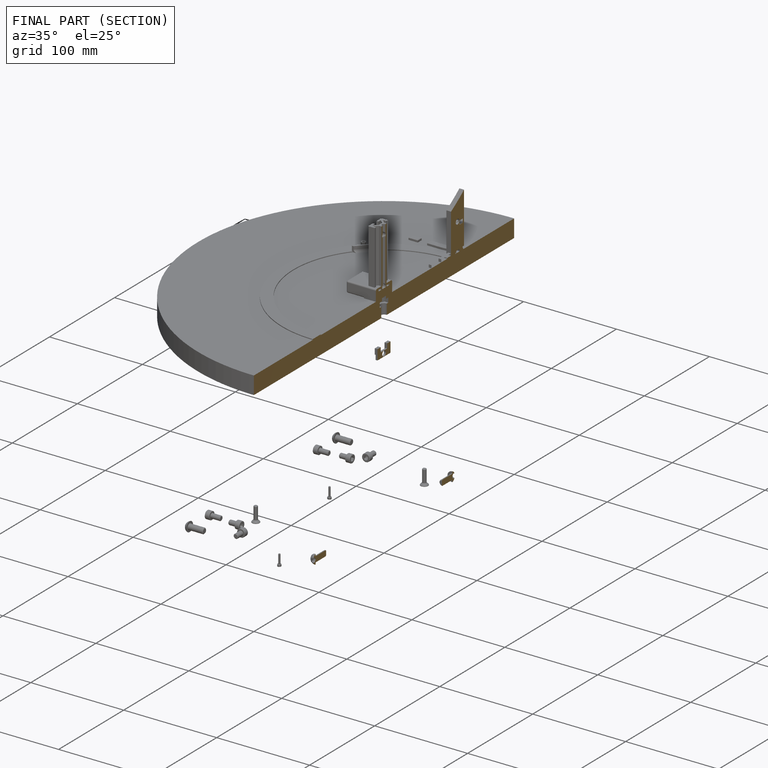
[diagram: finished part — half-section view (interior)]
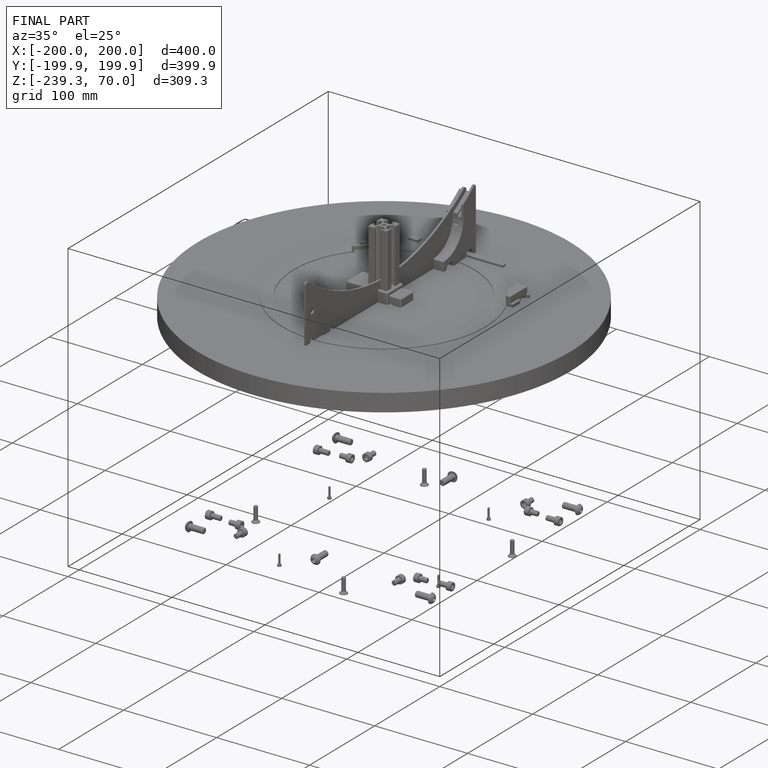
[diagram: finished part — iso view with bounding-box wireframe]
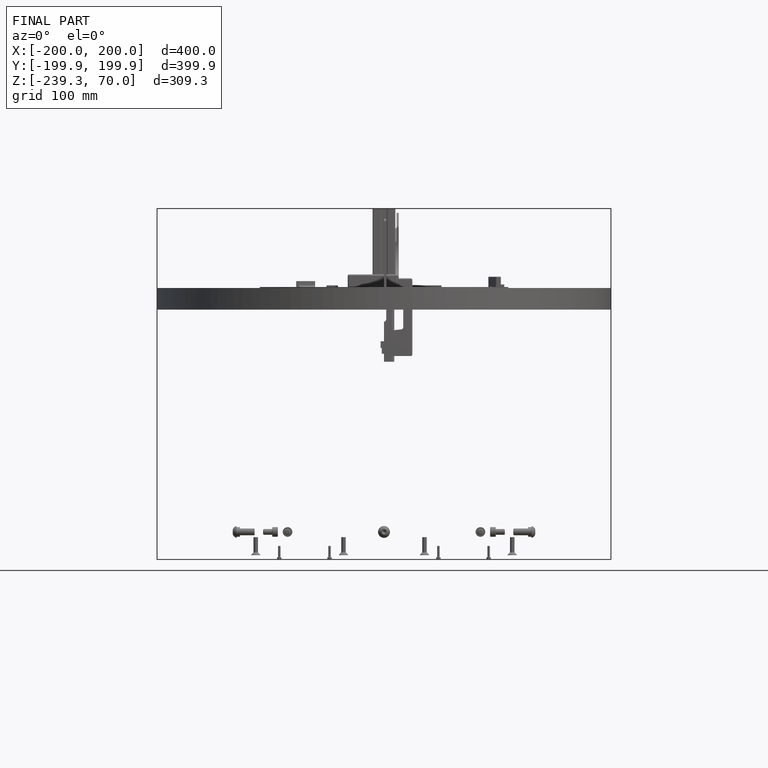
[diagram: finished part — front view with bounding-box wireframe]
